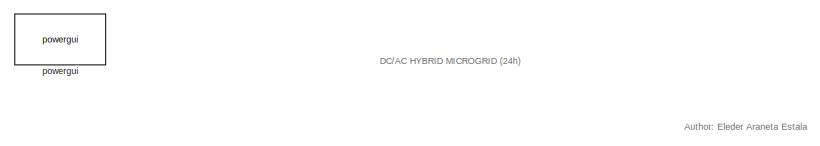
[diagram: root canvas - part 1/2, top left region]
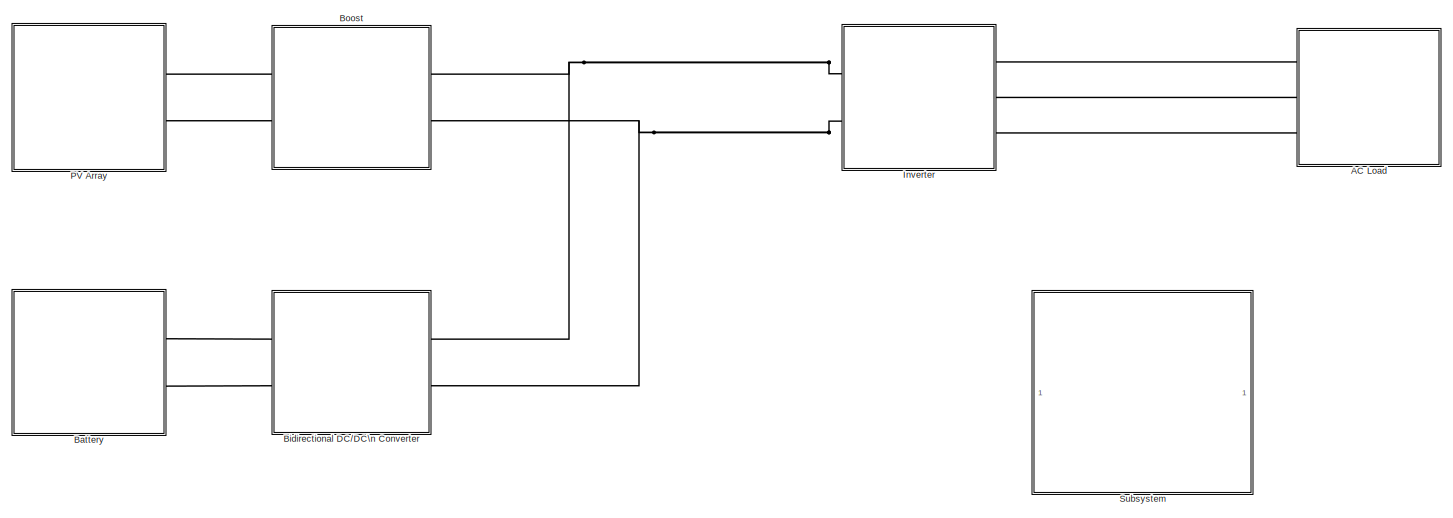
[diagram: root canvas - part 2/2, full width, bottom band]
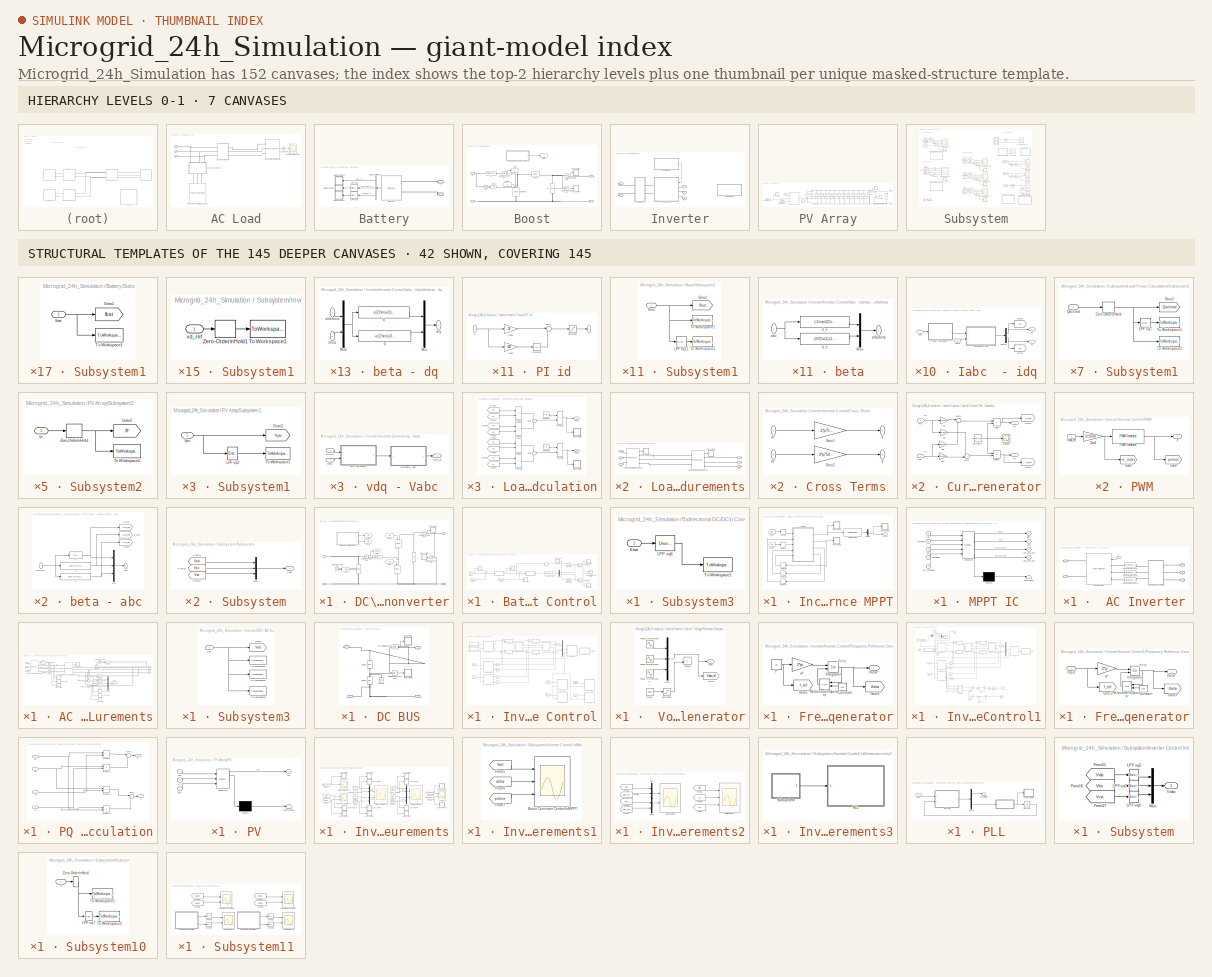
[diagram: thumbnail index - top-2 hierarchy levels (7 canvases) + 42 structural-template representatives of the remaining 145 canvases]
MODEL Microgrid_24h_Simulation
KIND model
BLOCK [SubSystem] AC Load
  Ports = [0, 0, 0, 0, 0, 3]
  RequestExecContextInheritance = off
  SID = 2165
BLOCK [Reference] AC Load/3-Phase\nDynamic Load  REF=powerlib/Elements/Three-Phase\nDynamic Load
  ActiveReactivePowers = [25000 -500]
  ExternalControl = off
  LoadFlowParameters = [4 50000000 0 0 25000000]
  MinimumVoltage = 0.7
  NominalVoltage = [ 400 50 ]
  NpNq = [1  1]
  Ports = [0, 1, 0, 0, 0, 3]
  PositiveSequence = [1 0]
  SID = 2166
  SourceBlock = powerlib/Elements/Three-Phase\nDynamic Load
  SourceProductBaseCode = PS
  SourceProductName = Simscape Electrical
  SourceType = Three-Phase Dynamic Load
  Tfilter = 1e-4
  TimeConstants = [0  0  0  0]
BLOCK [PMIOPort] AC Load/A
  SID = 2207
  Side = Left
BLOCK [PMIOPort] AC Load/B
  Port = 2
  SID = 2208
  Side = Left
BLOCK [BusSelector] AC Load/Bus\nSelector1
  OutputAsBus = on
  OutputSignals = Active power P (W),Reactive power Q (var)
  Ports = [1, 1]
  SID = 2167
BLOCK [PMIOPort] AC Load/C
  Port = 3
  SID = 2209
  Side = Left
BLOCK [SubSystem] AC Load/Load Measurements
  Ports = [0, 0, 0, 0, 0, 3, 3]
  RequestExecContextInheritance = off
  SID = 2168
BLOCK [PMIOPort] AC Load/Load Measurements/A
  SID = 2173
  Side = Left
BLOCK [PMIOPort] AC Load/Load Measurements/A 
  Port = 2
  SID = 2174
  Side = Right
BLOCK [PMIOPort] AC Load/Load Measurements/B
  Port = 3
  SID = 2175
  Side = Left
BLOCK [PMIOPort] AC Load/Load Measurements/B 
  Port = 4
  SID = 2176
  Side = Right
BLOCK [PMIOPort] AC Load/Load Measurements/C
  Port = 5
  SID = 2177
  Side = Left
BLOCK [PMIOPort] AC Load/Load Measurements/C 
  Port = 6
  SID = 2178
  Side = Right
BLOCK [SubSystem] AC Load/Load Measurements/Subsystem1
  Ports = [1]
  RequestExecContextInheritance = off
  SID = 2364
BLOCK [Goto] AC Load/Load Measurements/Subsystem1/Goto2
  GotoTag = Vabc2
  SID = 2366
  TagVisibility = global
BLOCK [ToWorkspace] AC Load/Load Measurements/Subsystem1/To Workspace1
  MaxDataPoints = inf
  Ports = [1]
  SID = 2367
  SampleTime = -1
  VariableName = Vabc2
BLOCK [Inport] AC Load/Load Measurements/Subsystem1/Vabc
  IconDisplay = Port number
  SID = 2365
BLOCK [SubSystem] AC Load/Load Measurements/Subsystem2
  Ports = [1]
  RequestExecContextInheritance = off
  SID = 2368
BLOCK [Goto] AC Load/Load Measurements/Subsystem2/Goto2
  GotoTag = Iabc2
  SID = 2370
  TagVisibility = global
BLOCK [Inport] AC Load/Load Measurements/Subsystem2/Iabc
  IconDisplay = Port number
  SID = 2369
BLOCK [ToWorkspace] AC Load/Load Measurements/Subsystem2/To Workspace1
  MaxDataPoints = inf
  Ports = [1]
  SID = 2371
  SampleTime = -1
  VariableName = Iabc2
BLOCK [Reference] AC Load/Load Measurements/Three-Phase \nI Measurement  REF=powerlib/Measurements/Three-Phase\nV-I Measurement
  CurrentMeasurement = yes
  Ipu = off
  LabelI = Iabc
  LabelV = Vabc
  OutputType = Complex
  PSBequivalent = 0
  Pbase = 100e6
  PhasorSimulation = off
  Ports = [0, 1, 0, 0, 0, 3, 3]
  SID = 2172
  SetLabelI = off
  SetLabelV = off
  SourceBlock = powerlib/Measurements/Three-Phase\nV-I Measurement
  SourceProductBaseCode = PS
  SourceProductName = Simscape Electrical
  SourceType = Three-Phase VI Measurement
  Vbase = 500e3
  VoltageMeasurement = no
  Vpu = off
  VpuLL = off
BLOCK [Reference] AC Load/Load Measurements/Three-Phase\nV Measurement  REF=powerlib/Measurements/Three-Phase\nV-I Measurement
  CurrentMeasurement = no
  Ipu = off
  LabelI = Iabc
  LabelV = Vabc
  OutputType = Complex
  PSBequivalent = 0
  Pbase = 100e6
  PhasorSimulation = off
  Ports = [0, 1, 0, 0, 0, 3, 3]
  SID = 2171
  SetLabelI = off
  SetLabelV = off
  SourceBlock = powerlib/Measurements/Three-Phase\nV-I Measurement
  SourceProductBaseCode = PS
  SourceProductName = Simscape Electrical
  SourceType = Three-Phase VI Measurement
  Vbase = 500e3
  VoltageMeasurement = phase-to-ground
  Vpu = off
  VpuLL = off
BLOCK [SubSystem] AC Load/Load Measurements1
  Ports = [0, 0, 0, 0, 0, 3, 3]
  RequestExecContextInheritance = off
  SID = 2179
BLOCK [PMIOPort] AC Load/Load Measurements1/A 
  Port = 2
  SID = 2185
  Side = Right
BLOCK [PMIOPort] AC Load/Load Measurements1/B
  Port = 3
  SID = 2186
  Side = Left
BLOCK [PMIOPort] AC Load/Load Measurements1/B 
  Port = 4
  SID = 2187
  Side = Right
BLOCK [PMIOPort] AC Load/Load Measurements1/C
  Port = 5
  SID = 2188
  Side = Left
BLOCK [PMIOPort] AC Load/Load Measurements1/C 
  Port = 6
  SID = 2189
  Side = Right
BLOCK [SubSystem] AC Load/Load Measurements1/Subsystem1
  Ports = [1]
  RequestExecContextInheritance = off
  SID = 2356
BLOCK [Goto] AC Load/Load Measurements1/Subsystem1/Goto2
  GotoTag = Vabc3
  SID = 2358
  TagVisibility = global
BLOCK [ToWorkspace] AC Load/Load Measurements1/Subsystem1/To Workspace1
  MaxDataPoints = inf
  Ports = [1]
  SID = 2359
  SampleTime = -1
  VariableName = Vabc3
BLOCK [Inport] AC Load/Load Measurements1/Subsystem1/Vabc
  IconDisplay = Port number
  SID = 2357
BLOCK [SubSystem] AC Load/Load Measurements1/Subsystem2
  Ports = [1]
  RequestExecContextInheritance = off
  SID = 2360
BLOCK [Goto] AC Load/Load Measurements1/Subsystem2/Goto2
  GotoTag = Iabc3
  SID = 2362
  TagVisibility = global
BLOCK [Inport] AC Load/Load Measurements1/Subsystem2/Iabc3
  IconDisplay = Port number
  SID = 2361
BLOCK [ToWorkspace] AC Load/Load Measurements1/Subsystem2/To Workspace1
  MaxDataPoints = inf
  Ports = [1]
  SID = 2363
  SampleTime = -1
  VariableName = Iabc3
BLOCK [Reference] AC Load/Load Measurements1/Three-Phase \nI Measurement  REF=powerlib/Measurements/Three-Phase\nV-I Measurement
  CurrentMeasurement = yes
  Ipu = off
  LabelI = Iabc
  LabelV = Vabc
  OutputType = Complex
  PSBequivalent = 0
  Pbase = 100e6
  PhasorSimulation = off
  Ports = [0, 1, 0, 0, 0, 3, 3]
  SID = 2183
  SetLabelI = off
  SetLabelV = off
  SourceBlock = powerlib/Measurements/Three-Phase\nV-I Measurement
  SourceProductBaseCode = PS
  SourceProductName = Simscape Electrical
  SourceType = Three-Phase VI Measurement
  Vbase = 500e3
  VoltageMeasurement = no
  Vpu = off
  VpuLL = off
BLOCK [Reference] AC Load/Load Measurements1/Three-Phase\nV Measurement  REF=powerlib/Measurements/Three-Phase\nV-I Measurement
  CurrentMeasurement = no
  Ipu = off
  LabelI = Iabc
  LabelV = Vabc
  OutputType = Complex
  PSBequivalent = 0
  Pbase = 100e6
  PhasorSimulation = off
  Ports = [0, 1, 0, 0, 0, 3, 3]
  SID = 2182
  SetLabelI = off
  SetLabelV = off
  SourceBlock = powerlib/Measurements/Three-Phase\nV-I Measurement
  SourceProductBaseCode = PS
  SourceProductName = Simscape Electrical
  SourceType = Three-Phase VI Measurement
  Vbase = 500e3
  VoltageMeasurement = phase-to-ground
  Vpu = off
  VpuLL = off
BLOCK [PMIOPort] AC Load/Load Measurements1/a
  SID = 2184
  Side = Left
BLOCK [Scope] AC Load/Load Measurements2
  Floating = off
  NumInputPorts = 1
  Ports = [1]
  SID = 2190
  ScopeSpecificationString = C++SS(StrPVP('Location','[534, 98, 1318, 894]'),StrPVP('Open','off'),StrPVP('ZoomMode','xonly'),MxPVP('AxesTitles',53,'struct(''axes1'',''Phase to Ground Load Voltages, Vabc (V)'')'),MxPVP('ScopeGraphics',56,'struct(''FigureColor'',''[0.5 0.5 0.5]'',''AxesColor'',''[0 0 0]'',''AxesTickColor'',''[1 1 1]'',''LineColors'',''[1 1 0;1 0 1;0 1 1;1 0 0;0 1 0;0 0 1]'',''LineStyles'',''-|-|-|-|-|-'',''Line...<+389ch>
BLOCK [Reference] AC Load/Three-Phase\nParallel RLC Load1  REF=powerlib/Elements/Three-Phase\nParallel RLC Load
  ActivePower = 700e3
  AttributesFormatString = \\n
  CapacitivePower = 0
  Configuration = Y (grounded)
  InductivePower = 0
  LConnTagsString = A|B|C
  LoadType = constant Z
  Measurements = Branch voltages and currents
  NominalFrequency = 50
  NominalVoltage = 400
  Pabc = [10e3 9e3 11e3]
  Pabcp = [10e3 9e3 11e3]
  Ports = [0, 0, 0, 0, 0, 3]
  QCabc = [100 90 110]
  QCabcp = [100 90 110]
  QLabc = [100 90 110]
  QLabcp = [100 90 110]
  SID = 2206
  SourceBlock = powerlib/Elements/Three-Phase\nParallel RLC Load
  SourceProductBaseCode = PS
  SourceProductName = Simscape Electrical
  SourceType = Three-Phase Parallel RLC Load
  UnbalancedPower = off
  Vabc = [1e3 1e3 1e3]
  Vabcp = [1e3 1e3 1e3]
BLOCK [SubSystem] Battery
  Ports = [0, 0, 0, 0, 0, 2]
  RequestExecContextInheritance = off
  SID = 421
BLOCK [PMIOPort] Battery/+
  SID = 427
  Side = Left
BLOCK [PMIOPort] Battery/-
  Port = 2
  SID = 428
  Side = Left
BLOCK [Reference] Battery/Battery  REF=electricdrivelib/Extra Sources/Battery
  BatType = Lead-Acid
  Batt_Tr = 1
  Char_age = [2.3478, 3]
  Dis_age = [2.3478, 10]
  Dis_rate = 100
  Dp = 0
  FullV = 272.2039
  FullV2 = 7.1
  MaxQ = 520.8333
  MaxQ2 = 4.8
  MinV = 187.5
  N1 = 1500
  N2 = 10500
  N3 = 1000
  N4 = 1400
  N5 = 950
  Neq0 = 0
  NomQ = 500
  NomT = 20
  NomV = 250
  Normal_OP = 155.1389
  Normal_OP2 = 5.655
  Ports = [0, 1, 0, 0, 0, 2]
  PresetModel = on
  Qeol = 5.4*0.9
  R = 0.005
  Rca = 0.6
  Reol = 0.013333*1.2
  SID = 422
  SOC = 30
  ShowAgeParam = off
  ShowTempParam = off
  SourceBlock = electricdrivelib/Extra Sources/Battery
  SourceProductBaseCode = PS
  SourceProductName = Simscape Electrical
  SourceType = Battery
  T2 = -30
  Ta1 = 25
  Ta2 = 45
  Tci = 20
  ThermalPreset = no
  Tsim = 1e6
  Units = Time
  current = [20 50 100]
  expZone = [254.523      1.666667]
  expZone2 = [6.58           1]
  ti = 2000
BLOCK [BusSelector] Battery/Bus\nSelector
  OutputAsBus = off
  OutputSignals = SOC (%),Current (A),Voltage (V)
  Ports = [1, 3]
  SID = 423
BLOCK [Reference] Battery/LPF vq1  REF=powerlib_extras/Discrete \nControl Blocks/Discrete\n1st-Order\nFilter
  FilterType = Lowpass
  Initialize = off
  PlotResponse = off
  Ports = [1, 1]
  SID = 832
  SourceBlock = powerlib_extras/Discrete \nControl Blocks/Discrete\n1st-Order\nFilter
  SourceProductBaseCode = PS
  SourceProductName = Simscape Electrical
  SourceType = Discrete 1st-Order Filter
  Tc = 10e-3
  Ts = 5e-6
  Vac_Init = [0.8 -25 60]
  Vdc_Init = 0
  param1 = [1 100 0.1]
BLOCK [Reference] Battery/LPF vq2  REF=powerlib_extras/Discrete \nControl Blocks/Discrete\n1st-Order\nFilter
  FilterType = Lowpass
  Initialize = off
  PlotResponse = off
  Ports = [1, 1]
  SID = 1541
  SourceBlock = powerlib_extras/Discrete \nControl Blocks/Discrete\n1st-Order\nFilter
  SourceProductBaseCode = PS
  SourceProductName = Simscape Electrical
  SourceType = Discrete 1st-Order Filter
  Tc = 10e-3
  Ts = 5e-6
  Vac_Init = [0.8 -25 60]
  Vdc_Init = 0
  param1 = [1 100 0.1]
BLOCK [SubSystem] Battery/Subsystem1
  Ports = [1]
  RequestExecContextInheritance = off
  SID = 714
BLOCK [Goto] Battery/Subsystem1/Goto1
  GotoTag = Ibat
  SID = 1151
  TagVisibility = global
BLOCK [Inport] Battery/Subsystem1/Ibat
  IconDisplay = Port number
  SID = 715
BLOCK [ToWorkspace] Battery/Subsystem1/To Workspace1
  MaxDataPoints = inf
  Ports = [1]
  SID = 717
  SampleTime = -1
  VariableName = Ibat
BLOCK [SubSystem] Battery/Subsystem2
  Ports = [1]
  RequestExecContextInheritance = off
  SID = 718
BLOCK [Goto] Battery/Subsystem2/Goto3
  GotoTag = Vbat
  SID = 1153
  TagVisibility = global
BLOCK [ToWorkspace] Battery/Subsystem2/To Workspace1
  MaxDataPoints = inf
  Ports = [1]
  SID = 721
  SampleTime = -1
  VariableName = Vbat
BLOCK [Inport] Battery/Subsystem2/Vbat
  IconDisplay = Port number
  SID = 719
BLOCK [SubSystem] Battery/Subsystem5
  Ports = [1]
  RequestExecContextInheritance = off
  SID = 710
BLOCK [Goto] Battery/Subsystem5/Goto2
  GotoTag = SOC
  SID = 1152
  TagVisibility = global
BLOCK [Inport] Battery/Subsystem5/SOC
  IconDisplay = Port number
  SID = 711
BLOCK [ToWorkspace] Battery/Subsystem5/To Workspace1
  MaxDataPoints = inf
  Ports = [1]
  SID = 713
  SampleTime = -1
  VariableName = SOC
BLOCK [SubSystem] Bidirectional DC//DC\n Converter
  Ports = [0, 0, 0, 0, 0, 2, 2]
  RequestExecContextInheritance = off
  SID = 429
BLOCK [PMIOPort] Bidirectional DC//DC\n Converter/+
  Port = 3
  SID = 451
  Side = Right
BLOCK [PMIOPort] Bidirectional DC//DC\n Converter/+ 
  SID = 449
  Side = Left
BLOCK [PMIOPort] Bidirectional DC//DC\n Converter/-
  Port = 4
  SID = 452
  Side = Right
BLOCK [PMIOPort] Bidirectional DC//DC\n Converter/-  
  Port = 2
  SID = 450
  Side = Left
BLOCK [SubSystem] Bidirectional DC//DC\n Converter/Battery Converter\n Control
  Ports = [0, 2]
  RequestExecContextInheritance = off
  SID = 629
BLOCK [Reference] Bidirectional DC//DC\n Converter/Battery Converter\n Control/Compare\nTo Constant  REF=simulink/Logic and Bit\nOperations/Compare\nTo Constant
  OutDataTypeStr = uint8
  Ports = [1, 1]
  SID = 630
  SourceBlock = simulink/Logic and Bit\nOperations/Compare\nTo Constant
  SourceProductBaseCode = SL
  SourceProductName = Simulink
  SourceType = Compare To Constant
  ZeroCross = on
  const = 1
  relop = ==
BLOCK [Reference] Bidirectional DC//DC\n Converter/Battery Converter\n Control/Compare\nTo Constant1  REF=simulink/Logic and Bit\nOperations/Compare\nTo Constant
  OutDataTypeStr = uint8
  Ports = [1, 1]
  SID = 631
  SourceBlock = simulink/Logic and Bit\nOperations/Compare\nTo Constant
  SourceProductBaseCode = SL
  SourceProductName = Simulink
  SourceType = Compare To Constant
  ZeroCross = on
  const = -1
  relop = ==
BLOCK [Scope] Bidirectional DC//DC\n Converter/Battery Converter\n Control/DC Bus Measurements4
  Floating = off
  NumInputPorts = 2
  Ports = [2]
  SID = 636
  ScopeSpecificationString = C++SS(StrPVP('Location','[6, 48, 1372, 727]'),StrPVP('Open','off'),StrPVP('ZoomMode','xonly'),MxPVP('AxesTitles',53,'struct(''axes1'',''Phase to Ground Load Voltages, Vabc (V)'',''axes2'',''Load Currents, Iabc (A)'')'),MxPVP('ScopeGraphics',56,'struct(''FigureColor'',''[0.5 0.5 0.5]'',''AxesColor'',''[0 0 0]'',''AxesTickColor'',''[1 1 1]'',''LineColors'',''[1 1 0;1 0 1;0 1 1;1 0 0;0 1 0;0 0 1]'','...<+436ch>
BLOCK [Demux] Bidirectional DC//DC\n Converter/Battery Converter\n Control/Demux
  DisplayOption = bar
  Outputs = 2
  Ports = [1, 2]
  SID = 639
BLOCK [From] Bidirectional DC//DC\n Converter/Battery Converter\n Control/From1
  GotoTag = Vdc
  SID = 640
  TagVisibility = global
BLOCK [From] Bidirectional DC//DC\n Converter/Battery Converter\n Control/From2
  GotoTag = ILbat
  SID = 641
  TagVisibility = global
BLOCK [SubSystem] Bidirectional DC//DC\n Converter/Battery Converter\n Control/PI 1
  Ports = [1, 1]
  RequestExecContextInheritance = off
  SID = 644
BLOCK [Outport] Bidirectional DC//DC\n Converter/Battery Converter\n Control/PI 1/ 
  IconDisplay = Port number
  SID = 652
BLOCK [Gain] Bidirectional DC//DC\n Converter/Battery Converter\n Control/PI 1/Gain1
  Gain = 0.65
  OutDataTypeStr = Inherit: Inherit via internal rule
  ParamDataTypeStr = Inherit: Inherit via internal rule
  SID = 646
  SaturateOnIntegerOverflow = off
BLOCK [Gain] Bidirectional DC//DC\n Converter/Battery Converter\n Control/PI 1/Gain2
  Gain = 150
  OutDataTypeStr = Inherit: Inherit via internal rule
  ParamDataTypeStr = Inherit: Inherit via internal rule
  SID = 647
  SaturateOnIntegerOverflow = off
BLOCK [Integrator] Bidirectional DC//DC\n Converter/Battery Converter\n Control/PI 1/Integrator
  Ports = [1, 1]
  SID = 649
BLOCK [Saturate] Bidirectional DC//DC\n Converter/Battery Converter\n Control/PI 1/Saturation
  InputPortMap = u0
  LowerLimit = -100
  Ports = [1, 1]
  SID = 650
  UpperLimit = 500
BLOCK [Sum] Bidirectional DC//DC\n Converter/Battery Converter\n Control/PI 1/Sum1
  IconShape = round
  InputSameDT = off
  Inputs = |++
  OutDataTypeStr = Inherit: Inherit via internal rule
  Ports = [2, 1]
  SID = 651
  SaturateOnIntegerOverflow = off
BLOCK [Inport] Bidirectional DC//DC\n Converter/Battery Converter\n Control/PI 1/e
  IconDisplay = Port number
  SID = 645
BLOCK [SubSystem] Bidirectional DC//DC\n Converter/Battery Converter\n Control/PI 2
  Ports = [1, 1]
  RequestExecContextInheritance = off
  SID = 653
BLOCK [Outport] Bidirectional DC//DC\n Converter/Battery Converter\n Control/PI 2/ 
  IconDisplay = Port number
  SID = 660
BLOCK [Gain] Bidirectional DC//DC\n Converter/Battery Converter\n Control/PI 2/Gain1
  OutDataTypeStr = Inherit: Inherit via internal rule
  ParamDataTypeStr = Inherit: Inherit via internal rule
  SID = 655
  SaturateOnIntegerOverflow = off
BLOCK [Gain] Bidirectional DC//DC\n Converter/Battery Converter\n Control/PI 2/Gain2
  OutDataTypeStr = Inherit: Inherit via internal rule
  ParamDataTypeStr = Inherit: Inherit via internal rule
  SID = 656
  SaturateOnIntegerOverflow = off
BLOCK [Integrator] Bidirectional DC//DC\n Converter/Battery Converter\n Control/PI 2/Integrator
  Ports = [1, 1]
  SID = 657
BLOCK [Saturate] Bidirectional DC//DC\n Converter/Battery Converter\n Control/PI 2/Saturation
  InputPortMap = u0
  LowerLimit = -1
  Ports = [1, 1]
  SID = 658
  UpperLimit = 1
BLOCK [Sum] Bidirectional DC//DC\n Converter/Battery Converter\n Control/PI 2/Sum1
  IconShape = round
  InputSameDT = off
  Inputs = |++
  OutDataTypeStr = Inherit: Inherit via internal rule
  Ports = [2, 1]
  SID = 659
  SaturateOnIntegerOverflow = off
BLOCK [Inport] Bidirectional DC//DC\n Converter/Battery Converter\n Control/PI 2/e
  IconDisplay = Port number
  SID = 654
BLOCK [Reference] Bidirectional DC//DC\n Converter/Battery Converter\n Control/PWM Generator2  REF=powerlib_extras/Control \nBlocks/PWM Generator
  Fc = 10000
  Freq = 0
  GeneratorMode = 1-arm  bridge (2 pulses)
  Internal = off
  Phase = 0
  Ports = [1, 1]
  SID = 661
  SourceBlock = powerlib_extras/Control \nBlocks/PWM Generator
  SourceProductBaseCode = PS
  SourceProductName = Simscape Electrical
  SourceType = PWM Generator
  mIndex = 0.2
BLOCK [Product] Bidirectional DC//DC\n Converter/Battery Converter\n Control/Product
  InputSameDT = off
  OutDataTypeStr = Inherit: Inherit via internal rule
  Ports = [2, 1]
  SID = 662
  SaturateOnIntegerOverflow = off
BLOCK [Product] Bidirectional DC//DC\n Converter/Battery Converter\n Control/Product1
  InputSameDT = off
  OutDataTypeStr = Inherit: Inherit via internal rule
  Ports = [2, 1]
  SID = 663
  SaturateOnIntegerOverflow = off
BLOCK [Outport] Bidirectional DC//DC\n Converter/Battery Converter\n Control/S1
  IconDisplay = Port number
  SID = 670
BLOCK [Outport] Bidirectional DC//DC\n Converter/Battery Converter\n Control/S2
  IconDisplay = Port number
  Port = 2
  SID = 671
BLOCK [Signum] Bidirectional DC//DC\n Converter/Battery Converter\n Control/Sign
  SID = 664
  SampleTime = 5e-6
BLOCK [Step] Bidirectional DC//DC\n Converter/Battery Converter\n Control/Step1
  After = 1000
  SID = 665
  SampleTime = 0
  Time = 0
BLOCK [SubSystem] Bidirectional DC//DC\n Converter/Battery Converter\n Control/Subsystem1
  Ports = [1]
  RequestExecContextInheritance = off
  SID = 784
BLOCK [Goto] Bidirectional DC//DC\n Converter/Battery Converter\n Control/Subsystem1/Goto2
  GotoTag = Vdc_ref
  SID = 786
  TagVisibility = global
BLOCK [Reference] Bidirectional DC//DC\n Converter/Battery Converter\n Control/Subsystem1/LPF vq6  REF=powerlib_extras/Discrete \nControl Blocks/Discrete\n1st-Order\nFilter
  FilterType = Lowpass
  Initialize = off
  PlotResponse = off
  Ports = [1, 1]
  SID = 787
  SourceBlock = powerlib_extras/Discrete \nControl Blocks/Discrete\n1st-Order\nFilter
  SourceProductBaseCode = PS
  SourceProductName = Simscape Electrical
  SourceType = Discrete 1st-Order Filter
  Tc = 10e-3
  Ts = 5e-6
  Vac_Init = [0.8 -25 60]
  Vdc_Init = 0
  param1 = [1 100 0.1]
BLOCK [ToWorkspace] Bidirectional DC//DC\n Converter/Battery Converter\n Control/Subsystem1/To Workspace1
  MaxDataPoints = inf
  Ports = [1]
  SID = 788
  SampleTime = -1
  VariableName = Vdc_ref
BLOCK [Inport] Bidirectional DC//DC\n Converter/Battery Converter\n Control/Subsystem1/Vdc_ref
  IconDisplay = Port number
  SID = 785
BLOCK [SubSystem] Bidirectional DC//DC\n Converter/Battery Converter\n Control/Subsystem2
  Ports = [1]
  RequestExecContextInheritance = off
  SID = 789
BLOCK [Goto] Bidirectional DC//DC\n Converter/Battery Converter\n Control/Subsystem2/Goto2
  GotoTag = Ibat_ref
  SID = 791
  TagVisibility = global
BLOCK [Inport] Bidirectional DC//DC\n Converter/Battery Converter\n Control/Subsystem2/Ibat_ref
  IconDisplay = Port number
  SID = 790
BLOCK [Reference] Bidirectional DC//DC\n Converter/Battery Converter\n Control/Subsystem2/LPF vq6  REF=powerlib_extras/Discrete \nControl Blocks/Discrete\n1st-Order\nFilter
  FilterType = Lowpass
  Initialize = off
  PlotResponse = off
  Ports = [1, 1]
  SID = 792
  SourceBlock = powerlib_extras/Discrete \nControl Blocks/Discrete\n1st-Order\nFilter
  SourceProductBaseCode = PS
  SourceProductName = Simscape Electrical
  SourceType = Discrete 1st-Order Filter
  Tc = 10e-3
  Ts = 5e-6
  Vac_Init = [0.8 -25 60]
  Vdc_Init = 0
  param1 = [1 100 0.1]
BLOCK [ToWorkspace] Bidirectional DC//DC\n Converter/Battery Converter\n Control/Subsystem2/To Workspace1
  MaxDataPoints = inf
  Ports = [1]
  SID = 793
  SampleTime = -1
  VariableName = Ibat_ref
BLOCK [SubSystem] Bidirectional DC//DC\n Converter/Battery Converter\n Control/Subsystem3
  Ports = [1]
  RequestExecContextInheritance = off
  SID = 794
BLOCK [Inport] Bidirectional DC//DC\n Converter/Battery Converter\n Control/Subsystem3/ILbat
  IconDisplay = Port number
  SID = 795
BLOCK [Reference] Bidirectional DC//DC\n Converter/Battery Converter\n Control/Subsystem3/LPF vq6  REF=powerlib_extras/Discrete \nControl Blocks/Discrete\n1st-Order\nFilter
  FilterType = Lowpass
  Initialize = off
  PlotResponse = off
  Ports = [1, 1]
  SID = 797
  SourceBlock = powerlib_extras/Discrete \nControl Blocks/Discrete\n1st-Order\nFilter
  SourceProductBaseCode = PS
  SourceProductName = Simscape Electrical
  SourceType = Discrete 1st-Order Filter
  Tc = 10e-3
  Ts = 5e-6
  Vac_Init = [0.8 -25 60]
  Vdc_Init = 0
  param1 = [1 100 0.1]
BLOCK [ToWorkspace] Bidirectional DC//DC\n Converter/Battery Converter\n Control/Subsystem3/To Workspace1
  MaxDataPoints = inf
  Ports = [1]
  SID = 798
  SampleTime = -1
  VariableName = ILbat
BLOCK [SubSystem] Bidirectional DC//DC\n Converter/Battery Converter\n Control/Subsystem4
  Ports = [1]
  RequestExecContextInheritance = off
  SID = 1736
BLOCK [Inport] Bidirectional DC//DC\n Converter/Battery Converter\n Control/Subsystem4/S1
  IconDisplay = Port number
  SID = 1737
BLOCK [ToWorkspace] Bidirectional DC//DC\n Converter/Battery Converter\n Control/Subsystem4/To Workspace1
  MaxDataPoints = inf
  Ports = [1]
  SID = 1740
  SampleTime = -1
  VariableName = S1
BLOCK [ZeroOrderHold] Bidirectional DC//DC\n Converter/Battery Converter\n Control/Subsystem4/Zero-Order\nHold
  SID = 1771
  SampleTime = 5e-6
BLOCK [SubSystem] Bidirectional DC//DC\n Converter/Battery Converter\n Control/Subsystem5
  Ports = [1]
  RequestExecContextInheritance = off
  SID = 1741
BLOCK [Inport] Bidirectional DC//DC\n Converter/Battery Converter\n Control/Subsystem5/S2
  IconDisplay = Port number
  SID = 1742
BLOCK [ToWorkspace] Bidirectional DC//DC\n Converter/Battery Converter\n Control/Subsystem5/To Workspace1
  MaxDataPoints = inf
  Ports = [1]
  SID = 1744
  SampleTime = -1
  VariableName = S2
BLOCK [ZeroOrderHold] Bidirectional DC//DC\n Converter/Battery Converter\n Control/Subsystem5/Zero-Order\nHold
  SID = 1770
  SampleTime = 5e-6
BLOCK [SubSystem] Bidirectional DC//DC\n Converter/Battery Converter\n Control/Subsystem6
  Ports = [1]
  RequestExecContextInheritance = off
  SID = 1745
BLOCK [Goto] Bidirectional DC//DC\n Converter/Battery Converter\n Control/Subsystem6/Goto2
  GotoTag = Sign
  SID = 1747
  TagVisibility = global
BLOCK [Inport] Bidirectional DC//DC\n Converter/Battery Converter\n Control/Subsystem6/Sign
  IconDisplay = Port number
  SID = 1746
BLOCK [ToWorkspace] Bidirectional DC//DC\n Converter/Battery Converter\n Control/Subsystem6/To Workspace1
  MaxDataPoints = inf
  Ports = [1]
  SID = 1748
  SampleTime = -1
  VariableName = Sign
BLOCK [ZeroOrderHold] Bidirectional DC//DC\n Converter/Battery Converter\n Control/Subsystem6/Zero-Order\nHold
  SID = 1772
  SampleTime = 5e-6
BLOCK [Sum] Bidirectional DC//DC\n Converter/Battery Converter\n Control/Sum1
  IconShape = round
  InputSameDT = off
  Inputs = |+-
  OutDataTypeStr = Inherit: Inherit via internal rule
  Ports = [2, 1]
  SID = 668
  SaturateOnIntegerOverflow = off
BLOCK [Sum] Bidirectional DC//DC\n Converter/Battery Converter\n Control/Sum3
  IconShape = round
  InputSameDT = off
  Inputs = |+-
  OutDataTypeStr = Inherit: Inherit via internal rule
  Ports = [2, 1]
  SID = 669
  SaturateOnIntegerOverflow = off
BLOCK [Reference] Bidirectional DC//DC\n Converter/C  REF=powerlib/Elements/Series RLC Branch
  BranchType = C
  Capacitance = 1200e-6
  Inductance = 1e-3
  InitialCurrent = 0
  InitialVoltage = 400
  LConnTagsString = __new0
  Measurements = None
  Ports = [0, 0, 0, 0, 0, 1, 1]
  RConnTagsString = __new0
  Resistance = 1
  SID = 432
  SetiL0 = off
  Setx0 = off
  SourceBlock = powerlib/Elements/Series RLC Branch
  SourceProductBaseCode = PS
  SourceProductName = Simscape Electrical
  SourceType = Series RLC Branch
BLOCK [Reference] Bidirectional DC//DC\n Converter/C   REF=powerlib/Elements/Series RLC Branch
  BranchType = C
  Capacitance = 1e-3
  Inductance = 1e-3
  InitialCurrent = 0
  InitialVoltage = 192
  LConnTagsString = __new0
  Measurements = None
  Ports = [0, 0, 0, 0, 0, 1, 1]
  RConnTagsString = __new0
  Resistance = 1
  SID = 433
  SetiL0 = off
  Setx0 = on
  SourceBlock = powerlib/Elements/Series RLC Branch
  SourceProductBaseCode = PS
  SourceProductName = Simscape Electrical
  SourceType = Series RLC Branch
BLOCK [Reference] Bidirectional DC//DC\n Converter/Current Measurement1  REF=powerlib/Measurements/Current Measurement
  OutputType = Complex
  PSBequivalent = 0
  PhasorSimulation = off
  Ports = [0, 1, 0, 0, 0, 1, 1]
  SID = 677
  SourceBlock = powerlib/Measurements/Current Measurement
  SourceProductBaseCode = PS
  SourceProductName = Simscape Electrical
  SourceType = Current Measurement
BLOCK [Reference] Bidirectional DC//DC\n Converter/Current Measurement2  REF=powerlib/Measurements/Current Measurement
  OutputType = Complex
  PSBequivalent = 0
  PhasorSimulation = off
  Ports = [0, 1, 0, 0, 0, 1, 1]
  SID = 435
  SourceBlock = powerlib/Measurements/Current Measurement
  SourceProductBaseCode = PS
  SourceProductName = Simscape Electrical
  SourceType = Current Measurement
BLOCK [From] Bidirectional DC//DC\n Converter/From1
  GotoTag = S2
  SID = 676
  TagVisibility = global
BLOCK [From] Bidirectional DC//DC\n Converter/From19
  GotoTag = S1
  SID = 675
  TagVisibility = global
BLOCK [Goto] Bidirectional DC//DC\n Converter/Goto
  GotoTag = V_bat
  SID = 436
  TagVisibility = global
BLOCK [Goto] Bidirectional DC//DC\n Converter/Goto1
  GotoTag = S1
  SID = 672
  TagVisibility = global
BLOCK [Goto] Bidirectional DC//DC\n Converter/Goto2
  GotoTag = S2
  SID = 673
  TagVisibility = global
BLOCK [Goto] Bidirectional DC//DC\n Converter/Goto3
  GotoTag = ILbat
  SID = 439
  TagVisibility = global
BLOCK [Reference] Bidirectional DC//DC\n Converter/L  REF=powerlib/Elements/Series RLC Branch
  BranchType = L
  Capacitance = 1e-6
  Inductance = 0.1e-3
  InitialCurrent = 0
  InitialVoltage = 0
  LConnTagsString = __new0
  Measurements = None
  Ports = [0, 0, 0, 0, 0, 1, 1]
  RConnTagsString = __new0
  Resistance = 1
  SID = 442
  SetiL0 = on
  Setx0 = off
  SourceBlock = powerlib/Elements/Series RLC Branch
  SourceProductBaseCode = PS
  SourceProductName = Simscape Electrical
  SourceType = Series RLC Branch
BLOCK [Reference] Bidirectional DC//DC\n Converter/S1   REF=powerlib/Power\nElectronics/IGBT//Diode
  Cs = inf
  Measurements = off
  Ports = [1, 0, 0, 0, 0, 1, 1]
  Ron = 1e-3
  Rs = 1e5
  SID = 443
  SourceBlock = powerlib/Power\nElectronics/IGBT//Diode
  SourceProductBaseCode = PS
  SourceProductName = Simscape Electrical
  SourceType = IGBT/Diode
BLOCK [Reference] Bidirectional DC//DC\n Converter/S2   REF=powerlib/Power\nElectronics/IGBT//Diode
  Cs = inf
  Measurements = off
  Ports = [1, 0, 0, 0, 0, 1, 1]
  Ron = 1e-3
  Rs = 1e5
  SID = 444
  SourceBlock = powerlib/Power\nElectronics/IGBT//Diode
  SourceProductBaseCode = PS
  SourceProductName = Simscape Electrical
  SourceType = IGBT/Diode
BLOCK [SubSystem] Bidirectional DC//DC\n Converter/Subsystem1
  Ports = [1]
  RequestExecContextInheritance = off
  SID = 726
BLOCK [Goto] Bidirectional DC//DC\n Converter/Subsystem1/Goto2
  GotoTag = Idc
  SID = 728
  TagVisibility = global
BLOCK [Inport] Bidirectional DC//DC\n Converter/Subsystem1/Idc
  IconDisplay = Port number
  SID = 727
BLOCK [Reference] Bidirectional DC//DC\n Converter/Subsystem1/LPF vq11  REF=powerlib_extras/Discrete \nControl Blocks/Discrete\n1st-Order\nFilter
  FilterType = Lowpass
  Initialize = off
  PlotResponse = off
  Ports = [1, 1]
  SID = 1819
  SourceBlock = powerlib_extras/Discrete \nControl Blocks/Discrete\n1st-Order\nFilter
  SourceProductBaseCode = PS
  SourceProductName = Simscape Electrical
  SourceType = Discrete 1st-Order Filter
  Tc = 10e-3
  Ts = 5e-6
  Vac_Init = [0.8 -25 60]
  Vdc_Init = 0
  param1 = [1 100 0.1]
BLOCK [ToWorkspace] Bidirectional DC//DC\n Converter/Subsystem1/To Workspace1
  MaxDataPoints = inf
  Ports = [1]
  SID = 729
  SampleTime = -1
  VariableName = Idc
BLOCK [ToWorkspace] Bidirectional DC//DC\n Converter/Subsystem1/To Workspace2
  MaxDataPoints = inf
  Ports = [1]
  SID = 1818
  SampleTime = -1
  VariableName = Idc1
BLOCK [SubSystem] Bidirectional DC//DC\n Converter/Subsystem2
  Ports = [1]
  RequestExecContextInheritance = off
  SID = 730
BLOCK [Goto] Bidirectional DC//DC\n Converter/Subsystem2/Goto2
  GotoTag = Vdc
  SID = 732
  TagVisibility = global
BLOCK [Reference] Bidirectional DC//DC\n Converter/Subsystem2/LPF vq11  REF=powerlib_extras/Discrete \nControl Blocks/Discrete\n1st-Order\nFilter
  FilterType = Lowpass
  Initialize = off
  PlotResponse = off
  Ports = [1, 1]
  SID = 1821
  SourceBlock = powerlib_extras/Discrete \nControl Blocks/Discrete\n1st-Order\nFilter
  SourceProductBaseCode = PS
  SourceProductName = Simscape Electrical
  SourceType = Discrete 1st-Order Filter
  Tc = 10e-3
  Ts = 5e-6
  Vac_Init = [0.8 -25 60]
  Vdc_Init = 0
  param1 = [1 100 0.1]
BLOCK [ToWorkspace] Bidirectional DC//DC\n Converter/Subsystem2/To Workspace1
  MaxDataPoints = inf
  Ports = [1]
  SID = 733
  SampleTime = -1
  VariableName = Vdc
BLOCK [ToWorkspace] Bidirectional DC//DC\n Converter/Subsystem2/To Workspace2
  MaxDataPoints = inf
  Ports = [1]
  SID = 1820
  SampleTime = -1
  VariableName = Vdc1
BLOCK [Inport] Bidirectional DC//DC\n Converter/Subsystem2/Vdc
  IconDisplay = Port number
  SID = 731
BLOCK [Reference] Bidirectional DC//DC\n Converter/Voltage Measurement1  REF=powerlib/Measurements/Voltage Measurement
  OutputType = Complex
  PSBequivalent = 0
  PhasorSimulation = off
  Ports = [0, 1, 0, 0, 0, 2]
  SID = 445
  SourceBlock = powerlib/Measurements/Voltage Measurement
  SourceProductBaseCode = PS
  SourceProductName = Simscape Electrical
  SourceType = Voltage Measurement
BLOCK [Reference] Bidirectional DC//DC\n Converter/Voltage Measurement2  REF=powerlib/Measurements/Voltage Measurement
  OutputType = Complex
  PSBequivalent = 0
  PhasorSimulation = off
  Ports = [0, 1, 0, 0, 0, 2]
  SID = 680
  SourceBlock = powerlib/Measurements/Voltage Measurement
  SourceProductBaseCode = PS
  SourceProductName = Simscape Electrical
  SourceType = Voltage Measurement
BLOCK [SubSystem] Boost
  Ports = [0, 0, 0, 0, 0, 2, 2]
  RequestExecContextInheritance = off
  SID = 519
BLOCK [PMIOPort] Boost/+
  SID = 533
  Side = Left
BLOCK [PMIOPort] Boost/+ 
  Port = 3
  SID = 535
  Side = Right
BLOCK [PMIOPort] Boost/-
  Port = 2
  SID = 534
  Side = Left
BLOCK [PMIOPort] Boost/- 
  Port = 4
  SID = 536
  Side = Right
BLOCK [Reference] Boost/Cdc  REF=powerlib/Elements/Series RLC Branch
  BranchType = C
  Capacitance = 1200e-6
  Inductance = 1e-3
  InitialCurrent = 0
  InitialVoltage = 400
  LConnTagsString = __new0
  Measurements = None
  Ports = [0, 0, 0, 0, 0, 1, 1]
  RConnTagsString = __new0
  Resistance = 1
  SID = 520
  SetiL0 = off
  Setx0 = off
  SourceBlock = powerlib/Elements/Series RLC Branch
  SourceProductBaseCode = PS
  SourceProductName = Simscape Electrical
  SourceType = Series RLC Branch
BLOCK [Reference] Boost/Current Measurement  REF=powerlib/Measurements/Current Measurement
  OutputType = Complex
  PSBequivalent = 0
  PhasorSimulation = off
  Ports = [0, 1, 0, 0, 0, 1, 1]
  SID = 521
  SourceBlock = powerlib/Measurements/Current Measurement
  SourceProductBaseCode = PS
  SourceProductName = Simscape Electrical
  SourceType = Current Measurement
BLOCK [Reference] Boost/Current Measurement1  REF=powerlib/Measurements/Current Measurement
  OutputType = Complex
  PSBequivalent = 0
  PhasorSimulation = off
  Ports = [0, 1, 0, 0, 0, 1, 1]
  SID = 522
  SourceBlock = powerlib/Measurements/Current Measurement
  SourceProductBaseCode = PS
  SourceProductName = Simscape Electrical
  SourceType = Current Measurement
BLOCK [Reference] Boost/Diode  REF=powerlib/Power\nElectronics/Diode
  Cs = 250e-9
  IC = 0
  Lon = 0
  Measurements = on
  Ports = [0, 1, 0, 0, 0, 1, 1]
  Ron = 0.001
  Rs = 500
  SID = 523
  SourceBlock = powerlib/Power\nElectronics/Diode
  SourceProductBaseCode = PS
  SourceProductName = Simscape Electrical
  SourceType = Diode
  UseSnubber = off
  Vf = 0.8
BLOCK [From] Boost/From17
  GotoTag = S
  SID = 524
  TagVisibility = global
BLOCK [Goto] Boost/Goto1
  GotoTag = IL
  SID = 525
  TagVisibility = global
BLOCK [Goto] Boost/Goto6
  GotoTag = Vin
  SID = 528
  TagVisibility = global
BLOCK [Goto] Boost/Goto7
  GotoTag = S
  SID = 608
  TagVisibility = global
BLOCK [Reference] Boost/IGBT//Diode  REF=powerlib/Power\nElectronics/IGBT//Diode
  Cs = inf
  Measurements = off
  Ports = [1, 0, 0, 0, 0, 1, 1]
  Ron = 1e-3
  Rs = 1e5
  SID = 529
  SourceBlock = powerlib/Power\nElectronics/IGBT//Diode
  SourceProductBaseCode = PS
  SourceProductName = Simscape Electrical
  SourceType = IGBT/Diode
BLOCK [SubSystem] Boost/Incremental Conductance MPPT
  Ports = [0, 1]
  RequestExecContextInheritance = off
  SID = 609
BLOCK [Demux] Boost/Incremental Conductance MPPT/Demux
  DisplayOption = bar
  Outputs = 2
  Ports = [1, 2]
  SID = 611
BLOCK [From] Boost/Incremental Conductance MPPT/From3
  GotoTag = Vpv
  SID = 612
  TagVisibility = global
BLOCK [From] Boost/Incremental Conductance MPPT/From4
  GotoTag = Ipv
  SID = 613
  TagVisibility = global
BLOCK [SubSystem] Boost/Incremental Conductance MPPT/MPPT IC
  ErrorFcn = Stateflow.Translate.translate
  PermitHierarchicalResolution = ExplicitOnly
  Ports = [5, 4]
  RequestExecContextInheritance = off
  SFBlockType = MATLAB Function
  SID = 618
  TreatAsAtomicUnit = on
BLOCK [Demux] Boost/Incremental Conductance MPPT/MPPT IC/ Demux 
  Outputs = 1
  Ports = [1, 1]
  SID = 618::38
BLOCK [S-Function] Boost/Incremental Conductance MPPT/MPPT IC/ SFunction 
  EnableBusSupport = off
  FunctionName = sf_sfun
  PortCounts = [5 5]
  Ports = [5, 5]
  SFcnIsStateOwnerBlock = off
  SFunctionDeploymentMode = off
  SID = 618::37
  Tag = Stateflow S-Function Microgrid_24h_Simulation 3
BLOCK [Terminator] Boost/Incremental Conductance MPPT/MPPT IC/ Terminator 
  SID = 618::39
BLOCK [Inport] Boost/Incremental Conductance MPPT/MPPT IC/Iprevious
  IconDisplay = Port number
  Port = 2
  SID = 618::24
BLOCK [Inport] Boost/Incremental Conductance MPPT/MPPT IC/Ipv
  IconDisplay = Port number
  SID = 618::1
BLOCK [Outport] Boost/Incremental Conductance MPPT/MPPT IC/Ipv_prev_out
  IconDisplay = Port number
  Port = 3
  SID = 618::27
BLOCK [Inport] Boost/Incremental Conductance MPPT/MPPT IC/Vprevious
  IconDisplay = Port number
  Port = 4
  SID = 618::25
BLOCK [Inport] Boost/Incremental Conductance MPPT/MPPT IC/Vpv
  IconDisplay = Port number
  Port = 3
  SID = 618::23
BLOCK [Outport] Boost/Incremental Conductance MPPT/MPPT IC/Vpv_prev_out
  IconDisplay = Port number
  Port = 4
  SID = 618::28
BLOCK [Outport] Boost/Incremental Conductance MPPT/MPPT IC/Vref
  IconDisplay = Port number
  Port = 2
  SID = 618::5
BLOCK [Inport] Boost/Incremental Conductance MPPT/MPPT IC/Vref_previous
  IconDisplay = Port number
  Port = 5
  SID = 618::26
BLOCK [Outport] Boost/Incremental Conductance MPPT/MPPT IC/delta
  IconDisplay = Port number
  SID = 618::29
BLOCK [Memory] Boost/Incremental Conductance MPPT/Memory
  SID = 619
BLOCK [Memory] Boost/Incremental Conductance MPPT/Memory1
  SID = 620
BLOCK [Memory] Boost/Incremental Conductance MPPT/Memory2
  SID = 621
BLOCK [Memory] Boost/Incremental Conductance MPPT/Memory4
  SID = 622
BLOCK [Memory] Boost/Incremental Conductance MPPT/Memory5
  SID = 623
BLOCK [Reference] Boost/Incremental Conductance MPPT/PWM Generator  REF=powerlib_extras/Control \nBlocks/PWM Generator
  Fc = 10e3
  Freq = 60
  GeneratorMode = 1-arm  bridge (2 pulses)
  Internal = off
  Phase = 0
  Ports = [1, 1]
  SID = 2110
  SourceBlock = powerlib_extras/Control \nBlocks/PWM Generator
  SourceProductBaseCode = PS
  SourceProductName = Simscape Electrical
  SourceType = PWM Generator
  mIndex = 0.4
BLOCK [Outport] Boost/Incremental Conductance MPPT/Pulsos
  IconDisplay = Port number
  SID = 628
BLOCK [SubSystem] Boost/Incremental Conductance MPPT/Subsystem1
  Ports = [1]
  RequestExecContextInheritance = off
  SID = 1753
BLOCK [Goto] Boost/Incremental Conductance MPPT/Subsystem1/Goto2
  GotoTag = Vref
  SID = 1755
  TagVisibility = global
BLOCK [ToWorkspace] Boost/Incremental Conductance MPPT/Subsystem1/To Workspace1
  MaxDataPoints = inf
  Ports = [1]
  SID = 1756
  SampleTime = -1
  VariableName = Vref
BLOCK [Inport] Boost/Incremental Conductance MPPT/Subsystem1/Vref
  IconDisplay = Port number
  SID = 1754
BLOCK [ZeroOrderHold] Boost/Incremental Conductance MPPT/Subsystem1/Zero-Order\nHold
  SID = 1773
  SampleTime = 5e-6
BLOCK [SubSystem] Boost/Incremental Conductance MPPT/Subsystem2
  Ports = [1]
  RequestExecContextInheritance = off
  SID = 1757
BLOCK [Goto] Boost/Incremental Conductance MPPT/Subsystem2/Goto2
  GotoTag = delta
  SID = 1759
  TagVisibility = global
BLOCK [ToWorkspace] Boost/Incremental Conductance MPPT/Subsystem2/To Workspace1
  MaxDataPoints = inf
  Ports = [1]
  SID = 1760
  SampleTime = -1
  VariableName = delta
BLOCK [ZeroOrderHold] Boost/Incremental Conductance MPPT/Subsystem2/Zero-Order\nHold
  SID = 1774
  SampleTime = 5e-6
BLOCK [Inport] Boost/Incremental Conductance MPPT/Subsystem2/delta
  IconDisplay = Port number
  SID = 1758
BLOCK [SubSystem] Boost/Incremental Conductance MPPT/Subsystem3
  Ports = [1]
  RequestExecContextInheritance = off
  SID = 1761
BLOCK [Goto] Boost/Incremental Conductance MPPT/Subsystem3/Goto2
  GotoTag = pulsos
  SID = 1763
  TagVisibility = global
BLOCK [ToWorkspace] Boost/Incremental Conductance MPPT/Subsystem3/To Workspace1
  MaxDataPoints = inf
  Ports = [1]
  SID = 1764
  SampleTime = -1
  VariableName = pulsos
BLOCK [ZeroOrderHold] Boost/Incremental Conductance MPPT/Subsystem3/Zero-Order\nHold
  SID = 1775
  SampleTime = 5e-6
BLOCK [Inport] Boost/Incremental Conductance MPPT/Subsystem3/pulsos
  IconDisplay = Port number
  SID = 1762
BLOCK [Reference] Boost/Lb  REF=powerlib/Elements/Series RLC Branch
  BranchType = L
  Capacitance = 1e-6
  Inductance = 880e-6
  InitialCurrent = 0
  InitialVoltage = 0
  LConnTagsString = __new0
  Measurements = None
  Ports = [0, 0, 0, 0, 0, 1, 1]
  RConnTagsString = __new0
  Resistance = 1
  SID = 530
  SetiL0 = off
  Setx0 = off
  SourceBlock = powerlib/Elements/Series RLC Branch
  SourceProductBaseCode = PS
  SourceProductName = Simscape Electrical
  SourceType = Series RLC Branch
BLOCK [SubSystem] Boost/Subsystem1
  Ports = [1]
  RequestExecContextInheritance = off
  SID = 738
BLOCK [Goto] Boost/Subsystem1/Goto2
  GotoTag = Ibus
  SID = 740
  TagVisibility = global
BLOCK [Inport] Boost/Subsystem1/Ibus
  IconDisplay = Port number
  SID = 739
BLOCK [Reference] Boost/Subsystem1/LPF vq11  REF=powerlib_extras/Discrete \nControl Blocks/Discrete\n1st-Order\nFilter
  FilterType = Lowpass
  Initialize = off
  PlotResponse = off
  Ports = [1, 1]
  SID = 1815
  SourceBlock = powerlib_extras/Discrete \nControl Blocks/Discrete\n1st-Order\nFilter
  SourceProductBaseCode = PS
  SourceProductName = Simscape Electrical
  SourceType = Discrete 1st-Order Filter
  Tc = 10e-3
  Ts = 5e-6
  Vac_Init = [0.8 -25 60]
  Vdc_Init = 0
  param1 = [1 100 0.1]
BLOCK [ToWorkspace] Boost/Subsystem1/To Workspace1
  MaxDataPoints = inf
  Ports = [1]
  SID = 741
  SampleTime = -1
  VariableName = Ibus
BLOCK [ToWorkspace] Boost/Subsystem1/To Workspace2
  MaxDataPoints = inf
  Ports = [1]
  SID = 1814
  SampleTime = -1
  VariableName = Ibus1
BLOCK [SubSystem] Boost/Subsystem2
  Ports = [1]
  RequestExecContextInheritance = off
  SID = 742
BLOCK [Goto] Boost/Subsystem2/Goto2
  GotoTag = Vbus
  SID = 744
  TagVisibility = global
BLOCK [Reference] Boost/Subsystem2/LPF vq11  REF=powerlib_extras/Discrete \nControl Blocks/Discrete\n1st-Order\nFilter
  FilterType = Lowpass
  Initialize = off
  PlotResponse = off
  Ports = [1, 1]
  SID = 1817
  SourceBlock = powerlib_extras/Discrete \nControl Blocks/Discrete\n1st-Order\nFilter
  SourceProductBaseCode = PS
  SourceProductName = Simscape Electrical
  SourceType = Discrete 1st-Order Filter
  Tc = 10e-3
  Ts = 5e-6
  Vac_Init = [0.8 -25 60]
  Vdc_Init = 0
  param1 = [1 100 0.1]
BLOCK [ToWorkspace] Boost/Subsystem2/To Workspace1
  MaxDataPoints = inf
  Ports = [1]
  SID = 745
  SampleTime = -1
  VariableName = Vbus
BLOCK [ToWorkspace] Boost/Subsystem2/To Workspace2
  MaxDataPoints = inf
  Ports = [1]
  SID = 1816
  SampleTime = -1
  VariableName = Vbus1
BLOCK [Inport] Boost/Subsystem2/Vbus
  IconDisplay = Port number
  SID = 743
BLOCK [Reference] Boost/Va  REF=powerlib/Measurements/Voltage Measurement
  OutputType = Complex
  PSBequivalent = 0
  PhasorSimulation = off
  Ports = [0, 1, 0, 0, 0, 2]
  SID = 531
  SourceBlock = powerlib/Measurements/Voltage Measurement
  SourceProductBaseCode = PS
  SourceProductName = Simscape Electrical
  SourceType = Voltage Measurement
BLOCK [Reference] Boost/Voltage Measurement  REF=powerlib/Measurements/Voltage Measurement
  OutputType = Complex
  PSBequivalent = 0
  PhasorSimulation = off
  Ports = [0, 1, 0, 0, 0, 2]
  SID = 532
  SourceBlock = powerlib/Measurements/Voltage Measurement
  SourceProductBaseCode = PS
  SourceProductName = Simscape Electrical
  SourceType = Voltage Measurement
BLOCK [SubSystem] Inverter
  Ports = [0, 0, 0, 0, 0, 3, 2]
  RequestExecContextInheritance = off
  SID = 854
BLOCK [PMIOPort] Inverter/+
  SID = 1073
  Side = Right
BLOCK [PMIOPort] Inverter/-
  Port = 4
  SID = 1076
  Side = Right
BLOCK [PMIOPort] Inverter/A
  Port = 2
  SID = 1074
  Side = Left
BLOCK [PMIOPort] Inverter/B
  Port = 3
  SID = 1075
  Side = Left
BLOCK [PMIOPort] Inverter/C
  Port = 5
  SID = 1077
  Side = Left
BLOCK [SubSystem] Inverter/DC // AC Inverter
  Ports = [1, 0, 0, 0, 0, 3, 2]
  RequestExecContextInheritance = off
  SID = 855
BLOCK [PMIOPort] Inverter/DC // AC Inverter/+
  SID = 883
  Side = Right
BLOCK [PMIOPort] Inverter/DC // AC Inverter/-
  Port = 4
  SID = 886
  Side = Right
BLOCK [Reference] Inverter/DC // AC Inverter/2 Level Inverter  REF=powerlib/Power\nElectronics/Universal Bridge
  Arms = 3
  Device = IGBT / Diodes
  ForwardVoltage = 0
  ForwardVoltages = [  0  0  ]
  GTOparameters = [ 10e-6 , 20e-6 ]
  IGBTparameters = [ 1e-6 , 2e-6 ]
  Lon = 0
  Measurements = UAB UBC UCA UDC voltages
  Measurements_2 = None
  Ports = [1, 0, 0, 0, 0, 3, 2]
  Ron = 1e-3
  SID = 857
  SnubberCapacitance = inf
  SnubberResistance = 1e5
  SourceBlock = powerlib/Power\nElectronics/Universal Bridge
  SourceProductBaseCode = PS
  SourceProductName = Simscape Electrical
  SourceType = Universal Bridge
  converterType = Rectifier
BLOCK [PMIOPort] Inverter/DC // AC Inverter/A
  Port = 2
  SID = 884
  Side = Left
BLOCK [SubSystem] Inverter/DC // AC Inverter/AC Load Measurements
  Ports = [0, 0, 0, 0, 0, 3, 3]
  RequestExecContextInheritance = off
  SID = 859
BLOCK [PMIOPort] Inverter/DC // AC Inverter/AC Load Measurements/A
  SID = 875
  Side = Left
BLOCK [PMIOPort] Inverter/DC // AC Inverter/AC Load Measurements/A 
  Port = 2
  SID = 876
  Side = Right
BLOCK [PMIOPort] Inverter/DC // AC Inverter/AC Load Measurements/B
  Port = 3
  SID = 877
  Side = Left
BLOCK [PMIOPort] Inverter/DC // AC Inverter/AC Load Measurements/B 
  Port = 4
  SID = 878
  Side = Right
BLOCK [PMIOPort] Inverter/DC // AC Inverter/AC Load Measurements/C
  Port = 5
  SID = 879
  Side = Left
BLOCK [PMIOPort] Inverter/DC // AC Inverter/AC Load Measurements/C 
  Port = 6
  SID = 880
  Side = Right
BLOCK [Reference] Inverter/DC // AC Inverter/AC Load Measurements/Current Measurement1  REF=powerlib/Measurements/Current Measurement
  OutputType = Complex
  PSBequivalent = 0
  PhasorSimulation = off
  Ports = [0, 1, 0, 0, 0, 1, 1]
  SID = 1701
  SourceBlock = powerlib/Measurements/Current Measurement
  SourceProductBaseCode = PS
  SourceProductName = Simscape Electrical
  SourceType = Current Measurement
BLOCK [Reference] Inverter/DC // AC Inverter/AC Load Measurements/Current Measurement2  REF=powerlib/Measurements/Current Measurement
  OutputType = Complex
  PSBequivalent = 0
  PhasorSimulation = off
  Ports = [0, 1, 0, 0, 0, 1, 1]
  SID = 1702
  SourceBlock = powerlib/Measurements/Current Measurement
  SourceProductBaseCode = PS
  SourceProductName = Simscape Electrical
  SourceType = Current Measurement
BLOCK [Reference] Inverter/DC // AC Inverter/AC Load Measurements/Current Measurement3  REF=powerlib/Measurements/Current Measurement
  OutputType = Complex
  PSBequivalent = 0
  PhasorSimulation = off
  Ports = [0, 1, 0, 0, 0, 1, 1]
  SID = 1703
  SourceBlock = powerlib/Measurements/Current Measurement
  SourceProductBaseCode = PS
  SourceProductName = Simscape Electrical
  SourceType = Current Measurement
BLOCK [Goto] Inverter/DC // AC Inverter/AC Load Measurements/Goto1
  GotoTag = Vload_a
  SID = 860
  TagVisibility = global
BLOCK [Goto] Inverter/DC // AC Inverter/AC Load Measurements/Goto5
  GotoTag = Vload_ab
  SID = 863
  TagVisibility = global
BLOCK [Goto] Inverter/DC // AC Inverter/AC Load Measurements/Goto7
  GotoTag = Vload_bc
  SID = 864
  TagVisibility = global
BLOCK [Goto] Inverter/DC // AC Inverter/AC Load Measurements/Goto8
  GotoTag = Vload_ca
  SID = 865
  TagVisibility = global
BLOCK [Goto] Inverter/DC // AC Inverter/AC Load Measurements/Goto9
  GotoTag = Vload_pp
  SID = 866
  TagVisibility = global
BLOCK [Reference] Inverter/DC // AC Inverter/AC Load Measurements/Ground  REF=powerlib/Elements/Ground
  LConnTagsString = a
  Ports = [0, 0, 0, 0, 0, 1]
  SID = 867
  SourceBlock = powerlib/Elements/Ground
  SourceProductBaseCode = PS
  SourceProductName = Simscape Electrical
  SourceType = Ground
BLOCK [Mux] Inverter/DC // AC Inverter/AC Load Measurements/Mux2
  DisplayOption = bar
  Inputs = 3
  Ports = [3, 1]
  SID = 868
BLOCK [SubSystem] Inverter/DC // AC Inverter/AC Load Measurements/Subsystem1
  Ports = [1]
  RequestExecContextInheritance = off
  SID = 1158
BLOCK [Goto] Inverter/DC // AC Inverter/AC Load Measurements/Subsystem1/Goto2
  GotoTag = Vabc
  SID = 1160
  TagVisibility = global
BLOCK [ToWorkspace] Inverter/DC // AC Inverter/AC Load Measurements/Subsystem1/To Workspace1
  MaxDataPoints = inf
  Ports = [1]
  SID = 1161
  SampleTime = -1
  VariableName = Vabc
BLOCK [Inport] Inverter/DC // AC Inverter/AC Load Measurements/Subsystem1/Vabc
  IconDisplay = Port number
  SID = 1159
BLOCK [SubSystem] Inverter/DC // AC Inverter/AC Load Measurements/Subsystem2
  Ports = [1]
  RequestExecContextInheritance = off
  SID = 1154
BLOCK [Goto] Inverter/DC // AC Inverter/AC Load Measurements/Subsystem2/Goto2
  GotoTag = Iabc
  SID = 1156
  TagVisibility = global
BLOCK [Inport] Inverter/DC // AC Inverter/AC Load Measurements/Subsystem2/Iabc
  IconDisplay = Port number
  SID = 1155
BLOCK [ToWorkspace] Inverter/DC // AC Inverter/AC Load Measurements/Subsystem2/To Workspace1
  MaxDataPoints = inf
  Ports = [1]
  SID = 1157
  SampleTime = -1
  VariableName = Iabc
BLOCK [SubSystem] Inverter/DC // AC Inverter/AC Load Measurements/Subsystem3
  Ports = [1]
  RequestExecContextInheritance = off
  SID = 1181
BLOCK [Goto] Inverter/DC // AC Inverter/AC Load Measurements/Subsystem3/Goto2
  GotoTag = Vab
  SID = 1183
  TagVisibility = global
BLOCK [ToWorkspace] Inverter/DC // AC Inverter/AC Load Measurements/Subsystem3/To Workspace1
  MaxDataPoints = inf
  Ports = [1]
  SID = 1184
  SampleTime = -1
  VariableName = Vab
BLOCK [ToWorkspace] Inverter/DC // AC Inverter/AC Load Measurements/Subsystem3/To Workspace2
  MaxDataPoints = inf
  Ports = [1]
  SID = 1830
  SampleTime = -1
  SaveFormat = Structure
  VariableName = Vab_s
BLOCK [ToWorkspace] Inverter/DC // AC Inverter/AC Load Measurements/Subsystem3/To Workspace3
  MaxDataPoints = inf
  Ports = [1]
  SID = 1831
  SampleTime = -1
  SaveFormat = Structure With Time
  VariableName = Vab_st
BLOCK [Inport] Inverter/DC // AC Inverter/AC Load Measurements/Subsystem3/Vab
  IconDisplay = Port number
  SID = 1182
BLOCK [SubSystem] Inverter/DC // AC Inverter/AC Load Measurements/Subsystem4
  Ports = [1]
  RequestExecContextInheritance = off
  SID = 1185
BLOCK [Goto] Inverter/DC // AC Inverter/AC Load Measurements/Subsystem4/Goto2
  GotoTag = Vbc
  SID = 1187
  TagVisibility = global
BLOCK [ToWorkspace] Inverter/DC // AC Inverter/AC Load Measurements/Subsystem4/To Workspace1
  MaxDataPoints = inf
  Ports = [1]
  SID = 1188
  SampleTime = -1
  VariableName = Vbc
BLOCK [Inport] Inverter/DC // AC Inverter/AC Load Measurements/Subsystem4/Vbc
  IconDisplay = Port number
  SID = 1186
BLOCK [SubSystem] Inverter/DC // AC Inverter/AC Load Measurements/Subsystem5
  Ports = [1]
  RequestExecContextInheritance = off
  SID = 1189
BLOCK [Goto] Inverter/DC // AC Inverter/AC Load Measurements/Subsystem5/Goto2
  GotoTag = Vca
  SID = 1191
  TagVisibility = global
BLOCK [ToWorkspace] Inverter/DC // AC Inverter/AC Load Measurements/Subsystem5/To Workspace1
  MaxDataPoints = inf
  Ports = [1]
  SID = 1192
  SampleTime = -1
  VariableName = Vca
BLOCK [Inport] Inverter/DC // AC Inverter/AC Load Measurements/Subsystem5/Vca
  IconDisplay = Port number
  SID = 1190
BLOCK [SubSystem] Inverter/DC // AC Inverter/AC Load Measurements/Subsystem6
  Ports = [1]
  RequestExecContextInheritance = off
  SID = 1704
BLOCK [Goto] Inverter/DC // AC Inverter/AC Load Measurements/Subsystem6/Goto2
  GotoTag = Ia
  SID = 1706
  TagVisibility = global
BLOCK [Inport] Inverter/DC // AC Inverter/AC Load Measurements/Subsystem6/Ia
  IconDisplay = Port number
  SID = 1705
BLOCK [ToWorkspace] Inverter/DC // AC Inverter/AC Load Measurements/Subsystem6/To Workspace1
  MaxDataPoints = inf
  Ports = [1]
  SID = 1707
  SampleTime = -1
  VariableName = Ia
BLOCK [SubSystem] Inverter/DC // AC Inverter/AC Load Measurements/Subsystem7
  Ports = [1]
  RequestExecContextInheritance = off
  SID = 1708
BLOCK [Goto] Inverter/DC // AC Inverter/AC Load Measurements/Subsystem7/Goto2
  GotoTag = Ib
  SID = 1710
  TagVisibility = global
BLOCK [Inport] Inverter/DC // AC Inverter/AC Load Measurements/Subsystem7/Ib
  IconDisplay = Port number
  SID = 1709
BLOCK [ToWorkspace] Inverter/DC // AC Inverter/AC Load Measurements/Subsystem7/To Workspace1
  MaxDataPoints = inf
  Ports = [1]
  SID = 1711
  SampleTime = -1
  VariableName = Ib
BLOCK [SubSystem] Inverter/DC // AC Inverter/AC Load Measurements/Subsystem8
  Ports = [1]
  RequestExecContextInheritance = off
  SID = 1712
BLOCK [Goto] Inverter/DC // AC Inverter/AC Load Measurements/Subsystem8/Goto2
  GotoTag = Ic
  SID = 1714
  TagVisibility = global
BLOCK [Inport] Inverter/DC // AC Inverter/AC Load Measurements/Subsystem8/Ic
  IconDisplay = Port number
  SID = 1713
BLOCK [ToWorkspace] Inverter/DC // AC Inverter/AC Load Measurements/Subsystem8/To Workspace1
  MaxDataPoints = inf
  Ports = [1]
  SID = 1715
  SampleTime = -1
  VariableName = Ic
BLOCK [Reference] Inverter/DC // AC Inverter/AC Load Measurements/Three-Phase \nI Measurement  REF=powerlib/Measurements/Three-Phase\nV-I Measurement
  CurrentMeasurement = yes
  Ipu = off
  LabelI = Iabc
  LabelV = Vabc
  OutputType = Complex
  PSBequivalent = 0
  Pbase = 100e6
  PhasorSimulation = off
  Ports = [0, 1, 0, 0, 0, 3, 3]
  SID = 870
  SetLabelI = off
  SetLabelV = off
  SourceBlock = powerlib/Measurements/Three-Phase\nV-I Measurement
  SourceProductBaseCode = PS
  SourceProductName = Simscape Electrical
  SourceType = Three-Phase VI Measurement
  Vbase = 500e3
  VoltageMeasurement = no
  Vpu = off
  VpuLL = off
BLOCK [Reference] Inverter/DC // AC Inverter/AC Load Measurements/Three-Phase\nV Measurement  REF=powerlib/Measurements/Three-Phase\nV-I Measurement
  CurrentMeasurement = no
  Ipu = off
  LabelI = Iabc
  LabelV = Vabc
  OutputType = Complex
  PSBequivalent = 0
  Pbase = 100e6
  PhasorSimulation = off
  Ports = [0, 1, 0, 0, 0, 3, 3]
  SID = 869
  SetLabelI = off
  SetLabelV = off
  SourceBlock = powerlib/Measurements/Three-Phase\nV-I Measurement
  SourceProductBaseCode = PS
  SourceProductName = Simscape Electrical
  SourceType = Three-Phase VI Measurement
  Vbase = 500e3
  VoltageMeasurement = phase-to-ground
  Vpu = off
  VpuLL = off
BLOCK [Reference] Inverter/DC // AC Inverter/AC Load Measurements/Voltage Measurement1  REF=powerlib/Measurements/Voltage Measurement
  OutputType = Complex
  PSBequivalent = 0
  PhasorSimulation = off
  Ports = [0, 1, 0, 0, 0, 2]
  SID = 871
  SourceBlock = powerlib/Measurements/Voltage Measurement
  SourceProductBaseCode = PS
  SourceProductName = Simscape Electrical
  SourceType = Voltage Measurement
BLOCK [Reference] Inverter/DC // AC Inverter/AC Load Measurements/Voltage Measurement2  REF=powerlib/Measurements/Voltage Measurement
  OutputType = Complex
  PSBequivalent = 0
  PhasorSimulation = off
  Ports = [0, 1, 0, 0, 0, 2]
  SID = 872
  SourceBlock = powerlib/Measurements/Voltage Measurement
  SourceProductBaseCode = PS
  SourceProductName = Simscape Electrical
  SourceType = Voltage Measurement
BLOCK [Reference] Inverter/DC // AC Inverter/AC Load Measurements/Voltage Measurement6  REF=powerlib/Measurements/Voltage Measurement
  OutputType = Complex
  PSBequivalent = 0
  PhasorSimulation = off
  Ports = [0, 1, 0, 0, 0, 2]
  SID = 873
  SourceBlock = powerlib/Measurements/Voltage Measurement
  SourceProductBaseCode = PS
  SourceProductName = Simscape Electrical
  SourceType = Voltage Measurement
BLOCK [Reference] Inverter/DC // AC Inverter/AC Load Measurements/Voltage Measurement7  REF=powerlib/Measurements/Voltage Measurement
  OutputType = Complex
  PSBequivalent = 0
  PhasorSimulation = off
  Ports = [0, 1, 0, 0, 0, 2]
  SID = 874
  SourceBlock = powerlib/Measurements/Voltage Measurement
  SourceProductBaseCode = PS
  SourceProductName = Simscape Electrical
  SourceType = Voltage Measurement
BLOCK [PMIOPort] Inverter/DC // AC Inverter/B
  Port = 3
  SID = 885
  Side = Left
BLOCK [PMIOPort] Inverter/DC // AC Inverter/C
  Port = 5
  SID = 887
  Side = Left
BLOCK [Inport] Inverter/DC // AC Inverter/S
  IconDisplay = Port number
  SID = 856
BLOCK [Reference] Inverter/DC // AC Inverter/Series RLC Branch1  REF=powerlib/Elements/Series RLC Branch
  BranchType = RL
  Capacitance = 1e-6
  Inductance = 30e-3
  InitialCurrent = 0
  InitialVoltage = 0
  LConnTagsString = __new0
  Measurements = Branch voltage
  Ports = [0, 0, 0, 0, 0, 1, 1]
  RConnTagsString = __new0
  Resistance = 0.1
  SID = 2463
  SetiL0 = off
  Setx0 = off
  SourceBlock = powerlib/Elements/Series RLC Branch
  SourceProductBaseCode = PS
  SourceProductName = Simscape Electrical
  SourceType = Series RLC Branch
BLOCK [Reference] Inverter/DC // AC Inverter/Series RLC Branch2  REF=powerlib/Elements/Series RLC Branch
  BranchType = RL
  Capacitance = 1e-6
  Inductance = 30e-3
  InitialCurrent = 0
  InitialVoltage = 0
  LConnTagsString = __new0
  Measurements = Branch voltage
  Ports = [0, 0, 0, 0, 0, 1, 1]
  RConnTagsString = __new0
  Resistance = 0.1
  SID = 881
  SetiL0 = off
  Setx0 = off
  SourceBlock = powerlib/Elements/Series RLC Branch
  SourceProductBaseCode = PS
  SourceProductName = Simscape Electrical
  SourceType = Series RLC Branch
BLOCK [Reference] Inverter/DC // AC Inverter/Series RLC Branch3  REF=powerlib/Elements/Series RLC Branch
  BranchType = RL
  Capacitance = 1e-6
  Inductance = 30e-3
  InitialCurrent = 0
  InitialVoltage = 0
  LConnTagsString = __new0
  Measurements = Branch voltage
  Ports = [0, 0, 0, 0, 0, 1, 1]
  RConnTagsString = __new0
  Resistance = 0.1
  SID = 2464
  SetiL0 = off
  Setx0 = off
  SourceBlock = powerlib/Elements/Series RLC Branch
  SourceProductBaseCode = PS
  SourceProductName = Simscape Electrical
  SourceType = Series RLC Branch
BLOCK [SubSystem] Inverter/DC BUS 
  Ports = [0, 0, 0, 0, 0, 2, 2]
  RequestExecContextInheritance = off
  SID = 1269
BLOCK [PMIOPort] Inverter/DC BUS /+ 
  SID = 1283
  Side = Left
BLOCK [PMIOPort] Inverter/DC BUS /+  
  Port = 3
  SID = 1285
  Side = Right
BLOCK [PMIOPort] Inverter/DC BUS /- 
  Port = 2
  SID = 1284
  Side = Left
BLOCK [PMIOPort] Inverter/DC BUS /-  
  Port = 4
  SID = 1286
  Side = Right
BLOCK [Reference] Inverter/DC BUS /Current Measurement1  REF=powerlib/Measurements/Current Measurement
  OutputType = Complex
  PSBequivalent = 0
  PhasorSimulation = off
  Ports = [0, 1, 0, 0, 0, 1, 1]
  SID = 1270
  SourceBlock = powerlib/Measurements/Current Measurement
  SourceProductBaseCode = PS
  SourceProductName = Simscape Electrical
  SourceType = Current Measurement
BLOCK [Reference] Inverter/DC BUS /DC Bus  REF=powerlib/Elements/Series RLC Branch
  AttributesFormatString = \\n
  BranchType = C
  Capacitance = 10e-3/2
  Inductance = 5e-03
  InitialCurrent = 0
  InitialVoltage = 1000/2
  LConnTagsString = __new0
  Measurements = None
  Ports = [0, 0, 0, 0, 0, 1, 1]
  RConnTagsString = __new0
  Resistance = 1
  SID = 1271
  SetiL0 = off
  Setx0 = off
  SourceBlock = powerlib/Elements/Series RLC Branch
  SourceProductBaseCode = PS
  SourceProductName = Simscape Electrical
  SourceType = Series RLC Branch
BLOCK [Reference] Inverter/DC BUS /DC Bus   REF=powerlib/Elements/Series RLC Branch
  AttributesFormatString = \\n
  BranchType = C
  Capacitance = 10e-3/2
  Inductance = 5e-03
  InitialCurrent = 0
  InitialVoltage = 1000/2
  LConnTagsString = __new0
  Measurements = None
  Ports = [0, 0, 0, 0, 0, 1, 1]
  RConnTagsString = __new0
  Resistance = 1
  SID = 1272
  SetiL0 = off
  Setx0 = off
  SourceBlock = powerlib/Elements/Series RLC Branch
  SourceProductBaseCode = PS
  SourceProductName = Simscape Electrical
  SourceType = Series RLC Branch
BLOCK [Reference] Inverter/DC BUS /Ground  REF=powerlib/Elements/Ground
  LConnTagsString = a
  Ports = [0, 0, 0, 0, 0, 1]
  SID = 1273
  SourceBlock = powerlib/Elements/Ground
  SourceProductBaseCode = PS
  SourceProductName = Simscape Electrical
  SourceType = Ground
BLOCK [SubSystem] Inverter/DC BUS /Subsystem1
  Ports = [1]
  RequestExecContextInheritance = off
  SID = 1274
BLOCK [Goto] Inverter/DC BUS /Subsystem1/Goto2
  GotoTag = Idcinv
  SID = 1276
  TagVisibility = global
BLOCK [Inport] Inverter/DC BUS /Subsystem1/Idcinv
  IconDisplay = Port number
  SID = 1275
BLOCK [Reference] Inverter/DC BUS /Subsystem1/LPF vq11  REF=powerlib_extras/Discrete \nControl Blocks/Discrete\n1st-Order\nFilter
  FilterType = Lowpass
  Initialize = off
  PlotResponse = off
  Ports = [1, 1]
  SID = 1823
  SourceBlock = powerlib_extras/Discrete \nControl Blocks/Discrete\n1st-Order\nFilter
  SourceProductBaseCode = PS
  SourceProductName = Simscape Electrical
  SourceType = Discrete 1st-Order Filter
  Tc = 10e-3
  Ts = 5e-6
  Vac_Init = [0.8 -25 60]
  Vdc_Init = 0
  param1 = [1 100 0.1]
BLOCK [ToWorkspace] Inverter/DC BUS /Subsystem1/To Workspace1
  MaxDataPoints = inf
  Ports = [1]
  SID = 1277
  SampleTime = -1
  VariableName = Idcinv
BLOCK [ToWorkspace] Inverter/DC BUS /Subsystem1/To Workspace2
  MaxDataPoints = inf
  Ports = [1]
  SID = 1822
  SampleTime = -1
  VariableName = Idcinv1
BLOCK [SubSystem] Inverter/DC BUS /Subsystem2
  Ports = [1]
  RequestExecContextInheritance = off
  SID = 1278
BLOCK [Goto] Inverter/DC BUS /Subsystem2/Goto2
  GotoTag = Vdcinv
  SID = 1280
  TagVisibility = global
BLOCK [Reference] Inverter/DC BUS /Subsystem2/LPF vq11  REF=powerlib_extras/Discrete \nControl Blocks/Discrete\n1st-Order\nFilter
  FilterType = Lowpass
  Initialize = off
  PlotResponse = off
  Ports = [1, 1]
  SID = 1825
  SourceBlock = powerlib_extras/Discrete \nControl Blocks/Discrete\n1st-Order\nFilter
  SourceProductBaseCode = PS
  SourceProductName = Simscape Electrical
  SourceType = Discrete 1st-Order Filter
  Tc = 10e-3
  Ts = 5e-6
  Vac_Init = [0.8 -25 60]
  Vdc_Init = 0
  param1 = [1 100 0.1]
BLOCK [ToWorkspace] Inverter/DC BUS /Subsystem2/To Workspace1
  MaxDataPoints = inf
  Ports = [1]
  SID = 1281
  SampleTime = -1
  VariableName = Vdcinv
BLOCK [ToWorkspace] Inverter/DC BUS /Subsystem2/To Workspace2
  MaxDataPoints = inf
  Ports = [1]
  SID = 1824
  SampleTime = -1
  VariableName = Vdcinv1
BLOCK [Inport] Inverter/DC BUS /Subsystem2/Vdcinv
  IconDisplay = Port number
  SID = 1279
BLOCK [Reference] Inverter/DC BUS /Voltage Measurement1  REF=powerlib/Measurements/Voltage Measurement
  OutputType = Complex
  PSBequivalent = 0
  PhasorSimulation = off
  Ports = [0, 1, 0, 0, 0, 2]
  SID = 1282
  SourceBlock = powerlib/Measurements/Voltage Measurement
  SourceProductBaseCode = PS
  SourceProductName = Simscape Electrical
  SourceType = Voltage Measurement
BLOCK [SubSystem] Inverter/Inverter Control
  Ports = [0, 1]
  RequestExecContextInheritance = off
  SID = 888
BLOCK [SubSystem] Inverter/Inverter Control/ Voltage Reference Generator
  Ports = [0, 1]
  RequestExecContextInheritance = off
  SID = 889
BLOCK [Goto] Inverter/Inverter Control/ Voltage Reference Generator/Goto1
  GotoTag = Vabc_ref
  SID = 890
  TagVisibility = global
BLOCK [Mux] Inverter/Inverter Control/ Voltage Reference Generator/Mux4
  DisplayOption = bar
  Inputs = 3
  Ports = [3, 1]
  SID = 891
BLOCK [Sin] Inverter/Inverter Control/ Voltage Reference Generator/Phase A\nreference
  Amplitude = 400*sqrt(2)/sqrt(3)
  Frequency = 2*pi*50
  Ports = [0, 1]
  SID = 892
  SampleTime = 0
BLOCK [Sin] Inverter/Inverter Control/ Voltage Reference Generator/Phase B\nreference
  Amplitude = 400*sqrt(2)/sqrt(3)
  Frequency = 2*pi*50
  Phase = -2*pi/3
  Ports = [0, 1]
  SID = 893
  SampleTime = 0
BLOCK [Sin] Inverter/Inverter Control/ Voltage Reference Generator/Phase C\nreference
  Amplitude = 400*sqrt(2)/sqrt(3)
  Frequency = 2*pi*50
  Phase = 2*pi/3
  Ports = [0, 1]
  SID = 894
  SampleTime = 0
BLOCK [Product] Inverter/Inverter Control/ Voltage Reference Generator/Product
  InputSameDT = off
  OutDataTypeStr = Inherit: Inherit via internal rule
  Ports = [2, 1]
  SID = 895
  SaturateOnIntegerOverflow = off
BLOCK [Reference] Inverter/Inverter Control/ Voltage Reference Generator/Ramp  REF=simulink/Sources/Ramp
  InitialOutput = 0
  Ports = [0, 1]
  SID = 896
  SourceBlock = simulink/Sources/Ramp
  SourceProductBaseCode = SL
  SourceProductName = Simulink
  SourceType = Ramp
  VectorParams1D = on
  slope = 1/0.3
  start = 0
BLOCK [Saturate] Inverter/Inverter Control/ Voltage Reference Generator/Saturation
  InputPortMap = u0
  LowerLimit = 0
  Ports = [1, 1]
  SID = 897
  UpperLimit = 1
BLOCK [Outport] Inverter/Inverter Control/ Voltage Reference Generator/Vabc*
  IconDisplay = Port number
  SID = 898
BLOCK [SubSystem] Inverter/Inverter Control/Cross Terms
  Ports = [2, 2]
  RequestExecContextInheritance = off
  SID = 899
BLOCK [Outport] Inverter/Inverter Control/Cross Terms/ d
  IconDisplay = Port number
  Port = 2
  SID = 905
BLOCK [Outport] Inverter/Inverter Control/Cross Terms/ q
  IconDisplay = Port number
  SID = 904
BLOCK [Gain] Inverter/Inverter Control/Cross Terms/Gain1
  Gain = -2*pi*50*3e-3
  OutDataTypeStr = Inherit: Inherit via internal rule
  ParamDataTypeStr = Inherit: Inherit via internal rule
  SID = 902
  SaturateOnIntegerOverflow = off
BLOCK [Gain] Inverter/Inverter Control/Cross Terms/Gain2
  Gain = 2*pi*50*3e-3
  OutDataTypeStr = Inherit: Inherit via internal rule
  ParamDataTypeStr = Inherit: Inherit via internal rule
  SID = 903
  SaturateOnIntegerOverflow = off
BLOCK [Inport] Inverter/Inverter Control/Cross Terms/id*
  IconDisplay = Port number
  SID = 900
BLOCK [Inport] Inverter/Inverter Control/Cross Terms/iq*
  IconDisplay = Port number
  Port = 2
  SID = 901
BLOCK [SubSystem] Inverter/Inverter Control/Current Ref. Generator
  Ports = [2, 2]
  RequestExecContextInheritance = off
  SID = 906
BLOCK [Product] Inverter/Inverter Control/Current Ref. Generator/Divide
  InputSameDT = off
  Inputs = */
  OutDataTypeStr = Inherit: Inherit via internal rule
  Ports = [2, 1]
  RndMeth = Floor
  SID = 909
  SaturateOnIntegerOverflow = off
BLOCK [Product] Inverter/Inverter Control/Current Ref. Generator/Divide1
  InputSameDT = off
  Inputs = /*
  OutDataTypeStr = Inherit: Inherit via internal rule
  Ports = [2, 1]
  RndMeth = Floor
  SID = 910
  SaturateOnIntegerOverflow = off
BLOCK [Goto] Inverter/Inverter Control/Current Ref. Generator/Goto1
  GotoTag = id_ref
  SID = 911
  TagVisibility = global
BLOCK [Goto] Inverter/Inverter Control/Current Ref. Generator/Goto4
  GotoTag = iq_ref
  SID = 912
  TagVisibility = global
BLOCK [Scope] Inverter/Inverter Control/Current Ref. Generator/Scope24
  Floating = off
  NumInputPorts = 1
  Ports = [1]
  SID = 913
  ScopeSpecificationString = C++SS(StrPVP('Location','[463, 149, 1247, 945]'),StrPVP('Open','off'),StrPVP('ZoomMode','yonly'),MxPVP('AxesTitles',53,'struct(''axes1'',''Icons / I   inversor'')'),StrPVP('ShowLegends','off'),StrPVP('TimeRange','0.09'),StrPVP('YMin','0.699626'),StrPVP('YMax','0.699626'),StrPVP('SaveName','ScopeData53'),StrPVP('DataFormat','StructureWithTime'),StrPVP('LimitDataPoints','off'),StrPVP('BlockParamSamp...<+76ch>
BLOCK [Sum] Inverter/Inverter Control/Current Ref. Generator/Sum1
  IconShape = round
  InputSameDT = off
  Inputs = -+|
  OutDataTypeStr = Inherit: Inherit via internal rule
  Ports = [2, 1]
  SID = 914
  SaturateOnIntegerOverflow = off
BLOCK [Sum] Inverter/Inverter Control/Current Ref. Generator/Sum3
  IconShape = round
  InputSameDT = off
  Inputs = |++
  OutDataTypeStr = Inherit: Inherit via internal rule
  Ports = [2, 1]
  SID = 915
  SaturateOnIntegerOverflow = off
BLOCK [Gain] Inverter/Inverter Control/Current Ref. Generator/Zd
  Gain = 0.4559
  OutDataTypeStr = Inherit: Inherit via internal rule
  ParamDataTypeStr = Inherit: Inherit via internal rule
  SID = 916
  SaturateOnIntegerOverflow = off
BLOCK [Gain] Inverter/Inverter Control/Current Ref. Generator/Zd1
  Gain = 0.4559
  OutDataTypeStr = Inherit: Inherit via internal rule
  ParamDataTypeStr = Inherit: Inherit via internal rule
  SID = 917
  SaturateOnIntegerOverflow = off
BLOCK [Constant] Inverter/Inverter Control/Current Ref. Generator/Zd^2+Zq^2
  SID = 918
  Value = 0.4559^2+0.1824^2
BLOCK [Gain] Inverter/Inverter Control/Current Ref. Generator/Zq
  Gain = 0.1824
  OutDataTypeStr = Inherit: Inherit via internal rule
  ParamDataTypeStr = Inherit: Inherit via internal rule
  SID = 919
  SaturateOnIntegerOverflow = off
BLOCK [Gain] Inverter/Inverter Control/Current Ref. Generator/Zq1
  Gain = 0.1824
  OutDataTypeStr = Inherit: Inherit via internal rule
  ParamDataTypeStr = Inherit: Inherit via internal rule
  SID = 920
  SaturateOnIntegerOverflow = off
BLOCK [Inport] Inverter/Inverter Control/Current Ref. Generator/evd
  IconDisplay = Port number
  SID = 907
BLOCK [Inport] Inverter/Inverter Control/Current Ref. Generator/evq
  IconDisplay = Port number
  Port = 2
  SID = 908
BLOCK [Outport] Inverter/Inverter Control/Current Ref. Generator/id*
  IconDisplay = Port number
  SID = 921
BLOCK [Outport] Inverter/Inverter Control/Current Ref. Generator/iq*
  IconDisplay = Port number
  Port = 2
  SID = 922
BLOCK [SubSystem] Inverter/Inverter Control/Frequency Reference Generator
  Ports = [0, 1]
  RequestExecContextInheritance = off
  SID = 923
BLOCK [Constant] Inverter/Inverter Control/Frequency Reference Generator/Constant
  SID = 924
  Value = 2*pi
BLOCK [Goto] Inverter/Inverter Control/Frequency Reference Generator/Goto1
  GotoTag = f_ref
  SID = 925
  TagVisibility = global
BLOCK [Goto] Inverter/Inverter Control/Frequency Reference Generator/Goto3
  GotoTag = theta
  SID = 926
  TagVisibility = global
BLOCK [Integrator] Inverter/Inverter Control/Frequency Reference Generator/Integrator
  ExternalReset = rising
  Ports = [2, 1]
  SID = 927
BLOCK [RelationalOperator] Inverter/Inverter Control/Frequency Reference Generator/Relational\nOperator
  InputSameDT = off
  OutDataTypeStr = boolean
  Ports = [2, 1]
  SID = 928
BLOCK [Constant] Inverter/Inverter Control/Frequency Reference Generator/f* 
  SID = 929
  Value = 50
BLOCK [Outport] Inverter/Inverter Control/Frequency Reference Generator/theta*
  IconDisplay = Port number
  SID = 931
BLOCK [Gain] Inverter/Inverter Control/Frequency Reference Generator/w*
  Gain = 2*pi
  OutDataTypeStr = Inherit: Inherit via internal rule
  ParamDataTypeStr = Inherit: Inherit via internal rule
  SID = 930
  SaturateOnIntegerOverflow = off
BLOCK [From] Inverter/Inverter Control/From
  GotoTag = Vabc
  SID = 932
  TagVisibility = global
BLOCK [From] Inverter/Inverter Control/From1
  GotoTag = Iabc
  SID = 933
  TagVisibility = global
BLOCK [From] Inverter/Inverter Control/From2
  GotoTag = Vabc2
  SID = 2264
  TagVisibility = global
BLOCK [From] Inverter/Inverter Control/From3
  GotoTag = Iabc2
  SID = 2265
  TagVisibility = global
BLOCK [From] Inverter/Inverter Control/From4
  GotoTag = Vabc3
  SID = 2266
  TagVisibility = global
BLOCK [From] Inverter/Inverter Control/From5
  GotoTag = Iabc3
  SID = 2267
  TagVisibility = global
BLOCK [SubSystem] Inverter/Inverter Control/Iabc  - idq
  Ports = [2, 2]
  RequestExecContextInheritance = off
  SID = 934
BLOCK [Demux] Inverter/Inverter Control/Iabc  - idq/Demux
  DisplayOption = bar
  Outputs = 2
  Ports = [1, 2]
  SID = 937
BLOCK [Goto] Inverter/Inverter Control/Iabc  - idq/Goto6
  GotoTag = id
  SID = 938
  TagVisibility = global
BLOCK [Goto] Inverter/Inverter Control/Iabc  - idq/Goto7
  GotoTag = iq
  SID = 939
  TagVisibility = global
BLOCK [Inport] Inverter/Inverter Control/Iabc  - idq/Iabc
  IconDisplay = Port number
  SID = 935
BLOCK [SubSystem] Inverter/Inverter Control/Iabc  - idq/abc  - alfa//beta
  Ports = [1, 1]
  RequestExecContextInheritance = off
  SID = 940
BLOCK [Mux] Inverter/Inverter Control/Iabc  - idq/abc  - alfa//beta/Mux
  DisplayOption = bar
  Inputs = 2
  Ports = [2, 1]
  SID = 942
BLOCK [Inport] Inverter/Inverter Control/Iabc  - idq/abc  - alfa//beta/abc
  IconDisplay = Port number
  SID = 941
BLOCK [Outport] Inverter/Inverter Control/Iabc  - idq/abc  - alfa//beta/alfa//beta
  IconDisplay = Port number
  SID = 945
BLOCK [Fcn] Inverter/Inverter Control/Iabc  - idq/abc  - alfa//beta/d_s
  Expr = (-1/sqrt(3)*u(2))+(1/sqrt(3)*u(3))
  SID = 943
BLOCK [Fcn] Inverter/Inverter Control/Iabc  - idq/abc  - alfa//beta/q_s
  Expr = (2/3)*u(1)-(1/3)*u(2)-(1/3)*u(3)
  SID = 944
BLOCK [SubSystem] Inverter/Inverter Control/Iabc  - idq/alfa//beta - dq
  Ports = [2, 1]
  RequestExecContextInheritance = off
  SID = 946
BLOCK [Mux] Inverter/Inverter Control/Iabc  - idq/alfa//beta - dq/Mux
  DisplayOption = bar
  Inputs = 2
  Ports = [2, 1]
  SID = 949
BLOCK [Mux] Inverter/Inverter Control/Iabc  - idq/alfa//beta - dq/Mux1
  DisplayOption = bar
  Inputs = 2
  Ports = [2, 1]
  SID = 950
BLOCK [Inport] Inverter/Inverter Control/Iabc  - idq/alfa//beta - dq/alfa//beta
  IconDisplay = Port number
  SID = 947
BLOCK [Fcn] Inverter/Inverter Control/Iabc  - idq/alfa//beta - dq/d
  Expr = u(2)*sin(u(3)) + u(1)*cos(u(3))
  SID = 951
BLOCK [Outport] Inverter/Inverter Control/Iabc  - idq/alfa//beta - dq/d//q
  IconDisplay = Port number
  SID = 953
BLOCK [Fcn] Inverter/Inverter Control/Iabc  - idq/alfa//beta - dq/q
  Expr = -u(1)*sin(u(3)) + u(2)*cos(u(3))
  SID = 952
BLOCK [Inport] Inverter/Inverter Control/Iabc  - idq/alfa//beta - dq/theta
  IconDisplay = Port number
  Port = 2
  SID = 948
BLOCK [Outport] Inverter/Inverter Control/Iabc  - idq/id
  IconDisplay = Port number
  Port = 2
  SID = 955
BLOCK [Outport] Inverter/Inverter Control/Iabc  - idq/iq
  IconDisplay = Port number
  SID = 954
BLOCK [Inport] Inverter/Inverter Control/Iabc  - idq/theta
  IconDisplay = Port number
  Port = 2
  SID = 936
BLOCK [SubSystem] Inverter/Inverter Control/Iabc  - idq1
  Ports = [2, 2]
  RequestExecContextInheritance = off
  SID = 2268
BLOCK [Demux] Inverter/Inverter Control/Iabc  - idq1/Demux
  DisplayOption = bar
  Outputs = 2
  Ports = [1, 2]
  SID = 2271
BLOCK [Goto] Inverter/Inverter Control/Iabc  - idq1/Goto6
  GotoTag = id2
  SID = 2272
  TagVisibility = global
BLOCK [Goto] Inverter/Inverter Control/Iabc  - idq1/Goto7
  GotoTag = iq2
  SID = 2273
  TagVisibility = global
BLOCK [Inport] Inverter/Inverter Control/Iabc  - idq1/Iabc
  IconDisplay = Port number
  SID = 2269
BLOCK [SubSystem] Inverter/Inverter Control/Iabc  - idq1/abc  - alfa//beta
  Ports = [1, 1]
  RequestExecContextInheritance = off
  SID = 2274
BLOCK [Mux] Inverter/Inverter Control/Iabc  - idq1/abc  - alfa//beta/Mux
  DisplayOption = bar
  Inputs = 2
  Ports = [2, 1]
  SID = 2276
BLOCK [Inport] Inverter/Inverter Control/Iabc  - idq1/abc  - alfa//beta/abc
  IconDisplay = Port number
  SID = 2275
BLOCK [Outport] Inverter/Inverter Control/Iabc  - idq1/abc  - alfa//beta/alfa//beta
  IconDisplay = Port number
  SID = 2279
BLOCK [Fcn] Inverter/Inverter Control/Iabc  - idq1/abc  - alfa//beta/d_s
  Expr = (-1/sqrt(3)*u(2))+(1/sqrt(3)*u(3))
  SID = 2277
BLOCK [Fcn] Inverter/Inverter Control/Iabc  - idq1/abc  - alfa//beta/q_s
  Expr = (2/3)*u(1)-(1/3)*u(2)-(1/3)*u(3)
  SID = 2278
BLOCK [SubSystem] Inverter/Inverter Control/Iabc  - idq1/alfa//beta - dq
  Ports = [2, 1]
  RequestExecContextInheritance = off
  SID = 2280
BLOCK [Mux] Inverter/Inverter Control/Iabc  - idq1/alfa//beta - dq/Mux
  DisplayOption = bar
  Inputs = 2
  Ports = [2, 1]
  SID = 2283
BLOCK [Mux] Inverter/Inverter Control/Iabc  - idq1/alfa//beta - dq/Mux1
  DisplayOption = bar
  Inputs = 2
  Ports = [2, 1]
  SID = 2284
BLOCK [Inport] Inverter/Inverter Control/Iabc  - idq1/alfa//beta - dq/alfa//beta
  IconDisplay = Port number
  SID = 2281
BLOCK [Fcn] Inverter/Inverter Control/Iabc  - idq1/alfa//beta - dq/d
  Expr = u(2)*sin(u(3)) + u(1)*cos(u(3))
  SID = 2285
BLOCK [Outport] Inverter/Inverter Control/Iabc  - idq1/alfa//beta - dq/d//q
  IconDisplay = Port number
  SID = 2287
BLOCK [Fcn] Inverter/Inverter Control/Iabc  - idq1/alfa//beta - dq/q
  Expr = -u(1)*sin(u(3)) + u(2)*cos(u(3))
  SID = 2286
BLOCK [Inport] Inverter/Inverter Control/Iabc  - idq1/alfa//beta - dq/theta
  IconDisplay = Port number
  Port = 2
  SID = 2282
BLOCK [Outport] Inverter/Inverter Control/Iabc  - idq1/id
  IconDisplay = Port number
  Port = 2
  SID = 2289
BLOCK [Outport] Inverter/Inverter Control/Iabc  - idq1/iq
  IconDisplay = Port number
  SID = 2288
BLOCK [Inport] Inverter/Inverter Control/Iabc  - idq1/theta
  IconDisplay = Port number
  Port = 2
  SID = 2270
BLOCK [SubSystem] Inverter/Inverter Control/Iabc  - idq2
  Ports = [2, 2]
  RequestExecContextInheritance = off
  SID = 2290
BLOCK [Demux] Inverter/Inverter Control/Iabc  - idq2/Demux
  DisplayOption = bar
  Outputs = 2
  Ports = [1, 2]
  SID = 2293
BLOCK [Goto] Inverter/Inverter Control/Iabc  - idq2/Goto6
  GotoTag = id3
  SID = 2294
  TagVisibility = global
BLOCK [Goto] Inverter/Inverter Control/Iabc  - idq2/Goto7
  GotoTag = iq3
  SID = 2295
  TagVisibility = global
BLOCK [Inport] Inverter/Inverter Control/Iabc  - idq2/Iabc
  IconDisplay = Port number
  SID = 2291
BLOCK [SubSystem] Inverter/Inverter Control/Iabc  - idq2/abc  - alfa//beta
  Ports = [1, 1]
  RequestExecContextInheritance = off
  SID = 2296
BLOCK [Mux] Inverter/Inverter Control/Iabc  - idq2/abc  - alfa//beta/Mux
  DisplayOption = bar
  Inputs = 2
  Ports = [2, 1]
  SID = 2298
BLOCK [Inport] Inverter/Inverter Control/Iabc  - idq2/abc  - alfa//beta/abc
  IconDisplay = Port number
  SID = 2297
BLOCK [Outport] Inverter/Inverter Control/Iabc  - idq2/abc  - alfa//beta/alfa//beta
  IconDisplay = Port number
  SID = 2301
BLOCK [Fcn] Inverter/Inverter Control/Iabc  - idq2/abc  - alfa//beta/d_s
  Expr = (-1/sqrt(3)*u(2))+(1/sqrt(3)*u(3))
  SID = 2299
BLOCK [Fcn] Inverter/Inverter Control/Iabc  - idq2/abc  - alfa//beta/q_s
  Expr = (2/3)*u(1)-(1/3)*u(2)-(1/3)*u(3)
  SID = 2300
BLOCK [SubSystem] Inverter/Inverter Control/Iabc  - idq2/alfa//beta - dq
  Ports = [2, 1]
  RequestExecContextInheritance = off
  SID = 2302
BLOCK [Mux] Inverter/Inverter Control/Iabc  - idq2/alfa//beta - dq/Mux
  DisplayOption = bar
  Inputs = 2
  Ports = [2, 1]
  SID = 2305
BLOCK [Mux] Inverter/Inverter Control/Iabc  - idq2/alfa//beta - dq/Mux1
  DisplayOption = bar
  Inputs = 2
  Ports = [2, 1]
  SID = 2306
BLOCK [Inport] Inverter/Inverter Control/Iabc  - idq2/alfa//beta - dq/alfa//beta
  IconDisplay = Port number
  SID = 2303
BLOCK [Fcn] Inverter/Inverter Control/Iabc  - idq2/alfa//beta - dq/d
  Expr = u(2)*sin(u(3)) + u(1)*cos(u(3))
  SID = 2307
BLOCK [Outport] Inverter/Inverter Control/Iabc  - idq2/alfa//beta - dq/d//q
  IconDisplay = Port number
  SID = 2309
BLOCK [Fcn] Inverter/Inverter Control/Iabc  - idq2/alfa//beta - dq/q
  Expr = -u(1)*sin(u(3)) + u(2)*cos(u(3))
  SID = 2308
BLOCK [Inport] Inverter/Inverter Control/Iabc  - idq2/alfa//beta - dq/theta
  IconDisplay = Port number
  Port = 2
  SID = 2304
BLOCK [Outport] Inverter/Inverter Control/Iabc  - idq2/id
  IconDisplay = Port number
  Port = 2
  SID = 2311
BLOCK [Outport] Inverter/Inverter Control/Iabc  - idq2/iq
  IconDisplay = Port number
  SID = 2310
BLOCK [Inport] Inverter/Inverter Control/Iabc  - idq2/theta
  IconDisplay = Port number
  Port = 2
  SID = 2292
BLOCK [Reference] Inverter/Inverter Control/LPF id  REF=powerlib_extras/Discrete \nControl Blocks/Discrete\n1st-Order\nFilter
  FilterType = Lowpass
  Initialize = off
  PlotResponse = off
  Ports = [1, 1]
  SID = 956
  SourceBlock = powerlib_extras/Discrete \nControl Blocks/Discrete\n1st-Order\nFilter
  SourceProductBaseCode = PS
  SourceProductName = Simscape Electrical
  SourceType = Discrete 1st-Order Filter
  Tc = 1e-3
  Ts = 5e-6
  Vac_Init = [0.8 -25 60]
  Vdc_Init = 0
  param1 = [1 100 0.1]
BLOCK [Reference] Inverter/Inverter Control/LPF iq  REF=powerlib_extras/Discrete \nControl Blocks/Discrete\n1st-Order\nFilter
  FilterType = Lowpass
  Initialize = off
  PlotResponse = off
  Ports = [1, 1]
  SID = 957
  SourceBlock = powerlib_extras/Discrete \nControl Blocks/Discrete\n1st-Order\nFilter
  SourceProductBaseCode = PS
  SourceProductName = Simscape Electrical
  SourceType = Discrete 1st-Order Filter
  Tc = 1e-3
  Ts = 5e-6
  Vac_Init = [0.8 -25 60]
  Vdc_Init = 0
  param1 = [1 100 0.1]
BLOCK [Reference] Inverter/Inverter Control/LPF vd  REF=powerlib_extras/Discrete \nControl Blocks/Discrete\n1st-Order\nFilter
  FilterType = Lowpass
  Initialize = off
  PlotResponse = off
  Ports = [1, 1]
  SID = 958
  SourceBlock = powerlib_extras/Discrete \nControl Blocks/Discrete\n1st-Order\nFilter
  SourceProductBaseCode = PS
  SourceProductName = Simscape Electrical
  SourceType = Discrete 1st-Order Filter
  Tc = 10e-3
  Ts = 5e-6
  Vac_Init = [0.8 -25 60]
  Vdc_Init = -0.4
  param1 = [1 100 0.1]
BLOCK [Reference] Inverter/Inverter Control/LPF vq  REF=powerlib_extras/Discrete \nControl Blocks/Discrete\n1st-Order\nFilter
  FilterType = Lowpass
  Initialize = off
  PlotResponse = off
  Ports = [1, 1]
  SID = 959
  SourceBlock = powerlib_extras/Discrete \nControl Blocks/Discrete\n1st-Order\nFilter
  SourceProductBaseCode = PS
  SourceProductName = Simscape Electrical
  SourceType = Discrete 1st-Order Filter
  Tc = 10e-3
  Ts = 5e-6
  Vac_Init = [0.8 -25 60]
  Vdc_Init = 0
  param1 = [1 100 0.1]
BLOCK [Mux] Inverter/Inverter Control/Mux1
  DisplayOption = bar
  Inputs = 2
  Ports = [2, 1]
  SID = 960
BLOCK [SubSystem] Inverter/Inverter Control/PI id
  Ports = [1, 1]
  RequestExecContextInheritance = off
  SID = 961
BLOCK [Outport] Inverter/Inverter Control/PI id/ 
  IconDisplay = Port number
  SID = 968
BLOCK [Gain] Inverter/Inverter Control/PI id/Gain1
  Gain = 50
  OutDataTypeStr = Inherit: Inherit via internal rule
  ParamDataTypeStr = Inherit: Inherit via internal rule
  SID = 963
  SaturateOnIntegerOverflow = off
BLOCK [Gain] Inverter/Inverter Control/PI id/Gain2
  Gain = 500
  OutDataTypeStr = Inherit: Inherit via internal rule
  ParamDataTypeStr = Inherit: Inherit via internal rule
  SID = 964
  SaturateOnIntegerOverflow = off
BLOCK [Integrator] Inverter/Inverter Control/PI id/Integrator
  Ports = [1, 1]
  SID = 965
BLOCK [Saturate] Inverter/Inverter Control/PI id/Saturation
  InputPortMap = u0
  LowerLimit = -inf
  Ports = [1, 1]
  SID = 966
  UpperLimit = inf
BLOCK [Sum] Inverter/Inverter Control/PI id/Sum1
  IconShape = round
  InputSameDT = off
  Inputs = |++
  OutDataTypeStr = Inherit: Inherit via internal rule
  Ports = [2, 1]
  SID = 967
  SaturateOnIntegerOverflow = off
BLOCK [Inport] Inverter/Inverter Control/PI id/e
  IconDisplay = Port number
  SID = 962
BLOCK [SubSystem] Inverter/Inverter Control/PI iq
  Ports = [1, 1]
  RequestExecContextInheritance = off
  SID = 969
BLOCK [Outport] Inverter/Inverter Control/PI iq/ 
  IconDisplay = Port number
  SID = 976
BLOCK [Gain] Inverter/Inverter Control/PI iq/Gain1
  Gain = 50
  OutDataTypeStr = Inherit: Inherit via internal rule
  ParamDataTypeStr = Inherit: Inherit via internal rule
  SID = 971
  SaturateOnIntegerOverflow = off
BLOCK [Gain] Inverter/Inverter Control/PI iq/Gain2
  Gain = 500
  OutDataTypeStr = Inherit: Inherit via internal rule
  ParamDataTypeStr = Inherit: Inherit via internal rule
  SID = 972
  SaturateOnIntegerOverflow = off
BLOCK [Integrator] Inverter/Inverter Control/PI iq/Integrator
  Ports = [1, 1]
  SID = 973
BLOCK [Saturate] Inverter/Inverter Control/PI iq/Saturation
  InputPortMap = u0
  LowerLimit = -inf
  Ports = [1, 1]
  SID = 974
  UpperLimit = inf
BLOCK [Sum] Inverter/Inverter Control/PI iq/Sum1
  IconShape = round
  InputSameDT = off
  Inputs = |++
  OutDataTypeStr = Inherit: Inherit via internal rule
  Ports = [2, 1]
  SID = 975
  SaturateOnIntegerOverflow = off
BLOCK [Inport] Inverter/Inverter Control/PI iq/e
  IconDisplay = Port number
  SID = 970
BLOCK [SubSystem] Inverter/Inverter Control/PI vd
  Ports = [1, 1]
  RequestExecContextInheritance = off
  SID = 977
BLOCK [Outport] Inverter/Inverter Control/PI vd/ 
  IconDisplay = Port number
  SID = 984
BLOCK [Gain] Inverter/Inverter Control/PI vd/Gain1
  Gain = 2
  OutDataTypeStr = Inherit: Inherit via internal rule
  ParamDataTypeStr = Inherit: Inherit via internal rule
  SID = 979
  SaturateOnIntegerOverflow = off
BLOCK [Gain] Inverter/Inverter Control/PI vd/Gain2
  Gain = 20
  OutDataTypeStr = Inherit: Inherit via internal rule
  ParamDataTypeStr = Inherit: Inherit via internal rule
  SID = 980
  SaturateOnIntegerOverflow = off
BLOCK [Integrator] Inverter/Inverter Control/PI vd/Integrator
  Ports = [1, 1]
  SID = 981
BLOCK [Saturate] Inverter/Inverter Control/PI vd/Saturation
  InputPortMap = u0
  LowerLimit = -inf
  Ports = [1, 1]
  SID = 982
  UpperLimit = inf
BLOCK [Sum] Inverter/Inverter Control/PI vd/Sum1
  IconShape = round
  InputSameDT = off
  Inputs = |++
  OutDataTypeStr = Inherit: Inherit via internal rule
  Ports = [2, 1]
  SID = 983
  SaturateOnIntegerOverflow = off
BLOCK [Inport] Inverter/Inverter Control/PI vd/e
  IconDisplay = Port number
  SID = 978
BLOCK [SubSystem] Inverter/Inverter Control/PI vq
  Ports = [1, 1]
  RequestExecContextInheritance = off
  SID = 985
BLOCK [Outport] Inverter/Inverter Control/PI vq/ 
  IconDisplay = Port number
  SID = 992
BLOCK [Gain] Inverter/Inverter Control/PI vq/Gain1
  Gain = 2
  OutDataTypeStr = Inherit: Inherit via internal rule
  ParamDataTypeStr = Inherit: Inherit via internal rule
  SID = 987
  SaturateOnIntegerOverflow = off
BLOCK [Gain] Inverter/Inverter Control/PI vq/Gain2
  Gain = 2
  OutDataTypeStr = Inherit: Inherit via internal rule
  ParamDataTypeStr = Inherit: Inherit via internal rule
  SID = 988
  SaturateOnIntegerOverflow = off
BLOCK [Integrator] Inverter/Inverter Control/PI vq/Integrator
  Ports = [1, 1]
  SID = 989
BLOCK [Saturate] Inverter/Inverter Control/PI vq/Saturation
  InputPortMap = u0
  LowerLimit = -inf
  Ports = [1, 1]
  SID = 990
  UpperLimit = inf
BLOCK [Sum] Inverter/Inverter Control/PI vq/Sum1
  IconShape = round
  InputSameDT = off
  Inputs = |++
  OutDataTypeStr = Inherit: Inherit via internal rule
  Ports = [2, 1]
  SID = 991
  SaturateOnIntegerOverflow = off
BLOCK [Inport] Inverter/Inverter Control/PI vq/e
  IconDisplay = Port number
  SID = 986
BLOCK [SubSystem] Inverter/Inverter Control/PWM
  Ports = [1, 1]
  RequestExecContextInheritance = off
  SID = 993
BLOCK [Gain] Inverter/Inverter Control/PWM/Gain2
  Gain = 2/1000
  OutDataTypeStr = Inherit: Inherit via internal rule
  ParamDataTypeStr = Inherit: Inherit via internal rule
  SID = 995
  SaturateOnIntegerOverflow = off
BLOCK [Goto] Inverter/Inverter Control/PWM/Goto1
  GotoTag = m_index
  SID = 996
  TagVisibility = global
BLOCK [Goto] Inverter/Inverter Control/PWM/Goto2
  GotoTag = pulses
  SID = 997
  TagVisibility = global
BLOCK [Reference] Inverter/Inverter Control/PWM/PWM Generator  REF=powerlib_extras/Control \nBlocks/PWM Generator
  Fc = 10000
  Freq = 60
  GeneratorMode = 3-arm  bridge (6 pulses)
  Internal = off
  Phase = 0
  Ports = [1, 1]
  SID = 998
  SourceBlock = powerlib_extras/Control \nBlocks/PWM Generator
  SourceProductBaseCode = PS
  SourceProductName = Simscape Electrical
  SourceType = PWM Generator
  mIndex = 0.4
BLOCK [Outport] Inverter/Inverter Control/PWM/S
  IconDisplay = Port number
  SID = 999
BLOCK [Inport] Inverter/Inverter Control/PWM/Uabc_ref
  IconDisplay = Port number
  SID = 994
BLOCK [Outport] Inverter/Inverter Control/S
  IconDisplay = Port number
  SID = 1072
BLOCK [Sum] Inverter/Inverter Control/Sum
  IconShape = round
  InputSameDT = off
  Inputs = |+-
  OutDataTypeStr = Inherit: Inherit via internal rule
  Ports = [2, 1]
  SID = 1000
  SaturateOnIntegerOverflow = off
BLOCK [Sum] Inverter/Inverter Control/Sum1
  IconShape = round
  InputSameDT = off
  Inputs = |+-
  OutDataTypeStr = Inherit: Inherit via internal rule
  Ports = [2, 1]
  SID = 1001
  SaturateOnIntegerOverflow = off
BLOCK [Sum] Inverter/Inverter Control/Sum2
  IconShape = round
  InputSameDT = off
  Inputs = |+-
  OutDataTypeStr = Inherit: Inherit via internal rule
  Ports = [2, 1]
  SID = 1002
  SaturateOnIntegerOverflow = off
BLOCK [Sum] Inverter/Inverter Control/Sum3
  IconShape = round
  InputSameDT = off
  Inputs = |+-
  OutDataTypeStr = Inherit: Inherit via internal rule
  Ports = [2, 1]
  SID = 1003
  SaturateOnIntegerOverflow = off
BLOCK [Sum] Inverter/Inverter Control/Sum4
  IconShape = round
  InputSameDT = off
  Inputs = +|+|+
  OutDataTypeStr = Inherit: Inherit via internal rule
  Ports = [3, 1]
  SID = 1004
  SaturateOnIntegerOverflow = off
BLOCK [Sum] Inverter/Inverter Control/Sum5
  IconShape = round
  InputSameDT = off
  Inputs = +|+|+
  OutDataTypeStr = Inherit: Inherit via internal rule
  Ports = [3, 1]
  SID = 1005
  SaturateOnIntegerOverflow = off
BLOCK [SubSystem] Inverter/Inverter Control/Vabc  - vdq
  Ports = [2, 2]
  RequestExecContextInheritance = off
  SID = 1006
BLOCK [Demux] Inverter/Inverter Control/Vabc  - vdq/Demux
  DisplayOption = bar
  Outputs = 2
  Ports = [1, 2]
  SID = 1009
BLOCK [Goto] Inverter/Inverter Control/Vabc  - vdq/Goto1
  GotoTag = vq
  SID = 1010
  TagVisibility = global
BLOCK [Goto] Inverter/Inverter Control/Vabc  - vdq/Goto3
  GotoTag = vd
  SID = 1011
  TagVisibility = global
BLOCK [Inport] Inverter/Inverter Control/Vabc  - vdq/Vabc
  IconDisplay = Port number
  SID = 1007
BLOCK [SubSystem] Inverter/Inverter Control/Vabc  - vdq/abc  - alfa//beta
  Ports = [1, 1]
  RequestExecContextInheritance = off
  SID = 1012
BLOCK [Mux] Inverter/Inverter Control/Vabc  - vdq/abc  - alfa//beta/Mux
  DisplayOption = bar
  Inputs = 2
  Ports = [2, 1]
  SID = 1014
BLOCK [Inport] Inverter/Inverter Control/Vabc  - vdq/abc  - alfa//beta/abc
  IconDisplay = Port number
  SID = 1013
BLOCK [Outport] Inverter/Inverter Control/Vabc  - vdq/abc  - alfa//beta/alfa//beta
  IconDisplay = Port number
  SID = 1017
BLOCK [Fcn] Inverter/Inverter Control/Vabc  - vdq/abc  - alfa//beta/d_s
  Expr = (-1/sqrt(3)*u(2))+(1/sqrt(3)*u(3))
  SID = 1015
BLOCK [Fcn] Inverter/Inverter Control/Vabc  - vdq/abc  - alfa//beta/q_s
  Expr = (2/3)*u(1)-(1/3)*u(2)-(1/3)*u(3)
  SID = 1016
BLOCK [SubSystem] Inverter/Inverter Control/Vabc  - vdq/alfa//beta - dq
  Ports = [2, 1]
  RequestExecContextInheritance = off
  SID = 1018
BLOCK [Mux] Inverter/Inverter Control/Vabc  - vdq/alfa//beta - dq/Mux
  DisplayOption = bar
  Inputs = 2
  Ports = [2, 1]
  SID = 1021
BLOCK [Mux] Inverter/Inverter Control/Vabc  - vdq/alfa//beta - dq/Mux1
  DisplayOption = bar
  Inputs = 2
  Ports = [2, 1]
  SID = 1022
BLOCK [Inport] Inverter/Inverter Control/Vabc  - vdq/alfa//beta - dq/alfa//beta
  IconDisplay = Port number
  SID = 1019
BLOCK [Fcn] Inverter/Inverter Control/Vabc  - vdq/alfa//beta - dq/d
  Expr = u(2)*sin(u(3)) + u(1)*cos(u(3))
  SID = 1023
BLOCK [Outport] Inverter/Inverter Control/Vabc  - vdq/alfa//beta - dq/d//q
  IconDisplay = Port number
  SID = 1025
BLOCK [Fcn] Inverter/Inverter Control/Vabc  - vdq/alfa//beta - dq/q
  Expr = -u(1)*sin(u(3)) + u(2)*cos(u(3))
  SID = 1024
BLOCK [Inport] Inverter/Inverter Control/Vabc  - vdq/alfa//beta - dq/theta
  IconDisplay = Port number
  Port = 2
  SID = 1020
BLOCK [Inport] Inverter/Inverter Control/Vabc  - vdq/theta
  IconDisplay = Port number
  Port = 2
  SID = 1008
BLOCK [Outport] Inverter/Inverter Control/Vabc  - vdq/vd
  IconDisplay = Port number
  Port = 2
  SID = 1027
BLOCK [Outport] Inverter/Inverter Control/Vabc  - vdq/vq
  IconDisplay = Port number
  SID = 1026
BLOCK [SubSystem] Inverter/Inverter Control/Vabc  - vdq1
  Ports = [2, 2]
  RequestExecContextInheritance = off
  SID = 2312
BLOCK [Demux] Inverter/Inverter Control/Vabc  - vdq1/Demux
  DisplayOption = bar
  Outputs = 2
  Ports = [1, 2]
  SID = 2315
BLOCK [Goto] Inverter/Inverter Control/Vabc  - vdq1/Goto1
  GotoTag = vq2
  SID = 2316
  TagVisibility = global
BLOCK [Goto] Inverter/Inverter Control/Vabc  - vdq1/Goto3
  GotoTag = vd2
  SID = 2317
  TagVisibility = global
BLOCK [Inport] Inverter/Inverter Control/Vabc  - vdq1/Vabc
  IconDisplay = Port number
  SID = 2313
BLOCK [SubSystem] Inverter/Inverter Control/Vabc  - vdq1/abc  - alfa//beta
  Ports = [1, 1]
  RequestExecContextInheritance = off
  SID = 2318
BLOCK [Mux] Inverter/Inverter Control/Vabc  - vdq1/abc  - alfa//beta/Mux
  DisplayOption = bar
  Inputs = 2
  Ports = [2, 1]
  SID = 2320
BLOCK [Inport] Inverter/Inverter Control/Vabc  - vdq1/abc  - alfa//beta/abc
  IconDisplay = Port number
  SID = 2319
BLOCK [Outport] Inverter/Inverter Control/Vabc  - vdq1/abc  - alfa//beta/alfa//beta
  IconDisplay = Port number
  SID = 2323
BLOCK [Fcn] Inverter/Inverter Control/Vabc  - vdq1/abc  - alfa//beta/d_s
  Expr = (-1/sqrt(3)*u(2))+(1/sqrt(3)*u(3))
  SID = 2321
BLOCK [Fcn] Inverter/Inverter Control/Vabc  - vdq1/abc  - alfa//beta/q_s
  Expr = (2/3)*u(1)-(1/3)*u(2)-(1/3)*u(3)
  SID = 2322
BLOCK [SubSystem] Inverter/Inverter Control/Vabc  - vdq1/alfa//beta - dq
  Ports = [2, 1]
  RequestExecContextInheritance = off
  SID = 2324
BLOCK [Mux] Inverter/Inverter Control/Vabc  - vdq1/alfa//beta - dq/Mux
  DisplayOption = bar
  Inputs = 2
  Ports = [2, 1]
  SID = 2327
BLOCK [Mux] Inverter/Inverter Control/Vabc  - vdq1/alfa//beta - dq/Mux1
  DisplayOption = bar
  Inputs = 2
  Ports = [2, 1]
  SID = 2328
BLOCK [Inport] Inverter/Inverter Control/Vabc  - vdq1/alfa//beta - dq/alfa//beta
  IconDisplay = Port number
  SID = 2325
BLOCK [Fcn] Inverter/Inverter Control/Vabc  - vdq1/alfa//beta - dq/d
  Expr = u(2)*sin(u(3)) + u(1)*cos(u(3))
  SID = 2329
BLOCK [Outport] Inverter/Inverter Control/Vabc  - vdq1/alfa//beta - dq/d//q
  IconDisplay = Port number
  SID = 2331
BLOCK [Fcn] Inverter/Inverter Control/Vabc  - vdq1/alfa//beta - dq/q
  Expr = -u(1)*sin(u(3)) + u(2)*cos(u(3))
  SID = 2330
BLOCK [Inport] Inverter/Inverter Control/Vabc  - vdq1/alfa//beta - dq/theta
  IconDisplay = Port number
  Port = 2
  SID = 2326
BLOCK [Inport] Inverter/Inverter Control/Vabc  - vdq1/theta
  IconDisplay = Port number
  Port = 2
  SID = 2314
BLOCK [Outport] Inverter/Inverter Control/Vabc  - vdq1/vd
  IconDisplay = Port number
  Port = 2
  SID = 2333
BLOCK [Outport] Inverter/Inverter Control/Vabc  - vdq1/vq
  IconDisplay = Port number
  SID = 2332
BLOCK [SubSystem] Inverter/Inverter Control/Vabc  - vdq2
  Ports = [2, 2]
  RequestExecContextInheritance = off
  SID = 2334
BLOCK [Demux] Inverter/Inverter Control/Vabc  - vdq2/Demux
  DisplayOption = bar
  Outputs = 2
  Ports = [1, 2]
  SID = 2337
BLOCK [Goto] Inverter/Inverter Control/Vabc  - vdq2/Goto1
  GotoTag = vq3
  SID = 2338
  TagVisibility = global
BLOCK [Goto] Inverter/Inverter Control/Vabc  - vdq2/Goto3
  GotoTag = vd3
  SID = 2339
  TagVisibility = global
BLOCK [Inport] Inverter/Inverter Control/Vabc  - vdq2/Vabc
  IconDisplay = Port number
  SID = 2335
BLOCK [SubSystem] Inverter/Inverter Control/Vabc  - vdq2/abc  - alfa//beta
  Ports = [1, 1]
  RequestExecContextInheritance = off
  SID = 2340
BLOCK [Mux] Inverter/Inverter Control/Vabc  - vdq2/abc  - alfa//beta/Mux
  DisplayOption = bar
  Inputs = 2
  Ports = [2, 1]
  SID = 2342
BLOCK [Inport] Inverter/Inverter Control/Vabc  - vdq2/abc  - alfa//beta/abc
  IconDisplay = Port number
  SID = 2341
BLOCK [Outport] Inverter/Inverter Control/Vabc  - vdq2/abc  - alfa//beta/alfa//beta
  IconDisplay = Port number
  SID = 2345
BLOCK [Fcn] Inverter/Inverter Control/Vabc  - vdq2/abc  - alfa//beta/d_s
  Expr = (-1/sqrt(3)*u(2))+(1/sqrt(3)*u(3))
  SID = 2343
BLOCK [Fcn] Inverter/Inverter Control/Vabc  - vdq2/abc  - alfa//beta/q_s
  Expr = (2/3)*u(1)-(1/3)*u(2)-(1/3)*u(3)
  SID = 2344
BLOCK [SubSystem] Inverter/Inverter Control/Vabc  - vdq2/alfa//beta - dq
  Ports = [2, 1]
  RequestExecContextInheritance = off
  SID = 2346
BLOCK [Mux] Inverter/Inverter Control/Vabc  - vdq2/alfa//beta - dq/Mux
  DisplayOption = bar
  Inputs = 2
  Ports = [2, 1]
  SID = 2349
BLOCK [Mux] Inverter/Inverter Control/Vabc  - vdq2/alfa//beta - dq/Mux1
  DisplayOption = bar
  Inputs = 2
  Ports = [2, 1]
  SID = 2350
BLOCK [Inport] Inverter/Inverter Control/Vabc  - vdq2/alfa//beta - dq/alfa//beta
  IconDisplay = Port number
  SID = 2347
BLOCK [Fcn] Inverter/Inverter Control/Vabc  - vdq2/alfa//beta - dq/d
  Expr = u(2)*sin(u(3)) + u(1)*cos(u(3))
  SID = 2351
BLOCK [Outport] Inverter/Inverter Control/Vabc  - vdq2/alfa//beta - dq/d//q
  IconDisplay = Port number
  SID = 2353
BLOCK [Fcn] Inverter/Inverter Control/Vabc  - vdq2/alfa//beta - dq/q
  Expr = -u(1)*sin(u(3)) + u(2)*cos(u(3))
  SID = 2352
BLOCK [Inport] Inverter/Inverter Control/Vabc  - vdq2/alfa//beta - dq/theta
  IconDisplay = Port number
  Port = 2
  SID = 2348
BLOCK [Inport] Inverter/Inverter Control/Vabc  - vdq2/theta
  IconDisplay = Port number
  Port = 2
  SID = 2336
BLOCK [Outport] Inverter/Inverter Control/Vabc  - vdq2/vd
  IconDisplay = Port number
  Port = 2
  SID = 2355
BLOCK [Outport] Inverter/Inverter Control/Vabc  - vdq2/vq
  IconDisplay = Port number
  SID = 2354
BLOCK [SubSystem] Inverter/Inverter Control/Vabc*  - vdq*
  Ports = [2, 2]
  RequestExecContextInheritance = off
  SID = 1028
BLOCK [Demux] Inverter/Inverter Control/Vabc*  - vdq*/Demux
  DisplayOption = bar
  Outputs = 2
  Ports = [1, 2]
  SID = 1031
BLOCK [Goto] Inverter/Inverter Control/Vabc*  - vdq*/Goto1
  GotoTag = vq_ref
  SID = 1032
  TagVisibility = global
BLOCK [Goto] Inverter/Inverter Control/Vabc*  - vdq*/Goto3
  GotoTag = vd_ref
  SID = 1033
  TagVisibility = global
BLOCK [Inport] Inverter/Inverter Control/Vabc*  - vdq*/Vabc*
  IconDisplay = Port number
  SID = 1029
BLOCK [SubSystem] Inverter/Inverter Control/Vabc*  - vdq*/abc  - alfa//beta
  Ports = [1, 1]
  RequestExecContextInheritance = off
  SID = 1034
BLOCK [Mux] Inverter/Inverter Control/Vabc*  - vdq*/abc  - alfa//beta/Mux
  DisplayOption = bar
  Inputs = 2
  Ports = [2, 1]
  SID = 1036
BLOCK [Inport] Inverter/Inverter Control/Vabc*  - vdq*/abc  - alfa//beta/abc
  IconDisplay = Port number
  SID = 1035
BLOCK [Outport] Inverter/Inverter Control/Vabc*  - vdq*/abc  - alfa//beta/alfa//beta
  IconDisplay = Port number
  SID = 1039
BLOCK [Fcn] Inverter/Inverter Control/Vabc*  - vdq*/abc  - alfa//beta/d_s
  Expr = (-1/sqrt(3)*u(2))+(1/sqrt(3)*u(3))
  SID = 1037
BLOCK [Fcn] Inverter/Inverter Control/Vabc*  - vdq*/abc  - alfa//beta/q_s
  Expr = (2/3)*u(1)-(1/3)*u(2)-(1/3)*u(3)
  SID = 1038
BLOCK [SubSystem] Inverter/Inverter Control/Vabc*  - vdq*/alfa//beta - dq
  Ports = [2, 1]
  RequestExecContextInheritance = off
  SID = 1040
BLOCK [Mux] Inverter/Inverter Control/Vabc*  - vdq*/alfa//beta - dq/Mux
  DisplayOption = bar
  Inputs = 2
  Ports = [2, 1]
  SID = 1043
BLOCK [Mux] Inverter/Inverter Control/Vabc*  - vdq*/alfa//beta - dq/Mux1
  DisplayOption = bar
  Inputs = 2
  Ports = [2, 1]
  SID = 1044
BLOCK [Inport] Inverter/Inverter Control/Vabc*  - vdq*/alfa//beta - dq/alfa//beta
  IconDisplay = Port number
  SID = 1041
BLOCK [Fcn] Inverter/Inverter Control/Vabc*  - vdq*/alfa//beta - dq/d
  Expr = u(2)*sin(u(3)) + u(1)*cos(u(3))
  SID = 1045
BLOCK [Outport] Inverter/Inverter Control/Vabc*  - vdq*/alfa//beta - dq/d//q
  IconDisplay = Port number
  SID = 1047
BLOCK [Fcn] Inverter/Inverter Control/Vabc*  - vdq*/alfa//beta - dq/q
  Expr = -u(1)*sin(u(3)) + u(2)*cos(u(3))
  SID = 1046
BLOCK [Inport] Inverter/Inverter Control/Vabc*  - vdq*/alfa//beta - dq/theta
  IconDisplay = Port number
  Port = 2
  SID = 1042
BLOCK [Inport] Inverter/Inverter Control/Vabc*  - vdq*/theta
  IconDisplay = Port number
  Port = 2
  SID = 1030
BLOCK [Outport] Inverter/Inverter Control/Vabc*  - vdq*/vd*
  IconDisplay = Port number
  SID = 1048
BLOCK [Outport] Inverter/Inverter Control/Vabc*  - vdq*/vq*
  IconDisplay = Port number
  Port = 2
  SID = 1049
BLOCK [SubSystem] Inverter/Inverter Control/vdq - Vabc
  Ports = [2, 1]
  RequestExecContextInheritance = off
  SID = 1050
BLOCK [Outport] Inverter/Inverter Control/vdq - Vabc/Uabc_ref
  IconDisplay = Port number
  SID = 1071
BLOCK [Inport] Inverter/Inverter Control/vdq - Vabc/Ud//Uq
  IconDisplay = Port number
  SID = 1051
BLOCK [SubSystem] Inverter/Inverter Control/vdq - Vabc/alfa//beta - abc
  Ports = [1, 1]
  RequestExecContextInheritance = off
  SID = 1053
BLOCK [Goto] Inverter/Inverter Control/vdq - Vabc/alfa//beta - abc/Goto1
  GotoTag = Vcc_ref
  SID = 1055
  TagVisibility = global
BLOCK [Goto] Inverter/Inverter Control/vdq - Vabc/alfa//beta - abc/Goto2
  GotoTag = Vcb_ref
  SID = 1056
  TagVisibility = global
BLOCK [Goto] Inverter/Inverter Control/vdq - Vabc/alfa//beta - abc/Goto3
  GotoTag = Vca_ref
  SID = 1057
  TagVisibility = global
BLOCK [Mux] Inverter/Inverter Control/vdq - Vabc/alfa//beta - abc/Mux
  DisplayOption = bar
  Inputs = 3
  Ports = [3, 1]
  SID = 1058
BLOCK [Fcn] Inverter/Inverter Control/vdq - Vabc/alfa//beta - abc/a
  Expr = u[2]
  SID = 1059
BLOCK [Outport] Inverter/Inverter Control/vdq - Vabc/alfa//beta - abc/abc
  IconDisplay = Port number
  SID = 1062
BLOCK [Inport] Inverter/Inverter Control/vdq - Vabc/alfa//beta - abc/alfa//beta
  IconDisplay = Port number
  SID = 1054
BLOCK [Fcn] Inverter/Inverter Control/vdq - Vabc/alfa//beta - abc/b
  Expr = -sqrt(3)/2*u[1]-0.5*u[2]
  SID = 1060
BLOCK [Fcn] Inverter/Inverter Control/vdq - Vabc/alfa//beta - abc/c
  Expr = sqrt(3)/2*u[1]-0.5*u[2]
  SID = 1061
BLOCK [SubSystem] Inverter/Inverter Control/vdq - Vabc/d//q - alfa//beta
  Ports = [2, 1]
  RequestExecContextInheritance = off
  SID = 1063
BLOCK [Mux] Inverter/Inverter Control/vdq - Vabc/d//q - alfa//beta/Mux
  DisplayOption = bar
  Inputs = 2
  Ports = [2, 1]
  SID = 1066
BLOCK [Mux] Inverter/Inverter Control/vdq - Vabc/d//q - alfa//beta/Mux1
  DisplayOption = bar
  Inputs = 2
  Ports = [2, 1]
  SID = 1067
BLOCK [Fcn] Inverter/Inverter Control/vdq - Vabc/d//q - alfa//beta/a
  Expr = -u[2]*sin(u[3]) + u[1]*cos(u[3])
  SID = 1068
BLOCK [Outport] Inverter/Inverter Control/vdq - Vabc/d//q - alfa//beta/alfa//beta
  IconDisplay = Port number
  SID = 1070
BLOCK [Fcn] Inverter/Inverter Control/vdq - Vabc/d//q - alfa//beta/b
  Expr = u[1]*sin(u[3]) + u[2]*cos(u[3])
  SID = 1069
BLOCK [Inport] Inverter/Inverter Control/vdq - Vabc/d//q - alfa//beta/d//q
  IconDisplay = Port number
  SID = 1064
BLOCK [Inport] Inverter/Inverter Control/vdq - Vabc/d//q - alfa//beta/tita
  IconDisplay = Port number
  Port = 2
  SID = 1065
BLOCK [Inport] Inverter/Inverter Control/vdq - Vabc/theta
  IconDisplay = Port number
  Port = 2
  SID = 1052
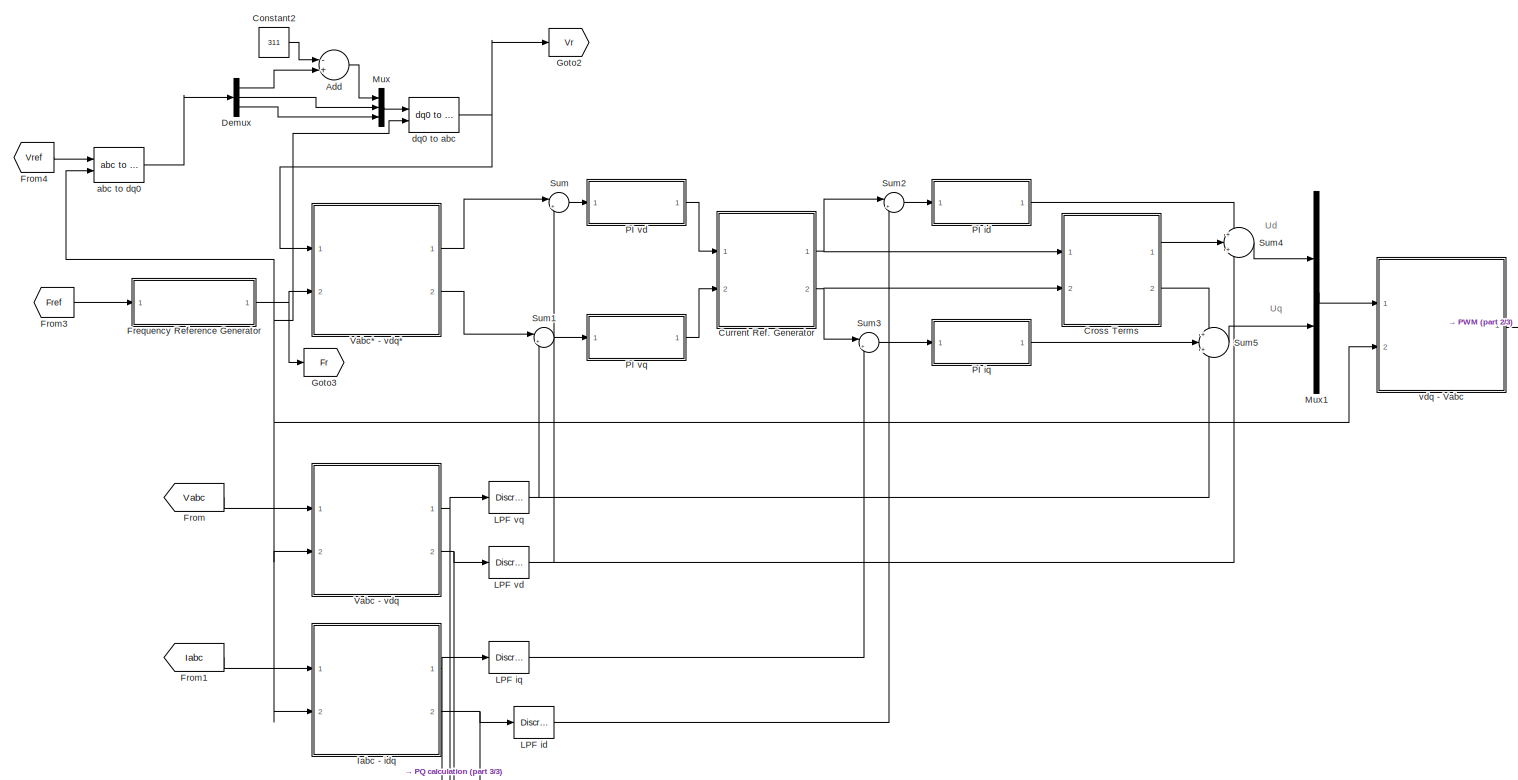
[diagram: Inverter/Inverter Control1 - part 1/3, full width, middle band]
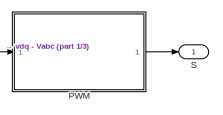
[diagram: Inverter/Inverter Control1 - part 2/3, top right region]
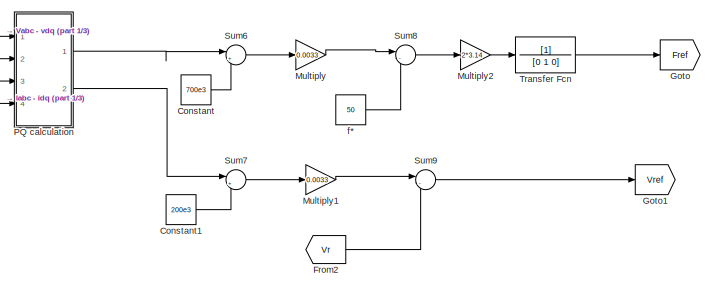
[diagram: Inverter/Inverter Control1 - part 3/3, bottom center region]
BLOCK [SubSystem] Inverter/Inverter Control1
  Ports = [0, 1]
  RequestExecContextInheritance = off
  SID = 2625
BLOCK [Sum] Inverter/Inverter Control1/Add
  InputSameDT = off
  Inputs = -+
  OutDataTypeStr = Inherit: Inherit via internal rule
  Ports = [2, 1]
  SID = 2626
  SaturateOnIntegerOverflow = off
BLOCK [Constant] Inverter/Inverter Control1/Constant
  SID = 2627
  Value = 700e3
BLOCK [Constant] Inverter/Inverter Control1/Constant1
  SID = 2628
  Value = 200e3
BLOCK [Constant] Inverter/Inverter Control1/Constant2
  SID = 2629
  Value = 311
BLOCK [SubSystem] Inverter/Inverter Control1/Cross Terms
  Ports = [2, 2]
  RequestExecContextInheritance = off
  SID = 2630
BLOCK [Outport] Inverter/Inverter Control1/Cross Terms/ d
  IconDisplay = Port number
  Port = 2
  SID = 2636
BLOCK [Outport] Inverter/Inverter Control1/Cross Terms/ q
  IconDisplay = Port number
  SID = 2635
BLOCK [Gain] Inverter/Inverter Control1/Cross Terms/Gain1
  Gain = -2*pi*50*3e-3
  OutDataTypeStr = Inherit: Inherit via internal rule
  ParamDataTypeStr = Inherit: Inherit via internal rule
  SID = 2633
  SaturateOnIntegerOverflow = off
BLOCK [Gain] Inverter/Inverter Control1/Cross Terms/Gain2
  Gain = 2*pi*50*3e-3
  OutDataTypeStr = Inherit: Inherit via internal rule
  ParamDataTypeStr = Inherit: Inherit via internal rule
  SID = 2634
  SaturateOnIntegerOverflow = off
BLOCK [Inport] Inverter/Inverter Control1/Cross Terms/id*
  IconDisplay = Port number
  SID = 2631
BLOCK [Inport] Inverter/Inverter Control1/Cross Terms/iq*
  IconDisplay = Port number
  Port = 2
  SID = 2632
BLOCK [SubSystem] Inverter/Inverter Control1/Current Ref. Generator
  Ports = [2, 2]
  RequestExecContextInheritance = off
  SID = 2637
BLOCK [Product] Inverter/Inverter Control1/Current Ref. Generator/Divide
  InputSameDT = off
  Inputs = */
  OutDataTypeStr = Inherit: Inherit via internal rule
  Ports = [2, 1]
  RndMeth = Floor
  SID = 2640
  SaturateOnIntegerOverflow = off
BLOCK [Product] Inverter/Inverter Control1/Current Ref. Generator/Divide1
  InputSameDT = off
  Inputs = /*
  OutDataTypeStr = Inherit: Inherit via internal rule
  Ports = [2, 1]
  RndMeth = Floor
  SID = 2641
  SaturateOnIntegerOverflow = off
BLOCK [Goto] Inverter/Inverter Control1/Current Ref. Generator/Goto1
  GotoTag = id_ref
  SID = 2642
  TagVisibility = global
BLOCK [Goto] Inverter/Inverter Control1/Current Ref. Generator/Goto4
  GotoTag = iq_ref
  SID = 2643
  TagVisibility = global
BLOCK [Scope] Inverter/Inverter Control1/Current Ref. Generator/Scope24
  Floating = off
  NumInputPorts = 1
  Ports = [1]
  SID = 2644
  ScopeSpecificationString = C++SS(StrPVP('Location','[463, 149, 1247, 945]'),StrPVP('Open','off'),StrPVP('ZoomMode','yonly'),MxPVP('AxesTitles',53,'struct(''axes1'',''Icons / I   inversor'')'),StrPVP('ShowLegends','off'),StrPVP('TimeRange','0.09'),StrPVP('YMin','0.699626'),StrPVP('YMax','0.699626'),StrPVP('SaveName','ScopeData53'),StrPVP('DataFormat','StructureWithTime'),StrPVP('LimitDataPoints','off'),StrPVP('BlockParamSamp...<+76ch>
BLOCK [Sum] Inverter/Inverter Control1/Current Ref. Generator/Sum1
  IconShape = round
  InputSameDT = off
  Inputs = -+|
  OutDataTypeStr = Inherit: Inherit via internal rule
  Ports = [2, 1]
  SID = 2645
  SaturateOnIntegerOverflow = off
BLOCK [Sum] Inverter/Inverter Control1/Current Ref. Generator/Sum3
  IconShape = round
  InputSameDT = off
  Inputs = |++
  OutDataTypeStr = Inherit: Inherit via internal rule
  Ports = [2, 1]
  SID = 2646
  SaturateOnIntegerOverflow = off
BLOCK [Gain] Inverter/Inverter Control1/Current Ref. Generator/Zd
  Gain = 0.4559
  OutDataTypeStr = Inherit: Inherit via internal rule
  ParamDataTypeStr = Inherit: Inherit via internal rule
  SID = 2647
  SaturateOnIntegerOverflow = off
BLOCK [Gain] Inverter/Inverter Control1/Current Ref. Generator/Zd1
  Gain = 0.4559
  OutDataTypeStr = Inherit: Inherit via internal rule
  ParamDataTypeStr = Inherit: Inherit via internal rule
  SID = 2648
  SaturateOnIntegerOverflow = off
BLOCK [Constant] Inverter/Inverter Control1/Current Ref. Generator/Zd^2+Zq^2
  SID = 2649
  Value = 0.4559^2+0.1824^2
BLOCK [Gain] Inverter/Inverter Control1/Current Ref. Generator/Zq
  Gain = 0.1824
  OutDataTypeStr = Inherit: Inherit via internal rule
  ParamDataTypeStr = Inherit: Inherit via internal rule
  SID = 2650
  SaturateOnIntegerOverflow = off
BLOCK [Gain] Inverter/Inverter Control1/Current Ref. Generator/Zq1
  Gain = 0.1824
  OutDataTypeStr = Inherit: Inherit via internal rule
  ParamDataTypeStr = Inherit: Inherit via internal rule
  SID = 2651
  SaturateOnIntegerOverflow = off
BLOCK [Inport] Inverter/Inverter Control1/Current Ref. Generator/evd
  IconDisplay = Port number
  SID = 2638
BLOCK [Inport] Inverter/Inverter Control1/Current Ref. Generator/evq
  IconDisplay = Port number
  Port = 2
  SID = 2639
BLOCK [Outport] Inverter/Inverter Control1/Current Ref. Generator/id*
  IconDisplay = Port number
  SID = 2652
BLOCK [Outport] Inverter/Inverter Control1/Current Ref. Generator/iq*
  IconDisplay = Port number
  Port = 2
  SID = 2653
BLOCK [Demux] Inverter/Inverter Control1/Demux
  DisplayOption = bar
  Outputs = 3
  Ports = [1, 3]
  SID = 2656
BLOCK [SubSystem] Inverter/Inverter Control1/Frequency Reference Generator
  Ports = [1, 1]
  RequestExecContextInheritance = off
  SID = 2657
BLOCK [Constant] Inverter/Inverter Control1/Frequency Reference Generator/Constant
  SID = 2659
  Value = 2*pi
BLOCK [Goto] Inverter/Inverter Control1/Frequency Reference Generator/Goto1
  GotoTag = f_ref
  SID = 2660
  TagVisibility = global
BLOCK [Goto] Inverter/Inverter Control1/Frequency Reference Generator/Goto3
  GotoTag = theta
  SID = 2661
  TagVisibility = global
BLOCK [Inport] Inverter/Inverter Control1/Frequency Reference Generator/Input
  IconDisplay = Port number
  SID = 2658
BLOCK [Integrator] Inverter/Inverter Control1/Frequency Reference Generator/Integrator
  ExternalReset = rising
  Ports = [2, 1]
  SID = 2662
BLOCK [RelationalOperator] Inverter/Inverter Control1/Frequency Reference Generator/Relational\nOperator
  InputSameDT = off
  OutDataTypeStr = boolean
  Ports = [2, 1]
  SID = 2663
BLOCK [Outport] Inverter/Inverter Control1/Frequency Reference Generator/theta*
  IconDisplay = Port number
  SID = 2665
BLOCK [Gain] Inverter/Inverter Control1/Frequency Reference Generator/w*
  Gain = 2*pi
  OutDataTypeStr = Inherit: Inherit via internal rule
  ParamDataTypeStr = Inherit: Inherit via internal rule
  SID = 2664
  SaturateOnIntegerOverflow = off
BLOCK [From] Inverter/Inverter Control1/From
  GotoTag = Vabc
  SID = 2667
  TagVisibility = global
BLOCK [From] Inverter/Inverter Control1/From1
  GotoTag = Iabc
  SID = 2668
  TagVisibility = global
BLOCK [From] Inverter/Inverter Control1/From2
  GotoTag = Vr
  SID = 2669
BLOCK [From] Inverter/Inverter Control1/From3
  GotoTag = Fref
  SID = 2670
BLOCK [From] Inverter/Inverter Control1/From4
  GotoTag = Vref
  SID = 2671
BLOCK [Goto] Inverter/Inverter Control1/Goto
  GotoTag = Fref
  SID = 2672
BLOCK [Goto] Inverter/Inverter Control1/Goto1
  GotoTag = Vref
  SID = 2673
BLOCK [Goto] Inverter/Inverter Control1/Goto2
  GotoTag = Vr
  SID = 2674
BLOCK [Goto] Inverter/Inverter Control1/Goto3
  GotoTag = Fr
  SID = 2675
BLOCK [SubSystem] Inverter/Inverter Control1/Iabc  - idq
  Ports = [2, 2]
  RequestExecContextInheritance = off
  SID = 2676
BLOCK [Demux] Inverter/Inverter Control1/Iabc  - idq/Demux
  DisplayOption = bar
  Outputs = 2
  Ports = [1, 2]
  SID = 2679
BLOCK [Goto] Inverter/Inverter Control1/Iabc  - idq/Goto6
  GotoTag = id
  SID = 2680
  TagVisibility = global
BLOCK [Goto] Inverter/Inverter Control1/Iabc  - idq/Goto7
  GotoTag = iq
  SID = 2681
  TagVisibility = global
BLOCK [Inport] Inverter/Inverter Control1/Iabc  - idq/Iabc
  IconDisplay = Port number
  SID = 2677
BLOCK [SubSystem] Inverter/Inverter Control1/Iabc  - idq/abc  - alfa//beta
  Ports = [1, 1]
  RequestExecContextInheritance = off
  SID = 2682
BLOCK [Mux] Inverter/Inverter Control1/Iabc  - idq/abc  - alfa//beta/Mux
  DisplayOption = bar
  Inputs = 2
  Ports = [2, 1]
  SID = 2684
BLOCK [Inport] Inverter/Inverter Control1/Iabc  - idq/abc  - alfa//beta/abc
  IconDisplay = Port number
  SID = 2683
BLOCK [Outport] Inverter/Inverter Control1/Iabc  - idq/abc  - alfa//beta/alfa//beta
  IconDisplay = Port number
  SID = 2687
BLOCK [Fcn] Inverter/Inverter Control1/Iabc  - idq/abc  - alfa//beta/d_s
  Expr = (-1/sqrt(3)*u(2))+(1/sqrt(3)*u(3))
  SID = 2685
BLOCK [Fcn] Inverter/Inverter Control1/Iabc  - idq/abc  - alfa//beta/q_s
  Expr = (2/3)*u(1)-(1/3)*u(2)-(1/3)*u(3)
  SID = 2686
BLOCK [SubSystem] Inverter/Inverter Control1/Iabc  - idq/alfa//beta - dq
  Ports = [2, 1]
  RequestExecContextInheritance = off
  SID = 2688
BLOCK [Mux] Inverter/Inverter Control1/Iabc  - idq/alfa//beta - dq/Mux
  DisplayOption = bar
  Inputs = 2
  Ports = [2, 1]
  SID = 2691
BLOCK [Mux] Inverter/Inverter Control1/Iabc  - idq/alfa//beta - dq/Mux1
  DisplayOption = bar
  Inputs = 2
  Ports = [2, 1]
  SID = 2692
BLOCK [Inport] Inverter/Inverter Control1/Iabc  - idq/alfa//beta - dq/alfa//beta
  IconDisplay = Port number
  SID = 2689
BLOCK [Fcn] Inverter/Inverter Control1/Iabc  - idq/alfa//beta - dq/d
  Expr = u(2)*sin(u(3)) + u(1)*cos(u(3))
  SID = 2693
BLOCK [Outport] Inverter/Inverter Control1/Iabc  - idq/alfa//beta - dq/d//q
  IconDisplay = Port number
  SID = 2695
BLOCK [Fcn] Inverter/Inverter Control1/Iabc  - idq/alfa//beta - dq/q
  Expr = -u(1)*sin(u(3)) + u(2)*cos(u(3))
  SID = 2694
BLOCK [Inport] Inverter/Inverter Control1/Iabc  - idq/alfa//beta - dq/theta
  IconDisplay = Port number
  Port = 2
  SID = 2690
BLOCK [Outport] Inverter/Inverter Control1/Iabc  - idq/id
  IconDisplay = Port number
  Port = 2
  SID = 2697
BLOCK [Outport] Inverter/Inverter Control1/Iabc  - idq/iq
  IconDisplay = Port number
  SID = 2696
BLOCK [Inport] Inverter/Inverter Control1/Iabc  - idq/theta
  IconDisplay = Port number
  Port = 2
  SID = 2678
BLOCK [Reference] Inverter/Inverter Control1/LPF id  REF=powerlib_extras/Discrete \nControl Blocks/Discrete\n1st-Order\nFilter
  FilterType = Lowpass
  Initialize = off
  PlotResponse = off
  Ports = [1, 1]
  SID = 2698
  SourceBlock = powerlib_extras/Discrete \nControl Blocks/Discrete\n1st-Order\nFilter
  SourceProductBaseCode = PS
  SourceProductName = Simscape Electrical
  SourceType = Discrete 1st-Order Filter
  Tc = 1e-3
  Ts = 5e-6
  Vac_Init = [0.8 -25 60]
  Vdc_Init = 0
  param1 = [1 100 0.1]
BLOCK [Reference] Inverter/Inverter Control1/LPF iq  REF=powerlib_extras/Discrete \nControl Blocks/Discrete\n1st-Order\nFilter
  FilterType = Lowpass
  Initialize = off
  PlotResponse = off
  Ports = [1, 1]
  SID = 2699
  SourceBlock = powerlib_extras/Discrete \nControl Blocks/Discrete\n1st-Order\nFilter
  SourceProductBaseCode = PS
  SourceProductName = Simscape Electrical
  SourceType = Discrete 1st-Order Filter
  Tc = 1e-3
  Ts = 5e-6
  Vac_Init = [0.8 -25 60]
  Vdc_Init = 0
  param1 = [1 100 0.1]
BLOCK [Reference] Inverter/Inverter Control1/LPF vd  REF=powerlib_extras/Discrete \nControl Blocks/Discrete\n1st-Order\nFilter
  FilterType = Lowpass
  Initialize = off
  PlotResponse = off
  Ports = [1, 1]
  SID = 2700
  SourceBlock = powerlib_extras/Discrete \nControl Blocks/Discrete\n1st-Order\nFilter
  SourceProductBaseCode = PS
  SourceProductName = Simscape Electrical
  SourceType = Discrete 1st-Order Filter
  Tc = 10e-3
  Ts = 5e-6
  Vac_Init = [0.8 -25 60]
  Vdc_Init = -0.4
  param1 = [1 100 0.1]
BLOCK [Reference] Inverter/Inverter Control1/LPF vq  REF=powerlib_extras/Discrete \nControl Blocks/Discrete\n1st-Order\nFilter
  FilterType = Lowpass
  Initialize = off
  PlotResponse = off
  Ports = [1, 1]
  SID = 2701
  SourceBlock = powerlib_extras/Discrete \nControl Blocks/Discrete\n1st-Order\nFilter
  SourceProductBaseCode = PS
  SourceProductName = Simscape Electrical
  SourceType = Discrete 1st-Order Filter
  Tc = 10e-3
  Ts = 5e-6
  Vac_Init = [0.8 -25 60]
  Vdc_Init = 0
  param1 = [1 100 0.1]
BLOCK [Gain] Inverter/Inverter Control1/Multiply
  Gain = 0.0033
  OutDataTypeStr = Inherit: Inherit via internal rule
  ParamDataTypeStr = Inherit: Inherit via internal rule
  SID = 2702
  SaturateOnIntegerOverflow = off
BLOCK [Gain] Inverter/Inverter Control1/Multiply1
  Gain = 0.0033
  OutDataTypeStr = Inherit: Inherit via internal rule
  ParamDataTypeStr = Inherit: Inherit via internal rule
  SID = 2703
  SaturateOnIntegerOverflow = off
BLOCK [Gain] Inverter/Inverter Control1/Multiply2
  Gain = 2*3.14
  OutDataTypeStr = Inherit: Inherit via internal rule
  ParamDataTypeStr = Inherit: Inherit via internal rule
  SID = 2704
  SaturateOnIntegerOverflow = off
BLOCK [Mux] Inverter/Inverter Control1/Mux
  DisplayOption = bar
  Inputs = 3
  Ports = [3, 1]
  SID = 2705
BLOCK [Mux] Inverter/Inverter Control1/Mux1
  DisplayOption = bar
  Inputs = 2
  Ports = [2, 1]
  SID = 2706
BLOCK [SubSystem] Inverter/Inverter Control1/PI id
  Ports = [1, 1]
  RequestExecContextInheritance = off
  SID = 2707
BLOCK [Outport] Inverter/Inverter Control1/PI id/ 
  IconDisplay = Port number
  SID = 2714
BLOCK [Gain] Inverter/Inverter Control1/PI id/Gain1
  Gain = 50
  OutDataTypeStr = Inherit: Inherit via internal rule
  ParamDataTypeStr = Inherit: Inherit via internal rule
  SID = 2709
  SaturateOnIntegerOverflow = off
BLOCK [Gain] Inverter/Inverter Control1/PI id/Gain2
  Gain = 500
  OutDataTypeStr = Inherit: Inherit via internal rule
  ParamDataTypeStr = Inherit: Inherit via internal rule
  SID = 2710
  SaturateOnIntegerOverflow = off
BLOCK [Integrator] Inverter/Inverter Control1/PI id/Integrator
  Ports = [1, 1]
  SID = 2711
BLOCK [Saturate] Inverter/Inverter Control1/PI id/Saturation
  InputPortMap = u0
  LowerLimit = -inf
  Ports = [1, 1]
  SID = 2712
  UpperLimit = inf
BLOCK [Sum] Inverter/Inverter Control1/PI id/Sum1
  IconShape = round
  InputSameDT = off
  Inputs = |++
  OutDataTypeStr = Inherit: Inherit via internal rule
  Ports = [2, 1]
  SID = 2713
  SaturateOnIntegerOverflow = off
BLOCK [Inport] Inverter/Inverter Control1/PI id/e
  IconDisplay = Port number
  SID = 2708
BLOCK [SubSystem] Inverter/Inverter Control1/PI iq
  Ports = [1, 1]
  RequestExecContextInheritance = off
  SID = 2715
BLOCK [Outport] Inverter/Inverter Control1/PI iq/ 
  IconDisplay = Port number
  SID = 2722
BLOCK [Gain] Inverter/Inverter Control1/PI iq/Gain1
  Gain = 50
  OutDataTypeStr = Inherit: Inherit via internal rule
  ParamDataTypeStr = Inherit: Inherit via internal rule
  SID = 2717
  SaturateOnIntegerOverflow = off
BLOCK [Gain] Inverter/Inverter Control1/PI iq/Gain2
  Gain = 500
  OutDataTypeStr = Inherit: Inherit via internal rule
  ParamDataTypeStr = Inherit: Inherit via internal rule
  SID = 2718
  SaturateOnIntegerOverflow = off
BLOCK [Integrator] Inverter/Inverter Control1/PI iq/Integrator
  Ports = [1, 1]
  SID = 2719
BLOCK [Saturate] Inverter/Inverter Control1/PI iq/Saturation
  InputPortMap = u0
  LowerLimit = -inf
  Ports = [1, 1]
  SID = 2720
  UpperLimit = inf
BLOCK [Sum] Inverter/Inverter Control1/PI iq/Sum1
  IconShape = round
  InputSameDT = off
  Inputs = |++
  OutDataTypeStr = Inherit: Inherit via internal rule
  Ports = [2, 1]
  SID = 2721
  SaturateOnIntegerOverflow = off
BLOCK [Inport] Inverter/Inverter Control1/PI iq/e
  IconDisplay = Port number
  SID = 2716
BLOCK [SubSystem] Inverter/Inverter Control1/PI vd
  Ports = [1, 1]
  RequestExecContextInheritance = off
  SID = 2723
BLOCK [Outport] Inverter/Inverter Control1/PI vd/ 
  IconDisplay = Port number
  SID = 2730
BLOCK [Gain] Inverter/Inverter Control1/PI vd/Gain1
  Gain = 2
  OutDataTypeStr = Inherit: Inherit via internal rule
  ParamDataTypeStr = Inherit: Inherit via internal rule
  SID = 2725
  SaturateOnIntegerOverflow = off
BLOCK [Gain] Inverter/Inverter Control1/PI vd/Gain2
  Gain = 20
  OutDataTypeStr = Inherit: Inherit via internal rule
  ParamDataTypeStr = Inherit: Inherit via internal rule
  SID = 2726
  SaturateOnIntegerOverflow = off
BLOCK [Integrator] Inverter/Inverter Control1/PI vd/Integrator
  Ports = [1, 1]
  SID = 2727
BLOCK [Saturate] Inverter/Inverter Control1/PI vd/Saturation
  InputPortMap = u0
  LowerLimit = -inf
  Ports = [1, 1]
  SID = 2728
  UpperLimit = inf
BLOCK [Sum] Inverter/Inverter Control1/PI vd/Sum1
  IconShape = round
  InputSameDT = off
  Inputs = |++
  OutDataTypeStr = Inherit: Inherit via internal rule
  Ports = [2, 1]
  SID = 2729
  SaturateOnIntegerOverflow = off
BLOCK [Inport] Inverter/Inverter Control1/PI vd/e
  IconDisplay = Port number
  SID = 2724
BLOCK [SubSystem] Inverter/Inverter Control1/PI vq
  Ports = [1, 1]
  RequestExecContextInheritance = off
  SID = 2731
BLOCK [Outport] Inverter/Inverter Control1/PI vq/ 
  IconDisplay = Port number
  SID = 2738
BLOCK [Gain] Inverter/Inverter Control1/PI vq/Gain1
  Gain = 2
  OutDataTypeStr = Inherit: Inherit via internal rule
  ParamDataTypeStr = Inherit: Inherit via internal rule
  SID = 2733
  SaturateOnIntegerOverflow = off
BLOCK [Gain] Inverter/Inverter Control1/PI vq/Gain2
  Gain = 2
  OutDataTypeStr = Inherit: Inherit via internal rule
  ParamDataTypeStr = Inherit: Inherit via internal rule
  SID = 2734
  SaturateOnIntegerOverflow = off
BLOCK [Integrator] Inverter/Inverter Control1/PI vq/Integrator
  Ports = [1, 1]
  SID = 2735
BLOCK [Saturate] Inverter/Inverter Control1/PI vq/Saturation
  InputPortMap = u0
  LowerLimit = -inf
  Ports = [1, 1]
  SID = 2736
  UpperLimit = inf
BLOCK [Sum] Inverter/Inverter Control1/PI vq/Sum1
  IconShape = round
  InputSameDT = off
  Inputs = |++
  OutDataTypeStr = Inherit: Inherit via internal rule
  Ports = [2, 1]
  SID = 2737
  SaturateOnIntegerOverflow = off
BLOCK [Inport] Inverter/Inverter Control1/PI vq/e
  IconDisplay = Port number
  SID = 2732
BLOCK [SubSystem] Inverter/Inverter Control1/PQ calculation
  Ports = [4, 2]
  RequestExecContextInheritance = off
  SID = 2739
BLOCK [Inport] Inverter/Inverter Control1/PQ calculation/Id
  IconDisplay = Port number
  Port = 3
  SID = 2742
BLOCK [Inport] Inverter/Inverter Control1/PQ calculation/Iq
  IconDisplay = Port number
  Port = 4
  SID = 2743
BLOCK [Outport] Inverter/Inverter Control1/PQ calculation/P
  IconDisplay = Port number
  SID = 2750
BLOCK [Product] Inverter/Inverter Control1/PQ calculation/Product
  InputSameDT = off
  OutDataTypeStr = Inherit: Inherit via internal rule
  Ports = [2, 1]
  RndMeth = Floor
  SID = 2744
  SaturateOnIntegerOverflow = off
BLOCK [Product] Inverter/Inverter Control1/PQ calculation/Product1
  InputSameDT = off
  OutDataTypeStr = Inherit: Inherit via internal rule
  Ports = [2, 1]
  RndMeth = Floor
  SID = 2745
  SaturateOnIntegerOverflow = off
BLOCK [Product] Inverter/Inverter Control1/PQ calculation/Product2
  InputSameDT = off
  OutDataTypeStr = Inherit: Inherit via internal rule
  Ports = [2, 1]
  RndMeth = Floor
  SID = 2746
  SaturateOnIntegerOverflow = off
BLOCK [Product] Inverter/Inverter Control1/PQ calculation/Product3
  InputSameDT = off
  OutDataTypeStr = Inherit: Inherit via internal rule
  Ports = [2, 1]
  RndMeth = Floor
  SID = 2747
  SaturateOnIntegerOverflow = off
BLOCK [Outport] Inverter/Inverter Control1/PQ calculation/Q
  IconDisplay = Port number
  Port = 2
  SID = 2751
BLOCK [Sum] Inverter/Inverter Control1/PQ calculation/Sum6
  IconShape = round
  InputSameDT = off
  Inputs = |++
  OutDataTypeStr = Inherit: Inherit via internal rule
  Ports = [2, 1]
  SID = 2748
  SaturateOnIntegerOverflow = off
BLOCK [Sum] Inverter/Inverter Control1/PQ calculation/Sum7
  IconShape = round
  InputSameDT = off
  Inputs = |+-
  OutDataTypeStr = Inherit: Inherit via internal rule
  Ports = [2, 1]
  SID = 2749
  SaturateOnIntegerOverflow = off
BLOCK [Inport] Inverter/Inverter Control1/PQ calculation/Vd
  IconDisplay = Port number
  SID = 2740
BLOCK [Inport] Inverter/Inverter Control1/PQ calculation/Vq
  IconDisplay = Port number
  Port = 2
  SID = 2741
BLOCK [SubSystem] Inverter/Inverter Control1/PWM
  Ports = [1, 1]
  RequestExecContextInheritance = off
  SID = 2752
BLOCK [Gain] Inverter/Inverter Control1/PWM/Gain2
  Gain = 2/1000
  OutDataTypeStr = Inherit: Inherit via internal rule
  ParamDataTypeStr = Inherit: Inherit via internal rule
  SID = 2754
  SaturateOnIntegerOverflow = off
BLOCK [Goto] Inverter/Inverter Control1/PWM/Goto1
  GotoTag = m_index
  SID = 2755
  TagVisibility = global
BLOCK [Goto] Inverter/Inverter Control1/PWM/Goto2
  GotoTag = pulses
  SID = 2756
  TagVisibility = global
BLOCK [Reference] Inverter/Inverter Control1/PWM/PWM Generator  REF=powerlib_extras/Control \nBlocks/PWM Generator
  Fc = 10000
  Freq = 60
  GeneratorMode = 3-arm  bridge (6 pulses)
  Internal = off
  Phase = 0
  Ports = [1, 1]
  SID = 2757
  SourceBlock = powerlib_extras/Control \nBlocks/PWM Generator
  SourceProductBaseCode = PS
  SourceProductName = Simscape Electrical
  SourceType = PWM Generator
  mIndex = 0.4
BLOCK [Outport] Inverter/Inverter Control1/PWM/S
  IconDisplay = Port number
  SID = 2758
BLOCK [Inport] Inverter/Inverter Control1/PWM/Uabc_ref
  IconDisplay = Port number
  SID = 2753
BLOCK [Outport] Inverter/Inverter Control1/S
  IconDisplay = Port number
  SID = 2839
BLOCK [Sum] Inverter/Inverter Control1/Sum
  IconShape = round
  InputSameDT = off
  Inputs = |+-
  OutDataTypeStr = Inherit: Inherit via internal rule
  Ports = [2, 1]
  SID = 2759
  SaturateOnIntegerOverflow = off
BLOCK [Sum] Inverter/Inverter Control1/Sum1
  IconShape = round
  InputSameDT = off
  Inputs = |+-
  OutDataTypeStr = Inherit: Inherit via internal rule
  Ports = [2, 1]
  SID = 2760
  SaturateOnIntegerOverflow = off
BLOCK [Sum] Inverter/Inverter Control1/Sum2
  IconShape = round
  InputSameDT = off
  Inputs = |+-
  OutDataTypeStr = Inherit: Inherit via internal rule
  Ports = [2, 1]
  SID = 2761
  SaturateOnIntegerOverflow = off
BLOCK [Sum] Inverter/Inverter Control1/Sum3
  IconShape = round
  InputSameDT = off
  Inputs = |+-
  OutDataTypeStr = Inherit: Inherit via internal rule
  Ports = [2, 1]
  SID = 2762
  SaturateOnIntegerOverflow = off
BLOCK [Sum] Inverter/Inverter Control1/Sum4
  IconShape = round
  InputSameDT = off
  Inputs = +|+|+
  OutDataTypeStr = Inherit: Inherit via internal rule
  Ports = [3, 1]
  SID = 2763
  SaturateOnIntegerOverflow = off
BLOCK [Sum] Inverter/Inverter Control1/Sum5
  IconShape = round
  InputSameDT = off
  Inputs = +|+|+
  OutDataTypeStr = Inherit: Inherit via internal rule
  Ports = [3, 1]
  SID = 2764
  SaturateOnIntegerOverflow = off
BLOCK [Sum] Inverter/Inverter Control1/Sum6
  IconShape = round
  InputSameDT = off
  Inputs = |+-
  OutDataTypeStr = Inherit: Inherit via internal rule
  Ports = [2, 1]
  SID = 2765
  SaturateOnIntegerOverflow = off
BLOCK [Sum] Inverter/Inverter Control1/Sum7
  IconShape = round
  InputSameDT = off
  Inputs = |+-
  OutDataTypeStr = Inherit: Inherit via internal rule
  Ports = [2, 1]
  SID = 2766
  SaturateOnIntegerOverflow = off
BLOCK [Sum] Inverter/Inverter Control1/Sum8
  IconShape = round
  InputSameDT = off
  Inputs = |-+
  OutDataTypeStr = Inherit: Inherit via internal rule
  Ports = [2, 1]
  SID = 2767
  SaturateOnIntegerOverflow = off
BLOCK [Sum] Inverter/Inverter Control1/Sum9
  IconShape = round
  InputSameDT = off
  Inputs = |-+
  OutDataTypeStr = Inherit: Inherit via internal rule
  Ports = [2, 1]
  SID = 2768
  SaturateOnIntegerOverflow = off
BLOCK [TransferFcn] Inverter/Inverter Control1/Transfer Fcn
  Denominator = [0 1 0]
  SID = 2769
BLOCK [SubSystem] Inverter/Inverter Control1/Vabc  - vdq
  Ports = [2, 2]
  RequestExecContextInheritance = off
  SID = 2770
BLOCK [Demux] Inverter/Inverter Control1/Vabc  - vdq/Demux
  DisplayOption = bar
  Outputs = 2
  Ports = [1, 2]
  SID = 2773
BLOCK [Goto] Inverter/Inverter Control1/Vabc  - vdq/Goto1
  GotoTag = vq
  SID = 2774
  TagVisibility = global
BLOCK [Goto] Inverter/Inverter Control1/Vabc  - vdq/Goto3
  GotoTag = vd
  SID = 2775
  TagVisibility = global
BLOCK [Inport] Inverter/Inverter Control1/Vabc  - vdq/Vabc
  IconDisplay = Port number
  SID = 2771
BLOCK [SubSystem] Inverter/Inverter Control1/Vabc  - vdq/abc  - alfa//beta
  Ports = [1, 1]
  RequestExecContextInheritance = off
  SID = 2776
BLOCK [Mux] Inverter/Inverter Control1/Vabc  - vdq/abc  - alfa//beta/Mux
  DisplayOption = bar
  Inputs = 2
  Ports = [2, 1]
  SID = 2778
BLOCK [Inport] Inverter/Inverter Control1/Vabc  - vdq/abc  - alfa//beta/abc
  IconDisplay = Port number
  SID = 2777
BLOCK [Outport] Inverter/Inverter Control1/Vabc  - vdq/abc  - alfa//beta/alfa//beta
  IconDisplay = Port number
  SID = 2781
BLOCK [Fcn] Inverter/Inverter Control1/Vabc  - vdq/abc  - alfa//beta/d_s
  Expr = (-1/sqrt(3)*u(2))+(1/sqrt(3)*u(3))
  SID = 2779
BLOCK [Fcn] Inverter/Inverter Control1/Vabc  - vdq/abc  - alfa//beta/q_s
  Expr = (2/3)*u(1)-(1/3)*u(2)-(1/3)*u(3)
  SID = 2780
BLOCK [SubSystem] Inverter/Inverter Control1/Vabc  - vdq/alfa//beta - dq
  Ports = [2, 1]
  RequestExecContextInheritance = off
  SID = 2782
BLOCK [Mux] Inverter/Inverter Control1/Vabc  - vdq/alfa//beta - dq/Mux
  DisplayOption = bar
  Inputs = 2
  Ports = [2, 1]
  SID = 2785
BLOCK [Mux] Inverter/Inverter Control1/Vabc  - vdq/alfa//beta - dq/Mux1
  DisplayOption = bar
  Inputs = 2
  Ports = [2, 1]
  SID = 2786
BLOCK [Inport] Inverter/Inverter Control1/Vabc  - vdq/alfa//beta - dq/alfa//beta
  IconDisplay = Port number
  SID = 2783
BLOCK [Fcn] Inverter/Inverter Control1/Vabc  - vdq/alfa//beta - dq/d
  Expr = u(2)*sin(u(3)) + u(1)*cos(u(3))
  SID = 2787
BLOCK [Outport] Inverter/Inverter Control1/Vabc  - vdq/alfa//beta - dq/d//q
  IconDisplay = Port number
  SID = 2789
BLOCK [Fcn] Inverter/Inverter Control1/Vabc  - vdq/alfa//beta - dq/q
  Expr = -u(1)*sin(u(3)) + u(2)*cos(u(3))
  SID = 2788
BLOCK [Inport] Inverter/Inverter Control1/Vabc  - vdq/alfa//beta - dq/theta
  IconDisplay = Port number
  Port = 2
  SID = 2784
BLOCK [Inport] Inverter/Inverter Control1/Vabc  - vdq/theta
  IconDisplay = Port number
  Port = 2
  SID = 2772
BLOCK [Outport] Inverter/Inverter Control1/Vabc  - vdq/vd
  IconDisplay = Port number
  Port = 2
  SID = 2791
BLOCK [Outport] Inverter/Inverter Control1/Vabc  - vdq/vq
  IconDisplay = Port number
  SID = 2790
BLOCK [SubSystem] Inverter/Inverter Control1/Vabc*  - vdq*
  Ports = [2, 2]
  RequestExecContextInheritance = off
  SID = 2792
BLOCK [Demux] Inverter/Inverter Control1/Vabc*  - vdq*/Demux
  DisplayOption = bar
  Outputs = 2
  Ports = [1, 2]
  SID = 2795
BLOCK [Goto] Inverter/Inverter Control1/Vabc*  - vdq*/Goto1
  GotoTag = vq_ref
  SID = 2796
  TagVisibility = global
BLOCK [Goto] Inverter/Inverter Control1/Vabc*  - vdq*/Goto3
  GotoTag = vd_ref
  SID = 2797
  TagVisibility = global
BLOCK [Inport] Inverter/Inverter Control1/Vabc*  - vdq*/Vabc*
  IconDisplay = Port number
  SID = 2793
BLOCK [SubSystem] Inverter/Inverter Control1/Vabc*  - vdq*/abc  - alfa//beta
  Ports = [1, 1]
  RequestExecContextInheritance = off
  SID = 2798
BLOCK [Mux] Inverter/Inverter Control1/Vabc*  - vdq*/abc  - alfa//beta/Mux
  DisplayOption = bar
  Inputs = 2
  Ports = [2, 1]
  SID = 2800
BLOCK [Inport] Inverter/Inverter Control1/Vabc*  - vdq*/abc  - alfa//beta/abc
  IconDisplay = Port number
  SID = 2799
BLOCK [Outport] Inverter/Inverter Control1/Vabc*  - vdq*/abc  - alfa//beta/alfa//beta
  IconDisplay = Port number
  SID = 2803
BLOCK [Fcn] Inverter/Inverter Control1/Vabc*  - vdq*/abc  - alfa//beta/d_s
  Expr = (-1/sqrt(3)*u(2))+(1/sqrt(3)*u(3))
  SID = 2801
BLOCK [Fcn] Inverter/Inverter Control1/Vabc*  - vdq*/abc  - alfa//beta/q_s
  Expr = (2/3)*u(1)-(1/3)*u(2)-(1/3)*u(3)
  SID = 2802
BLOCK [SubSystem] Inverter/Inverter Control1/Vabc*  - vdq*/alfa//beta - dq
  Ports = [2, 1]
  RequestExecContextInheritance = off
  SID = 2804
BLOCK [Mux] Inverter/Inverter Control1/Vabc*  - vdq*/alfa//beta - dq/Mux
  DisplayOption = bar
  Inputs = 2
  Ports = [2, 1]
  SID = 2807
BLOCK [Mux] Inverter/Inverter Control1/Vabc*  - vdq*/alfa//beta - dq/Mux1
  DisplayOption = bar
  Inputs = 2
  Ports = [2, 1]
  SID = 2808
BLOCK [Inport] Inverter/Inverter Control1/Vabc*  - vdq*/alfa//beta - dq/alfa//beta
  IconDisplay = Port number
  SID = 2805
BLOCK [Fcn] Inverter/Inverter Control1/Vabc*  - vdq*/alfa//beta - dq/d
  Expr = u(2)*sin(u(3)) + u(1)*cos(u(3))
  SID = 2809
BLOCK [Outport] Inverter/Inverter Control1/Vabc*  - vdq*/alfa//beta - dq/d//q
  IconDisplay = Port number
  SID = 2811
BLOCK [Fcn] Inverter/Inverter Control1/Vabc*  - vdq*/alfa//beta - dq/q
  Expr = -u(1)*sin(u(3)) + u(2)*cos(u(3))
  SID = 2810
BLOCK [Inport] Inverter/Inverter Control1/Vabc*  - vdq*/alfa//beta - dq/theta
  IconDisplay = Port number
  Port = 2
  SID = 2806
BLOCK [Inport] Inverter/Inverter Control1/Vabc*  - vdq*/theta
  IconDisplay = Port number
  Port = 2
  SID = 2794
BLOCK [Outport] Inverter/Inverter Control1/Vabc*  - vdq*/vd*
  IconDisplay = Port number
  SID = 2812
BLOCK [Outport] Inverter/Inverter Control1/Vabc*  - vdq*/vq*
  IconDisplay = Port number
  Port = 2
  SID = 2813
BLOCK [Reference] Inverter/Inverter Control1/abc to dq0  REF=powerlib_meascontrol/Transformations/abc to dq0
  Alignment = 90 degrees behind phase A axis
  Ports = [2, 1]
  SID = 2814
  SourceBlock = powerlib_meascontrol/Transformations/abc to dq0
  SourceProductBaseCode = PS
  SourceProductName = Simscape Electrical
  SourceType = abc to dq0 Transformation
BLOCK [Reference] Inverter/Inverter Control1/dq0 to abc  REF=powerlib_meascontrol/Transformations/dq0 to abc
  Alignment = 90 degrees behind phase A axis
  Ports = [2, 1]
  SID = 2815
  SourceBlock = powerlib_meascontrol/Transformations/dq0 to abc
  SourceProductBaseCode = PS
  SourceProductName = Simscape Electrical
  SourceType = dq0 to abc Transformation
BLOCK [Constant] Inverter/Inverter Control1/f* 
  SID = 2816
  Value = 50
BLOCK [SubSystem] Inverter/Inverter Control1/vdq - Vabc
  Ports = [2, 1]
  RequestExecContextInheritance = off
  SID = 2817
BLOCK [Outport] Inverter/Inverter Control1/vdq - Vabc/Uabc_ref
  IconDisplay = Port number
  SID = 2838
BLOCK [Inport] Inverter/Inverter Control1/vdq - Vabc/Ud//Uq
  IconDisplay = Port number
  SID = 2818
BLOCK [SubSystem] Inverter/Inverter Control1/vdq - Vabc/alfa//beta - abc
  Ports = [1, 1]
  RequestExecContextInheritance = off
  SID = 2820
BLOCK [Goto] Inverter/Inverter Control1/vdq - Vabc/alfa//beta - abc/Goto1
  GotoTag = Vcc_ref
  SID = 2822
  TagVisibility = global
BLOCK [Goto] Inverter/Inverter Control1/vdq - Vabc/alfa//beta - abc/Goto2
  GotoTag = Vcb_ref
  SID = 2823
  TagVisibility = global
BLOCK [Goto] Inverter/Inverter Control1/vdq - Vabc/alfa//beta - abc/Goto3
  GotoTag = Vca_ref
  SID = 2824
  TagVisibility = global
BLOCK [Mux] Inverter/Inverter Control1/vdq - Vabc/alfa//beta - abc/Mux
  DisplayOption = bar
  Inputs = 3
  Ports = [3, 1]
  SID = 2825
BLOCK [Fcn] Inverter/Inverter Control1/vdq - Vabc/alfa//beta - abc/a
  Expr = u[2]
  SID = 2826
BLOCK [Outport] Inverter/Inverter Control1/vdq - Vabc/alfa//beta - abc/abc
  IconDisplay = Port number
  SID = 2829
BLOCK [Inport] Inverter/Inverter Control1/vdq - Vabc/alfa//beta - abc/alfa//beta
  IconDisplay = Port number
  SID = 2821
BLOCK [Fcn] Inverter/Inverter Control1/vdq - Vabc/alfa//beta - abc/b
  Expr = -sqrt(3)/2*u[1]-0.5*u[2]
  SID = 2827
BLOCK [Fcn] Inverter/Inverter Control1/vdq - Vabc/alfa//beta - abc/c
  Expr = sqrt(3)/2*u[1]-0.5*u[2]
  SID = 2828
BLOCK [SubSystem] Inverter/Inverter Control1/vdq - Vabc/d//q - alfa//beta
  Ports = [2, 1]
  RequestExecContextInheritance = off
  SID = 2830
BLOCK [Mux] Inverter/Inverter Control1/vdq - Vabc/d//q - alfa//beta/Mux
  DisplayOption = bar
  Inputs = 2
  Ports = [2, 1]
  SID = 2833
BLOCK [Mux] Inverter/Inverter Control1/vdq - Vabc/d//q - alfa//beta/Mux1
  DisplayOption = bar
  Inputs = 2
  Ports = [2, 1]
  SID = 2834
BLOCK [Fcn] Inverter/Inverter Control1/vdq - Vabc/d//q - alfa//beta/a
  Expr = -u[2]*sin(u[3]) + u[1]*cos(u[3])
  SID = 2835
BLOCK [Outport] Inverter/Inverter Control1/vdq - Vabc/d//q - alfa//beta/alfa//beta
  IconDisplay = Port number
  SID = 2837
BLOCK [Fcn] Inverter/Inverter Control1/vdq - Vabc/d//q - alfa//beta/b
  Expr = u[1]*sin(u[3]) + u[2]*cos(u[3])
  SID = 2836
BLOCK [Inport] Inverter/Inverter Control1/vdq - Vabc/d//q - alfa//beta/d//q
  IconDisplay = Port number
  SID = 2831
BLOCK [Inport] Inverter/Inverter Control1/vdq - Vabc/d//q - alfa//beta/tita
  IconDisplay = Port number
  Port = 2
  SID = 2832
BLOCK [Inport] Inverter/Inverter Control1/vdq - Vabc/theta
  IconDisplay = Port number
  Port = 2
  SID = 2819
BLOCK [SubSystem] PV Array
  Ports = [0, 0, 0, 0, 0, 0, 2]
  RequestExecContextInheritance = off
  SID = 802
BLOCK [PMIOPort] PV Array/+
  SID = 819
  Side = Right
BLOCK [PMIOPort] PV Array/-
  Port = 2
  SID = 820
  Side = Right
BLOCK [Reference] PV Array/Cdc1  REF=powerlib/Elements/Series RLC Branch
  BranchType = C
  Capacitance = 5e-3
  Inductance = 1e-3
  InitialCurrent = 0
  InitialVoltage = 192
  LConnTagsString = __new0
  Measurements = None
  Ports = [0, 0, 0, 0, 0, 1, 1]
  RConnTagsString = __new0
  Resistance = 1
  SID = 803
  SetiL0 = off
  Setx0 = off
  SourceBlock = powerlib/Elements/Series RLC Branch
  SourceProductBaseCode = PS
  SourceProductName = Simscape Electrical
  SourceType = Series RLC Branch
BLOCK [Reference] PV Array/Current Measurement2  REF=powerlib/Measurements/Current Measurement
  OutputType = Complex
  PSBequivalent = 0
  PhasorSimulation = off
  Ports = [0, 1, 0, 0, 0, 1, 1]
  SID = 804
  SourceBlock = powerlib/Measurements/Current Measurement
  SourceProductBaseCode = PS
  SourceProductName = Simscape Electrical
  SourceType = Current Measurement
BLOCK [From] PV Array/From2
  GotoTag = Vpv
  SID = 805
  TagVisibility = global
BLOCK [FromWorkspace] PV Array/From\nWorkspace1
  SID = 2592
  SampleTime = 0
  VariableName = VARins'
  ZeroCross = on
BLOCK [FromWorkspace] PV Array/From\nWorkspace3
  SID = 2600
  SampleTime = 0
  VariableName = VARTemp'
  ZeroCross = on
BLOCK [Goto] PV Array/Goto5
  GotoTag = Ipv
  SID = 808
  TagVisibility = global
BLOCK [Reference] PV Array/Ia  REF=powerlib/Electrical\nSources/Controlled Current Source
  Amplitude = 0
  Frequency = 0
  Initialize = on
  Measurements = None
  Phase = 0
  Ports = [1, 0, 0, 0, 0, 1, 1]
  SID = 810
  SourceBlock = powerlib/Electrical\nSources/Controlled Current Source
  SourceProductBaseCode = PS
  SourceProductName = Simscape Electrical
  SourceType = Controlled Current Source
  Source_Type = DC
BLOCK [Reference] PV Array/Ia1  REF=powerlib/Electrical\nSources/Controlled Current Source
  Amplitude = 0
  Frequency = 0
  Initialize = on
  Measurements = None
  Phase = 0
  Ports = [1, 0, 0, 0, 0, 1, 1]
  SID = 811
  SourceBlock = powerlib/Electrical\nSources/Controlled Current Source
  SourceProductBaseCode = PS
  SourceProductName = Simscape Electrical
  SourceType = Controlled Current Source
  Source_Type = DC
BLOCK [Reference] PV Array/Ia10  REF=powerlib/Electrical\nSources/Controlled Current Source
  Amplitude = 0
  Frequency = 0
  Initialize = on
  Measurements = None
  Phase = 0
  Ports = [1, 0, 0, 0, 0, 1, 1]
  SID = 2410
  SourceBlock = powerlib/Electrical\nSources/Controlled Current Source
  SourceProductBaseCode = PS
  SourceProductName = Simscape Electrical
  SourceType = Controlled Current Source
  Source_Type = DC
BLOCK [Reference] PV Array/Ia11  REF=powerlib/Electrical\nSources/Controlled Current Source
  Amplitude = 0
  Frequency = 0
  Initialize = on
  Measurements = None
  Phase = 0
  Ports = [1, 0, 0, 0, 0, 1, 1]
  SID = 2465
  SourceBlock = powerlib/Electrical\nSources/Controlled Current Source
  SourceProductBaseCode = PS
  SourceProductName = Simscape Electrical
  SourceType = Controlled Current Source
  Source_Type = DC
BLOCK [Reference] PV Array/Ia12  REF=powerlib/Electrical\nSources/Controlled Current Source
  Amplitude = 0
  Frequency = 0
  Initialize = on
  Measurements = None
  Phase = 0
  Ports = [1, 0, 0, 0, 0, 1, 1]
  SID = 2466
  SourceBlock = powerlib/Electrical\nSources/Controlled Current Source
  SourceProductBaseCode = PS
  SourceProductName = Simscape Electrical
  SourceType = Controlled Current Source
  Source_Type = DC
BLOCK [Reference] PV Array/Ia13  REF=powerlib/Electrical\nSources/Controlled Current Source
  Amplitude = 0
  Frequency = 0
  Initialize = on
  Measurements = None
  Phase = 0
  Ports = [1, 0, 0, 0, 0, 1, 1]
  SID = 2467
  SourceBlock = powerlib/Electrical\nSources/Controlled Current Source
  SourceProductBaseCode = PS
  SourceProductName = Simscape Electrical
  SourceType = Controlled Current Source
  Source_Type = DC
BLOCK [Reference] PV Array/Ia2  REF=powerlib/Electrical\nSources/Controlled Current Source
  Amplitude = 0
  Frequency = 0
  Initialize = on
  Measurements = None
  Phase = 0
  Ports = [1, 0, 0, 0, 0, 1, 1]
  SID = 2402
  SourceBlock = powerlib/Electrical\nSources/Controlled Current Source
  SourceProductBaseCode = PS
  SourceProductName = Simscape Electrical
  SourceType = Controlled Current Source
  Source_Type = DC
BLOCK [Reference] PV Array/Ia3  REF=powerlib/Electrical\nSources/Controlled Current Source
  Amplitude = 0
  Frequency = 0
  Initialize = on
  Measurements = None
  Phase = 0
  Ports = [1, 0, 0, 0, 0, 1, 1]
  SID = 2403
  SourceBlock = powerlib/Electrical\nSources/Controlled Current Source
  SourceProductBaseCode = PS
  SourceProductName = Simscape Electrical
  SourceType = Controlled Current Source
  Source_Type = DC
BLOCK [Reference] PV Array/Ia4  REF=powerlib/Electrical\nSources/Controlled Current Source
  Amplitude = 0
  Frequency = 0
  Initialize = on
  Measurements = None
  Phase = 0
  Ports = [1, 0, 0, 0, 0, 1, 1]
  SID = 2404
  SourceBlock = powerlib/Electrical\nSources/Controlled Current Source
  SourceProductBaseCode = PS
  SourceProductName = Simscape Electrical
  SourceType = Controlled Current Source
  Source_Type = DC
BLOCK [Reference] PV Array/Ia5  REF=powerlib/Electrical\nSources/Controlled Current Source
  Amplitude = 0
  Frequency = 0
  Initialize = on
  Measurements = None
  Phase = 0
  Ports = [1, 0, 0, 0, 0, 1, 1]
  SID = 2405
  SourceBlock = powerlib/Electrical\nSources/Controlled Current Source
  SourceProductBaseCode = PS
  SourceProductName = Simscape Electrical
  SourceType = Controlled Current Source
  Source_Type = DC
BLOCK [Reference] PV Array/Ia6  REF=powerlib/Electrical\nSources/Controlled Current Source
  Amplitude = 0
  Frequency = 0
  Initialize = on
  Measurements = None
  Phase = 0
  Ports = [1, 0, 0, 0, 0, 1, 1]
  SID = 2406
  SourceBlock = powerlib/Electrical\nSources/Controlled Current Source
  SourceProductBaseCode = PS
  SourceProductName = Simscape Electrical
  SourceType = Controlled Current Source
  Source_Type = DC
BLOCK [Reference] PV Array/Ia7  REF=powerlib/Electrical\nSources/Controlled Current Source
  Amplitude = 0
  Frequency = 0
  Initialize = on
  Measurements = None
  Phase = 0
  Ports = [1, 0, 0, 0, 0, 1, 1]
  SID = 2407
  SourceBlock = powerlib/Electrical\nSources/Controlled Current Source
  SourceProductBaseCode = PS
  SourceProductName = Simscape Electrical
  SourceType = Controlled Current Source
  Source_Type = DC
BLOCK [Reference] PV Array/Ia8  REF=powerlib/Electrical\nSources/Controlled Current Source
  Amplitude = 0
  Frequency = 0
  Initialize = on
  Measurements = None
  Phase = 0
  Ports = [1, 0, 0, 0, 0, 1, 1]
  SID = 2408
  SourceBlock = powerlib/Electrical\nSources/Controlled Current Source
  SourceProductBaseCode = PS
  SourceProductName = Simscape Electrical
  SourceType = Controlled Current Source
  Source_Type = DC
BLOCK [Reference] PV Array/Ia9  REF=powerlib/Electrical\nSources/Controlled Current Source
  Amplitude = 0
  Frequency = 0
  Initialize = on
  Measurements = None
  Phase = 0
  Ports = [1, 0, 0, 0, 0, 1, 1]
  SID = 2409
  SourceBlock = powerlib/Electrical\nSources/Controlled Current Source
  SourceProductBaseCode = PS
  SourceProductName = Simscape Electrical
  SourceType = Controlled Current Source
  Source_Type = DC
BLOCK [SubSystem] PV Array/PV
  ErrorFcn = Stateflow.Translate.translate
  PermitHierarchicalResolution = ExplicitOnly
  Ports = [3, 1]
  RequestExecContextInheritance = off
  SFBlockType = MATLAB Function
  SID = 2112
  TreatAsAtomicUnit = on
BLOCK [Demux] PV Array/PV/ Demux 
  Outputs = 1
  Ports = [1, 1]
  SID = 2112::24
BLOCK [S-Function] PV Array/PV/ SFunction 
  EnableBusSupport = off
  FunctionName = sf_sfun
  PortCounts = [3 2]
  Ports = [3, 2]
  SFcnIsStateOwnerBlock = off
  SFunctionDeploymentMode = off
  SID = 2112::23
  Tag = Stateflow S-Function Microgrid_24h_Simulation 1
BLOCK [Terminator] PV Array/PV/ Terminator 
  SID = 2112::25
BLOCK [Outport] PV Array/PV/Ipv
  IconDisplay = Port number
  SID = 2112::5
BLOCK [Inport] PV Array/PV/Irr
  IconDisplay = Port number
  Port = 2
  SID = 2112::18
BLOCK [Inport] PV Array/PV/TaC
  IconDisplay = Port number
  Port = 3
  SID = 2112::19
BLOCK [Inport] PV Array/PV/Vpv
  IconDisplay = Port number
  SID = 2112::1
BLOCK [RateLimiter] PV Array/Rate Limiter
  FallingSlewLimit = -5
  RisingSlewLimit = 5
  SID = 816
BLOCK [SubSystem] PV Array/Subsystem1
  Ports = [1]
  RequestExecContextInheritance = off
  SID = 1143
BLOCK [Goto] PV Array/Subsystem1/Goto2
  GotoTag = Vpv
  SID = 1145
  TagVisibility = global
BLOCK [Reference] PV Array/Subsystem1/LPF vq2  REF=powerlib_extras/Discrete \nControl Blocks/Discrete\n1st-Order\nFilter
  FilterType = Lowpass
  Initialize = off
  PlotResponse = off
  Ports = [1, 1]
  SID = 1779
  SourceBlock = powerlib_extras/Discrete \nControl Blocks/Discrete\n1st-Order\nFilter
  SourceProductBaseCode = PS
  SourceProductName = Simscape Electrical
  SourceType = Discrete 1st-Order Filter
  Tc = 10e-3
  Ts = 5e-6
  Vac_Init = [0.8 -25 60]
  Vdc_Init = 0
  param1 = [1 100 0.1]
BLOCK [ToWorkspace] PV Array/Subsystem1/To Workspace1
  MaxDataPoints = inf
  Ports = [1]
  SID = 1146
  SampleTime = -1
  VariableName = Vpv
BLOCK [Inport] PV Array/Subsystem1/Vpv
  IconDisplay = Port number
  SID = 1144
BLOCK [SubSystem] PV Array/Subsystem2
  Ports = [1]
  RequestExecContextInheritance = off
  SID = 1147
BLOCK [Goto] PV Array/Subsystem2/Goto2
  GotoTag = Irr
  SID = 1149
  TagVisibility = global
BLOCK [Inport] PV Array/Subsystem2/Irr
  IconDisplay = Port number
  SID = 1148
BLOCK [ToWorkspace] PV Array/Subsystem2/To Workspace1
  MaxDataPoints = inf
  Ports = [1]
  SID = 1150
  SampleTime = -1
  VariableName = Irr
BLOCK [ZeroOrderHold] PV Array/Subsystem2/Zero-Order\nHold
  SID = 1170
  SampleTime = 5e-6
BLOCK [SubSystem] PV Array/Subsystem4
  Ports = [1]
  RequestExecContextInheritance = off
  SID = 1139
BLOCK [Goto] PV Array/Subsystem4/Goto2
  GotoTag = Ipv_array
  SID = 1141
  TagVisibility = global
BLOCK [Inport] PV Array/Subsystem4/Ipv
  IconDisplay = Port number
  SID = 1140
BLOCK [ToWorkspace] PV Array/Subsystem4/To Workspace1
  MaxDataPoints = inf
  Ports = [1]
  SID = 1142
  SampleTime = -1
  VariableName = Ipv_array
BLOCK [Reference] PV Array/Va  REF=powerlib/Measurements/Voltage Measurement
  OutputType = Complex
  PSBequivalent = 0
  PhasorSimulation = off
  Ports = [0, 1, 0, 0, 0, 2]
  SID = 818
  SourceBlock = powerlib/Measurements/Voltage Measurement
  SourceProductBaseCode = PS
  SourceProductName = Simscape Electrical
  SourceType = Voltage Measurement
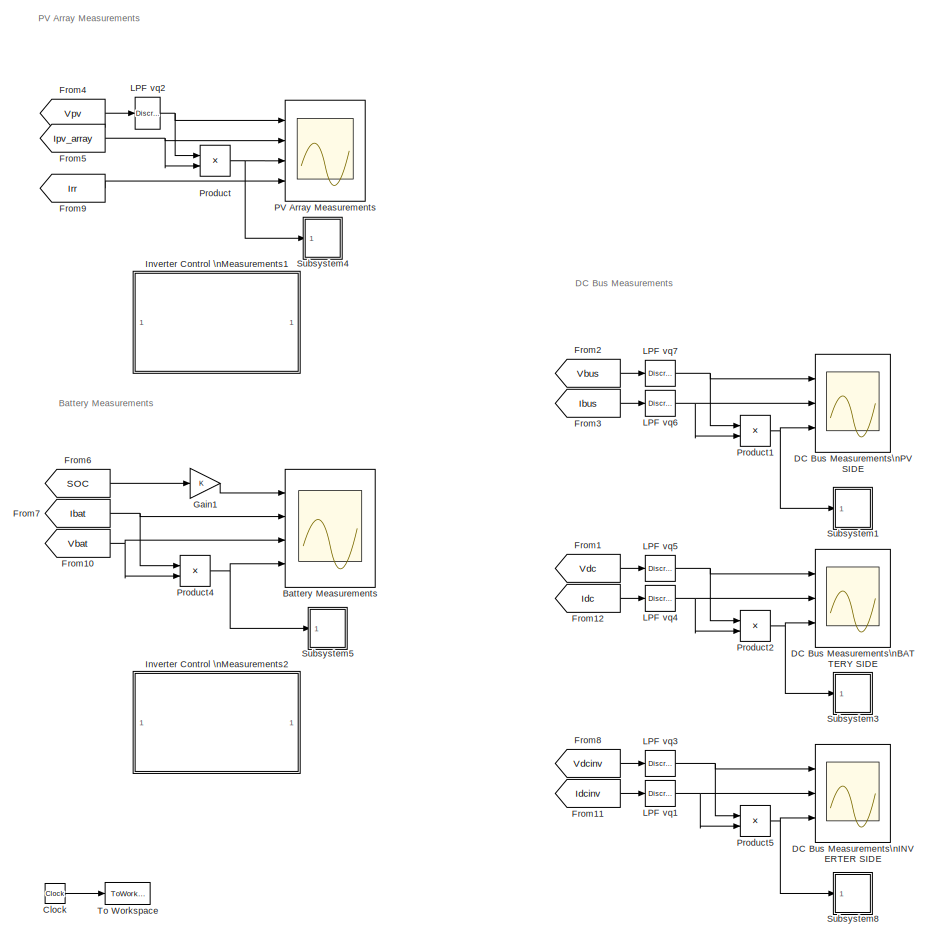
[diagram: Subsystem - part 1/2, left side, full height]
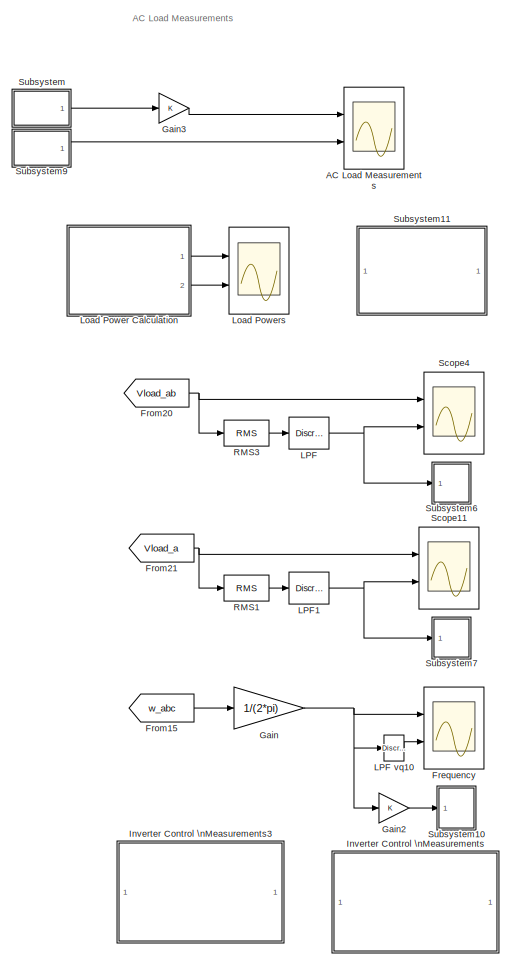
[diagram: Subsystem - part 2/2, right side, full height]
BLOCK [SubSystem] Subsystem
  Ports = []
  RequestExecContextInheritance = off
  SID = 1362
BLOCK [Scope] Subsystem/AC Load Measurements
  Floating = off
  NumInputPorts = 2
  Ports = [2]
  SID = 1494
  ScopeSpecificationString = C++SS(StrPVP('Location','[5, 47, 1601, 894]'),StrPVP('Open','off'),StrPVP('ZoomMode','xonly'),MxPVP('AxesTitles',53,'struct(''axes1'',''AC Load Voltages Phase to Ground, Vabc (V)'',''axes2'',''AC Load Currents, Iabc (A)'')'),MxPVP('ScopeGraphics',56,'struct(''FigureColor'',''[0.5 0.5 0.5]'',''AxesColor'',''[0 0 0]'',''AxesTickColor'',''[1 1 1]'',''LineColors'',''[1 1 0;1 0 1;0 1 1;1 0 0;0 1 0;0 0 ...<+431ch>
BLOCK [Scope] Subsystem/Battery Measurements
  Floating = off
  NumInputPorts = 4
  Ports = [4]
  SID = 1363
  ScopeSpecificationString = C++SS(StrPVP('Location','[5, 48, 1605, 859]'),StrPVP('Open','off'),StrPVP('ZoomMode','yonly'),MxPVP('AxesTitles',53,'struct(''axes1'',''Battery State Of Charge, SOC (%)'',''axes2'',''Battery Current, Ibat (A)'',''axes3'',''Battery Voltage, Vbat (V)'',''axes4'',''Battery Power, (W)'')'),MxPVP('ScopeGraphics',56,'struct(''FigureColor'',''[0.5 0.5 0.5]'',''AxesColor'',''[0 0 0]'',''AxesTickColor'',''...<+522ch>
BLOCK [Clock] Subsystem/Clock
  SID = 1539
BLOCK [Scope] Subsystem/DC Bus Measurements\nBATTERY SIDE
  Floating = off
  NumInputPorts = 3
  Ports = [3]
  SID = 1382
  ScopeSpecificationString = C++SS(StrPVP('Location','[1, 485, 905, 899]'),StrPVP('Open','off'),StrPVP('ZoomMode','yonly'),MxPVP('AxesTitles',53,'struct(''axes1'',''DC Bus Voltage Battery Side, Vdc (V)'',''axes2'',''DC Bus Current Battery Side, Idc (A)'',''axes3'',''DC Bus Power Battery Side, Pdc (W)'')'),MxPVP('ScopeGraphics',56,'struct(''FigureColor'',''[0.5 0.5 0.5]'',''AxesColor'',''[0 0 0]'',''AxesTickColor'',''[1 1 1]''...<+537ch>
BLOCK [Scope] Subsystem/DC Bus Measurements\nINVERTER SIDE
  Floating = off
  NumInputPorts = 3
  Ports = [3]
  SID = 1542
  ScopeSpecificationString = C++SS(StrPVP('Location','[5, 150, 1609, 1005]'),StrPVP('Open','off'),StrPVP('ZoomMode','yonly'),MxPVP('AxesTitles',53,'struct(''axes1'',''DC Bus Voltage Inverter Side, Vdcinv (V)'',''axes2'',''DC Bus Current Inverter Side, Idcinv (A)'',''axes3'',''DC Bus Power Inverter Side, Pdcinv (W)'')'),MxPVP('ScopeGraphics',56,'struct(''FigureColor'',''[0.5 0.5 0.5]'',''AxesColor'',''[0 0 0]'',''AxesTickColor...<+575ch>
BLOCK [Scope] Subsystem/DC Bus Measurements\nPV SIDE
  Floating = off
  NumInputPorts = 3
  Ports = [3]
  SID = 1395
  ScopeSpecificationString = C++SS(StrPVP('Location','[-70, 81, 1534, 936]'),StrPVP('Open','off'),StrPVP('ZoomMode','yonly'),MxPVP('AxesTitles',53,'struct(''axes1'',''DC Bus Voltage PV Side, Vbus (V)'',''axes2'',''DC Bus Current PV Side, Ibus (A)'',''axes3'',''DC Bus Power PV Side, Pbus (W)'')'),MxPVP('ScopeGraphics',56,'struct(''FigureColor'',''[0.5 0.5 0.5]'',''AxesColor'',''[0 0 0]'',''AxesTickColor'',''[1 1 1]'',''LineCol...<+497ch>
BLOCK [Scope] Subsystem/Frequency
  Floating = off
  NumInputPorts = 2
  Ports = [2]
  SID = 2109
  ScopeSpecificationString = C++SS(StrPVP('Location','[266, 98, 1050, 894]'),StrPVP('Open','off'),StrPVP('ZoomMode','yonly'),MxPVP('AxesTitles',53,'struct(''axes1'',''Frequency (Hz)'',''axes2'',''Frequency Filtered (Hz)'')'),MxPVP('ScopeGraphics',56,'struct(''FigureColor'',''[0.5 0.5 0.5]'',''AxesColor'',''[0 0 0]'',''AxesTickColor'',''[1 1 1]'',''LineColors'',''[1 1 0;1 0 1;0 1 1;1 0 0;0 1 0;0 0 1]'',''LineStyles'',''-|-|-|-...<+422ch>
BLOCK [From] Subsystem/From1
  GotoTag = Vdc
  SID = 1383
  TagVisibility = global
BLOCK [From] Subsystem/From10
  GotoTag = Vbat
  SID = 1367
  TagVisibility = global
BLOCK [From] Subsystem/From11
  GotoTag = Idcinv
  SID = 1544
  TagVisibility = global
BLOCK [From] Subsystem/From12
  GotoTag = Idc
  SID = 1385
  TagVisibility = global
BLOCK [From] Subsystem/From15
  GotoTag = w_abc
  SID = 2100
  TagVisibility = global
BLOCK [From] Subsystem/From2
  GotoTag = Vbus
  SID = 1396
  TagVisibility = global
BLOCK [From] Subsystem/From20
  GotoTag = Vload_ab
  SID = 1414
  TagVisibility = global
BLOCK [From] Subsystem/From21
  GotoTag = Vload_a
  SID = 1415
  TagVisibility = global
BLOCK [From] Subsystem/From3
  GotoTag = Ibus
  SID = 1397
  TagVisibility = global
BLOCK [From] Subsystem/From4
  GotoTag = Vpv
  SID = 241
  TagVisibility = global
BLOCK [From] Subsystem/From5
  GotoTag = Ipv_array
  SID = 242
  TagVisibility = global
BLOCK [From] Subsystem/From6
  GotoTag = SOC
  SID = 1372
  TagVisibility = global
BLOCK [From] Subsystem/From7
  GotoTag = Ibat
  SID = 1373
  TagVisibility = global
BLOCK [From] Subsystem/From8
  GotoTag = Vdcinv
  SID = 1543
  TagVisibility = global
BLOCK [From] Subsystem/From9
  GotoTag = Irr
  SID = 243
  TagVisibility = global
BLOCK [Gain] Subsystem/Gain
  Gain = 1/(2*pi)
  OutDataTypeStr = Inherit: Inherit via internal rule
  ParamDataTypeStr = Inherit: Inherit via internal rule
  SID = 2101
  SaturateOnIntegerOverflow = off
BLOCK [Gain] Subsystem/Gain1
  OutDataTypeStr = Inherit: Inherit via internal rule
  ParamDataTypeStr = Inherit: Inherit via internal rule
  SID = 2620
  SaturateOnIntegerOverflow = off
BLOCK [Gain] Subsystem/Gain2
  OutDataTypeStr = Inherit: Inherit via internal rule
  ParamDataTypeStr = Inherit: Inherit via internal rule
  SID = 2621
  SaturateOnIntegerOverflow = off
BLOCK [Gain] Subsystem/Gain3
  OutDataTypeStr = Inherit: Inherit via internal rule
  ParamDataTypeStr = Inherit: Inherit via internal rule
  SID = 2622
  SaturateOnIntegerOverflow = off
BLOCK [SubSystem] Subsystem/Inverter Control \nMeasurements
  Ports = []
  RequestExecContextInheritance = off
  SID = 1417
BLOCK [Scope] Subsystem/Inverter Control \nMeasurements/Current Control Loop
  Floating = off
  NumInputPorts = 2
  Ports = [2]
  SID = 1418
  ScopeSpecificationString = C++SS(StrPVP('Location','[729, 165, 1513, 961]'),StrPVP('Open','off'),StrPVP('ZoomMode','yonly'),MxPVP('AxesTitles',53,'struct(''axes1'',''d Reference Frame Current Controller, id / id* (A)'',''axes2'',''q Reference Frame Current Controller, iq / iq* (A)'')'),StrPVP('ShowLegends','off'),StrPVP('TimeRange','1               '),StrPVP('YMin','167.5~-97.5'),StrPVP('YMax','195~-40'),StrPVP('DataFormat'...<+152ch>
BLOCK [Scope] Subsystem/Inverter Control \nMeasurements/Frequency Reference
  Floating = off
  NumInputPorts = 2
  Ports = [2]
  SID = 1419
  ScopeSpecificationString = C++SS(StrPVP('Location','[5, 48, 1921, 1169]'),StrPVP('Open','off'),StrPVP('ZoomMode','xonly'),MxPVP('AxesTitles',53,'struct(''axes1'',''Frequency Reference, f* (Hz)'',''axes2'',''Angle Reference, theta (rad)'')'),StrPVP('ShowLegends','off'),StrPVP('TimeRange','4'),StrPVP('YMin','-100~-5'),StrPVP('YMax','80~5'),StrPVP('SaveName','ScopeData1'),StrPVP('DataFormat','StructureWithTime'),StrPVP('LimitD...<+116ch>
BLOCK [From] Subsystem/Inverter Control \nMeasurements/From11
  GotoTag = f_ref
  SID = 1420
  TagVisibility = global
BLOCK [From] Subsystem/Inverter Control \nMeasurements/From12
  GotoTag = iq_ref
  SID = 1421
  TagVisibility = global
BLOCK [From] Subsystem/Inverter Control \nMeasurements/From13
  GotoTag = theta
  SID = 1422
  TagVisibility = global
BLOCK [From] Subsystem/Inverter Control \nMeasurements/From15
  GotoTag = m_index
  SID = 1423
  TagVisibility = global
BLOCK [From] Subsystem/Inverter Control \nMeasurements/From16
  GotoTag = pulses
  SID = 1424
  TagVisibility = global
BLOCK [From] Subsystem/Inverter Control \nMeasurements/From2
  GotoTag = vd
  SID = 1425
  TagVisibility = global
BLOCK [From] Subsystem/Inverter Control \nMeasurements/From20
  GotoTag = Vabc_ref
  SID = 1426
  TagVisibility = global
BLOCK [From] Subsystem/Inverter Control \nMeasurements/From3
  GotoTag = vd_ref
  SID = 1427
  TagVisibility = global
BLOCK [From] Subsystem/Inverter Control \nMeasurements/From4
  GotoTag = vq
  SID = 1428
  TagVisibility = global
BLOCK [From] Subsystem/Inverter Control \nMeasurements/From5
  GotoTag = vq_ref
  SID = 1429
  TagVisibility = global
BLOCK [From] Subsystem/Inverter Control \nMeasurements/From6
  GotoTag = id
  SID = 1430
  TagVisibility = global
BLOCK [From] Subsystem/Inverter Control \nMeasurements/From8
  GotoTag = id_ref
  SID = 1431
  TagVisibility = global
BLOCK [From] Subsystem/Inverter Control \nMeasurements/From9
  GotoTag = iq
  SID = 1432
  TagVisibility = global
BLOCK [Mux] Subsystem/Inverter Control \nMeasurements/Mux
  DisplayOption = bar
  Inputs = 2
  Ports = [2, 1]
  SID = 1433
BLOCK [Mux] Subsystem/Inverter Control \nMeasurements/Mux2
  DisplayOption = bar
  Inputs = 2
  Ports = [2, 1]
  SID = 1434
BLOCK [Mux] Subsystem/Inverter Control \nMeasurements/Mux3
  DisplayOption = bar
  Inputs = 2
  Ports = [2, 1]
  SID = 1435
BLOCK [Mux] Subsystem/Inverter Control \nMeasurements/Mux4
  DisplayOption = bar
  Inputs = 2
  Ports = [2, 1]
  SID = 1436
BLOCK [Scope] Subsystem/Inverter Control \nMeasurements/PWM
  Floating = off
  NumInputPorts = 2
  Ports = [2]
  SID = 1437
  ScopeSpecificationString = C++SS(StrPVP('Location','[495, 254, 1279, 1050]'),StrPVP('Open','off'),StrPVP('ZoomMode','xonly'),MxPVP('AxesTitles',53,'struct(''axes1'',''Modulation Index'',''axes2'',''Pulses'')'),StrPVP('ShowLegends','off'),StrPVP('TimeRange','4'),StrPVP('YMin','-100~-5'),StrPVP('YMax','80~5'),StrPVP('SaveName','ScopeData2'),StrPVP('DataFormat','StructureWithTime'),StrPVP('LimitDataPoints','off'),StrPVP('Block...<+85ch>
BLOCK [SubSystem] Subsystem/Inverter Control \nMeasurements/Subsystem1
  Ports = [1]
  RequestExecContextInheritance = off
  SID = 1438
BLOCK [ToWorkspace] Subsystem/Inverter Control \nMeasurements/Subsystem1/To Workspace1
  MaxDataPoints = inf
  Ports = [1]
  SID = 1440
  SampleTime = -1
  VariableName = vd_ref
BLOCK [ZeroOrderHold] Subsystem/Inverter Control \nMeasurements/Subsystem1/Zero-Order\nHold1
  SID = 1441
  SampleTime = 5e-6
BLOCK [Inport] Subsystem/Inverter Control \nMeasurements/Subsystem1/vd_ref
  IconDisplay = Port number
  SID = 1439
BLOCK [SubSystem] Subsystem/Inverter Control \nMeasurements/Subsystem10
  Ports = [1]
  RequestExecContextInheritance = off
  SID = 1442
BLOCK [ToWorkspace] Subsystem/Inverter Control \nMeasurements/Subsystem10/To Workspace1
  MaxDataPoints = inf
  Ports = [1]
  SID = 1444
  SampleTime = -1
  VariableName = f_ref
BLOCK [ZeroOrderHold] Subsystem/Inverter Control \nMeasurements/Subsystem10/Zero-Order\nHold1
  SID = 1445
  SampleTime = 5e-6
BLOCK [Inport] Subsystem/Inverter Control \nMeasurements/Subsystem10/f_ref
  IconDisplay = Port number
  SID = 1443
BLOCK [SubSystem] Subsystem/Inverter Control \nMeasurements/Subsystem11
  Ports = [1]
  RequestExecContextInheritance = off
  SID = 1446
BLOCK [ToWorkspace] Subsystem/Inverter Control \nMeasurements/Subsystem11/To Workspace1
  MaxDataPoints = inf
  Ports = [1]
  SID = 1448
  SampleTime = -1
  VariableName = theta
BLOCK [ZeroOrderHold] Subsystem/Inverter Control \nMeasurements/Subsystem11/Zero-Order\nHold1
  SID = 1449
  SampleTime = 5e-6
BLOCK [Inport] Subsystem/Inverter Control \nMeasurements/Subsystem11/theta
  IconDisplay = Port number
  SID = 1447
BLOCK [SubSystem] Subsystem/Inverter Control \nMeasurements/Subsystem12
  Ports = [1]
  RequestExecContextInheritance = off
  SID = 1450
BLOCK [ToWorkspace] Subsystem/Inverter Control \nMeasurements/Subsystem12/To Workspace1
  MaxDataPoints = inf
  Ports = [1]
  SID = 1452
  SampleTime = -1
  VariableName = m_index
BLOCK [ZeroOrderHold] Subsystem/Inverter Control \nMeasurements/Subsystem12/Zero-Order\nHold1
  SID = 1453
  SampleTime = 5e-6
BLOCK [Inport] Subsystem/Inverter Control \nMeasurements/Subsystem12/m_index
  IconDisplay = Port number
  SID = 1451
BLOCK [SubSystem] Subsystem/Inverter Control \nMeasurements/Subsystem13
  Ports = [1]
  RequestExecContextInheritance = off
  SID = 1454
BLOCK [ToWorkspace] Subsystem/Inverter Control \nMeasurements/Subsystem13/To Workspace1
  MaxDataPoints = inf
  Ports = [1]
  SID = 1456
  SampleTime = -1
  VariableName = pulses
BLOCK [ZeroOrderHold] Subsystem/Inverter Control \nMeasurements/Subsystem13/Zero-Order\nHold1
  SID = 1457
  SampleTime = 5e-6
BLOCK [Inport] Subsystem/Inverter Control \nMeasurements/Subsystem13/pulses
  IconDisplay = Port number
  SID = 1455
BLOCK [SubSystem] Subsystem/Inverter Control \nMeasurements/Subsystem2
  Ports = [1]
  RequestExecContextInheritance = off
  SID = 1458
BLOCK [ToWorkspace] Subsystem/Inverter Control \nMeasurements/Subsystem2/To Workspace1
  MaxDataPoints = inf
  Ports = [1]
  SID = 1460
  SampleTime = -1
  VariableName = vq_ref
BLOCK [ZeroOrderHold] Subsystem/Inverter Control \nMeasurements/Subsystem2/Zero-Order\nHold1
  SID = 1461
  SampleTime = 5e-6
BLOCK [Inport] Subsystem/Inverter Control \nMeasurements/Subsystem2/vq_ref
  IconDisplay = Port number
  SID = 1459
BLOCK [SubSystem] Subsystem/Inverter Control \nMeasurements/Subsystem3
  Ports = [1]
  RequestExecContextInheritance = off
  SID = 1462
BLOCK [ToWorkspace] Subsystem/Inverter Control \nMeasurements/Subsystem3/To Workspace1
  MaxDataPoints = inf
  Ports = [1]
  SID = 1464
  SampleTime = -1
  VariableName = vd
BLOCK [ZeroOrderHold] Subsystem/Inverter Control \nMeasurements/Subsystem3/Zero-Order\nHold1
  SID = 1465
  SampleTime = 5e-6
BLOCK [Inport] Subsystem/Inverter Control \nMeasurements/Subsystem3/vd
  IconDisplay = Port number
  SID = 1463
BLOCK [SubSystem] Subsystem/Inverter Control \nMeasurements/Subsystem4
  Ports = [1]
  RequestExecContextInheritance = off
  SID = 1466
BLOCK [ToWorkspace] Subsystem/Inverter Control \nMeasurements/Subsystem4/To Workspace1
  MaxDataPoints = inf
  Ports = [1]
  SID = 1468
  SampleTime = -1
  VariableName = vq
BLOCK [ZeroOrderHold] Subsystem/Inverter Control \nMeasurements/Subsystem4/Zero-Order\nHold1
  SID = 1469
  SampleTime = 5e-6
BLOCK [Inport] Subsystem/Inverter Control \nMeasurements/Subsystem4/vq
  IconDisplay = Port number
  SID = 1467
BLOCK [SubSystem] Subsystem/Inverter Control \nMeasurements/Subsystem5
  Ports = [1]
  RequestExecContextInheritance = off
  SID = 1470
BLOCK [ToWorkspace] Subsystem/Inverter Control \nMeasurements/Subsystem5/To Workspace1
  MaxDataPoints = inf
  Ports = [1]
  SID = 1472
  SampleTime = -1
  VariableName = id_ref
BLOCK [ZeroOrderHold] Subsystem/Inverter Control \nMeasurements/Subsystem5/Zero-Order\nHold1
  SID = 1473
  SampleTime = 5e-6
BLOCK [Inport] Subsystem/Inverter Control \nMeasurements/Subsystem5/id_ref
  IconDisplay = Port number
  SID = 1471
BLOCK [SubSystem] Subsystem/Inverter Control \nMeasurements/Subsystem6
  Ports = [1]
  RequestExecContextInheritance = off
  SID = 1474
BLOCK [ToWorkspace] Subsystem/Inverter Control \nMeasurements/Subsystem6/To Workspace1
  MaxDataPoints = inf
  Ports = [1]
  SID = 1476
  SampleTime = -1
  VariableName = id
BLOCK [ZeroOrderHold] Subsystem/Inverter Control \nMeasurements/Subsystem6/Zero-Order\nHold1
  SID = 1477
  SampleTime = 5e-6
BLOCK [Inport] Subsystem/Inverter Control \nMeasurements/Subsystem6/id
  IconDisplay = Port number
  SID = 1475
BLOCK [SubSystem] Subsystem/Inverter Control \nMeasurements/Subsystem7
  Ports = [1]
  RequestExecContextInheritance = off
  SID = 1478
BLOCK [ToWorkspace] Subsystem/Inverter Control \nMeasurements/Subsystem7/To Workspace1
  MaxDataPoints = inf
  Ports = [1]
  SID = 1480
  SampleTime = -1
  VariableName = iq_ref
BLOCK [ZeroOrderHold] Subsystem/Inverter Control \nMeasurements/Subsystem7/Zero-Order\nHold1
  SID = 1481
  SampleTime = 5e-6
BLOCK [Inport] Subsystem/Inverter Control \nMeasurements/Subsystem7/iq_ref
  IconDisplay = Port number
  SID = 1479
BLOCK [SubSystem] Subsystem/Inverter Control \nMeasurements/Subsystem8
  Ports = [1]
  RequestExecContextInheritance = off
  SID = 1482
BLOCK [ToWorkspace] Subsystem/Inverter Control \nMeasurements/Subsystem8/To Workspace1
  MaxDataPoints = inf
  Ports = [1]
  SID = 1484
  SampleTime = -1
  VariableName = iq
BLOCK [ZeroOrderHold] Subsystem/Inverter Control \nMeasurements/Subsystem8/Zero-Order\nHold1
  SID = 1485
  SampleTime = 5e-6
BLOCK [Inport] Subsystem/Inverter Control \nMeasurements/Subsystem8/iq
  IconDisplay = Port number
  SID = 1483
BLOCK [SubSystem] Subsystem/Inverter Control \nMeasurements/Subsystem9
  Ports = [1]
  RequestExecContextInheritance = off
  SID = 1486
BLOCK [ToWorkspace] Subsystem/Inverter Control \nMeasurements/Subsystem9/To Workspace1
  MaxDataPoints = inf
  Ports = [1]
  SID = 1488
  SampleTime = -1
  VariableName = Vabc_ref
BLOCK [Inport] Subsystem/Inverter Control \nMeasurements/Subsystem9/Vabc_ref
  IconDisplay = Port number
  SID = 1487
BLOCK [ZeroOrderHold] Subsystem/Inverter Control \nMeasurements/Subsystem9/Zero-Order\nHold1
  SID = 1489
  SampleTime = 5e-6
BLOCK [Scope] Subsystem/Inverter Control \nMeasurements/Voltage Control Loop
  Floating = off
  NumInputPorts = 2
  Ports = [2]
  SID = 1490
  ScopeSpecificationString = C++SS(StrPVP('Location','[729, 166, 1513, 962]'),StrPVP('Open','off'),StrPVP('ZoomMode','yonly'),MxPVP('AxesTitles',53,'struct(''axes1'',''d Reference Frame Voltage Controller, vd / vd* (V)'',''axes2'',''q Reference Frame Voltage Controller, vq / vq* (V)'')'),StrPVP('ShowLegends','off'),StrPVP('TimeRange','1'),StrPVP('YMin','162.5~-100'),StrPVP('YMax','207.5~100'),StrPVP('SaveName','ScopeData3'),S...<+170ch>
BLOCK [Scope] Subsystem/Inverter Control \nMeasurements/Voltage References
  Floating = off
  NumInputPorts = 1
  Ports = [1]
  SID = 1491
  ScopeSpecificationString = C++SS(StrPVP('Location','[712, 253, 1496, 1049]'),StrPVP('Open','off'),StrPVP('ZoomMode','xonly'),MxPVP('AxesTitles',53,'struct(''axes1'',''Voltage References, Vabc* (V)'')'),StrPVP('ShowLegends','off'),StrPVP('TimeRange','4'),StrPVP('YMin','-100'),StrPVP('YMax','80'),StrPVP('SaveName','ScopeData4'),StrPVP('DataFormat','StructureWithTime'),StrPVP('LimitDataPoints','off'),StrPVP('BlockParamSampleTi...<+72ch>
BLOCK [SubSystem] Subsystem/Inverter Control \nMeasurements1
  Ports = []
  RequestExecContextInheritance = off
  SID = 1551
BLOCK [Scope] Subsystem/Inverter Control \nMeasurements1/Boost Converter Control\nMPPT
  Floating = off
  NumInputPorts = 3
  Ports = [3]
  SID = 1769
  ScopeSpecificationString = C++SS(StrPVP('Location','[729, 166, 1513, 962]'),StrPVP('Open','off'),StrPVP('ZoomMode','yonly'),MxPVP('AxesTitles',53,'struct(''axes1'',''Reference Voltage of the PV Array, Vref (V)'',''axes2'',''Modulation Index'',''axes3'',''Switch pulses'')'),StrPVP('ShowLegends','off'),StrPVP('TimeRange','1'),StrPVP('YMin','162.5~-100~-5'),StrPVP('YMax','207.5~100~5'),StrPVP('SaveName','ScopeData16'),StrPVP('...<+163ch>
BLOCK [From] Subsystem/Inverter Control \nMeasurements1/From5
  GotoTag = Vref
  SID = 1766
  TagVisibility = global
BLOCK [From] Subsystem/Inverter Control \nMeasurements1/From6
  GotoTag = delta
  SID = 1767
  TagVisibility = global
BLOCK [From] Subsystem/Inverter Control \nMeasurements1/From7
  GotoTag = pulsos
  SID = 1768
  TagVisibility = global
BLOCK [SubSystem] Subsystem/Inverter Control \nMeasurements2
  Ports = []
  RequestExecContextInheritance = off
  SID = 1626
BLOCK [Scope] Subsystem/Inverter Control \nMeasurements2/Control Loops
  Floating = off
  NumInputPorts = 2
  Ports = [2]
  SID = 1699
  ScopeSpecificationString = C++SS(StrPVP('Location','[729, 166, 1513, 962]'),StrPVP('Open','off'),StrPVP('ZoomMode','yonly'),MxPVP('AxesTitles',53,'struct(''axes1'',''DC Bus Voltage Controller, Vdc / Vdc* (V)'',''axes2'',''Battery Current Controller, Ibat / Ibat* (A)'')'),StrPVP('ShowLegends','off'),StrPVP('TimeRange','1'),StrPVP('YMin','162.5~-100'),StrPVP('YMax','207.5~100'),StrPVP('SaveName','ScopeData3'),StrPVP('DataForm...<+155ch>
BLOCK [From] Subsystem/Inverter Control \nMeasurements2/From1
  GotoTag = Vdc
  SID = 1728
  TagVisibility = global
BLOCK [From] Subsystem/Inverter Control \nMeasurements2/From2
  GotoTag = Vdc_ref
  SID = 1729
  TagVisibility = global
BLOCK [From] Subsystem/Inverter Control \nMeasurements2/From3
  GotoTag = Ibat
  SID = 1730
  TagVisibility = global
BLOCK [From] Subsystem/Inverter Control \nMeasurements2/From4
  GotoTag = Ibat_ref
  SID = 1731
  TagVisibility = global
BLOCK [From] Subsystem/Inverter Control \nMeasurements2/From5
  GotoTag = Sign
  SID = 1750
  TagVisibility = global
BLOCK [From] Subsystem/Inverter Control \nMeasurements2/From6
  GotoTag = S1
  SID = 1751
  TagVisibility = global
BLOCK [From] Subsystem/Inverter Control \nMeasurements2/From7
  GotoTag = S2
  SID = 1752
  TagVisibility = global
BLOCK [Mux] Subsystem/Inverter Control \nMeasurements2/Mux
  DisplayOption = bar
  Inputs = 2
  Ports = [2, 1]
  SID = 1642
BLOCK [Mux] Subsystem/Inverter Control \nMeasurements2/Mux2
  DisplayOption = bar
  Inputs = 2
  Ports = [2, 1]
  SID = 1643
BLOCK [Scope] Subsystem/Inverter Control \nMeasurements2/Switch Control
  Floating = off
  NumInputPorts = 3
  Ports = [3]
  SID = 1749
  ScopeSpecificationString = C++SS(StrPVP('Location','[729, 166, 1513, 962]'),StrPVP('Open','off'),StrPVP('ZoomMode','yonly'),MxPVP('AxesTitles',53,'struct(''axes1'',''Current Direction, Sign'',''axes2'',''Switch S1 pulses, Buck Mode Charging'',''axes3'',''Switch S2 pulses, Boost Mode Charging'')'),StrPVP('ShowLegends','off'),StrPVP('TimeRange','1'),StrPVP('YMin','162.5~-100~-5'),StrPVP('YMax','207.5~100~5'),StrPVP('SaveName'...<+187ch>
BLOCK [SubSystem] Subsystem/Inverter Control \nMeasurements3
  Ports = []
  RequestExecContextInheritance = off
  SID = 1974
BLOCK [SubSystem] Subsystem/Inverter Control \nMeasurements3/PLL
  Ports = [1]
  RequestExecContextInheritance = off
  SID = 2056
BLOCK [Demux] Subsystem/Inverter Control \nMeasurements3/PLL/Demux
  DisplayOption = bar
  Outputs = 2
  Ports = [1, 2]
  SID = 2058
BLOCK [Integrator] Subsystem/Inverter Control \nMeasurements3/PLL/Integrator
  Ports = [1, 1]
  SID = 2062
BLOCK [SubSystem] Subsystem/Inverter Control \nMeasurements3/PLL/PI
  Ports = [1, 1]
  RequestExecContextInheritance = off
  SID = 2063
BLOCK [Gain] Subsystem/Inverter Control \nMeasurements3/PLL/PI/Gain1
  Gain = 10
  OutDataTypeStr = Inherit: Inherit via internal rule
  ParamDataTypeStr = Inherit: Inherit via internal rule
  SID = 2065
  SaturateOnIntegerOverflow = off
BLOCK [Gain] Subsystem/Inverter Control \nMeasurements3/PLL/PI/Gain2
  Gain = 100
  OutDataTypeStr = Inherit: Inherit via internal rule
  ParamDataTypeStr = Inherit: Inherit via internal rule
  SID = 2066
  SaturateOnIntegerOverflow = off
BLOCK [Integrator] Subsystem/Inverter Control \nMeasurements3/PLL/PI/Integrator
  Ports = [1, 1]
  SID = 2067
BLOCK [Saturate] Subsystem/Inverter Control \nMeasurements3/PLL/PI/Saturation
  InputPortMap = u0
  LowerLimit = -inf
  Ports = [1, 1]
  SID = 2068
  UpperLimit = inf
BLOCK [Sum] Subsystem/Inverter Control \nMeasurements3/PLL/PI/Sum1
  IconShape = round
  InputSameDT = off
  Inputs = |++
  OutDataTypeStr = Inherit: Inherit via internal rule
  Ports = [2, 1]
  SID = 2069
  SaturateOnIntegerOverflow = off
BLOCK [Inport] Subsystem/Inverter Control \nMeasurements3/PLL/PI/e
  IconDisplay = Port number
  SID = 2064
BLOCK [Outport] Subsystem/Inverter Control \nMeasurements3/PLL/PI/w
  IconDisplay = Port number
  SID = 2070
BLOCK [SubSystem] Subsystem/Inverter Control \nMeasurements3/PLL/Subsystem3
  Ports = [1]
  RequestExecContextInheritance = off
  SID = 2092
BLOCK [Goto] Subsystem/Inverter Control \nMeasurements3/PLL/Subsystem3/Goto2
  GotoTag = w_abc
  SID = 2098
  TagVisibility = global
BLOCK [Reference] Subsystem/Inverter Control \nMeasurements3/PLL/Subsystem3/LPF vq7  REF=powerlib_extras/Discrete \nControl Blocks/Discrete\n1st-Order\nFilter
  FilterType = Lowpass
  Initialize = off
  PlotResponse = off
  Ports = [1, 1]
  SID = 2094
  SourceBlock = powerlib_extras/Discrete \nControl Blocks/Discrete\n1st-Order\nFilter
  SourceProductBaseCode = PS
  SourceProductName = Simscape Electrical
  SourceType = Discrete 1st-Order Filter
  Tc = 10e-3
  Ts = 5e-6
  Vac_Init = [0.8 -25 60]
  Vdc_Init = 0
  param1 = [1 100 0.1]
BLOCK [ToWorkspace] Subsystem/Inverter Control \nMeasurements3/PLL/Subsystem3/To Workspace1
  MaxDataPoints = inf
  Ports = [1]
  SID = 2095
  SampleTime = -1
  VariableName = wabc_real
BLOCK [ToWorkspace] Subsystem/Inverter Control \nMeasurements3/PLL/Subsystem3/To Workspace2
  MaxDataPoints = inf
  Ports = [1]
  SID = 2096
  SampleTime = -1
  VariableName = wabc_real_fil
BLOCK [ZeroOrderHold] Subsystem/Inverter Control \nMeasurements3/PLL/Subsystem3/Zero-Order\nHold
  SID = 2097
  SampleTime = 5e-6
BLOCK [Inport] Subsystem/Inverter Control \nMeasurements3/PLL/Subsystem3/wabc
  IconDisplay = Port number
  SID = 2093
BLOCK [Terminator] Subsystem/Inverter Control \nMeasurements3/PLL/Terminator
  SID = 2091
BLOCK [Inport] Subsystem/Inverter Control \nMeasurements3/PLL/Vabc
  IconDisplay = Port number
  SID = 2057
BLOCK [SubSystem] Subsystem/Inverter Control \nMeasurements3/PLL/abc  - d//q
  Ports = [2, 1]
  RequestExecContextInheritance = off
  SID = 2071
BLOCK [Inport] Subsystem/Inverter Control \nMeasurements3/PLL/abc  - d//q/abc
  IconDisplay = Port number
  SID = 2072
BLOCK [SubSystem] Subsystem/Inverter Control \nMeasurements3/PLL/abc  - d//q/abc  - alfa//beta
  Ports = [1, 1]
  RequestExecContextInheritance = off
  SID = 2074
BLOCK [Mux] Subsystem/Inverter Control \nMeasurements3/PLL/abc  - d//q/abc  - alfa//beta/Mux
  DisplayOption = bar
  Inputs = 2
  Ports = [2, 1]
  SID = 2076
BLOCK [Inport] Subsystem/Inverter Control \nMeasurements3/PLL/abc  - d//q/abc  - alfa//beta/abc
  IconDisplay = Port number
  SID = 2075
BLOCK [Outport] Subsystem/Inverter Control \nMeasurements3/PLL/abc  - d//q/abc  - alfa//beta/alfa//beta
  IconDisplay = Port number
  SID = 2079
BLOCK [Fcn] Subsystem/Inverter Control \nMeasurements3/PLL/abc  - d//q/abc  - alfa//beta/d_s
  Expr = (-1/sqrt(3)*u[2])+(1/sqrt(3)*u[3])
  SID = 2077
BLOCK [Fcn] Subsystem/Inverter Control \nMeasurements3/PLL/abc  - d//q/abc  - alfa//beta/q_s
  Expr = (2/3)*u[1]-(1/3)*u[2]-(1/3)*u[3]
  SID = 2078
BLOCK [SubSystem] Subsystem/Inverter Control \nMeasurements3/PLL/abc  - d//q/alfa//beta - dq
  Ports = [2, 1]
  RequestExecContextInheritance = off
  SID = 2080
BLOCK [Mux] Subsystem/Inverter Control \nMeasurements3/PLL/abc  - d//q/alfa//beta - dq/Mux
  DisplayOption = bar
  Inputs = 2
  Ports = [2, 1]
  SID = 2083
BLOCK [Mux] Subsystem/Inverter Control \nMeasurements3/PLL/abc  - d//q/alfa//beta - dq/Mux1
  DisplayOption = bar
  Inputs = 2
  Ports = [2, 1]
  SID = 2084
BLOCK [Inport] Subsystem/Inverter Control \nMeasurements3/PLL/abc  - d//q/alfa//beta - dq/alfa//beta
  IconDisplay = Port number
  SID = 2081
BLOCK [Fcn] Subsystem/Inverter Control \nMeasurements3/PLL/abc  - d//q/alfa//beta - dq/d
  Expr = u[2]*sin(u[3]) + u[1]*cos(u[3])
  SID = 2085
BLOCK [Outport] Subsystem/Inverter Control \nMeasurements3/PLL/abc  - d//q/alfa//beta - dq/d//q
  IconDisplay = Port number
  SID = 2087
BLOCK [Fcn] Subsystem/Inverter Control \nMeasurements3/PLL/abc  - d//q/alfa//beta - dq/q
  Expr = -u[1]*sin(u[3]) + u[2]*cos(u[3])
  SID = 2086
BLOCK [Inport] Subsystem/Inverter Control \nMeasurements3/PLL/abc  - d//q/alfa//beta - dq/tita
  IconDisplay = Port number
  Port = 2
  SID = 2082
BLOCK [Outport] Subsystem/Inverter Control \nMeasurements3/PLL/abc  - d//q/d//q
  IconDisplay = Port number
  SID = 2088
BLOCK [Inport] Subsystem/Inverter Control \nMeasurements3/PLL/abc  - d//q/tita
  IconDisplay = Port number
  Port = 2
  SID = 2073
BLOCK [SubSystem] Subsystem/Inverter Control \nMeasurements3/Subsystem
  Ports = [0, 1]
  RequestExecContextInheritance = off
  SID = 2089
BLOCK [From] Subsystem/Inverter Control \nMeasurements3/Subsystem/From15
  GotoTag = Vab
  SID = 2049
  TagVisibility = global
BLOCK [From] Subsystem/Inverter Control \nMeasurements3/Subsystem/From16
  GotoTag = Vbc
  SID = 2050
  TagVisibility = global
BLOCK [From] Subsystem/Inverter Control \nMeasurements3/Subsystem/From17
  GotoTag = Vca
  SID = 2051
  TagVisibility = global
BLOCK [Reference] Subsystem/Inverter Control \nMeasurements3/Subsystem/LPF vq2  REF=powerlib_extras/Discrete \nControl Blocks/Discrete\n1st-Order\nFilter
  FilterType = Lowpass
  Initialize = off
  PlotResponse = off
  Ports = [1, 1]
  SID = 2052
  SourceBlock = powerlib_extras/Discrete \nControl Blocks/Discrete\n1st-Order\nFilter
  SourceProductBaseCode = PS
  SourceProductName = Simscape Electrical
  SourceType = Discrete 1st-Order Filter
  Tc = 10e-3
  Ts = 5e-6
  Vac_Init = [0.8 -25 60]
  Vdc_Init = 0
  param1 = [1 100 0.1]
BLOCK [Reference] Subsystem/Inverter Control \nMeasurements3/Subsystem/LPF vq3  REF=powerlib_extras/Discrete \nControl Blocks/Discrete\n1st-Order\nFilter
  FilterType = Lowpass
  Initialize = off
  PlotResponse = off
  Ports = [1, 1]
  SID = 2053
  SourceBlock = powerlib_extras/Discrete \nControl Blocks/Discrete\n1st-Order\nFilter
  SourceProductBaseCode = PS
  SourceProductName = Simscape Electrical
  SourceType = Discrete 1st-Order Filter
  Tc = 10e-3
  Ts = 5e-6
  Vac_Init = [0.8 -25 60]
  Vdc_Init = 0
  param1 = [1 100 0.1]
BLOCK [Reference] Subsystem/Inverter Control \nMeasurements3/Subsystem/LPF vq4  REF=powerlib_extras/Discrete \nControl Blocks/Discrete\n1st-Order\nFilter
  FilterType = Lowpass
  Initialize = off
  PlotResponse = off
  Ports = [1, 1]
  SID = 2054
  SourceBlock = powerlib_extras/Discrete \nControl Blocks/Discrete\n1st-Order\nFilter
  SourceProductBaseCode = PS
  SourceProductName = Simscape Electrical
  SourceType = Discrete 1st-Order Filter
  Tc = 10e-3
  Ts = 5e-6
  Vac_Init = [0.8 -25 60]
  Vdc_Init = 0
  param1 = [1 100 0.1]
BLOCK [Mux] Subsystem/Inverter Control \nMeasurements3/Subsystem/Mux
  DisplayOption = bar
  Inputs = 3
  Ports = [3, 1]
  SID = 2055
BLOCK [Outport] Subsystem/Inverter Control \nMeasurements3/Subsystem/Vabc
  IconDisplay = Port number
  SID = 2090
BLOCK [Reference] Subsystem/LPF  REF=powerlib_extras/Discrete \nControl Blocks/Discrete\n1st-Order\nFilter
  FilterType = Lowpass
  Initialize = off
  PlotResponse = off
  Ports = [1, 1]
  SID = 1492
  SourceBlock = powerlib_extras/Discrete \nControl Blocks/Discrete\n1st-Order\nFilter
  SourceProductBaseCode = PS
  SourceProductName = Simscape Electrical
  SourceType = Discrete 1st-Order Filter
  Tc = 10e-3
  Ts = 5e-6
  Vac_Init = [0.8 -25 60]
  Vdc_Init = 0
  param1 = [1 100 0.1]
BLOCK [Reference] Subsystem/LPF vq1  REF=powerlib_extras/Discrete \nControl Blocks/Discrete\n1st-Order\nFilter
  FilterType = Lowpass
  Initialize = off
  PlotResponse = off
  Ports = [1, 1]
  SID = 1790
  SourceBlock = powerlib_extras/Discrete \nControl Blocks/Discrete\n1st-Order\nFilter
  SourceProductBaseCode = PS
  SourceProductName = Simscape Electrical
  SourceType = Discrete 1st-Order Filter
  Tc = 10e-3
  Ts = 5e-6
  Vac_Init = [0.8 -25 60]
  Vdc_Init = 0
  param1 = [1 100 0.1]
BLOCK [Reference] Subsystem/LPF vq10  REF=powerlib_extras/Discrete \nControl Blocks/Discrete\n1st-Order\nFilter
  FilterType = Lowpass
  Initialize = off
  PlotResponse = off
  Ports = [1, 1]
  SID = 2102
  SourceBlock = powerlib_extras/Discrete \nControl Blocks/Discrete\n1st-Order\nFilter
  SourceProductBaseCode = PS
  SourceProductName = Simscape Electrical
  SourceType = Discrete 1st-Order Filter
  Tc = 10e-3
  Ts = 5e-6
  Vac_Init = [0.8 -25 60]
  Vdc_Init = 0
  param1 = [1 100 0.1]
BLOCK [Reference] Subsystem/LPF vq2  REF=powerlib_extras/Discrete \nControl Blocks/Discrete\n1st-Order\nFilter
  FilterType = Lowpass
  Initialize = off
  PlotResponse = off
  Ports = [1, 1]
  SID = 1778
  SourceBlock = powerlib_extras/Discrete \nControl Blocks/Discrete\n1st-Order\nFilter
  SourceProductBaseCode = PS
  SourceProductName = Simscape Electrical
  SourceType = Discrete 1st-Order Filter
  Tc = 10e-3
  Ts = 5e-6
  Vac_Init = [0.8 -25 60]
  Vdc_Init = 0
  param1 = [1 100 0.1]
BLOCK [Reference] Subsystem/LPF vq3  REF=powerlib_extras/Discrete \nControl Blocks/Discrete\n1st-Order\nFilter
  FilterType = Lowpass
  Initialize = off
  PlotResponse = off
  Ports = [1, 1]
  SID = 1791
  SourceBlock = powerlib_extras/Discrete \nControl Blocks/Discrete\n1st-Order\nFilter
  SourceProductBaseCode = PS
  SourceProductName = Simscape Electrical
  SourceType = Discrete 1st-Order Filter
  Tc = 10e-3
  Ts = 5e-6
  Vac_Init = [0.8 -25 60]
  Vdc_Init = 0
  param1 = [1 100 0.1]
BLOCK [Reference] Subsystem/LPF vq4  REF=powerlib_extras/Discrete \nControl Blocks/Discrete\n1st-Order\nFilter
  FilterType = Lowpass
  Initialize = off
  PlotResponse = off
  Ports = [1, 1]
  SID = 1792
  SourceBlock = powerlib_extras/Discrete \nControl Blocks/Discrete\n1st-Order\nFilter
  SourceProductBaseCode = PS
  SourceProductName = Simscape Electrical
  SourceType = Discrete 1st-Order Filter
  Tc = 10e-3
  Ts = 5e-6
  Vac_Init = [0.8 -25 60]
  Vdc_Init = 0
  param1 = [1 100 0.1]
BLOCK [Reference] Subsystem/LPF vq5  REF=powerlib_extras/Discrete \nControl Blocks/Discrete\n1st-Order\nFilter
  FilterType = Lowpass
  Initialize = off
  PlotResponse = off
  Ports = [1, 1]
  SID = 1793
  SourceBlock = powerlib_extras/Discrete \nControl Blocks/Discrete\n1st-Order\nFilter
  SourceProductBaseCode = PS
  SourceProductName = Simscape Electrical
  SourceType = Discrete 1st-Order Filter
  Tc = 10e-3
  Ts = 5e-6
  Vac_Init = [0.8 -25 60]
  Vdc_Init = 0
  param1 = [1 100 0.1]
BLOCK [Reference] Subsystem/LPF vq6  REF=powerlib_extras/Discrete \nControl Blocks/Discrete\n1st-Order\nFilter
  FilterType = Lowpass
  Initialize = off
  PlotResponse = off
  Ports = [1, 1]
  SID = 1794
  SourceBlock = powerlib_extras/Discrete \nControl Blocks/Discrete\n1st-Order\nFilter
  SourceProductBaseCode = PS
  SourceProductName = Simscape Electrical
  SourceType = Discrete 1st-Order Filter
  Tc = 10e-3
  Ts = 5e-6
  Vac_Init = [0.8 -25 60]
  Vdc_Init = 0
  param1 = [1 100 0.1]
BLOCK [Reference] Subsystem/LPF vq7  REF=powerlib_extras/Discrete \nControl Blocks/Discrete\n1st-Order\nFilter
  FilterType = Lowpass
  Initialize = off
  PlotResponse = off
  Ports = [1, 1]
  SID = 1795
  SourceBlock = powerlib_extras/Discrete \nControl Blocks/Discrete\n1st-Order\nFilter
  SourceProductBaseCode = PS
  SourceProductName = Simscape Electrical
  SourceType = Discrete 1st-Order Filter
  Tc = 10e-3
  Ts = 5e-6
  Vac_Init = [0.8 -25 60]
  Vdc_Init = 0
  param1 = [1 100 0.1]
BLOCK [Reference] Subsystem/LPF1  REF=powerlib_extras/Discrete \nControl Blocks/Discrete\n1st-Order\nFilter
  FilterType = Lowpass
  Initialize = off
  PlotResponse = off
  Ports = [1, 1]
  SID = 1493
  SourceBlock = powerlib_extras/Discrete \nControl Blocks/Discrete\n1st-Order\nFilter
  SourceProductBaseCode = PS
  SourceProductName = Simscape Electrical
  SourceType = Discrete 1st-Order Filter
  Tc = 10e-3
  Ts = 5e-6
  Vac_Init = [0.8 -25 60]
  Vdc_Init = 0
  param1 = [1 100 0.1]
BLOCK [SubSystem] Subsystem/Load Power Calculation
  Ports = [0, 2]
  RequestExecContextInheritance = off
  SID = 1495
BLOCK [Constant] Subsystem/Load Power Calculation/Constant
  SID = 1496
  Value = 3/2
BLOCK [Constant] Subsystem/Load Power Calculation/Constant1
  SID = 1497
  Value = 3/2
BLOCK [From] Subsystem/Load Power Calculation/From1
  GotoTag = id
  SID = 1498
  TagVisibility = global
BLOCK [From] Subsystem/Load Power Calculation/From11
  GotoTag = vd
  SID = 1499
  TagVisibility = global
BLOCK [From] Subsystem/Load Power Calculation/From2
  GotoTag = vq
  SID = 1500
  TagVisibility = global
BLOCK [From] Subsystem/Load Power Calculation/From3
  GotoTag = iq
  SID = 1501
  TagVisibility = global
BLOCK [From] Subsystem/Load Power Calculation/From4
  GotoTag = id
  SID = 1502
  TagVisibility = global
BLOCK [From] Subsystem/Load Power Calculation/From5
  GotoTag = vq
  SID = 1503
  TagVisibility = global
BLOCK [From] Subsystem/Load Power Calculation/From6
  GotoTag = vd
  SID = 1504
  TagVisibility = global
BLOCK [From] Subsystem/Load Power Calculation/From7
  GotoTag = iq
  SID = 1505
  TagVisibility = global
BLOCK [Outport] Subsystem/Load Power Calculation/Pload
  IconDisplay = Port number
  SID = 1524
BLOCK [Product] Subsystem/Load Power Calculation/Product1
  InputSameDT = off
  OutDataTypeStr = Inherit: Inherit via internal rule
  Ports = [2, 1]
  SID = 1506
  SaturateOnIntegerOverflow = off
BLOCK [Product] Subsystem/Load Power Calculation/Product2
  InputSameDT = off
  OutDataTypeStr = Inherit: Inherit via internal rule
  Ports = [2, 1]
  SID = 1507
  SaturateOnIntegerOverflow = off
BLOCK [Product] Subsystem/Load Power Calculation/Product3
  InputSameDT = off
  OutDataTypeStr = Inherit: Inherit via internal rule
  Ports = [2, 1]
  SID = 1508
  SaturateOnIntegerOverflow = off
BLOCK [Product] Subsystem/Load Power Calculation/Product4
  InputSameDT = off
  OutDataTypeStr = Inherit: Inherit via internal rule
  Ports = [2, 1]
  SID = 1509
  SaturateOnIntegerOverflow = off
BLOCK [Product] Subsystem/Load Power Calculation/Product5
  InputSameDT = off
  OutDataTypeStr = Inherit: Inherit via internal rule
  Ports = [2, 1]
  SID = 1510
  SaturateOnIntegerOverflow = off
BLOCK [Product] Subsystem/Load Power Calculation/Product6
  InputSameDT = off
  OutDataTypeStr = Inherit: Inherit via internal rule
  Ports = [2, 1]
  SID = 1511
  SaturateOnIntegerOverflow = off
BLOCK [Outport] Subsystem/Load Power Calculation/Qload
  IconDisplay = Port number
  Port = 2
  SID = 1525
BLOCK [SubSystem] Subsystem/Load Power Calculation/Subsystem1
  Ports = [1]
  RequestExecContextInheritance = off
  SID = 1512
BLOCK [Goto] Subsystem/Load Power Calculation/Subsystem1/Goto2
  GotoTag = Qacload
  SID = 1514
  TagVisibility = global
BLOCK [Reference] Subsystem/Load Power Calculation/Subsystem1/LPF vq7  REF=powerlib_extras/Discrete \nControl Blocks/Discrete\n1st-Order\nFilter
  FilterType = Lowpass
  Initialize = off
  PlotResponse = off
  Ports = [1, 1]
  SID = 1813
  SourceBlock = powerlib_extras/Discrete \nControl Blocks/Discrete\n1st-Order\nFilter
  SourceProductBaseCode = PS
  SourceProductName = Simscape Electrical
  SourceType = Discrete 1st-Order Filter
  Tc = 10e-3
  Ts = 5e-6
  Vac_Init = [0.8 -25 60]
  Vdc_Init = 0
  param1 = [1 100 0.1]
BLOCK [Inport] Subsystem/Load Power Calculation/Subsystem1/Qacload
  IconDisplay = Port number
  SID = 1513
BLOCK [ToWorkspace] Subsystem/Load Power Calculation/Subsystem1/To Workspace1
  MaxDataPoints = inf
  Ports = [1]
  SID = 1515
  SampleTime = -1
  VariableName = Qacload
BLOCK [ToWorkspace] Subsystem/Load Power Calculation/Subsystem1/To Workspace2
  MaxDataPoints = inf
  Ports = [1]
  SID = 1812
  SampleTime = -1
  VariableName = Qacload1
BLOCK [ZeroOrderHold] Subsystem/Load Power Calculation/Subsystem1/Zero-Order\nHold
  SID = 1516
  SampleTime = 5e-6
BLOCK [SubSystem] Subsystem/Load Power Calculation/Subsystem2
  Ports = [1]
  RequestExecContextInheritance = off
  SID = 1517
BLOCK [Goto] Subsystem/Load Power Calculation/Subsystem2/Goto2
  GotoTag = Pacload
  SID = 1519
  TagVisibility = global
BLOCK [Reference] Subsystem/Load Power Calculation/Subsystem2/LPF vq7  REF=powerlib_extras/Discrete \nControl Blocks/Discrete\n1st-Order\nFilter
  FilterType = Lowpass
  Initialize = off
  PlotResponse = off
  Ports = [1, 1]
  SID = 1811
  SourceBlock = powerlib_extras/Discrete \nControl Blocks/Discrete\n1st-Order\nFilter
  SourceProductBaseCode = PS
  SourceProductName = Simscape Electrical
  SourceType = Discrete 1st-Order Filter
  Tc = 10e-3
  Ts = 5e-6
  Vac_Init = [0.8 -25 60]
  Vdc_Init = 0
  param1 = [1 100 0.1]
BLOCK [Inport] Subsystem/Load Power Calculation/Subsystem2/Pload
  IconDisplay = Port number
  SID = 1518
BLOCK [ToWorkspace] Subsystem/Load Power Calculation/Subsystem2/To Workspace1
  MaxDataPoints = inf
  Ports = [1]
  SID = 1520
  SampleTime = -1
  VariableName = Pacload
BLOCK [ToWorkspace] Subsystem/Load Power Calculation/Subsystem2/To Workspace2
  MaxDataPoints = inf
  Ports = [1]
  SID = 1810
  SampleTime = -1
  VariableName = Pacload1
BLOCK [ZeroOrderHold] Subsystem/Load Power Calculation/Subsystem2/Zero-Order\nHold
  SID = 1521
  SampleTime = 5e-6
BLOCK [Sum] Subsystem/Load Power Calculation/Sum
  IconShape = round
  InputSameDT = off
  Inputs = +|+
  OutDataTypeStr = Inherit: Inherit via internal rule
  Ports = [2, 1]
  SID = 1522
  SaturateOnIntegerOverflow = off
BLOCK [Sum] Subsystem/Load Power Calculation/Sum1
  IconShape = round
  InputSameDT = off
  Inputs = +|-
  OutDataTypeStr = Inherit: Inherit via internal rule
  Ports = [2, 1]
  SID = 1523
  SaturateOnIntegerOverflow = off
BLOCK [Scope] Subsystem/Load Powers
  Floating = off
  NumInputPorts = 2
  Ports = [2]
  SID = 1526
  ScopeSpecificationString = C++SS(StrPVP('Location','[-21, 92, 1583, 947]'),StrPVP('Open','off'),StrPVP('ZoomMode','yonly'),MxPVP('AxesTitles',53,'struct(''axes1'',''AC Load Active Power, Pacload (W)'',''axes2'',''AC Load Reactive power, Qacload (VAr)'')'),MxPVP('ScopeGraphics',56,'struct(''FigureColor'',''[0.5 0.5 0.5]'',''AxesColor'',''[0 0 0]'',''AxesTickColor'',''[1 1 1]'',''LineColors'',''[1 1 0;1 0 1;0 1 1;1 0 0;0 1 0;...<+466ch>
BLOCK [Scope] Subsystem/PV Array Measurements
  Floating = off
  NumInputPorts = 4
  Ports = [4]
  SID = 1361
  ScopeSpecificationString = C++SS(StrPVP('Location','[5, 48, 1605, 859]'),StrPVP('Open','off'),StrPVP('ZoomMode','xonly'),MxPVP('AxesTitles',53,'struct(''axes1'',''PV Voltage, Vpv (V)'',''axes2'',''PV Current, Ipv (A)'',''axes3'',''PV Power, Ppv (W)'',''axes4'',''Irradiance, Irr (KW/m^2)'')'),MxPVP('ScopeGraphics',56,'struct(''FigureColor'',''[0.5 0.5 0.5]'',''AxesColor'',''[0 0 0]'',''AxesTickColor'',''[1 1 1]'',''LineColor...<+486ch>
BLOCK [Product] Subsystem/Product
  InputSameDT = off
  OutDataTypeStr = Inherit: Inherit via internal rule
  Ports = [2, 1]
  SID = 245
  SaturateOnIntegerOverflow = off
BLOCK [Product] Subsystem/Product1
  InputSameDT = off
  OutDataTypeStr = Inherit: Inherit via internal rule
  Ports = [2, 1]
  SID = 1399
  SaturateOnIntegerOverflow = off
BLOCK [Product] Subsystem/Product2
  InputSameDT = off
  OutDataTypeStr = Inherit: Inherit via internal rule
  Ports = [2, 1]
  SID = 1390
  SaturateOnIntegerOverflow = off
BLOCK [Product] Subsystem/Product4
  InputSameDT = off
  OutDataTypeStr = Inherit: Inherit via internal rule
  Ports = [2, 1]
  SID = 1376
  SaturateOnIntegerOverflow = off
BLOCK [Product] Subsystem/Product5
  InputSameDT = off
  OutDataTypeStr = Inherit: Inherit via internal rule
  Ports = [2, 1]
  SID = 1546
  SaturateOnIntegerOverflow = off
BLOCK [Reference] Subsystem/RMS1  REF=powerlib_extras/Measurements/RMS
  Ports = [1, 1]
  SID = 1527
  SourceBlock = powerlib_extras/Measurements/RMS
  SourceProductBaseCode = PS
  SourceProductName = Simscape Electrical
  SourceType = RMS
  f1 = 60
BLOCK [Reference] Subsystem/RMS3  REF=powerlib_extras/Measurements/RMS
  Ports = [1, 1]
  SID = 1528
  SourceBlock = powerlib_extras/Measurements/RMS
  SourceProductBaseCode = PS
  SourceProductName = Simscape Electrical
  SourceType = RMS
  f1 = 60
BLOCK [Scope] Subsystem/Scope11
  Floating = off
  NumInputPorts = 2
  Ports = [2]
  SID = 1529
  ScopeSpecificationString = C++SS(StrPVP('Location','[266, 98, 1050, 894]'),StrPVP('Open','off'),StrPVP('ZoomMode','yonly'),MxPVP('AxesTitles',53,'struct(''axes1'',''AC Load Voltage Phase A, Vload_a (V)'',''axes2'',''RMS'')'),MxPVP('ScopeGraphics',56,'struct(''FigureColor'',''[0.5 0.5 0.5]'',''AxesColor'',''[0 0 0]'',''AxesTickColor'',''[1 1 1]'',''LineColors'',''[1 1 0;1 0 1;0 1 1;1 0 0;0 1 0;0 0 1]'',''LineStyles'',''-|-|-...<+412ch>
BLOCK [Scope] Subsystem/Scope4
  Floating = off
  NumInputPorts = 2
  Ports = [2]
  SID = 1530
  ScopeSpecificationString = C++SS(StrPVP('Location','[478, 98, 1262, 894]'),StrPVP('Open','off'),StrPVP('ZoomMode','yonly'),MxPVP('AxesTitles',53,'struct(''axes1'',''AC Load Voltage Phase to Phase,  Vab (V)'',''axes2'',''RMS'')'),MxPVP('ScopeGraphics',56,'struct(''FigureColor'',''[0.5 0.5 0.5]'',''AxesColor'',''[0 0 0]'',''AxesTickColor'',''[1 1 1]'',''LineColors'',''[1 1 0;1 0 1;0 1 1;1 0 0;0 1 0;0 0 1]'',''LineStyles'',''-...<+415ch>
BLOCK [SubSystem] Subsystem/Subsystem
  Ports = [0, 1]
  RequestExecContextInheritance = off
  SID = 1724
BLOCK [From] Subsystem/Subsystem/From15
  GotoTag = Vab
  SID = 1717
  TagVisibility = global
BLOCK [From] Subsystem/Subsystem/From16
  GotoTag = Vbc
  SID = 1718
  TagVisibility = global
BLOCK [From] Subsystem/Subsystem/From17
  GotoTag = Vca
  SID = 1719
  TagVisibility = global
BLOCK [Mux] Subsystem/Subsystem/Mux
  DisplayOption = bar
  Inputs = 3
  Ports = [3, 1]
  SID = 1716
BLOCK [Outport] Subsystem/Subsystem/Vabc
  IconDisplay = Port number
  SID = 1725
BLOCK [SubSystem] Subsystem/Subsystem1
  Ports = [1]
  RequestExecContextInheritance = off
  SID = 1400
BLOCK [Goto] Subsystem/Subsystem1/Goto2
  GotoTag = Pbus
  SID = 1402
  TagVisibility = global
BLOCK [Reference] Subsystem/Subsystem1/LPF vq11  REF=powerlib_extras/Discrete \nControl Blocks/Discrete\n1st-Order\nFilter
  FilterType = Lowpass
  Initialize = off
  PlotResponse = off
  Ports = [1, 1]
  SID = 1787
  SourceBlock = powerlib_extras/Discrete \nControl Blocks/Discrete\n1st-Order\nFilter
  SourceProductBaseCode = PS
  SourceProductName = Simscape Electrical
  SourceType = Discrete 1st-Order Filter
  Tc = 10e-3
  Ts = 5e-6
  Vac_Init = [0.8 -25 60]
  Vdc_Init = 0
  param1 = [1 100 0.1]
BLOCK [Inport] Subsystem/Subsystem1/Pbus
  IconDisplay = Port number
  SID = 1401
BLOCK [ToWorkspace] Subsystem/Subsystem1/To Workspace1
  MaxDataPoints = inf
  Ports = [1]
  SID = 1403
  SampleTime = -1
  VariableName = Pbus
BLOCK [ToWorkspace] Subsystem/Subsystem1/To Workspace2
  MaxDataPoints = inf
  Ports = [1]
  SID = 1786
  SampleTime = -1
  VariableName = Pbus1
BLOCK [SubSystem] Subsystem/Subsystem10
  Ports = [1]
  RequestExecContextInheritance = off
  SID = 2103
BLOCK [Reference] Subsystem/Subsystem10/LPF vq7  REF=powerlib_extras/Discrete \nControl Blocks/Discrete\n1st-Order\nFilter
  FilterType = Lowpass
  Initialize = off
  PlotResponse = off
  Ports = [1, 1]
  SID = 2105
  SourceBlock = powerlib_extras/Discrete \nControl Blocks/Discrete\n1st-Order\nFilter
  SourceProductBaseCode = PS
  SourceProductName = Simscape Electrical
  SourceType = Discrete 1st-Order Filter
  Tc = 10e-3
  Ts = 5e-6
  Vac_Init = [0.8 -25 60]
  Vdc_Init = 0
  param1 = [1 100 0.1]
BLOCK [ToWorkspace] Subsystem/Subsystem10/To Workspace1
  MaxDataPoints = inf
  Ports = [1]
  SID = 2106
  SampleTime = -1
  VariableName = fabc_real
BLOCK [ToWorkspace] Subsystem/Subsystem10/To Workspace2
  MaxDataPoints = inf
  Ports = [1]
  SID = 2107
  SampleTime = -1
  VariableName = fabc_real_fil
BLOCK [ZeroOrderHold] Subsystem/Subsystem10/Zero-Order\nHold
  SID = 2108
  SampleTime = 5e-6
BLOCK [Inport] Subsystem/Subsystem10/f
  IconDisplay = Port number
  SID = 2104
BLOCK [SubSystem] Subsystem/Subsystem11
  Ports = []
  RequestExecContextInheritance = off
  SID = 2469
BLOCK [From] Subsystem/Subsystem11/From14
  GotoTag = Vabc3
  SID = 2470
  TagVisibility = global
BLOCK [From] Subsystem/Subsystem11/From17
  GotoTag = Vabc2
  SID = 2471
  TagVisibility = global
BLOCK [From] Subsystem/Subsystem11/From18
  GotoTag = Iabc3
  SID = 2472
  TagVisibility = global
BLOCK [From] Subsystem/Subsystem11/From19
  GotoTag = Iabc2
  SID = 2473
  TagVisibility = global
BLOCK [Reference] Subsystem/Subsystem11/LPF vq2  REF=powerlib_extras/Discrete \nControl Blocks/Discrete\n1st-Order\nFilter
  FilterType = Lowpass
  Initialize = off
  PlotResponse = off
  Ports = [1, 1]
  SID = 2474
  SourceBlock = powerlib_extras/Discrete \nControl Blocks/Discrete\n1st-Order\nFilter
  SourceProductBaseCode = PS
  SourceProductName = Simscape Electrical
  SourceType = Discrete 1st-Order Filter
  Tc = 10e-3
  Ts = 5e-6
  Vac_Init = [0.8 -25 60]
  Vdc_Init = 0
  param1 = [1 100 0.1]
BLOCK [Reference] Subsystem/Subsystem11/LPF vq3  REF=powerlib_extras/Discrete \nControl Blocks/Discrete\n1st-Order\nFilter
  FilterType = Lowpass
  Initialize = off
  PlotResponse = off
  Ports = [1, 1]
  SID = 2475
  SourceBlock = powerlib_extras/Discrete \nControl Blocks/Discrete\n1st-Order\nFilter
  SourceProductBaseCode = PS
  SourceProductName = Simscape Electrical
  SourceType = Discrete 1st-Order Filter
  Tc = 10e-3
  Ts = 5e-6
  Vac_Init = [0.8 -25 60]
  Vdc_Init = 0
  param1 = [1 100 0.1]
BLOCK [Reference] Subsystem/Subsystem11/LPF vq8  REF=powerlib_extras/Discrete \nControl Blocks/Discrete\n1st-Order\nFilter
  FilterType = Lowpass
  Initialize = off
  PlotResponse = off
  Ports = [1, 1]
  SID = 2476
  SourceBlock = powerlib_extras/Discrete \nControl Blocks/Discrete\n1st-Order\nFilter
  SourceProductBaseCode = PS
  SourceProductName = Simscape Electrical
  SourceType = Discrete 1st-Order Filter
  Tc = 10e-3
  Ts = 5e-6
  Vac_Init = [0.8 -25 60]
  Vdc_Init = 0
  param1 = [1 100 0.1]
BLOCK [Reference] Subsystem/Subsystem11/LPF vq9  REF=powerlib_extras/Discrete \nControl Blocks/Discrete\n1st-Order\nFilter
  FilterType = Lowpass
  Initialize = off
  PlotResponse = off
  Ports = [1, 1]
  SID = 2477
  SourceBlock = powerlib_extras/Discrete \nControl Blocks/Discrete\n1st-Order\nFilter
  SourceProductBaseCode = PS
  SourceProductName = Simscape Electrical
  SourceType = Discrete 1st-Order Filter
  Tc = 10e-3
  Ts = 5e-6
  Vac_Init = [0.8 -25 60]
  Vdc_Init = 0
  param1 = [1 100 0.1]
BLOCK [Scope] Subsystem/Subsystem11/Load Measurements1
  Floating = off
  NumInputPorts = 2
  Ports = [2]
  SID = 2478
  ScopeSpecificationString = C++SS(StrPVP('Location','[534, 255, 1318, 1051]'),StrPVP('Open','off'),StrPVP('ZoomMode','yonly'),MxPVP('AxesTitles',53,'struct(''axes1'',''Phase to Ground Load Voltages, Vabc (V)'',''axes2'',''Load Currents, Iabc (A)'')'),StrPVP('ShowLegends','off'),StrPVP('TimeRange','1'),StrPVP('YMin','-450~-25'),StrPVP('YMax','450~25'),StrPVP('SaveName','ScopeData18'),StrPVP('DataFormat','StructureWithTime'),S...<+129ch>
BLOCK [Scope] Subsystem/Subsystem11/Load Measurements3
  Floating = off
  NumInputPorts = 2
  Ports = [2]
  SID = 2479
  ScopeSpecificationString = C++SS(StrPVP('Location','[534, 255, 1318, 1051]'),StrPVP('Open','off'),StrPVP('ZoomMode','yonly'),MxPVP('AxesTitles',53,'struct(''axes1'',''Phase to Ground Load Voltages, Vabc (V)'',''axes2'',''Load Currents, Iabc (A)'')'),StrPVP('ShowLegends','off'),StrPVP('TimeRange','1'),StrPVP('YMin','-200~-12.5'),StrPVP('YMax','200~15'),StrPVP('SaveName','ScopeData19'),StrPVP('DataFormat','StructureWithTime')...<+131ch>
BLOCK [SubSystem] Subsystem/Subsystem11/Load Power Calculation1
  Ports = [0, 2]
  RequestExecContextInheritance = off
  SID = 2480
BLOCK [Constant] Subsystem/Subsystem11/Load Power Calculation1/Constant
  SID = 2481
  Value = 3/2
BLOCK [Constant] Subsystem/Subsystem11/Load Power Calculation1/Constant1
  SID = 2482
  Value = 3/2
BLOCK [From] Subsystem/Subsystem11/Load Power Calculation1/From1
  GotoTag = id2
  SID = 2483
  TagVisibility = global
BLOCK [From] Subsystem/Subsystem11/Load Power Calculation1/From11
  GotoTag = vd2
  SID = 2484
  TagVisibility = global
BLOCK [From] Subsystem/Subsystem11/Load Power Calculation1/From2
  GotoTag = vq2
  SID = 2485
  TagVisibility = global
BLOCK [From] Subsystem/Subsystem11/Load Power Calculation1/From3
  GotoTag = iq2
  SID = 2486
  TagVisibility = global
BLOCK [From] Subsystem/Subsystem11/Load Power Calculation1/From4
  GotoTag = id2
  SID = 2487
  TagVisibility = global
BLOCK [From] Subsystem/Subsystem11/Load Power Calculation1/From5
  GotoTag = vq2
  SID = 2488
  TagVisibility = global
BLOCK [From] Subsystem/Subsystem11/Load Power Calculation1/From6
  GotoTag = vd2
  SID = 2489
  TagVisibility = global
BLOCK [From] Subsystem/Subsystem11/Load Power Calculation1/From7
  GotoTag = iq2
  SID = 2490
  TagVisibility = global
BLOCK [Outport] Subsystem/Subsystem11/Load Power Calculation1/Pload
  IconDisplay = Port number
  SID = 2513
BLOCK [Product] Subsystem/Subsystem11/Load Power Calculation1/Product1
  InputSameDT = off
  OutDataTypeStr = Inherit: Inherit via internal rule
  Ports = [2, 1]
  SID = 2491
  SaturateOnIntegerOverflow = off
BLOCK [Product] Subsystem/Subsystem11/Load Power Calculation1/Product2
  InputSameDT = off
  OutDataTypeStr = Inherit: Inherit via internal rule
  Ports = [2, 1]
  SID = 2492
  SaturateOnIntegerOverflow = off
BLOCK [Product] Subsystem/Subsystem11/Load Power Calculation1/Product3
  InputSameDT = off
  OutDataTypeStr = Inherit: Inherit via internal rule
  Ports = [2, 1]
  SID = 2493
  SaturateOnIntegerOverflow = off
BLOCK [Product] Subsystem/Subsystem11/Load Power Calculation1/Product4
  InputSameDT = off
  OutDataTypeStr = Inherit: Inherit via internal rule
  Ports = [2, 1]
  SID = 2494
  SaturateOnIntegerOverflow = off
BLOCK [Product] Subsystem/Subsystem11/Load Power Calculation1/Product5
  InputSameDT = off
  OutDataTypeStr = Inherit: Inherit via internal rule
  Ports = [2, 1]
  SID = 2495
  SaturateOnIntegerOverflow = off
BLOCK [Product] Subsystem/Subsystem11/Load Power Calculation1/Product6
  InputSameDT = off
  OutDataTypeStr = Inherit: Inherit via internal rule
  Ports = [2, 1]
  SID = 2496
  SaturateOnIntegerOverflow = off
BLOCK [Outport] Subsystem/Subsystem11/Load Power Calculation1/Qload
  IconDisplay = Port number
  Port = 2
  SID = 2514
BLOCK [SubSystem] Subsystem/Subsystem11/Load Power Calculation1/Subsystem1
  Ports = [1]
  RequestExecContextInheritance = off
  SID = 2497
BLOCK [Goto] Subsystem/Subsystem11/Load Power Calculation1/Subsystem1/Goto2
  GotoTag = Qacload3
  SID = 2499
  TagVisibility = global
BLOCK [Reference] Subsystem/Subsystem11/Load Power Calculation1/Subsystem1/LPF vq7  REF=powerlib_extras/Discrete \nControl Blocks/Discrete\n1st-Order\nFilter
  FilterType = Lowpass
  Initialize = off
  PlotResponse = off
  Ports = [1, 1]
  SID = 2500
  SourceBlock = powerlib_extras/Discrete \nControl Blocks/Discrete\n1st-Order\nFilter
  SourceProductBaseCode = PS
  SourceProductName = Simscape Electrical
  SourceType = Discrete 1st-Order Filter
  Tc = 10e-3
  Ts = 5e-6
  Vac_Init = [0.8 -25 60]
  Vdc_Init = 0
  param1 = [1 100 0.1]
BLOCK [Inport] Subsystem/Subsystem11/Load Power Calculation1/Subsystem1/Qacload
  IconDisplay = Port number
  SID = 2498
BLOCK [ToWorkspace] Subsystem/Subsystem11/Load Power Calculation1/Subsystem1/To Workspace1
  MaxDataPoints = inf
  Ports = [1]
  SID = 2501
  SampleTime = -1
  VariableName = Qacload3
BLOCK [ToWorkspace] Subsystem/Subsystem11/Load Power Calculation1/Subsystem1/To Workspace2
  MaxDataPoints = inf
  Ports = [1]
  SID = 2502
  SampleTime = -1
  VariableName = Qacload_3
BLOCK [ZeroOrderHold] Subsystem/Subsystem11/Load Power Calculation1/Subsystem1/Zero-Order\nHold
  SID = 2503
  SampleTime = 5e-6
BLOCK [SubSystem] Subsystem/Subsystem11/Load Power Calculation1/Subsystem2
  Ports = [1]
  RequestExecContextInheritance = off
  SID = 2504
BLOCK [Goto] Subsystem/Subsystem11/Load Power Calculation1/Subsystem2/Goto2
  GotoTag = Pacload3
  SID = 2506
  TagVisibility = global
BLOCK [Reference] Subsystem/Subsystem11/Load Power Calculation1/Subsystem2/LPF vq7  REF=powerlib_extras/Discrete \nControl Blocks/Discrete\n1st-Order\nFilter
  FilterType = Lowpass
  Initialize = off
  PlotResponse = off
  Ports = [1, 1]
  SID = 2507
  SourceBlock = powerlib_extras/Discrete \nControl Blocks/Discrete\n1st-Order\nFilter
  SourceProductBaseCode = PS
  SourceProductName = Simscape Electrical
  SourceType = Discrete 1st-Order Filter
  Tc = 10e-3
  Ts = 5e-6
  Vac_Init = [0.8 -25 60]
  Vdc_Init = 0
  param1 = [1 100 0.1]
BLOCK [Inport] Subsystem/Subsystem11/Load Power Calculation1/Subsystem2/Pload
  IconDisplay = Port number
  SID = 2505
BLOCK [ToWorkspace] Subsystem/Subsystem11/Load Power Calculation1/Subsystem2/To Workspace1
  MaxDataPoints = inf
  Ports = [1]
  SID = 2508
  SampleTime = -1
  VariableName = Pacload3
BLOCK [ToWorkspace] Subsystem/Subsystem11/Load Power Calculation1/Subsystem2/To Workspace2
  MaxDataPoints = inf
  Ports = [1]
  SID = 2509
  SampleTime = -1
  VariableName = Pacload_3
BLOCK [ZeroOrderHold] Subsystem/Subsystem11/Load Power Calculation1/Subsystem2/Zero-Order\nHold
  SID = 2510
  SampleTime = 5e-6
BLOCK [Sum] Subsystem/Subsystem11/Load Power Calculation1/Sum
  IconShape = round
  InputSameDT = off
  Inputs = +|+
  OutDataTypeStr = Inherit: Inherit via internal rule
  Ports = [2, 1]
  SID = 2511
  SaturateOnIntegerOverflow = off
BLOCK [Sum] Subsystem/Subsystem11/Load Power Calculation1/Sum1
  IconShape = round
  InputSameDT = off
  Inputs = +|-
  OutDataTypeStr = Inherit: Inherit via internal rule
  Ports = [2, 1]
  SID = 2512
  SaturateOnIntegerOverflow = off
BLOCK [SubSystem] Subsystem/Subsystem11/Load Power Calculation2
  Ports = [0, 2]
  RequestExecContextInheritance = off
  SID = 2515
BLOCK [Constant] Subsystem/Subsystem11/Load Power Calculation2/Constant
  SID = 2516
  Value = 3/2
BLOCK [Constant] Subsystem/Subsystem11/Load Power Calculation2/Constant1
  SID = 2517
  Value = 3/2
BLOCK [From] Subsystem/Subsystem11/Load Power Calculation2/From1
  GotoTag = id3
  SID = 2518
  TagVisibility = global
BLOCK [From] Subsystem/Subsystem11/Load Power Calculation2/From11
  GotoTag = vd3
  SID = 2519
  TagVisibility = global
BLOCK [From] Subsystem/Subsystem11/Load Power Calculation2/From2
  GotoTag = vq3
  SID = 2520
  TagVisibility = global
BLOCK [From] Subsystem/Subsystem11/Load Power Calculation2/From3
  GotoTag = iq3
  SID = 2521
  TagVisibility = global
BLOCK [From] Subsystem/Subsystem11/Load Power Calculation2/From4
  GotoTag = id3
  SID = 2522
  TagVisibility = global
BLOCK [From] Subsystem/Subsystem11/Load Power Calculation2/From5
  GotoTag = vq3
  SID = 2523
  TagVisibility = global
BLOCK [From] Subsystem/Subsystem11/Load Power Calculation2/From6
  GotoTag = vd3
  SID = 2524
  TagVisibility = global
BLOCK [From] Subsystem/Subsystem11/Load Power Calculation2/From7
  GotoTag = iq3
  SID = 2525
  TagVisibility = global
BLOCK [Outport] Subsystem/Subsystem11/Load Power Calculation2/Pload
  IconDisplay = Port number
  SID = 2548
BLOCK [Product] Subsystem/Subsystem11/Load Power Calculation2/Product1
  InputSameDT = off
  OutDataTypeStr = Inherit: Inherit via internal rule
  Ports = [2, 1]
  SID = 2526
  SaturateOnIntegerOverflow = off
BLOCK [Product] Subsystem/Subsystem11/Load Power Calculation2/Product2
  InputSameDT = off
  OutDataTypeStr = Inherit: Inherit via internal rule
  Ports = [2, 1]
  SID = 2527
  SaturateOnIntegerOverflow = off
BLOCK [Product] Subsystem/Subsystem11/Load Power Calculation2/Product3
  InputSameDT = off
  OutDataTypeStr = Inherit: Inherit via internal rule
  Ports = [2, 1]
  SID = 2528
  SaturateOnIntegerOverflow = off
BLOCK [Product] Subsystem/Subsystem11/Load Power Calculation2/Product4
  InputSameDT = off
  OutDataTypeStr = Inherit: Inherit via internal rule
  Ports = [2, 1]
  SID = 2529
  SaturateOnIntegerOverflow = off
BLOCK [Product] Subsystem/Subsystem11/Load Power Calculation2/Product5
  InputSameDT = off
  OutDataTypeStr = Inherit: Inherit via internal rule
  Ports = [2, 1]
  SID = 2530
  SaturateOnIntegerOverflow = off
BLOCK [Product] Subsystem/Subsystem11/Load Power Calculation2/Product6
  InputSameDT = off
  OutDataTypeStr = Inherit: Inherit via internal rule
  Ports = [2, 1]
  SID = 2531
  SaturateOnIntegerOverflow = off
BLOCK [Outport] Subsystem/Subsystem11/Load Power Calculation2/Qload
  IconDisplay = Port number
  Port = 2
  SID = 2549
BLOCK [SubSystem] Subsystem/Subsystem11/Load Power Calculation2/Subsystem1
  Ports = [1]
  RequestExecContextInheritance = off
  SID = 2532
BLOCK [Goto] Subsystem/Subsystem11/Load Power Calculation2/Subsystem1/Goto2
  GotoTag = Qacload2
  SID = 2534
  TagVisibility = global
BLOCK [Reference] Subsystem/Subsystem11/Load Power Calculation2/Subsystem1/LPF vq7  REF=powerlib_extras/Discrete \nControl Blocks/Discrete\n1st-Order\nFilter
  FilterType = Lowpass
  Initialize = off
  PlotResponse = off
  Ports = [1, 1]
  SID = 2535
  SourceBlock = powerlib_extras/Discrete \nControl Blocks/Discrete\n1st-Order\nFilter
  SourceProductBaseCode = PS
  SourceProductName = Simscape Electrical
  SourceType = Discrete 1st-Order Filter
  Tc = 10e-3
  Ts = 5e-6
  Vac_Init = [0.8 -25 60]
  Vdc_Init = 0
  param1 = [1 100 0.1]
BLOCK [Inport] Subsystem/Subsystem11/Load Power Calculation2/Subsystem1/Qacload
  IconDisplay = Port number
  SID = 2533
BLOCK [ToWorkspace] Subsystem/Subsystem11/Load Power Calculation2/Subsystem1/To Workspace1
  MaxDataPoints = inf
  Ports = [1]
  SID = 2536
  SampleTime = -1
  VariableName = Qacload2
BLOCK [ToWorkspace] Subsystem/Subsystem11/Load Power Calculation2/Subsystem1/To Workspace2
  MaxDataPoints = inf
  Ports = [1]
  SID = 2537
  SampleTime = -1
  VariableName = Qacload_2
BLOCK [ZeroOrderHold] Subsystem/Subsystem11/Load Power Calculation2/Subsystem1/Zero-Order\nHold
  SID = 2538
  SampleTime = 5e-6
BLOCK [SubSystem] Subsystem/Subsystem11/Load Power Calculation2/Subsystem2
  Ports = [1]
  RequestExecContextInheritance = off
  SID = 2539
BLOCK [Goto] Subsystem/Subsystem11/Load Power Calculation2/Subsystem2/Goto2
  GotoTag = Pacload2
  SID = 2541
  TagVisibility = global
BLOCK [Reference] Subsystem/Subsystem11/Load Power Calculation2/Subsystem2/LPF vq7  REF=powerlib_extras/Discrete \nControl Blocks/Discrete\n1st-Order\nFilter
  FilterType = Lowpass
  Initialize = off
  PlotResponse = off
  Ports = [1, 1]
  SID = 2542
  SourceBlock = powerlib_extras/Discrete \nControl Blocks/Discrete\n1st-Order\nFilter
  SourceProductBaseCode = PS
  SourceProductName = Simscape Electrical
  SourceType = Discrete 1st-Order Filter
  Tc = 10e-3
  Ts = 5e-6
  Vac_Init = [0.8 -25 60]
  Vdc_Init = 0
  param1 = [1 100 0.1]
BLOCK [Inport] Subsystem/Subsystem11/Load Power Calculation2/Subsystem2/Pload
  IconDisplay = Port number
  SID = 2540
BLOCK [ToWorkspace] Subsystem/Subsystem11/Load Power Calculation2/Subsystem2/To Workspace1
  MaxDataPoints = inf
  Ports = [1]
  SID = 2543
  SampleTime = -1
  VariableName = Pacload2
BLOCK [ToWorkspace] Subsystem/Subsystem11/Load Power Calculation2/Subsystem2/To Workspace2
  MaxDataPoints = inf
  Ports = [1]
  SID = 2544
  SampleTime = -1
  VariableName = Pacload_2
BLOCK [ZeroOrderHold] Subsystem/Subsystem11/Load Power Calculation2/Subsystem2/Zero-Order\nHold
  SID = 2545
  SampleTime = 5e-6
BLOCK [Sum] Subsystem/Subsystem11/Load Power Calculation2/Sum
  IconShape = round
  InputSameDT = off
  Inputs = +|+
  OutDataTypeStr = Inherit: Inherit via internal rule
  Ports = [2, 1]
  SID = 2546
  SaturateOnIntegerOverflow = off
BLOCK [Sum] Subsystem/Subsystem11/Load Power Calculation2/Sum1
  IconShape = round
  InputSameDT = off
  Inputs = +|-
  OutDataTypeStr = Inherit: Inherit via internal rule
  Ports = [2, 1]
  SID = 2547
  SaturateOnIntegerOverflow = off
BLOCK [Scope] Subsystem/Subsystem11/Load Powers1
  Floating = off
  NumInputPorts = 2
  Ports = [2]
  SID = 2550
  ScopeSpecificationString = C++SS(StrPVP('Location','[958, 288, 1742, 1084]'),StrPVP('Open','off'),StrPVP('ZoomMode','yonly'),MxPVP('AxesTitles',53,'struct(''axes1'',''Load Active Power, Pload (W)'',''axes2'',''Load Reactive power, Qload (VAr)'')'),StrPVP('ShowLegends','off'),StrPVP('TimeRange','1'),StrPVP('YMin','9320~3722.5'),StrPVP('YMax','9362.5~3750'),StrPVP('SaveName','ScopeData20'),StrPVP('DataFormat','StructureWithTi...<+135ch>
BLOCK [Scope] Subsystem/Subsystem11/Load Powers2
  Floating = off
  NumInputPorts = 2
  Ports = [2]
  SID = 2551
  ScopeSpecificationString = C++SS(StrPVP('Location','[469, 210, 1253, 1006]'),StrPVP('Open','off'),StrPVP('ZoomMode','yonly'),MxPVP('AxesTitles',53,'struct(''axes1'',''Load Active Power, Pload (W)'',''axes2'',''Load Reactive power, Qload (VAr)'')'),StrPVP('ShowLegends','off'),StrPVP('TimeRange','1               '),StrPVP('YMin','3330~9.6e-007'),StrPVP('YMax','3339.5~1.06e-006'),StrPVP('SaveName','ScopeData21'),StrPVP('DataFo...<+157ch>
BLOCK [SubSystem] Subsystem/Subsystem3
  Ports = [1]
  RequestExecContextInheritance = off
  SID = 1391
BLOCK [Goto] Subsystem/Subsystem3/Goto2
  GotoTag = Pdc
  SID = 1393
  TagVisibility = global
BLOCK [Reference] Subsystem/Subsystem3/LPF vq7  REF=powerlib_extras/Discrete \nControl Blocks/Discrete\n1st-Order\nFilter
  FilterType = Lowpass
  Initialize = off
  PlotResponse = off
  Ports = [1, 1]
  SID = 1803
  SourceBlock = powerlib_extras/Discrete \nControl Blocks/Discrete\n1st-Order\nFilter
  SourceProductBaseCode = PS
  SourceProductName = Simscape Electrical
  SourceType = Discrete 1st-Order Filter
  Tc = 10e-3
  Ts = 5e-6
  Vac_Init = [0.8 -25 60]
  Vdc_Init = 0
  param1 = [1 100 0.1]
BLOCK [Inport] Subsystem/Subsystem3/Pdc
  IconDisplay = Port number
  SID = 1392
BLOCK [ToWorkspace] Subsystem/Subsystem3/To Workspace1
  MaxDataPoints = inf
  Ports = [1]
  SID = 1394
  SampleTime = -1
  VariableName = Pdc
BLOCK [ToWorkspace] Subsystem/Subsystem3/To Workspace2
  MaxDataPoints = inf
  Ports = [1]
  SID = 1802
  SampleTime = -1
  VariableName = Pdc1
BLOCK [SubSystem] Subsystem/Subsystem4
  Ports = [1]
  RequestExecContextInheritance = off
  SID = 700
BLOCK [Goto] Subsystem/Subsystem4/Goto2
  GotoTag = Ppv
  SID = 702
  TagVisibility = global
BLOCK [Reference] Subsystem/Subsystem4/LPF vq7  REF=powerlib_extras/Discrete \nControl Blocks/Discrete\n1st-Order\nFilter
  FilterType = Lowpass
  Initialize = off
  PlotResponse = off
  Ports = [1, 1]
  SID = 1807
  SourceBlock = powerlib_extras/Discrete \nControl Blocks/Discrete\n1st-Order\nFilter
  SourceProductBaseCode = PS
  SourceProductName = Simscape Electrical
  SourceType = Discrete 1st-Order Filter
  Tc = 10e-3
  Ts = 5e-6
  Vac_Init = [0.8 -25 60]
  Vdc_Init = 0
  param1 = [1 100 0.1]
BLOCK [Inport] Subsystem/Subsystem4/Ppv
  IconDisplay = Port number
  SID = 701
BLOCK [ToWorkspace] Subsystem/Subsystem4/To Workspace1
  MaxDataPoints = inf
  Ports = [1]
  SID = 703
  SampleTime = -1
  VariableName = Ppv
BLOCK [ToWorkspace] Subsystem/Subsystem4/To Workspace2
  MaxDataPoints = inf
  Ports = [1]
  SID = 1806
  SampleTime = -1
  VariableName = Ppv1
BLOCK [SubSystem] Subsystem/Subsystem5
  Ports = [1]
  RequestExecContextInheritance = off
  SID = 1377
BLOCK [Goto] Subsystem/Subsystem5/Goto2
  GotoTag = Pbat
  SID = 1379
  TagVisibility = global
BLOCK [Reference] Subsystem/Subsystem5/LPF vq7  REF=powerlib_extras/Discrete \nControl Blocks/Discrete\n1st-Order\nFilter
  FilterType = Lowpass
  Initialize = off
  PlotResponse = off
  Ports = [1, 1]
  SID = 1809
  SourceBlock = powerlib_extras/Discrete \nControl Blocks/Discrete\n1st-Order\nFilter
  SourceProductBaseCode = PS
  SourceProductName = Simscape Electrical
  SourceType = Discrete 1st-Order Filter
  Tc = 10e-3
  Ts = 5e-6
  Vac_Init = [0.8 -25 60]
  Vdc_Init = 0
  param1 = [1 100 0.1]
BLOCK [Inport] Subsystem/Subsystem5/Pbat
  IconDisplay = Port number
  SID = 1378
BLOCK [ToWorkspace] Subsystem/Subsystem5/To Workspace1
  MaxDataPoints = inf
  Ports = [1]
  SID = 1380
  SampleTime = -1
  VariableName = Pbat
BLOCK [ToWorkspace] Subsystem/Subsystem5/To Workspace2
  MaxDataPoints = inf
  Ports = [1]
  SID = 1808
  SampleTime = -1
  VariableName = Pbat1
BLOCK [SubSystem] Subsystem/Subsystem6
  Ports = [1]
  RequestExecContextInheritance = off
  SID = 1531
BLOCK [Goto] Subsystem/Subsystem6/Goto2
  GotoTag = Vab_rms
  SID = 1533
  TagVisibility = global
BLOCK [ToWorkspace] Subsystem/Subsystem6/To Workspace1
  MaxDataPoints = inf
  Ports = [1]
  SID = 1534
  SampleTime = -1
  VariableName = Vab_rms
BLOCK [Inport] Subsystem/Subsystem6/Vab_rms
  IconDisplay = Port number
  SID = 1532
BLOCK [SubSystem] Subsystem/Subsystem7
  Ports = [1]
  RequestExecContextInheritance = off
  SID = 1535
BLOCK [Goto] Subsystem/Subsystem7/Goto2
  GotoTag = Va_rms
  SID = 1537
  TagVisibility = global
BLOCK [ToWorkspace] Subsystem/Subsystem7/To Workspace1
  MaxDataPoints = inf
  Ports = [1]
  SID = 1538
  SampleTime = -1
  VariableName = Va_rms
BLOCK [Inport] Subsystem/Subsystem7/Va_rms
  IconDisplay = Port number
  SID = 1536
BLOCK [SubSystem] Subsystem/Subsystem8
  Ports = [1]
  RequestExecContextInheritance = off
  SID = 1547
BLOCK [Goto] Subsystem/Subsystem8/Goto2
  GotoTag = Pdcinv
  SID = 1549
  TagVisibility = global
BLOCK [Reference] Subsystem/Subsystem8/LPF vq7  REF=powerlib_extras/Discrete \nControl Blocks/Discrete\n1st-Order\nFilter
  FilterType = Lowpass
  Initialize = off
  PlotResponse = off
  Ports = [1, 1]
  SID = 1805
  SourceBlock = powerlib_extras/Discrete \nControl Blocks/Discrete\n1st-Order\nFilter
  SourceProductBaseCode = PS
  SourceProductName = Simscape Electrical
  SourceType = Discrete 1st-Order Filter
  Tc = 10e-3
  Ts = 5e-6
  Vac_Init = [0.8 -25 60]
  Vdc_Init = 0
  param1 = [1 100 0.1]
BLOCK [Inport] Subsystem/Subsystem8/Pdcinv
  IconDisplay = Port number
  SID = 1548
BLOCK [ToWorkspace] Subsystem/Subsystem8/To Workspace1
  MaxDataPoints = inf
  Ports = [1]
  SID = 1550
  SampleTime = -1
  VariableName = Pdcinv
BLOCK [ToWorkspace] Subsystem/Subsystem8/To Workspace2
  MaxDataPoints = inf
  Ports = [1]
  SID = 1804
  SampleTime = -1
  VariableName = Pdcinv1
BLOCK [SubSystem] Subsystem/Subsystem9
  Ports = [0, 1]
  RequestExecContextInheritance = off
  SID = 1726
BLOCK [From] Subsystem/Subsystem9/From18
  GotoTag = Ia
  SID = 1720
  TagVisibility = global
BLOCK [From] Subsystem/Subsystem9/From23
  GotoTag = Ib
  SID = 1721
  TagVisibility = global
BLOCK [From] Subsystem/Subsystem9/From24
  GotoTag = Ic
  SID = 1722
  TagVisibility = global
BLOCK [Outport] Subsystem/Subsystem9/Iabc
  IconDisplay = Port number
  SID = 1727
BLOCK [Mux] Subsystem/Subsystem9/Mux1
  DisplayOption = bar
  Inputs = 3
  Ports = [3, 1]
  SID = 1723
BLOCK [ToWorkspace] Subsystem/To Workspace
  MaxDataPoints = inf
  Ports = [1]
  SID = 1540
  SampleTime = 5e-6
  VariableName = t
BLOCK [Reference] powergui  REF=powerlib/powergui
  AutomaticDiscreteSolvers = off
  ContinueOnMaxIteration = off
  CurrentSourceSwitches = off
  DisableRonSwitches = off
  DisableSnubberDevices = off
  DisableVfSwitches = off
  DisplayEquations = off
  DisplayStyle = 1
  EnableUseOfTLC = off
  ErrMax = 1e-4
  ExternalGateDelay = off
  Frange = [0:2:500]
  FreqAxis = off
  FunctionMessages = off
  HookPort = off
  Interpol = off
  Iterations = 50
  MaxFrequency = 50000
  NonlinearTolerance = 0
  Pbase = 100e6
  Ports = []
  Priority = 1
  ResistiveCurrentMeasurement = off
  RestoreLinks = warning
  RmsSteady = 1
  SID = 13
  SPID = off
  SampleTime = 5e-6
  ShowGrid = off
  SolverType = Tustin
  SourceBlock = powerlib/powergui
  SourceProductBaseCode = PS
  SourceProductName = Simscape Electrical
  SourceType = PSB option menu block
  StartTime = 7.5
  SwTol = 0
  Ts = 0
  UnitsV = kV
  UnitsW = MW
  Xlog = on
  Ylog = off
  ZoomFFT = off
  buscounter = 0
  cycles = 4
  display = off
  echomessages = off
  frequency = 60
  frequencyindice = 0
  frequencyindicesteady = 1
  fundamental = 50
  methode = off
  nMaxIteration = 15
  save = off
  structure = Vab_st
  variable = ZData
  x0status = blocks
ANNOTATION (root): Author: Eleder Araneta Estala
ANNOTATION (root): DC/AC HYBRID MICROGRID (24h)
ANNOTATION Inverter/Inverter Control: Ud
ANNOTATION Inverter/Inverter Control: Uq
ANNOTATION Inverter/Inverter Control/Current Ref. Generator: evd
ANNOTATION Inverter/Inverter Control/Current Ref. Generator: evq
ANNOTATION Inverter/Inverter Control/Frequency Reference Generator: theta
ANNOTATION Inverter/Inverter Control1: Ud
ANNOTATION Inverter/Inverter Control1: Uq
ANNOTATION Inverter/Inverter Control1/Current Ref. Generator: evd
ANNOTATION Inverter/Inverter Control1/Current Ref. Generator: evq
ANNOTATION Inverter/Inverter Control1/Frequency Reference Generator: theta
ANNOTATION Subsystem: AC Load Measurements
ANNOTATION Subsystem: Battery Measurements
ANNOTATION Subsystem: DC Bus Measurements
ANNOTATION Subsystem: PV Array Measurements
LINE AC Load/3-Phase\nDynamic Load:1 -> AC Load/Bus\nSelector1:1
LINE AC Load/Bus\nSelector1:1 -> AC Load/Load Measurements2:1
NET AC Load/Load Measurements/Subsystem1/Vabc:1 -> AC Load/Load Measurements/Subsystem1/Goto2:1, AC Load/Load Measurements/Subsystem1/To Workspace1:1
NET AC Load/Load Measurements/Subsystem2/Iabc:1 -> AC Load/Load Measurements/Subsystem2/Goto2:1, AC Load/Load Measurements/Subsystem2/To Workspace1:1
LINE AC Load/Load Measurements/Three-Phase \nI Measurement:1 -> AC Load/Load Measurements/Subsystem2:1
LINE AC Load/Load Measurements/Three-Phase\nV Measurement:1 -> AC Load/Load Measurements/Subsystem1:1
NET AC Load/Load Measurements1/Subsystem1/Vabc:1 -> AC Load/Load Measurements1/Subsystem1/Goto2:1, AC Load/Load Measurements1/Subsystem1/To Workspace1:1
NET AC Load/Load Measurements1/Subsystem2/Iabc3:1 -> AC Load/Load Measurements1/Subsystem2/Goto2:1, AC Load/Load Measurements1/Subsystem2/To Workspace1:1
LINE AC Load/Load Measurements1/Three-Phase \nI Measurement:1 -> AC Load/Load Measurements1/Subsystem2:1
LINE AC Load/Load Measurements1/Three-Phase\nV Measurement:1 -> AC Load/Load Measurements1/Subsystem1:1
LINE Battery/Battery:1 -> Battery/Bus\nSelector:1
LINE Battery/Bus\nSelector:1 -> Battery/Subsystem5:1
LINE Battery/Bus\nSelector:2 -> Battery/LPF vq1:1
LINE Battery/Bus\nSelector:3 -> Battery/LPF vq2:1
LINE Battery/LPF vq1:1 -> Battery/Subsystem1:1
LINE Battery/LPF vq2:1 -> Battery/Subsystem2:1
NET Battery/Subsystem1/Ibat:1 -> Battery/Subsystem1/Goto1:1, Battery/Subsystem1/To Workspace1:1
NET Battery/Subsystem2/Vbat:1 -> Battery/Subsystem2/Goto3:1, Battery/Subsystem2/To Workspace1:1
NET Battery/Subsystem5/SOC:1 -> Battery/Subsystem5/Goto2:1, Battery/Subsystem5/To Workspace1:1
LINE Bidirectional DC//DC\n Converter/Battery Converter\n Control/Compare\nTo Constant1:1 -> Bidirectional DC//DC\n Converter/Battery Converter\n Control/Product1:1
LINE Bidirectional DC//DC\n Converter/Battery Converter\n Control/Compare\nTo Constant:1 -> Bidirectional DC//DC\n Converter/Battery Converter\n Control/Product:1
LINE Bidirectional DC//DC\n Converter/Battery Converter\n Control/Demux:1 -> Bidirectional DC//DC\n Converter/Battery Converter\n Control/Product:2
LINE Bidirectional DC//DC\n Converter/Battery Converter\n Control/Demux:2 -> Bidirectional DC//DC\n Converter/Battery Converter\n Control/Product1:2
LINE Bidirectional DC//DC\n Converter/Battery Converter\n Control/From1:1 -> Bidirectional DC//DC\n Converter/Battery Converter\n Control/Sum3:2
NET Bidirectional DC//DC\n Converter/Battery Converter\n Control/From2:1 -> Bidirectional DC//DC\n Converter/Battery Converter\n Control/Subsystem3:1, Bidirectional DC//DC\n Converter/Battery Converter\n Control/Sum1:2
LINE Bidirectional DC//DC\n Converter/Battery Converter\n Control/PI 1/Gain1:1 -> Bidirectional DC//DC\n Converter/Battery Converter\n Control/PI 1/Sum1:1
LINE Bidirectional DC//DC\n Converter/Battery Converter\n Control/PI 1/Gain2:1 -> Bidirectional DC//DC\n Converter/Battery Converter\n Control/PI 1/Integrator:1
LINE Bidirectional DC//DC\n Converter/Battery Converter\n Control/PI 1/Integrator:1 -> Bidirectional DC//DC\n Converter/Battery Converter\n Control/PI 1/Sum1:2
LINE Bidirectional DC//DC\n Converter/Battery Converter\n Control/PI 1/Saturation:1 -> Bidirectional DC//DC\n Converter/Battery Converter\n Control/PI 1/ :1
LINE Bidirectional DC//DC\n Converter/Battery Converter\n Control/PI 1/Sum1:1 -> Bidirectional DC//DC\n Converter/Battery Converter\n Control/PI 1/Saturation:1
NET Bidirectional DC//DC\n Converter/Battery Converter\n Control/PI 1/e:1 -> Bidirectional DC//DC\n Converter/Battery Converter\n Control/PI 1/Gain1:1, Bidirectional DC//DC\n Converter/Battery Converter\n Control/PI 1/Gain2:1
NET Bidirectional DC//DC\n Converter/Battery Converter\n Control/PI 1:1 -> Bidirectional DC//DC\n Converter/Battery Converter\n Control/Sign:1, Bidirectional DC//DC\n Converter/Battery Converter\n Control/Subsystem2:1, Bidirectional DC//DC\n Converter/Battery Converter\n Control/Sum1:1
LINE Bidirectional DC//DC\n Converter/Battery Converter\n Control/PI 2/Gain1:1 -> Bidirectional DC//DC\n Converter/Battery Converter\n Control/PI 2/Sum1:1
LINE Bidirectional DC//DC\n Converter/Battery Converter\n Control/PI 2/Gain2:1 -> Bidirectional DC//DC\n Converter/Battery Converter\n Control/PI 2/Integrator:1
LINE Bidirectional DC//DC\n Converter/Battery Converter\n Control/PI 2/Integrator:1 -> Bidirectional DC//DC\n Converter/Battery Converter\n Control/PI 2/Sum1:2
LINE Bidirectional DC//DC\n Converter/Battery Converter\n Control/PI 2/Saturation:1 -> Bidirectional DC//DC\n Converter/Battery Converter\n Control/PI 2/ :1
LINE Bidirectional DC//DC\n Converter/Battery Converter\n Control/PI 2/Sum1:1 -> Bidirectional DC//DC\n Converter/Battery Converter\n Control/PI 2/Saturation:1
NET Bidirectional DC//DC\n Converter/Battery Converter\n Control/PI 2/e:1 -> Bidirectional DC//DC\n Converter/Battery Converter\n Control/PI 2/Gain1:1, Bidirectional DC//DC\n Converter/Battery Converter\n Control/PI 2/Gain2:1
LINE Bidirectional DC//DC\n Converter/Battery Converter\n Control/PI 2:1 -> Bidirectional DC//DC\n Converter/Battery Converter\n Control/PWM Generator2:1
LINE Bidirectional DC//DC\n Converter/Battery Converter\n Control/PWM Generator2:1 -> Bidirectional DC//DC\n Converter/Battery Converter\n Control/Demux:1
NET Bidirectional DC//DC\n Converter/Battery Converter\n Control/Product1:1 -> Bidirectional DC//DC\n Converter/Battery Converter\n Control/DC Bus Measurements4:2, Bidirectional DC//DC\n Converter/Battery Converter\n Control/S1:1, Bidirectional DC//DC\n Converter/Battery Converter\n Control/Subsystem4:1
NET Bidirectional DC//DC\n Converter/Battery Converter\n Control/Product:1 -> Bidirectional DC//DC\n Converter/Battery Converter\n Control/DC Bus Measurements4:1, Bidirectional DC//DC\n Converter/Battery Converter\n Control/S2:1, Bidirectional DC//DC\n Converter/Battery Converter\n Control/Subsystem5:1
NET Bidirectional DC//DC\n Converter/Battery Converter\n Control/Sign:1 -> Bidirectional DC//DC\n Converter/Battery Converter\n Control/Compare\nTo Constant1:1, Bidirectional DC//DC\n Converter/Battery Converter\n Control/Compare\nTo Constant:1, Bidirectional DC//DC\n Converter/Battery Converter\n Control/Subsystem6:1
NET Bidirectional DC//DC\n Converter/Battery Converter\n Control/Step1:1 -> Bidirectional DC//DC\n Converter/Battery Converter\n Control/Subsystem1:1, Bidirectional DC//DC\n Converter/Battery Converter\n Control/Sum3:1
NET Bidirectional DC//DC\n Converter/Battery Converter\n Control/Subsystem1/LPF vq6:1 -> Bidirectional DC//DC\n Converter/Battery Converter\n Control/Subsystem1/Goto2:1, Bidirectional DC//DC\n Converter/Battery Converter\n Control/Subsystem1/To Workspace1:1
LINE Bidirectional DC//DC\n Converter/Battery Converter\n Control/Subsystem1/Vdc_ref:1 -> Bidirectional DC//DC\n Converter/Battery Converter\n Control/Subsystem1/LPF vq6:1
LINE Bidirectional DC//DC\n Converter/Battery Converter\n Control/Subsystem2/Ibat_ref:1 -> Bidirectional DC//DC\n Converter/Battery Converter\n Control/Subsystem2/LPF vq6:1
NET Bidirectional DC//DC\n Converter/Battery Converter\n Control/Subsystem2/LPF vq6:1 -> Bidirectional DC//DC\n Converter/Battery Converter\n Control/Subsystem2/Goto2:1, Bidirectional DC//DC\n Converter/Battery Converter\n Control/Subsystem2/To Workspace1:1
LINE Bidirectional DC//DC\n Converter/Battery Converter\n Control/Subsystem3/ILbat:1 -> Bidirectional DC//DC\n Converter/Battery Converter\n Control/Subsystem3/LPF vq6:1
LINE Bidirectional DC//DC\n Converter/Battery Converter\n Control/Subsystem3/LPF vq6:1 -> Bidirectional DC//DC\n Converter/Battery Converter\n Control/Subsystem3/To Workspace1:1
LINE Bidirectional DC//DC\n Converter/Battery Converter\n Control/Subsystem4/S1:1 -> Bidirectional DC//DC\n Converter/Battery Converter\n Control/Subsystem4/Zero-Order\nHold:1
LINE Bidirectional DC//DC\n Converter/Battery Converter\n Control/Subsystem4/Zero-Order\nHold:1 -> Bidirectional DC//DC\n Converter/Battery Converter\n Control/Subsystem4/To Workspace1:1
LINE Bidirectional DC//DC\n Converter/Battery Converter\n Control/Subsystem5/S2:1 -> Bidirectional DC//DC\n Converter/Battery Converter\n Control/Subsystem5/Zero-Order\nHold:1
LINE Bidirectional DC//DC\n Converter/Battery Converter\n Control/Subsystem5/Zero-Order\nHold:1 -> Bidirectional DC//DC\n Converter/Battery Converter\n Control/Subsystem5/To Workspace1:1
LINE Bidirectional DC//DC\n Converter/Battery Converter\n Control/Subsystem6/Sign:1 -> Bidirectional DC//DC\n Converter/Battery Converter\n Control/Subsystem6/Zero-Order\nHold:1
NET Bidirectional DC//DC\n Converter/Battery Converter\n Control/Subsystem6/Zero-Order\nHold:1 -> Bidirectional DC//DC\n Converter/Battery Converter\n Control/Subsystem6/Goto2:1, Bidirectional DC//DC\n Converter/Battery Converter\n Control/Subsystem6/To Workspace1:1
LINE Bidirectional DC//DC\n Converter/Battery Converter\n Control/Sum1:1 -> Bidirectional DC//DC\n Converter/Battery Converter\n Control/PI 2:1
LINE Bidirectional DC//DC\n Converter/Battery Converter\n Control/Sum3:1 -> Bidirectional DC//DC\n Converter/Battery Converter\n Control/PI 1:1
LINE Bidirectional DC//DC\n Converter/Battery Converter\n Control:1 -> Bidirectional DC//DC\n Converter/Goto1:1
LINE Bidirectional DC//DC\n Converter/Battery Converter\n Control:2 -> Bidirectional DC//DC\n Converter/Goto2:1
LINE Bidirectional DC//DC\n Converter/Current Measurement1:1 -> Bidirectional DC//DC\n Converter/Subsystem1:1
LINE Bidirectional DC//DC\n Converter/Current Measurement2:1 -> Bidirectional DC//DC\n Converter/Goto3:1
LINE Bidirectional DC//DC\n Converter/From19:1 -> Bidirectional DC//DC\n Converter/S1 :1
LINE Bidirectional DC//DC\n Converter/From1:1 -> Bidirectional DC//DC\n Converter/S2 :1
NET Bidirectional DC//DC\n Converter/Subsystem1/Idc:1 -> Bidirectional DC//DC\n Converter/Subsystem1/Goto2:1, Bidirectional DC//DC\n Converter/Subsystem1/LPF vq11:1, Bidirectional DC//DC\n Converter/Subsystem1/To Workspace1:1
LINE Bidirectional DC//DC\n Converter/Subsystem1/LPF vq11:1 -> Bidirectional DC//DC\n Converter/Subsystem1/To Workspace2:1
LINE Bidirectional DC//DC\n Converter/Subsystem2/LPF vq11:1 -> Bidirectional DC//DC\n Converter/Subsystem2/To Workspace2:1
NET Bidirectional DC//DC\n Converter/Subsystem2/Vdc:1 -> Bidirectional DC//DC\n Converter/Subsystem2/Goto2:1, Bidirectional DC//DC\n Converter/Subsystem2/LPF vq11:1, Bidirectional DC//DC\n Converter/Subsystem2/To Workspace1:1
LINE Bidirectional DC//DC\n Converter/Voltage Measurement1:1 -> Bidirectional DC//DC\n Converter/Goto:1
LINE Bidirectional DC//DC\n Converter/Voltage Measurement2:1 -> Bidirectional DC//DC\n Converter/Subsystem2:1
LINE Boost/Current Measurement1:1 -> Boost/Subsystem1:1
LINE Boost/Current Measurement:1 -> Boost/Goto1:1
LINE Boost/From17:1 -> Boost/IGBT//Diode:1
NET Boost/Incremental Conductance MPPT/Demux:2 -> Boost/Incremental Conductance MPPT/Pulsos:1, Boost/Incremental Conductance MPPT/Subsystem3:1
LINE Boost/Incremental Conductance MPPT/From3:1 -> Boost/Incremental Conductance MPPT/Memory1:1
LINE Boost/Incremental Conductance MPPT/From4:1 -> Boost/Incremental Conductance MPPT/Memory:1
LINE Boost/Incremental Conductance MPPT/MPPT IC/ Demux :1 -> Boost/Incremental Conductance MPPT/MPPT IC/ Terminator :1
LINE Boost/Incremental Conductance MPPT/MPPT IC/ SFunction :1 -> Boost/Incremental Conductance MPPT/MPPT IC/ Demux :1
LINE Boost/Incremental Conductance MPPT/MPPT IC/ SFunction :2 -> Boost/Incremental Conductance MPPT/MPPT IC/delta:1
LINE Boost/Incremental Conductance MPPT/MPPT IC/ SFunction :3 -> Boost/Incremental Conductance MPPT/MPPT IC/Vref:1
LINE Boost/Incremental Conductance MPPT/MPPT IC/ SFunction :4 -> Boost/Incremental Conductance MPPT/MPPT IC/Ipv_prev_out:1
LINE Boost/Incremental Conductance MPPT/MPPT IC/ SFunction :5 -> Boost/Incremental Conductance MPPT/MPPT IC/Vpv_prev_out:1
LINE Boost/Incremental Conductance MPPT/MPPT IC/Iprevious:1 -> Boost/Incremental Conductance MPPT/MPPT IC/ SFunction :2
LINE Boost/Incremental Conductance MPPT/MPPT IC/Ipv:1 -> Boost/Incremental Conductance MPPT/MPPT IC/ SFunction :1
LINE Boost/Incremental Conductance MPPT/MPPT IC/Vprevious:1 -> Boost/Incremental Conductance MPPT/MPPT IC/ SFunction :4
LINE Boost/Incremental Conductance MPPT/MPPT IC/Vpv:1 -> Boost/Incremental Conductance MPPT/MPPT IC/ SFunction :3
LINE Boost/Incremental Conductance MPPT/MPPT IC/Vref_previous:1 -> Boost/Incremental Conductance MPPT/MPPT IC/ SFunction :5
NET Boost/Incremental Conductance MPPT/MPPT IC:1 -> Boost/Incremental Conductance MPPT/PWM Generator:1, Boost/Incremental Conductance MPPT/Subsystem2:1
NET Boost/Incremental Conductance MPPT/MPPT IC:2 -> Boost/Incremental Conductance MPPT/Memory5:1, Boost/Incremental Conductance MPPT/Subsystem1:1
LINE Boost/Incremental Conductance MPPT/MPPT IC:3 -> Boost/Incremental Conductance MPPT/Memory4:1
LINE Boost/Incremental Conductance MPPT/MPPT IC:4 -> Boost/Incremental Conductance MPPT/Memory2:1
LINE Boost/Incremental Conductance MPPT/Memory1:1 -> Boost/Incremental Conductance MPPT/MPPT IC:3
LINE Boost/Incremental Conductance MPPT/Memory2:1 -> Boost/Incremental Conductance MPPT/MPPT IC:4
LINE Boost/Incremental Conductance MPPT/Memory4:1 -> Boost/Incremental Conductance MPPT/MPPT IC:2
LINE Boost/Incremental Conductance MPPT/Memory5:1 -> Boost/Incremental Conductance MPPT/MPPT IC:5
LINE Boost/Incremental Conductance MPPT/Memory:1 -> Boost/Incremental Conductance MPPT/MPPT IC:1
LINE Boost/Incremental Conductance MPPT/PWM Generator:1 -> Boost/Incremental Conductance MPPT/Demux:1
LINE Boost/Incremental Conductance MPPT/Subsystem1/Vref:1 -> Boost/Incremental Conductance MPPT/Subsystem1/Zero-Order\nHold:1
NET Boost/Incremental Conductance MPPT/Subsystem1/Zero-Order\nHold:1 -> Boost/Incremental Conductance MPPT/Subsystem1/Goto2:1, Boost/Incremental Conductance MPPT/Subsystem1/To Workspace1:1
NET Boost/Incremental Conductance MPPT/Subsystem2/Zero-Order\nHold:1 -> Boost/Incremental Conductance MPPT/Subsystem2/Goto2:1, Boost/Incremental Conductance MPPT/Subsystem2/To Workspace1:1
LINE Boost/Incremental Conductance MPPT/Subsystem2/delta:1 -> Boost/Incremental Conductance MPPT/Subsystem2/Zero-Order\nHold:1
NET Boost/Incremental Conductance MPPT/Subsystem3/Zero-Order\nHold:1 -> Boost/Incremental Conductance MPPT/Subsystem3/Goto2:1, Boost/Incremental Conductance MPPT/Subsystem3/To Workspace1:1
LINE Boost/Incremental Conductance MPPT/Subsystem3/pulsos:1 -> Boost/Incremental Conductance MPPT/Subsystem3/Zero-Order\nHold:1
LINE Boost/Incremental Conductance MPPT:1 -> Boost/Goto7:1
NET Boost/Subsystem1/Ibus:1 -> Boost/Subsystem1/Goto2:1, Boost/Subsystem1/LPF vq11:1, Boost/Subsystem1/To Workspace1:1
LINE Boost/Subsystem1/LPF vq11:1 -> Boost/Subsystem1/To Workspace2:1
LINE Boost/Subsystem2/LPF vq11:1 -> Boost/Subsystem2/To Workspace2:1
NET Boost/Subsystem2/Vbus:1 -> Boost/Subsystem2/Goto2:1, Boost/Subsystem2/LPF vq11:1, Boost/Subsystem2/To Workspace1:1
LINE Boost/Va:1 -> Boost/Goto6:1
LINE Boost/Voltage Measurement:1 -> Boost/Subsystem2:1
LINE Inverter/DC // AC Inverter/AC Load Measurements/Current Measurement1:1 -> Inverter/DC // AC Inverter/AC Load Measurements/Subsystem6:1
LINE Inverter/DC // AC Inverter/AC Load Measurements/Current Measurement2:1 -> Inverter/DC // AC Inverter/AC Load Measurements/Subsystem7:1
LINE Inverter/DC // AC Inverter/AC Load Measurements/Current Measurement3:1 -> Inverter/DC // AC Inverter/AC Load Measurements/Subsystem8:1
LINE Inverter/DC // AC Inverter/AC Load Measurements/Mux2:1 -> Inverter/DC // AC Inverter/AC Load Measurements/Goto9:1
NET Inverter/DC // AC Inverter/AC Load Measurements/Subsystem1/Vabc:1 -> Inverter/DC // AC Inverter/AC Load Measurements/Subsystem1/Goto2:1, Inverter/DC // AC Inverter/AC Load Measurements/Subsystem1/To Workspace1:1
NET Inverter/DC // AC Inverter/AC Load Measurements/Subsystem2/Iabc:1 -> Inverter/DC // AC Inverter/AC Load Measurements/Subsystem2/Goto2:1, Inverter/DC // AC Inverter/AC Load Measurements/Subsystem2/To Workspace1:1
NET Inverter/DC // AC Inverter/AC Load Measurements/Subsystem3/Vab:1 -> Inverter/DC // AC Inverter/AC Load Measurements/Subsystem3/Goto2:1, Inverter/DC // AC Inverter/AC Load Measurements/Subsystem3/To Workspace1:1, Inverter/DC // AC Inverter/AC Load Measurements/Subsystem3/To Workspace2:1, Inverter/DC // AC Inverter/AC Load Measurements/Subsystem3/To Workspace3:1
NET Inverter/DC // AC Inverter/AC Load Measurements/Subsystem4/Vbc:1 -> Inverter/DC // AC Inverter/AC Load Measurements/Subsystem4/Goto2:1, Inverter/DC // AC Inverter/AC Load Measurements/Subsystem4/To Workspace1:1
NET Inverter/DC // AC Inverter/AC Load Measurements/Subsystem5/Vca:1 -> Inverter/DC // AC Inverter/AC Load Measurements/Subsystem5/Goto2:1, Inverter/DC // AC Inverter/AC Load Measurements/Subsystem5/To Workspace1:1
NET Inverter/DC // AC Inverter/AC Load Measurements/Subsystem6/Ia:1 -> Inverter/DC // AC Inverter/AC Load Measurements/Subsystem6/Goto2:1, Inverter/DC // AC Inverter/AC Load Measurements/Subsystem6/To Workspace1:1
NET Inverter/DC // AC Inverter/AC Load Measurements/Subsystem7/Ib:1 -> Inverter/DC // AC Inverter/AC Load Measurements/Subsystem7/Goto2:1, Inverter/DC // AC Inverter/AC Load Measurements/Subsystem7/To Workspace1:1
NET Inverter/DC // AC Inverter/AC Load Measurements/Subsystem8/Ic:1 -> Inverter/DC // AC Inverter/AC Load Measurements/Subsystem8/Goto2:1, Inverter/DC // AC Inverter/AC Load Measurements/Subsystem8/To Workspace1:1
LINE Inverter/DC // AC Inverter/AC Load Measurements/Three-Phase \nI Measurement:1 -> Inverter/DC // AC Inverter/AC Load Measurements/Subsystem2:1
LINE Inverter/DC // AC Inverter/AC Load Measurements/Three-Phase\nV Measurement:1 -> Inverter/DC // AC Inverter/AC Load Measurements/Subsystem1:1
NET Inverter/DC // AC Inverter/AC Load Measurements/Voltage Measurement1:1 -> Inverter/DC // AC Inverter/AC Load Measurements/Goto5:1, Inverter/DC // AC Inverter/AC Load Measurements/Mux2:1, Inverter/DC // AC Inverter/AC Load Measurements/Subsystem3:1
LINE Inverter/DC // AC Inverter/AC Load Measurements/Voltage Measurement2:1 -> Inverter/DC // AC Inverter/AC Load Measurements/Goto1:1
NET Inverter/DC // AC Inverter/AC Load Measurements/Voltage Measurement6:1 -> Inverter/DC // AC Inverter/AC Load Measurements/Goto7:1, Inverter/DC // AC Inverter/AC Load Measurements/Mux2:2, Inverter/DC // AC Inverter/AC Load Measurements/Subsystem4:1
NET Inverter/DC // AC Inverter/AC Load Measurements/Voltage Measurement7:1 -> Inverter/DC // AC Inverter/AC Load Measurements/Goto8:1, Inverter/DC // AC Inverter/AC Load Measurements/Mux2:3, Inverter/DC // AC Inverter/AC Load Measurements/Subsystem5:1
LINE Inverter/DC // AC Inverter/S:1 -> Inverter/DC // AC Inverter/2 Level Inverter:1
LINE Inverter/DC BUS /Current Measurement1:1 -> Inverter/DC BUS /Subsystem1:1
NET Inverter/DC BUS /Subsystem1/Idcinv:1 -> Inverter/DC BUS /Subsystem1/Goto2:1, Inverter/DC BUS /Subsystem1/LPF vq11:1, Inverter/DC BUS /Subsystem1/To Workspace1:1
LINE Inverter/DC BUS /Subsystem1/LPF vq11:1 -> Inverter/DC BUS /Subsystem1/To Workspace2:1
LINE Inverter/DC BUS /Subsystem2/LPF vq11:1 -> Inverter/DC BUS /Subsystem2/To Workspace2:1
NET Inverter/DC BUS /Subsystem2/Vdcinv:1 -> Inverter/DC BUS /Subsystem2/Goto2:1, Inverter/DC BUS /Subsystem2/LPF vq11:1, Inverter/DC BUS /Subsystem2/To Workspace1:1
LINE Inverter/DC BUS /Voltage Measurement1:1 -> Inverter/DC BUS /Subsystem2:1
NET Inverter/Inverter Control/ Voltage Reference Generator/Mux4:1 -> Inverter/Inverter Control/ Voltage Reference Generator/Goto1:1, Inverter/Inverter Control/ Voltage Reference Generator/Vabc*:1
LINE Inverter/Inverter Control/ Voltage Reference Generator/Phase A\nreference:1 -> Inverter/Inverter Control/ Voltage Reference Generator/Mux4:1
LINE Inverter/Inverter Control/ Voltage Reference Generator/Phase B\nreference:1 -> Inverter/Inverter Control/ Voltage Reference Generator/Mux4:2
LINE Inverter/Inverter Control/ Voltage Reference Generator/Phase C\nreference:1 -> Inverter/Inverter Control/ Voltage Reference Generator/Mux4:3
LINE Inverter/Inverter Control/ Voltage Reference Generator/Ramp:1 -> Inverter/Inverter Control/ Voltage Reference Generator/Saturation:1
LINE Inverter/Inverter Control/ Voltage Reference Generator/Saturation:1 -> Inverter/Inverter Control/ Voltage Reference Generator/Product:2
LINE Inverter/Inverter Control/ Voltage Reference Generator:1 -> Inverter/Inverter Control/Vabc*  - vdq*:1
LINE Inverter/Inverter Control/Cross Terms/Gain1:1 -> Inverter/Inverter Control/Cross Terms/ d:1
LINE Inverter/Inverter Control/Cross Terms/Gain2:1 -> Inverter/Inverter Control/Cross Terms/ q:1
LINE Inverter/Inverter Control/Cross Terms/id*:1 -> Inverter/Inverter Control/Cross Terms/Gain1:1
LINE Inverter/Inverter Control/Cross Terms/iq*:1 -> Inverter/Inverter Control/Cross Terms/Gain2:1
LINE Inverter/Inverter Control/Cross Terms:1 -> Inverter/Inverter Control/Sum4:2
LINE Inverter/Inverter Control/Cross Terms:2 -> Inverter/Inverter Control/Sum5:1
NET Inverter/Inverter Control/Current Ref. Generator/Divide1:1 -> Inverter/Inverter Control/Current Ref. Generator/Goto4:1, Inverter/Inverter Control/Current Ref. Generator/iq*:1
NET Inverter/Inverter Control/Current Ref. Generator/Divide:1 -> Inverter/Inverter Control/Current Ref. Generator/Goto1:1, Inverter/Inverter Control/Current Ref. Generator/id*:1
LINE Inverter/Inverter Control/Current Ref. Generator/Sum1:1 -> Inverter/Inverter Control/Current Ref. Generator/Divide1:2
LINE Inverter/Inverter Control/Current Ref. Generator/Sum3:1 -> Inverter/Inverter Control/Current Ref. Generator/Divide:1
LINE Inverter/Inverter Control/Current Ref. Generator/Zd1:1 -> Inverter/Inverter Control/Current Ref. Generator/Sum1:2
LINE Inverter/Inverter Control/Current Ref. Generator/Zd:1 -> Inverter/Inverter Control/Current Ref. Generator/Sum3:1
NET Inverter/Inverter Control/Current Ref. Generator/Zd^2+Zq^2:1 -> Inverter/Inverter Control/Current Ref. Generator/Divide1:1, Inverter/Inverter Control/Current Ref. Generator/Divide:2, Inverter/Inverter Control/Current Ref. Generator/Scope24:1
LINE Inverter/Inverter Control/Current Ref. Generator/Zq1:1 -> Inverter/Inverter Control/Current Ref. Generator/Sum3:2
LINE Inverter/Inverter Control/Current Ref. Generator/Zq:1 -> Inverter/Inverter Control/Current Ref. Generator/Sum1:1
NET Inverter/Inverter Control/Current Ref. Generator/evd:1 -> Inverter/Inverter Control/Current Ref. Generator/Zd:1, Inverter/Inverter Control/Current Ref. Generator/Zq:1
NET Inverter/Inverter Control/Current Ref. Generator/evq:1 -> Inverter/Inverter Control/Current Ref. Generator/Zd1:1, Inverter/Inverter Control/Current Ref. Generator/Zq1:1
NET Inverter/Inverter Control/Current Ref. Generator:1 -> Inverter/Inverter Control/Cross Terms:1, Inverter/Inverter Control/Sum2:1
NET Inverter/Inverter Control/Current Ref. Generator:2 -> Inverter/Inverter Control/Cross Terms:2, Inverter/Inverter Control/Sum3:1
LINE Inverter/Inverter Control/Frequency Reference Generator/Constant:1 -> Inverter/Inverter Control/Frequency Reference Generator/Relational\nOperator:2
NET Inverter/Inverter Control/Frequency Reference Generator/Integrator:1 -> Inverter/Inverter Control/Frequency Reference Generator/Goto3:1, Inverter/Inverter Control/Frequency Reference Generator/Relational\nOperator:1, Inverter/Inverter Control/Frequency Reference Generator/theta*:1
LINE Inverter/Inverter Control/Frequency Reference Generator/Relational\nOperator:1 -> Inverter/Inverter Control/Frequency Reference Generator/Integrator:2
NET Inverter/Inverter Control/Frequency Reference Generator/f* :1 -> Inverter/Inverter Control/Frequency Reference Generator/Goto1:1, Inverter/Inverter Control/Frequency Reference Generator/w*:1
LINE Inverter/Inverter Control/Frequency Reference Generator/w*:1 -> Inverter/Inverter Control/Frequency Reference Generator/Integrator:1
NET Inverter/Inverter Control/Frequency Reference Generator:1 -> Inverter/Inverter Control/Iabc  - idq1:2, Inverter/Inverter Control/Iabc  - idq2:2, Inverter/Inverter Control/Iabc  - idq:2, Inverter/Inverter Control/Vabc  - vdq1:2, Inverter/Inverter Control/Vabc  - vdq2:2, Inverter/Inverter Control/Vabc  - vdq:2, Inverter/Inverter Control/Vabc*  - vdq*:2, Inverter/Inverter Control/vdq - Vabc:2
LINE Inverter/Inverter Control/From1:1 -> Inverter/Inverter Control/Iabc  - idq:1
LINE Inverter/Inverter Control/From2:1 -> Inverter/Inverter Control/Vabc  - vdq1:1
LINE Inverter/Inverter Control/From3:1 -> Inverter/Inverter Control/Iabc  - idq1:1
LINE Inverter/Inverter Control/From4:1 -> Inverter/Inverter Control/Vabc  - vdq2:1
LINE Inverter/Inverter Control/From5:1 -> Inverter/Inverter Control/Iabc  - idq2:1
LINE Inverter/Inverter Control/From:1 -> Inverter/Inverter Control/Vabc  - vdq:1
NET Inverter/Inverter Control/Iabc  - idq/Demux:1 -> Inverter/Inverter Control/Iabc  - idq/Goto6:1, Inverter/Inverter Control/Iabc  - idq/id:1
NET Inverter/Inverter Control/Iabc  - idq/Demux:2 -> Inverter/Inverter Control/Iabc  - idq/Goto7:1, Inverter/Inverter Control/Iabc  - idq/iq:1
LINE Inverter/Inverter Control/Iabc  - idq/Iabc:1 -> Inverter/Inverter Control/Iabc  - idq/abc  - alfa//beta:1
LINE Inverter/Inverter Control/Iabc  - idq/abc  - alfa//beta/Mux:1 -> Inverter/Inverter Control/Iabc  - idq/abc  - alfa//beta/alfa//beta:1
NET Inverter/Inverter Control/Iabc  - idq/abc  - alfa//beta/abc:1 -> Inverter/Inverter Control/Iabc  - idq/abc  - alfa//beta/d_s:1, Inverter/Inverter Control/Iabc  - idq/abc  - alfa//beta/q_s:1
LINE Inverter/Inverter Control/Iabc  - idq/abc  - alfa//beta/d_s:1 -> Inverter/Inverter Control/Iabc  - idq/abc  - alfa//beta/Mux:1
LINE Inverter/Inverter Control/Iabc  - idq/abc  - alfa//beta/q_s:1 -> Inverter/Inverter Control/Iabc  - idq/abc  - alfa//beta/Mux:2
LINE Inverter/Inverter Control/Iabc  - idq/abc  - alfa//beta:1 -> Inverter/Inverter Control/Iabc  - idq/alfa//beta - dq:1
NET Inverter/Inverter Control/Iabc  - idq/alfa//beta - dq/Mux1:1 -> Inverter/Inverter Control/Iabc  - idq/alfa//beta - dq/d:1, Inverter/Inverter Control/Iabc  - idq/alfa//beta - dq/q:1
LINE Inverter/Inverter Control/Iabc  - idq/alfa//beta - dq/Mux:1 -> Inverter/Inverter Control/Iabc  - idq/alfa//beta - dq/d//q:1
LINE Inverter/Inverter Control/Iabc  - idq/alfa//beta - dq/alfa//beta:1 -> Inverter/Inverter Control/Iabc  - idq/alfa//beta - dq/Mux1:1
LINE Inverter/Inverter Control/Iabc  - idq/alfa//beta - dq/d:1 -> Inverter/Inverter Control/Iabc  - idq/alfa//beta - dq/Mux:1
LINE Inverter/Inverter Control/Iabc  - idq/alfa//beta - dq/q:1 -> Inverter/Inverter Control/Iabc  - idq/alfa//beta - dq/Mux:2
LINE Inverter/Inverter Control/Iabc  - idq/alfa//beta - dq/theta:1 -> Inverter/Inverter Control/Iabc  - idq/alfa//beta - dq/Mux1:2
LINE Inverter/Inverter Control/Iabc  - idq/alfa//beta - dq:1 -> Inverter/Inverter Control/Iabc  - idq/Demux:1
LINE Inverter/Inverter Control/Iabc  - idq/theta:1 -> Inverter/Inverter Control/Iabc  - idq/alfa//beta - dq:2
NET Inverter/Inverter Control/Iabc  - idq1/Demux:1 -> Inverter/Inverter Control/Iabc  - idq1/Goto6:1, Inverter/Inverter Control/Iabc  - idq1/id:1
NET Inverter/Inverter Control/Iabc  - idq1/Demux:2 -> Inverter/Inverter Control/Iabc  - idq1/Goto7:1, Inverter/Inverter Control/Iabc  - idq1/iq:1
LINE Inverter/Inverter Control/Iabc  - idq1/Iabc:1 -> Inverter/Inverter Control/Iabc  - idq1/abc  - alfa//beta:1
LINE Inverter/Inverter Control/Iabc  - idq1/abc  - alfa//beta/Mux:1 -> Inverter/Inverter Control/Iabc  - idq1/abc  - alfa//beta/alfa//beta:1
NET Inverter/Inverter Control/Iabc  - idq1/abc  - alfa//beta/abc:1 -> Inverter/Inverter Control/Iabc  - idq1/abc  - alfa//beta/d_s:1, Inverter/Inverter Control/Iabc  - idq1/abc  - alfa//beta/q_s:1
LINE Inverter/Inverter Control/Iabc  - idq1/abc  - alfa//beta/d_s:1 -> Inverter/Inverter Control/Iabc  - idq1/abc  - alfa//beta/Mux:1
LINE Inverter/Inverter Control/Iabc  - idq1/abc  - alfa//beta/q_s:1 -> Inverter/Inverter Control/Iabc  - idq1/abc  - alfa//beta/Mux:2
LINE Inverter/Inverter Control/Iabc  - idq1/abc  - alfa//beta:1 -> Inverter/Inverter Control/Iabc  - idq1/alfa//beta - dq:1
NET Inverter/Inverter Control/Iabc  - idq1/alfa//beta - dq/Mux1:1 -> Inverter/Inverter Control/Iabc  - idq1/alfa//beta - dq/d:1, Inverter/Inverter Control/Iabc  - idq1/alfa//beta - dq/q:1
LINE Inverter/Inverter Control/Iabc  - idq1/alfa//beta - dq/Mux:1 -> Inverter/Inverter Control/Iabc  - idq1/alfa//beta - dq/d//q:1
LINE Inverter/Inverter Control/Iabc  - idq1/alfa//beta - dq/alfa//beta:1 -> Inverter/Inverter Control/Iabc  - idq1/alfa//beta - dq/Mux1:1
LINE Inverter/Inverter Control/Iabc  - idq1/alfa//beta - dq/d:1 -> Inverter/Inverter Control/Iabc  - idq1/alfa//beta - dq/Mux:1
LINE Inverter/Inverter Control/Iabc  - idq1/alfa//beta - dq/q:1 -> Inverter/Inverter Control/Iabc  - idq1/alfa//beta - dq/Mux:2
LINE Inverter/Inverter Control/Iabc  - idq1/alfa//beta - dq/theta:1 -> Inverter/Inverter Control/Iabc  - idq1/alfa//beta - dq/Mux1:2
LINE Inverter/Inverter Control/Iabc  - idq1/alfa//beta - dq:1 -> Inverter/Inverter Control/Iabc  - idq1/Demux:1
LINE Inverter/Inverter Control/Iabc  - idq1/theta:1 -> Inverter/Inverter Control/Iabc  - idq1/alfa//beta - dq:2
NET Inverter/Inverter Control/Iabc  - idq2/Demux:1 -> Inverter/Inverter Control/Iabc  - idq2/Goto6:1, Inverter/Inverter Control/Iabc  - idq2/id:1
NET Inverter/Inverter Control/Iabc  - idq2/Demux:2 -> Inverter/Inverter Control/Iabc  - idq2/Goto7:1, Inverter/Inverter Control/Iabc  - idq2/iq:1
LINE Inverter/Inverter Control/Iabc  - idq2/Iabc:1 -> Inverter/Inverter Control/Iabc  - idq2/abc  - alfa//beta:1
LINE Inverter/Inverter Control/Iabc  - idq2/abc  - alfa//beta/Mux:1 -> Inverter/Inverter Control/Iabc  - idq2/abc  - alfa//beta/alfa//beta:1
NET Inverter/Inverter Control/Iabc  - idq2/abc  - alfa//beta/abc:1 -> Inverter/Inverter Control/Iabc  - idq2/abc  - alfa//beta/d_s:1, Inverter/Inverter Control/Iabc  - idq2/abc  - alfa//beta/q_s:1
LINE Inverter/Inverter Control/Iabc  - idq2/abc  - alfa//beta/d_s:1 -> Inverter/Inverter Control/Iabc  - idq2/abc  - alfa//beta/Mux:1
LINE Inverter/Inverter Control/Iabc  - idq2/abc  - alfa//beta/q_s:1 -> Inverter/Inverter Control/Iabc  - idq2/abc  - alfa//beta/Mux:2
LINE Inverter/Inverter Control/Iabc  - idq2/abc  - alfa//beta:1 -> Inverter/Inverter Control/Iabc  - idq2/alfa//beta - dq:1
NET Inverter/Inverter Control/Iabc  - idq2/alfa//beta - dq/Mux1:1 -> Inverter/Inverter Control/Iabc  - idq2/alfa//beta - dq/d:1, Inverter/Inverter Control/Iabc  - idq2/alfa//beta - dq/q:1
LINE Inverter/Inverter Control/Iabc  - idq2/alfa//beta - dq/Mux:1 -> Inverter/Inverter Control/Iabc  - idq2/alfa//beta - dq/d//q:1
LINE Inverter/Inverter Control/Iabc  - idq2/alfa//beta - dq/alfa//beta:1 -> Inverter/Inverter Control/Iabc  - idq2/alfa//beta - dq/Mux1:1
LINE Inverter/Inverter Control/Iabc  - idq2/alfa//beta - dq/d:1 -> Inverter/Inverter Control/Iabc  - idq2/alfa//beta - dq/Mux:1
LINE Inverter/Inverter Control/Iabc  - idq2/alfa//beta - dq/q:1 -> Inverter/Inverter Control/Iabc  - idq2/alfa//beta - dq/Mux:2
LINE Inverter/Inverter Control/Iabc  - idq2/alfa//beta - dq/theta:1 -> Inverter/Inverter Control/Iabc  - idq2/alfa//beta - dq/Mux1:2
LINE Inverter/Inverter Control/Iabc  - idq2/alfa//beta - dq:1 -> Inverter/Inverter Control/Iabc  - idq2/Demux:1
LINE Inverter/Inverter Control/Iabc  - idq2/theta:1 -> Inverter/Inverter Control/Iabc  - idq2/alfa//beta - dq:2
LINE Inverter/Inverter Control/Iabc  - idq:1 -> Inverter/Inverter Control/LPF iq:1
LINE Inverter/Inverter Control/Iabc  - idq:2 -> Inverter/Inverter Control/LPF id:1
LINE Inverter/Inverter Control/LPF id:1 -> Inverter/Inverter Control/Sum2:2
LINE Inverter/Inverter Control/LPF iq:1 -> Inverter/Inverter Control/Sum3:2
NET Inverter/Inverter Control/LPF vd:1 -> Inverter/Inverter Control/Sum4:3, Inverter/Inverter Control/Sum:2
NET Inverter/Inverter Control/LPF vq:1 -> Inverter/Inverter Control/Sum1:2, Inverter/Inverter Control/Sum5:3
LINE Inverter/Inverter Control/Mux1:1 -> Inverter/Inverter Control/vdq - Vabc:1
LINE Inverter/Inverter Control/PI id/Gain1:1 -> Inverter/Inverter Control/PI id/Sum1:1
LINE Inverter/Inverter Control/PI id/Gain2:1 -> Inverter/Inverter Control/PI id/Integrator:1
LINE Inverter/Inverter Control/PI id/Integrator:1 -> Inverter/Inverter Control/PI id/Sum1:2
LINE Inverter/Inverter Control/PI id/Saturation:1 -> Inverter/Inverter Control/PI id/ :1
LINE Inverter/Inverter Control/PI id/Sum1:1 -> Inverter/Inverter Control/PI id/Saturation:1
NET Inverter/Inverter Control/PI id/e:1 -> Inverter/Inverter Control/PI id/Gain1:1, Inverter/Inverter Control/PI id/Gain2:1
LINE Inverter/Inverter Control/PI id:1 -> Inverter/Inverter Control/Sum4:1
LINE Inverter/Inverter Control/PI iq/Gain1:1 -> Inverter/Inverter Control/PI iq/Sum1:1
LINE Inverter/Inverter Control/PI iq/Gain2:1 -> Inverter/Inverter Control/PI iq/Integrator:1
LINE Inverter/Inverter Control/PI iq/Integrator:1 -> Inverter/Inverter Control/PI iq/Sum1:2
LINE Inverter/Inverter Control/PI iq/Saturation:1 -> Inverter/Inverter Control/PI iq/ :1
LINE Inverter/Inverter Control/PI iq/Sum1:1 -> Inverter/Inverter Control/PI iq/Saturation:1
NET Inverter/Inverter Control/PI iq/e:1 -> Inverter/Inverter Control/PI iq/Gain1:1, Inverter/Inverter Control/PI iq/Gain2:1
LINE Inverter/Inverter Control/PI iq:1 -> Inverter/Inverter Control/Sum5:2
LINE Inverter/Inverter Control/PI vd/Gain1:1 -> Inverter/Inverter Control/PI vd/Sum1:1
LINE Inverter/Inverter Control/PI vd/Gain2:1 -> Inverter/Inverter Control/PI vd/Integrator:1
LINE Inverter/Inverter Control/PI vd/Integrator:1 -> Inverter/Inverter Control/PI vd/Sum1:2
LINE Inverter/Inverter Control/PI vd/Saturation:1 -> Inverter/Inverter Control/PI vd/ :1
LINE Inverter/Inverter Control/PI vd/Sum1:1 -> Inverter/Inverter Control/PI vd/Saturation:1
NET Inverter/Inverter Control/PI vd/e:1 -> Inverter/Inverter Control/PI vd/Gain1:1, Inverter/Inverter Control/PI vd/Gain2:1
LINE Inverter/Inverter Control/PI vd:1 -> Inverter/Inverter Control/Current Ref. Generator:1
LINE Inverter/Inverter Control/PI vq/Gain1:1 -> Inverter/Inverter Control/PI vq/Sum1:1
LINE Inverter/Inverter Control/PI vq/Gain2:1 -> Inverter/Inverter Control/PI vq/Integrator:1
LINE Inverter/Inverter Control/PI vq/Integrator:1 -> Inverter/Inverter Control/PI vq/Sum1:2
LINE Inverter/Inverter Control/PI vq/Saturation:1 -> Inverter/Inverter Control/PI vq/ :1
LINE Inverter/Inverter Control/PI vq/Sum1:1 -> Inverter/Inverter Control/PI vq/Saturation:1
NET Inverter/Inverter Control/PI vq/e:1 -> Inverter/Inverter Control/PI vq/Gain1:1, Inverter/Inverter Control/PI vq/Gain2:1
LINE Inverter/Inverter Control/PI vq:1 -> Inverter/Inverter Control/Current Ref. Generator:2
NET Inverter/Inverter Control/PWM/Gain2:1 -> Inverter/Inverter Control/PWM/Goto1:1, Inverter/Inverter Control/PWM/PWM Generator:1
NET Inverter/Inverter Control/PWM/PWM Generator:1 -> Inverter/Inverter Control/PWM/Goto2:1, Inverter/Inverter Control/PWM/S:1
LINE Inverter/Inverter Control/PWM/Uabc_ref:1 -> Inverter/Inverter Control/PWM/Gain2:1
LINE Inverter/Inverter Control/PWM:1 -> Inverter/Inverter Control/S:1
LINE Inverter/Inverter Control/Sum1:1 -> Inverter/Inverter Control/PI vq:1
LINE Inverter/Inverter Control/Sum2:1 -> Inverter/Inverter Control/PI id:1
LINE Inverter/Inverter Control/Sum3:1 -> Inverter/Inverter Control/PI iq:1
LINE Inverter/Inverter Control/Sum4:1 -> Inverter/Inverter Control/Mux1:1
LINE Inverter/Inverter Control/Sum5:1 -> Inverter/Inverter Control/Mux1:2
LINE Inverter/Inverter Control/Sum:1 -> Inverter/Inverter Control/PI vd:1
NET Inverter/Inverter Control/Vabc  - vdq/Demux:1 -> Inverter/Inverter Control/Vabc  - vdq/Goto3:1, Inverter/Inverter Control/Vabc  - vdq/vd:1
NET Inverter/Inverter Control/Vabc  - vdq/Demux:2 -> Inverter/Inverter Control/Vabc  - vdq/Goto1:1, Inverter/Inverter Control/Vabc  - vdq/vq:1
LINE Inverter/Inverter Control/Vabc  - vdq/Vabc:1 -> Inverter/Inverter Control/Vabc  - vdq/abc  - alfa//beta:1
LINE Inverter/Inverter Control/Vabc  - vdq/abc  - alfa//beta/Mux:1 -> Inverter/Inverter Control/Vabc  - vdq/abc  - alfa//beta/alfa//beta:1
NET Inverter/Inverter Control/Vabc  - vdq/abc  - alfa//beta/abc:1 -> Inverter/Inverter Control/Vabc  - vdq/abc  - alfa//beta/d_s:1, Inverter/Inverter Control/Vabc  - vdq/abc  - alfa//beta/q_s:1
LINE Inverter/Inverter Control/Vabc  - vdq/abc  - alfa//beta/d_s:1 -> Inverter/Inverter Control/Vabc  - vdq/abc  - alfa//beta/Mux:1
LINE Inverter/Inverter Control/Vabc  - vdq/abc  - alfa//beta/q_s:1 -> Inverter/Inverter Control/Vabc  - vdq/abc  - alfa//beta/Mux:2
LINE Inverter/Inverter Control/Vabc  - vdq/abc  - alfa//beta:1 -> Inverter/Inverter Control/Vabc  - vdq/alfa//beta - dq:1
NET Inverter/Inverter Control/Vabc  - vdq/alfa//beta - dq/Mux1:1 -> Inverter/Inverter Control/Vabc  - vdq/alfa//beta - dq/d:1, Inverter/Inverter Control/Vabc  - vdq/alfa//beta - dq/q:1
LINE Inverter/Inverter Control/Vabc  - vdq/alfa//beta - dq/Mux:1 -> Inverter/Inverter Control/Vabc  - vdq/alfa//beta - dq/d//q:1
LINE Inverter/Inverter Control/Vabc  - vdq/alfa//beta - dq/alfa//beta:1 -> Inverter/Inverter Control/Vabc  - vdq/alfa//beta - dq/Mux1:1
LINE Inverter/Inverter Control/Vabc  - vdq/alfa//beta - dq/d:1 -> Inverter/Inverter Control/Vabc  - vdq/alfa//beta - dq/Mux:1
LINE Inverter/Inverter Control/Vabc  - vdq/alfa//beta - dq/q:1 -> Inverter/Inverter Control/Vabc  - vdq/alfa//beta - dq/Mux:2
LINE Inverter/Inverter Control/Vabc  - vdq/alfa//beta - dq/theta:1 -> Inverter/Inverter Control/Vabc  - vdq/alfa//beta - dq/Mux1:2
LINE Inverter/Inverter Control/Vabc  - vdq/alfa//beta - dq:1 -> Inverter/Inverter Control/Vabc  - vdq/Demux:1
LINE Inverter/Inverter Control/Vabc  - vdq/theta:1 -> Inverter/Inverter Control/Vabc  - vdq/alfa//beta - dq:2
NET Inverter/Inverter Control/Vabc  - vdq1/Demux:1 -> Inverter/Inverter Control/Vabc  - vdq1/Goto3:1, Inverter/Inverter Control/Vabc  - vdq1/vd:1
NET Inverter/Inverter Control/Vabc  - vdq1/Demux:2 -> Inverter/Inverter Control/Vabc  - vdq1/Goto1:1, Inverter/Inverter Control/Vabc  - vdq1/vq:1
LINE Inverter/Inverter Control/Vabc  - vdq1/Vabc:1 -> Inverter/Inverter Control/Vabc  - vdq1/abc  - alfa//beta:1
LINE Inverter/Inverter Control/Vabc  - vdq1/abc  - alfa//beta/Mux:1 -> Inverter/Inverter Control/Vabc  - vdq1/abc  - alfa//beta/alfa//beta:1
NET Inverter/Inverter Control/Vabc  - vdq1/abc  - alfa//beta/abc:1 -> Inverter/Inverter Control/Vabc  - vdq1/abc  - alfa//beta/d_s:1, Inverter/Inverter Control/Vabc  - vdq1/abc  - alfa//beta/q_s:1
LINE Inverter/Inverter Control/Vabc  - vdq1/abc  - alfa//beta/d_s:1 -> Inverter/Inverter Control/Vabc  - vdq1/abc  - alfa//beta/Mux:1
LINE Inverter/Inverter Control/Vabc  - vdq1/abc  - alfa//beta/q_s:1 -> Inverter/Inverter Control/Vabc  - vdq1/abc  - alfa//beta/Mux:2
LINE Inverter/Inverter Control/Vabc  - vdq1/abc  - alfa//beta:1 -> Inverter/Inverter Control/Vabc  - vdq1/alfa//beta - dq:1
NET Inverter/Inverter Control/Vabc  - vdq1/alfa//beta - dq/Mux1:1 -> Inverter/Inverter Control/Vabc  - vdq1/alfa//beta - dq/d:1, Inverter/Inverter Control/Vabc  - vdq1/alfa//beta - dq/q:1
LINE Inverter/Inverter Control/Vabc  - vdq1/alfa//beta - dq/Mux:1 -> Inverter/Inverter Control/Vabc  - vdq1/alfa//beta - dq/d//q:1
LINE Inverter/Inverter Control/Vabc  - vdq1/alfa//beta - dq/alfa//beta:1 -> Inverter/Inverter Control/Vabc  - vdq1/alfa//beta - dq/Mux1:1
LINE Inverter/Inverter Control/Vabc  - vdq1/alfa//beta - dq/d:1 -> Inverter/Inverter Control/Vabc  - vdq1/alfa//beta - dq/Mux:1
LINE Inverter/Inverter Control/Vabc  - vdq1/alfa//beta - dq/q:1 -> Inverter/Inverter Control/Vabc  - vdq1/alfa//beta - dq/Mux:2
LINE Inverter/Inverter Control/Vabc  - vdq1/alfa//beta - dq/theta:1 -> Inverter/Inverter Control/Vabc  - vdq1/alfa//beta - dq/Mux1:2
LINE Inverter/Inverter Control/Vabc  - vdq1/alfa//beta - dq:1 -> Inverter/Inverter Control/Vabc  - vdq1/Demux:1
LINE Inverter/Inverter Control/Vabc  - vdq1/theta:1 -> Inverter/Inverter Control/Vabc  - vdq1/alfa//beta - dq:2
NET Inverter/Inverter Control/Vabc  - vdq2/Demux:1 -> Inverter/Inverter Control/Vabc  - vdq2/Goto3:1, Inverter/Inverter Control/Vabc  - vdq2/vd:1
NET Inverter/Inverter Control/Vabc  - vdq2/Demux:2 -> Inverter/Inverter Control/Vabc  - vdq2/Goto1:1, Inverter/Inverter Control/Vabc  - vdq2/vq:1
LINE Inverter/Inverter Control/Vabc  - vdq2/Vabc:1 -> Inverter/Inverter Control/Vabc  - vdq2/abc  - alfa//beta:1
LINE Inverter/Inverter Control/Vabc  - vdq2/abc  - alfa//beta/Mux:1 -> Inverter/Inverter Control/Vabc  - vdq2/abc  - alfa//beta/alfa//beta:1
NET Inverter/Inverter Control/Vabc  - vdq2/abc  - alfa//beta/abc:1 -> Inverter/Inverter Control/Vabc  - vdq2/abc  - alfa//beta/d_s:1, Inverter/Inverter Control/Vabc  - vdq2/abc  - alfa//beta/q_s:1
LINE Inverter/Inverter Control/Vabc  - vdq2/abc  - alfa//beta/d_s:1 -> Inverter/Inverter Control/Vabc  - vdq2/abc  - alfa//beta/Mux:1
LINE Inverter/Inverter Control/Vabc  - vdq2/abc  - alfa//beta/q_s:1 -> Inverter/Inverter Control/Vabc  - vdq2/abc  - alfa//beta/Mux:2
LINE Inverter/Inverter Control/Vabc  - vdq2/abc  - alfa//beta:1 -> Inverter/Inverter Control/Vabc  - vdq2/alfa//beta - dq:1
NET Inverter/Inverter Control/Vabc  - vdq2/alfa//beta - dq/Mux1:1 -> Inverter/Inverter Control/Vabc  - vdq2/alfa//beta - dq/d:1, Inverter/Inverter Control/Vabc  - vdq2/alfa//beta - dq/q:1
LINE Inverter/Inverter Control/Vabc  - vdq2/alfa//beta - dq/Mux:1 -> Inverter/Inverter Control/Vabc  - vdq2/alfa//beta - dq/d//q:1
LINE Inverter/Inverter Control/Vabc  - vdq2/alfa//beta - dq/alfa//beta:1 -> Inverter/Inverter Control/Vabc  - vdq2/alfa//beta - dq/Mux1:1
LINE Inverter/Inverter Control/Vabc  - vdq2/alfa//beta - dq/d:1 -> Inverter/Inverter Control/Vabc  - vdq2/alfa//beta - dq/Mux:1
LINE Inverter/Inverter Control/Vabc  - vdq2/alfa//beta - dq/q:1 -> Inverter/Inverter Control/Vabc  - vdq2/alfa//beta - dq/Mux:2
LINE Inverter/Inverter Control/Vabc  - vdq2/alfa//beta - dq/theta:1 -> Inverter/Inverter Control/Vabc  - vdq2/alfa//beta - dq/Mux1:2
LINE Inverter/Inverter Control/Vabc  - vdq2/alfa//beta - dq:1 -> Inverter/Inverter Control/Vabc  - vdq2/Demux:1
LINE Inverter/Inverter Control/Vabc  - vdq2/theta:1 -> Inverter/Inverter Control/Vabc  - vdq2/alfa//beta - dq:2
LINE Inverter/Inverter Control/Vabc  - vdq:1 -> Inverter/Inverter Control/LPF vq:1
LINE Inverter/Inverter Control/Vabc  - vdq:2 -> Inverter/Inverter Control/LPF vd:1
NET Inverter/Inverter Control/Vabc*  - vdq*/Demux:1 -> Inverter/Inverter Control/Vabc*  - vdq*/Goto3:1, Inverter/Inverter Control/Vabc*  - vdq*/vd*:1
NET Inverter/Inverter Control/Vabc*  - vdq*/Demux:2 -> Inverter/Inverter Control/Vabc*  - vdq*/Goto1:1, Inverter/Inverter Control/Vabc*  - vdq*/vq*:1
LINE Inverter/Inverter Control/Vabc*  - vdq*/Vabc*:1 -> Inverter/Inverter Control/Vabc*  - vdq*/abc  - alfa//beta:1
LINE Inverter/Inverter Control/Vabc*  - vdq*/abc  - alfa//beta/Mux:1 -> Inverter/Inverter Control/Vabc*  - vdq*/abc  - alfa//beta/alfa//beta:1
NET Inverter/Inverter Control/Vabc*  - vdq*/abc  - alfa//beta/abc:1 -> Inverter/Inverter Control/Vabc*  - vdq*/abc  - alfa//beta/d_s:1, Inverter/Inverter Control/Vabc*  - vdq*/abc  - alfa//beta/q_s:1
LINE Inverter/Inverter Control/Vabc*  - vdq*/abc  - alfa//beta/d_s:1 -> Inverter/Inverter Control/Vabc*  - vdq*/abc  - alfa//beta/Mux:1
LINE Inverter/Inverter Control/Vabc*  - vdq*/abc  - alfa//beta/q_s:1 -> Inverter/Inverter Control/Vabc*  - vdq*/abc  - alfa//beta/Mux:2
LINE Inverter/Inverter Control/Vabc*  - vdq*/abc  - alfa//beta:1 -> Inverter/Inverter Control/Vabc*  - vdq*/alfa//beta - dq:1
NET Inverter/Inverter Control/Vabc*  - vdq*/alfa//beta - dq/Mux1:1 -> Inverter/Inverter Control/Vabc*  - vdq*/alfa//beta - dq/d:1, Inverter/Inverter Control/Vabc*  - vdq*/alfa//beta - dq/q:1
LINE Inverter/Inverter Control/Vabc*  - vdq*/alfa//beta - dq/Mux:1 -> Inverter/Inverter Control/Vabc*  - vdq*/alfa//beta - dq/d//q:1
LINE Inverter/Inverter Control/Vabc*  - vdq*/alfa//beta - dq/alfa//beta:1 -> Inverter/Inverter Control/Vabc*  - vdq*/alfa//beta - dq/Mux1:1
LINE Inverter/Inverter Control/Vabc*  - vdq*/alfa//beta - dq/d:1 -> Inverter/Inverter Control/Vabc*  - vdq*/alfa//beta - dq/Mux:1
LINE Inverter/Inverter Control/Vabc*  - vdq*/alfa//beta - dq/q:1 -> Inverter/Inverter Control/Vabc*  - vdq*/alfa//beta - dq/Mux:2
LINE Inverter/Inverter Control/Vabc*  - vdq*/alfa//beta - dq/theta:1 -> Inverter/Inverter Control/Vabc*  - vdq*/alfa//beta - dq/Mux1:2
LINE Inverter/Inverter Control/Vabc*  - vdq*/alfa//beta - dq:1 -> Inverter/Inverter Control/Vabc*  - vdq*/Demux:1
LINE Inverter/Inverter Control/Vabc*  - vdq*/theta:1 -> Inverter/Inverter Control/Vabc*  - vdq*/alfa//beta - dq:2
LINE Inverter/Inverter Control/Vabc*  - vdq*:1 -> Inverter/Inverter Control/Sum:1
LINE Inverter/Inverter Control/Vabc*  - vdq*:2 -> Inverter/Inverter Control/Sum1:1
LINE Inverter/Inverter Control/vdq - Vabc/Ud//Uq:1 -> Inverter/Inverter Control/vdq - Vabc/d//q - alfa//beta:1
LINE Inverter/Inverter Control/vdq - Vabc/alfa//beta - abc/Mux:1 -> Inverter/Inverter Control/vdq - Vabc/alfa//beta - abc/abc:1
NET Inverter/Inverter Control/vdq - Vabc/alfa//beta - abc/a:1 -> Inverter/Inverter Control/vdq - Vabc/alfa//beta - abc/Goto3:1, Inverter/Inverter Control/vdq - Vabc/alfa//beta - abc/Mux:1
NET Inverter/Inverter Control/vdq - Vabc/alfa//beta - abc/alfa//beta:1 -> Inverter/Inverter Control/vdq - Vabc/alfa//beta - abc/a:1, Inverter/Inverter Control/vdq - Vabc/alfa//beta - abc/b:1, Inverter/Inverter Control/vdq - Vabc/alfa//beta - abc/c:1
NET Inverter/Inverter Control/vdq - Vabc/alfa//beta - abc/b:1 -> Inverter/Inverter Control/vdq - Vabc/alfa//beta - abc/Goto2:1, Inverter/Inverter Control/vdq - Vabc/alfa//beta - abc/Mux:2
NET Inverter/Inverter Control/vdq - Vabc/alfa//beta - abc/c:1 -> Inverter/Inverter Control/vdq - Vabc/alfa//beta - abc/Goto1:1, Inverter/Inverter Control/vdq - Vabc/alfa//beta - abc/Mux:3
LINE Inverter/Inverter Control/vdq - Vabc/alfa//beta - abc:1 -> Inverter/Inverter Control/vdq - Vabc/Uabc_ref:1
NET Inverter/Inverter Control/vdq - Vabc/d//q - alfa//beta/Mux1:1 -> Inverter/Inverter Control/vdq - Vabc/d//q - alfa//beta/a:1, Inverter/Inverter Control/vdq - Vabc/d//q - alfa//beta/b:1
LINE Inverter/Inverter Control/vdq - Vabc/d//q - alfa//beta/Mux:1 -> Inverter/Inverter Control/vdq - Vabc/d//q - alfa//beta/alfa//beta:1
LINE Inverter/Inverter Control/vdq - Vabc/d//q - alfa//beta/a:1 -> Inverter/Inverter Control/vdq - Vabc/d//q - alfa//beta/Mux:1
LINE Inverter/Inverter Control/vdq - Vabc/d//q - alfa//beta/b:1 -> Inverter/Inverter Control/vdq - Vabc/d//q - alfa//beta/Mux:2
LINE Inverter/Inverter Control/vdq - Vabc/d//q - alfa//beta/d//q:1 -> Inverter/Inverter Control/vdq - Vabc/d//q - alfa//beta/Mux1:1
LINE Inverter/Inverter Control/vdq - Vabc/d//q - alfa//beta/tita:1 -> Inverter/Inverter Control/vdq - Vabc/d//q - alfa//beta/Mux1:2
LINE Inverter/Inverter Control/vdq - Vabc/d//q - alfa//beta:1 -> Inverter/Inverter Control/vdq - Vabc/alfa//beta - abc:1
LINE Inverter/Inverter Control/vdq - Vabc/theta:1 -> Inverter/Inverter Control/vdq - Vabc/d//q - alfa//beta:2
LINE Inverter/Inverter Control/vdq - Vabc:1 -> Inverter/Inverter Control/PWM:1
LINE Inverter/Inverter Control1/Add:1 -> Inverter/Inverter Control1/Mux:1
LINE Inverter/Inverter Control1/Constant1:1 -> Inverter/Inverter Control1/Sum7:2
LINE Inverter/Inverter Control1/Constant2:1 -> Inverter/Inverter Control1/Add:1
LINE Inverter/Inverter Control1/Constant:1 -> Inverter/Inverter Control1/Sum6:2
LINE Inverter/Inverter Control1/Cross Terms/Gain1:1 -> Inverter/Inverter Control1/Cross Terms/ d:1
LINE Inverter/Inverter Control1/Cross Terms/Gain2:1 -> Inverter/Inverter Control1/Cross Terms/ q:1
LINE Inverter/Inverter Control1/Cross Terms/id*:1 -> Inverter/Inverter Control1/Cross Terms/Gain1:1
LINE Inverter/Inverter Control1/Cross Terms/iq*:1 -> Inverter/Inverter Control1/Cross Terms/Gain2:1
LINE Inverter/Inverter Control1/Cross Terms:1 -> Inverter/Inverter Control1/Sum4:2
LINE Inverter/Inverter Control1/Cross Terms:2 -> Inverter/Inverter Control1/Sum5:1
NET Inverter/Inverter Control1/Current Ref. Generator/Divide1:1 -> Inverter/Inverter Control1/Current Ref. Generator/Goto4:1, Inverter/Inverter Control1/Current Ref. Generator/iq*:1
NET Inverter/Inverter Control1/Current Ref. Generator/Divide:1 -> Inverter/Inverter Control1/Current Ref. Generator/Goto1:1, Inverter/Inverter Control1/Current Ref. Generator/id*:1
LINE Inverter/Inverter Control1/Current Ref. Generator/Sum1:1 -> Inverter/Inverter Control1/Current Ref. Generator/Divide1:2
LINE Inverter/Inverter Control1/Current Ref. Generator/Sum3:1 -> Inverter/Inverter Control1/Current Ref. Generator/Divide:1
LINE Inverter/Inverter Control1/Current Ref. Generator/Zd1:1 -> Inverter/Inverter Control1/Current Ref. Generator/Sum1:2
LINE Inverter/Inverter Control1/Current Ref. Generator/Zd:1 -> Inverter/Inverter Control1/Current Ref. Generator/Sum3:1
NET Inverter/Inverter Control1/Current Ref. Generator/Zd^2+Zq^2:1 -> Inverter/Inverter Control1/Current Ref. Generator/Divide1:1, Inverter/Inverter Control1/Current Ref. Generator/Divide:2, Inverter/Inverter Control1/Current Ref. Generator/Scope24:1
LINE Inverter/Inverter Control1/Current Ref. Generator/Zq1:1 -> Inverter/Inverter Control1/Current Ref. Generator/Sum3:2
LINE Inverter/Inverter Control1/Current Ref. Generator/Zq:1 -> Inverter/Inverter Control1/Current Ref. Generator/Sum1:1
NET Inverter/Inverter Control1/Current Ref. Generator/evd:1 -> Inverter/Inverter Control1/Current Ref. Generator/Zd:1, Inverter/Inverter Control1/Current Ref. Generator/Zq:1
NET Inverter/Inverter Control1/Current Ref. Generator/evq:1 -> Inverter/Inverter Control1/Current Ref. Generator/Zd1:1, Inverter/Inverter Control1/Current Ref. Generator/Zq1:1
NET Inverter/Inverter Control1/Current Ref. Generator:1 -> Inverter/Inverter Control1/Cross Terms:1, Inverter/Inverter Control1/Sum2:1
NET Inverter/Inverter Control1/Current Ref. Generator:2 -> Inverter/Inverter Control1/Cross Terms:2, Inverter/Inverter Control1/Sum3:1
LINE Inverter/Inverter Control1/Demux:1 -> Inverter/Inverter Control1/Add:2
LINE Inverter/Inverter Control1/Demux:2 -> Inverter/Inverter Control1/Mux:2
LINE Inverter/Inverter Control1/Demux:3 -> Inverter/Inverter Control1/Mux:3
LINE Inverter/Inverter Control1/Frequency Reference Generator/Constant:1 -> Inverter/Inverter Control1/Frequency Reference Generator/Relational\nOperator:2
NET Inverter/Inverter Control1/Frequency Reference Generator/Input:1 -> Inverter/Inverter Control1/Frequency Reference Generator/Goto1:1, Inverter/Inverter Control1/Frequency Reference Generator/w*:1
NET Inverter/Inverter Control1/Frequency Reference Generator/Integrator:1 -> Inverter/Inverter Control1/Frequency Reference Generator/Goto3:1, Inverter/Inverter Control1/Frequency Reference Generator/Relational\nOperator:1, Inverter/Inverter Control1/Frequency Reference Generator/theta*:1
LINE Inverter/Inverter Control1/Frequency Reference Generator/Relational\nOperator:1 -> Inverter/Inverter Control1/Frequency Reference Generator/Integrator:2
LINE Inverter/Inverter Control1/Frequency Reference Generator/w*:1 -> Inverter/Inverter Control1/Frequency Reference Generator/Integrator:1
NET Inverter/Inverter Control1/Frequency Reference Generator:1 -> Inverter/Inverter Control1/Goto3:1, Inverter/Inverter Control1/Iabc  - idq:2, Inverter/Inverter Control1/Vabc  - vdq:2, Inverter/Inverter Control1/Vabc*  - vdq*:2, Inverter/Inverter Control1/abc to dq0:2, Inverter/Inverter Control1/dq0 to abc:2, Inverter/Inverter Control1/vdq - Vabc:2
LINE Inverter/Inverter Control1/From1:1 -> Inverter/Inverter Control1/Iabc  - idq:1
LINE Inverter/Inverter Control1/From2:1 -> Inverter/Inverter Control1/Sum9:2
LINE Inverter/Inverter Control1/From3:1 -> Inverter/Inverter Control1/Frequency Reference Generator:1
LINE Inverter/Inverter Control1/From4:1 -> Inverter/Inverter Control1/abc to dq0:1
LINE Inverter/Inverter Control1/From:1 -> Inverter/Inverter Control1/Vabc  - vdq:1
NET Inverter/Inverter Control1/Iabc  - idq/Demux:1 -> Inverter/Inverter Control1/Iabc  - idq/Goto6:1, Inverter/Inverter Control1/Iabc  - idq/id:1
NET Inverter/Inverter Control1/Iabc  - idq/Demux:2 -> Inverter/Inverter Control1/Iabc  - idq/Goto7:1, Inverter/Inverter Control1/Iabc  - idq/iq:1
LINE Inverter/Inverter Control1/Iabc  - idq/Iabc:1 -> Inverter/Inverter Control1/Iabc  - idq/abc  - alfa//beta:1
LINE Inverter/Inverter Control1/Iabc  - idq/abc  - alfa//beta/Mux:1 -> Inverter/Inverter Control1/Iabc  - idq/abc  - alfa//beta/alfa//beta:1
NET Inverter/Inverter Control1/Iabc  - idq/abc  - alfa//beta/abc:1 -> Inverter/Inverter Control1/Iabc  - idq/abc  - alfa//beta/d_s:1, Inverter/Inverter Control1/Iabc  - idq/abc  - alfa//beta/q_s:1
LINE Inverter/Inverter Control1/Iabc  - idq/abc  - alfa//beta/d_s:1 -> Inverter/Inverter Control1/Iabc  - idq/abc  - alfa//beta/Mux:1
LINE Inverter/Inverter Control1/Iabc  - idq/abc  - alfa//beta/q_s:1 -> Inverter/Inverter Control1/Iabc  - idq/abc  - alfa//beta/Mux:2
LINE Inverter/Inverter Control1/Iabc  - idq/abc  - alfa//beta:1 -> Inverter/Inverter Control1/Iabc  - idq/alfa//beta - dq:1
NET Inverter/Inverter Control1/Iabc  - idq/alfa//beta - dq/Mux1:1 -> Inverter/Inverter Control1/Iabc  - idq/alfa//beta - dq/d:1, Inverter/Inverter Control1/Iabc  - idq/alfa//beta - dq/q:1
LINE Inverter/Inverter Control1/Iabc  - idq/alfa//beta - dq/Mux:1 -> Inverter/Inverter Control1/Iabc  - idq/alfa//beta - dq/d//q:1
LINE Inverter/Inverter Control1/Iabc  - idq/alfa//beta - dq/alfa//beta:1 -> Inverter/Inverter Control1/Iabc  - idq/alfa//beta - dq/Mux1:1
LINE Inverter/Inverter Control1/Iabc  - idq/alfa//beta - dq/d:1 -> Inverter/Inverter Control1/Iabc  - idq/alfa//beta - dq/Mux:1
LINE Inverter/Inverter Control1/Iabc  - idq/alfa//beta - dq/q:1 -> Inverter/Inverter Control1/Iabc  - idq/alfa//beta - dq/Mux:2
LINE Inverter/Inverter Control1/Iabc  - idq/alfa//beta - dq/theta:1 -> Inverter/Inverter Control1/Iabc  - idq/alfa//beta - dq/Mux1:2
LINE Inverter/Inverter Control1/Iabc  - idq/alfa//beta - dq:1 -> Inverter/Inverter Control1/Iabc  - idq/Demux:1
LINE Inverter/Inverter Control1/Iabc  - idq/theta:1 -> Inverter/Inverter Control1/Iabc  - idq/alfa//beta - dq:2
NET Inverter/Inverter Control1/Iabc  - idq:1 -> Inverter/Inverter Control1/LPF iq:1, Inverter/Inverter Control1/PQ calculation:4
NET Inverter/Inverter Control1/Iabc  - idq:2 -> Inverter/Inverter Control1/LPF id:1, Inverter/Inverter Control1/PQ calculation:3
LINE Inverter/Inverter Control1/LPF id:1 -> Inverter/Inverter Control1/Sum2:2
LINE Inverter/Inverter Control1/LPF iq:1 -> Inverter/Inverter Control1/Sum3:2
NET Inverter/Inverter Control1/LPF vd:1 -> Inverter/Inverter Control1/Sum4:3, Inverter/Inverter Control1/Sum:2
NET Inverter/Inverter Control1/LPF vq:1 -> Inverter/Inverter Control1/Sum1:2, Inverter/Inverter Control1/Sum5:3
LINE Inverter/Inverter Control1/Multiply1:1 -> Inverter/Inverter Control1/Sum9:1
LINE Inverter/Inverter Control1/Multiply2:1 -> Inverter/Inverter Control1/Transfer Fcn:1
LINE Inverter/Inverter Control1/Multiply:1 -> Inverter/Inverter Control1/Sum8:1
LINE Inverter/Inverter Control1/Mux1:1 -> Inverter/Inverter Control1/vdq - Vabc:1
LINE Inverter/Inverter Control1/Mux:1 -> Inverter/Inverter Control1/dq0 to abc:1
LINE Inverter/Inverter Control1/PI id/Gain1:1 -> Inverter/Inverter Control1/PI id/Sum1:1
LINE Inverter/Inverter Control1/PI id/Gain2:1 -> Inverter/Inverter Control1/PI id/Integrator:1
LINE Inverter/Inverter Control1/PI id/Integrator:1 -> Inverter/Inverter Control1/PI id/Sum1:2
LINE Inverter/Inverter Control1/PI id/Saturation:1 -> Inverter/Inverter Control1/PI id/ :1
LINE Inverter/Inverter Control1/PI id/Sum1:1 -> Inverter/Inverter Control1/PI id/Saturation:1
NET Inverter/Inverter Control1/PI id/e:1 -> Inverter/Inverter Control1/PI id/Gain1:1, Inverter/Inverter Control1/PI id/Gain2:1
LINE Inverter/Inverter Control1/PI id:1 -> Inverter/Inverter Control1/Sum4:1
LINE Inverter/Inverter Control1/PI iq/Gain1:1 -> Inverter/Inverter Control1/PI iq/Sum1:1
LINE Inverter/Inverter Control1/PI iq/Gain2:1 -> Inverter/Inverter Control1/PI iq/Integrator:1
LINE Inverter/Inverter Control1/PI iq/Integrator:1 -> Inverter/Inverter Control1/PI iq/Sum1:2
LINE Inverter/Inverter Control1/PI iq/Saturation:1 -> Inverter/Inverter Control1/PI iq/ :1
LINE Inverter/Inverter Control1/PI iq/Sum1:1 -> Inverter/Inverter Control1/PI iq/Saturation:1
NET Inverter/Inverter Control1/PI iq/e:1 -> Inverter/Inverter Control1/PI iq/Gain1:1, Inverter/Inverter Control1/PI iq/Gain2:1
LINE Inverter/Inverter Control1/PI iq:1 -> Inverter/Inverter Control1/Sum5:2
LINE Inverter/Inverter Control1/PI vd/Gain1:1 -> Inverter/Inverter Control1/PI vd/Sum1:1
LINE Inverter/Inverter Control1/PI vd/Gain2:1 -> Inverter/Inverter Control1/PI vd/Integrator:1
LINE Inverter/Inverter Control1/PI vd/Integrator:1 -> Inverter/Inverter Control1/PI vd/Sum1:2
LINE Inverter/Inverter Control1/PI vd/Saturation:1 -> Inverter/Inverter Control1/PI vd/ :1
LINE Inverter/Inverter Control1/PI vd/Sum1:1 -> Inverter/Inverter Control1/PI vd/Saturation:1
NET Inverter/Inverter Control1/PI vd/e:1 -> Inverter/Inverter Control1/PI vd/Gain1:1, Inverter/Inverter Control1/PI vd/Gain2:1
LINE Inverter/Inverter Control1/PI vd:1 -> Inverter/Inverter Control1/Current Ref. Generator:1
LINE Inverter/Inverter Control1/PI vq/Gain1:1 -> Inverter/Inverter Control1/PI vq/Sum1:1
LINE Inverter/Inverter Control1/PI vq/Gain2:1 -> Inverter/Inverter Control1/PI vq/Integrator:1
LINE Inverter/Inverter Control1/PI vq/Integrator:1 -> Inverter/Inverter Control1/PI vq/Sum1:2
LINE Inverter/Inverter Control1/PI vq/Saturation:1 -> Inverter/Inverter Control1/PI vq/ :1
LINE Inverter/Inverter Control1/PI vq/Sum1:1 -> Inverter/Inverter Control1/PI vq/Saturation:1
NET Inverter/Inverter Control1/PI vq/e:1 -> Inverter/Inverter Control1/PI vq/Gain1:1, Inverter/Inverter Control1/PI vq/Gain2:1
LINE Inverter/Inverter Control1/PI vq:1 -> Inverter/Inverter Control1/Current Ref. Generator:2
NET Inverter/Inverter Control1/PQ calculation/Id:1 -> Inverter/Inverter Control1/PQ calculation/Product3:2, Inverter/Inverter Control1/PQ calculation/Product:2
NET Inverter/Inverter Control1/PQ calculation/Iq:1 -> Inverter/Inverter Control1/PQ calculation/Product1:2, Inverter/Inverter Control1/PQ calculation/Product2:2
LINE Inverter/Inverter Control1/PQ calculation/Product1:1 -> Inverter/Inverter Control1/PQ calculation/Sum6:2
LINE Inverter/Inverter Control1/PQ calculation/Product2:1 -> Inverter/Inverter Control1/PQ calculation/Sum7:2
LINE Inverter/Inverter Control1/PQ calculation/Product3:1 -> Inverter/Inverter Control1/PQ calculation/Sum7:1
LINE Inverter/Inverter Control1/PQ calculation/Product:1 -> Inverter/Inverter Control1/PQ calculation/Sum6:1
LINE Inverter/Inverter Control1/PQ calculation/Sum6:1 -> Inverter/Inverter Control1/PQ calculation/P:1
LINE Inverter/Inverter Control1/PQ calculation/Sum7:1 -> Inverter/Inverter Control1/PQ calculation/Q:1
NET Inverter/Inverter Control1/PQ calculation/Vd:1 -> Inverter/Inverter Control1/PQ calculation/Product2:1, Inverter/Inverter Control1/PQ calculation/Product:1
NET Inverter/Inverter Control1/PQ calculation/Vq:1 -> Inverter/Inverter Control1/PQ calculation/Product1:1, Inverter/Inverter Control1/PQ calculation/Product3:1
LINE Inverter/Inverter Control1/PQ calculation:1 -> Inverter/Inverter Control1/Sum6:1
LINE Inverter/Inverter Control1/PQ calculation:2 -> Inverter/Inverter Control1/Sum7:1
NET Inverter/Inverter Control1/PWM/Gain2:1 -> Inverter/Inverter Control1/PWM/Goto1:1, Inverter/Inverter Control1/PWM/PWM Generator:1
NET Inverter/Inverter Control1/PWM/PWM Generator:1 -> Inverter/Inverter Control1/PWM/Goto2:1, Inverter/Inverter Control1/PWM/S:1
LINE Inverter/Inverter Control1/PWM/Uabc_ref:1 -> Inverter/Inverter Control1/PWM/Gain2:1
LINE Inverter/Inverter Control1/PWM:1 -> Inverter/Inverter Control1/S:1
LINE Inverter/Inverter Control1/Sum1:1 -> Inverter/Inverter Control1/PI vq:1
LINE Inverter/Inverter Control1/Sum2:1 -> Inverter/Inverter Control1/PI id:1
LINE Inverter/Inverter Control1/Sum3:1 -> Inverter/Inverter Control1/PI iq:1
LINE Inverter/Inverter Control1/Sum4:1 -> Inverter/Inverter Control1/Mux1:1
LINE Inverter/Inverter Control1/Sum5:1 -> Inverter/Inverter Control1/Mux1:2
LINE Inverter/Inverter Control1/Sum6:1 -> Inverter/Inverter Control1/Multiply:1
LINE Inverter/Inverter Control1/Sum7:1 -> Inverter/Inverter Control1/Multiply1:1
LINE Inverter/Inverter Control1/Sum8:1 -> Inverter/Inverter Control1/Multiply2:1
LINE Inverter/Inverter Control1/Sum9:1 -> Inverter/Inverter Control1/Goto1:1
LINE Inverter/Inverter Control1/Sum:1 -> Inverter/Inverter Control1/PI vd:1
LINE Inverter/Inverter Control1/Transfer Fcn:1 -> Inverter/Inverter Control1/Goto:1
NET Inverter/Inverter Control1/Vabc  - vdq/Demux:1 -> Inverter/Inverter Control1/Vabc  - vdq/Goto3:1, Inverter/Inverter Control1/Vabc  - vdq/vd:1
NET Inverter/Inverter Control1/Vabc  - vdq/Demux:2 -> Inverter/Inverter Control1/Vabc  - vdq/Goto1:1, Inverter/Inverter Control1/Vabc  - vdq/vq:1
LINE Inverter/Inverter Control1/Vabc  - vdq/Vabc:1 -> Inverter/Inverter Control1/Vabc  - vdq/abc  - alfa//beta:1
LINE Inverter/Inverter Control1/Vabc  - vdq/abc  - alfa//beta/Mux:1 -> Inverter/Inverter Control1/Vabc  - vdq/abc  - alfa//beta/alfa//beta:1
NET Inverter/Inverter Control1/Vabc  - vdq/abc  - alfa//beta/abc:1 -> Inverter/Inverter Control1/Vabc  - vdq/abc  - alfa//beta/d_s:1, Inverter/Inverter Control1/Vabc  - vdq/abc  - alfa//beta/q_s:1
LINE Inverter/Inverter Control1/Vabc  - vdq/abc  - alfa//beta/d_s:1 -> Inverter/Inverter Control1/Vabc  - vdq/abc  - alfa//beta/Mux:1
LINE Inverter/Inverter Control1/Vabc  - vdq/abc  - alfa//beta/q_s:1 -> Inverter/Inverter Control1/Vabc  - vdq/abc  - alfa//beta/Mux:2
LINE Inverter/Inverter Control1/Vabc  - vdq/abc  - alfa//beta:1 -> Inverter/Inverter Control1/Vabc  - vdq/alfa//beta - dq:1
NET Inverter/Inverter Control1/Vabc  - vdq/alfa//beta - dq/Mux1:1 -> Inverter/Inverter Control1/Vabc  - vdq/alfa//beta - dq/d:1, Inverter/Inverter Control1/Vabc  - vdq/alfa//beta - dq/q:1
LINE Inverter/Inverter Control1/Vabc  - vdq/alfa//beta - dq/Mux:1 -> Inverter/Inverter Control1/Vabc  - vdq/alfa//beta - dq/d//q:1
LINE Inverter/Inverter Control1/Vabc  - vdq/alfa//beta - dq/alfa//beta:1 -> Inverter/Inverter Control1/Vabc  - vdq/alfa//beta - dq/Mux1:1
LINE Inverter/Inverter Control1/Vabc  - vdq/alfa//beta - dq/d:1 -> Inverter/Inverter Control1/Vabc  - vdq/alfa//beta - dq/Mux:1
LINE Inverter/Inverter Control1/Vabc  - vdq/alfa//beta - dq/q:1 -> Inverter/Inverter Control1/Vabc  - vdq/alfa//beta - dq/Mux:2
LINE Inverter/Inverter Control1/Vabc  - vdq/alfa//beta - dq/theta:1 -> Inverter/Inverter Control1/Vabc  - vdq/alfa//beta - dq/Mux1:2
LINE Inverter/Inverter Control1/Vabc  - vdq/alfa//beta - dq:1 -> Inverter/Inverter Control1/Vabc  - vdq/Demux:1
LINE Inverter/Inverter Control1/Vabc  - vdq/theta:1 -> Inverter/Inverter Control1/Vabc  - vdq/alfa//beta - dq:2
NET Inverter/Inverter Control1/Vabc  - vdq:1 -> Inverter/Inverter Control1/LPF vq:1, Inverter/Inverter Control1/PQ calculation:2
NET Inverter/Inverter Control1/Vabc  - vdq:2 -> Inverter/Inverter Control1/LPF vd:1, Inverter/Inverter Control1/PQ calculation:1
NET Inverter/Inverter Control1/Vabc*  - vdq*/Demux:1 -> Inverter/Inverter Control1/Vabc*  - vdq*/Goto3:1, Inverter/Inverter Control1/Vabc*  - vdq*/vd*:1
NET Inverter/Inverter Control1/Vabc*  - vdq*/Demux:2 -> Inverter/Inverter Control1/Vabc*  - vdq*/Goto1:1, Inverter/Inverter Control1/Vabc*  - vdq*/vq*:1
LINE Inverter/Inverter Control1/Vabc*  - vdq*/Vabc*:1 -> Inverter/Inverter Control1/Vabc*  - vdq*/abc  - alfa//beta:1
LINE Inverter/Inverter Control1/Vabc*  - vdq*/abc  - alfa//beta/Mux:1 -> Inverter/Inverter Control1/Vabc*  - vdq*/abc  - alfa//beta/alfa//beta:1
NET Inverter/Inverter Control1/Vabc*  - vdq*/abc  - alfa//beta/abc:1 -> Inverter/Inverter Control1/Vabc*  - vdq*/abc  - alfa//beta/d_s:1, Inverter/Inverter Control1/Vabc*  - vdq*/abc  - alfa//beta/q_s:1
LINE Inverter/Inverter Control1/Vabc*  - vdq*/abc  - alfa//beta/d_s:1 -> Inverter/Inverter Control1/Vabc*  - vdq*/abc  - alfa//beta/Mux:1
LINE Inverter/Inverter Control1/Vabc*  - vdq*/abc  - alfa//beta/q_s:1 -> Inverter/Inverter Control1/Vabc*  - vdq*/abc  - alfa//beta/Mux:2
LINE Inverter/Inverter Control1/Vabc*  - vdq*/abc  - alfa//beta:1 -> Inverter/Inverter Control1/Vabc*  - vdq*/alfa//beta - dq:1
NET Inverter/Inverter Control1/Vabc*  - vdq*/alfa//beta - dq/Mux1:1 -> Inverter/Inverter Control1/Vabc*  - vdq*/alfa//beta - dq/d:1, Inverter/Inverter Control1/Vabc*  - vdq*/alfa//beta - dq/q:1
LINE Inverter/Inverter Control1/Vabc*  - vdq*/alfa//beta - dq/Mux:1 -> Inverter/Inverter Control1/Vabc*  - vdq*/alfa//beta - dq/d//q:1
LINE Inverter/Inverter Control1/Vabc*  - vdq*/alfa//beta - dq/alfa//beta:1 -> Inverter/Inverter Control1/Vabc*  - vdq*/alfa//beta - dq/Mux1:1
LINE Inverter/Inverter Control1/Vabc*  - vdq*/alfa//beta - dq/d:1 -> Inverter/Inverter Control1/Vabc*  - vdq*/alfa//beta - dq/Mux:1
LINE Inverter/Inverter Control1/Vabc*  - vdq*/alfa//beta - dq/q:1 -> Inverter/Inverter Control1/Vabc*  - vdq*/alfa//beta - dq/Mux:2
LINE Inverter/Inverter Control1/Vabc*  - vdq*/alfa//beta - dq/theta:1 -> Inverter/Inverter Control1/Vabc*  - vdq*/alfa//beta - dq/Mux1:2
LINE Inverter/Inverter Control1/Vabc*  - vdq*/alfa//beta - dq:1 -> Inverter/Inverter Control1/Vabc*  - vdq*/Demux:1
LINE Inverter/Inverter Control1/Vabc*  - vdq*/theta:1 -> Inverter/Inverter Control1/Vabc*  - vdq*/alfa//beta - dq:2
LINE Inverter/Inverter Control1/Vabc*  - vdq*:1 -> Inverter/Inverter Control1/Sum:1
LINE Inverter/Inverter Control1/Vabc*  - vdq*:2 -> Inverter/Inverter Control1/Sum1:1
LINE Inverter/Inverter Control1/abc to dq0:1 -> Inverter/Inverter Control1/Demux:1
NET Inverter/Inverter Control1/dq0 to abc:1 -> Inverter/Inverter Control1/Goto2:1, Inverter/Inverter Control1/Vabc*  - vdq*:1
LINE Inverter/Inverter Control1/f* :1 -> Inverter/Inverter Control1/Sum8:2
LINE Inverter/Inverter Control1/vdq - Vabc/Ud//Uq:1 -> Inverter/Inverter Control1/vdq - Vabc/d//q - alfa//beta:1
LINE Inverter/Inverter Control1/vdq - Vabc/alfa//beta - abc/Mux:1 -> Inverter/Inverter Control1/vdq - Vabc/alfa//beta - abc/abc:1
NET Inverter/Inverter Control1/vdq - Vabc/alfa//beta - abc/a:1 -> Inverter/Inverter Control1/vdq - Vabc/alfa//beta - abc/Goto3:1, Inverter/Inverter Control1/vdq - Vabc/alfa//beta - abc/Mux:1
NET Inverter/Inverter Control1/vdq - Vabc/alfa//beta - abc/alfa//beta:1 -> Inverter/Inverter Control1/vdq - Vabc/alfa//beta - abc/a:1, Inverter/Inverter Control1/vdq - Vabc/alfa//beta - abc/b:1, Inverter/Inverter Control1/vdq - Vabc/alfa//beta - abc/c:1
NET Inverter/Inverter Control1/vdq - Vabc/alfa//beta - abc/b:1 -> Inverter/Inverter Control1/vdq - Vabc/alfa//beta - abc/Goto2:1, Inverter/Inverter Control1/vdq - Vabc/alfa//beta - abc/Mux:2
NET Inverter/Inverter Control1/vdq - Vabc/alfa//beta - abc/c:1 -> Inverter/Inverter Control1/vdq - Vabc/alfa//beta - abc/Goto1:1, Inverter/Inverter Control1/vdq - Vabc/alfa//beta - abc/Mux:3
LINE Inverter/Inverter Control1/vdq - Vabc/alfa//beta - abc:1 -> Inverter/Inverter Control1/vdq - Vabc/Uabc_ref:1
NET Inverter/Inverter Control1/vdq - Vabc/d//q - alfa//beta/Mux1:1 -> Inverter/Inverter Control1/vdq - Vabc/d//q - alfa//beta/a:1, Inverter/Inverter Control1/vdq - Vabc/d//q - alfa//beta/b:1
LINE Inverter/Inverter Control1/vdq - Vabc/d//q - alfa//beta/Mux:1 -> Inverter/Inverter Control1/vdq - Vabc/d//q - alfa//beta/alfa//beta:1
LINE Inverter/Inverter Control1/vdq - Vabc/d//q - alfa//beta/a:1 -> Inverter/Inverter Control1/vdq - Vabc/d//q - alfa//beta/Mux:1
LINE Inverter/Inverter Control1/vdq - Vabc/d//q - alfa//beta/b:1 -> Inverter/Inverter Control1/vdq - Vabc/d//q - alfa//beta/Mux:2
LINE Inverter/Inverter Control1/vdq - Vabc/d//q - alfa//beta/d//q:1 -> Inverter/Inverter Control1/vdq - Vabc/d//q - alfa//beta/Mux1:1
LINE Inverter/Inverter Control1/vdq - Vabc/d//q - alfa//beta/tita:1 -> Inverter/Inverter Control1/vdq - Vabc/d//q - alfa//beta/Mux1:2
LINE Inverter/Inverter Control1/vdq - Vabc/d//q - alfa//beta:1 -> Inverter/Inverter Control1/vdq - Vabc/alfa//beta - abc:1
LINE Inverter/Inverter Control1/vdq - Vabc/theta:1 -> Inverter/Inverter Control1/vdq - Vabc/d//q - alfa//beta:2
LINE Inverter/Inverter Control1/vdq - Vabc:1 -> Inverter/Inverter Control1/PWM:1
LINE Inverter/Inverter Control:1 -> Inverter/DC // AC Inverter:1
LINE PV Array/Current Measurement2:1 -> PV Array/Subsystem4:1
LINE PV Array/From2:1 -> PV Array/PV:1
NET PV Array/From\nWorkspace1:1 -> PV Array/Rate Limiter:1, PV Array/Subsystem2:1
LINE PV Array/From\nWorkspace3:1 -> PV Array/PV:3
LINE PV Array/PV/ Demux :1 -> PV Array/PV/ Terminator :1
LINE PV Array/PV/ SFunction :1 -> PV Array/PV/ Demux :1
LINE PV Array/PV/ SFunction :2 -> PV Array/PV/Ipv:1
LINE PV Array/PV/Irr:1 -> PV Array/PV/ SFunction :2
LINE PV Array/PV/TaC:1 -> PV Array/PV/ SFunction :3
LINE PV Array/PV/Vpv:1 -> PV Array/PV/ SFunction :1
NET PV Array/PV:1 -> PV Array/Goto5:1, PV Array/Ia10:1, PV Array/Ia11:1, PV Array/Ia12:1, PV Array/Ia13:1, PV Array/Ia1:1, PV Array/Ia2:1, PV Array/Ia3:1, PV Array/Ia4:1, PV Array/Ia5:1, PV Array/Ia6:1, PV Array/Ia7:1, PV Array/Ia8:1, PV Array/Ia9:1, PV Array/Ia:1
LINE PV Array/Rate Limiter:1 -> PV Array/PV:2
LINE PV Array/Subsystem1/LPF vq2:1 -> PV Array/Subsystem1/To Workspace1:1
NET PV Array/Subsystem1/Vpv:1 -> PV Array/Subsystem1/Goto2:1, PV Array/Subsystem1/LPF vq2:1
LINE PV Array/Subsystem2/Irr:1 -> PV Array/Subsystem2/Zero-Order\nHold:1
NET PV Array/Subsystem2/Zero-Order\nHold:1 -> PV Array/Subsystem2/Goto2:1, PV Array/Subsystem2/To Workspace1:1
NET PV Array/Subsystem4/Ipv:1 -> PV Array/Subsystem4/Goto2:1, PV Array/Subsystem4/To Workspace1:1
LINE PV Array/Va:1 -> PV Array/Subsystem1:1
LINE Subsystem/Clock:1 -> Subsystem/To Workspace:1
NET Subsystem/From10:1 -> Subsystem/Battery Measurements:3, Subsystem/Product4:2
LINE Subsystem/From11:1 -> Subsystem/LPF vq1:1
LINE Subsystem/From12:1 -> Subsystem/LPF vq4:1
LINE Subsystem/From15:1 -> Subsystem/Gain:1
LINE Subsystem/From1:1 -> Subsystem/LPF vq5:1
NET Subsystem/From20:1 -> Subsystem/RMS3:1, Subsystem/Scope4:1
NET Subsystem/From21:1 -> Subsystem/RMS1:1, Subsystem/Scope11:1
LINE Subsystem/From2:1 -> Subsystem/LPF vq7:1
LINE Subsystem/From3:1 -> Subsystem/LPF vq6:1
LINE Subsystem/From4:1 -> Subsystem/LPF vq2:1
NET Subsystem/From5:1 -> Subsystem/PV Array Measurements:2, Subsystem/Product:2
LINE Subsystem/From6:1 -> Subsystem/Gain1:1
NET Subsystem/From7:1 -> Subsystem/Battery Measurements:2, Subsystem/Product4:1
LINE Subsystem/From8:1 -> Subsystem/LPF vq3:1
LINE Subsystem/From9:1 -> Subsystem/PV Array Measurements:4
LINE Subsystem/Gain1:1 -> Subsystem/Battery Measurements:1
LINE Subsystem/Gain2:1 -> Subsystem/Subsystem10:1
LINE Subsystem/Gain3:1 -> Subsystem/AC Load Measurements:1
NET Subsystem/Gain:1 -> Subsystem/Frequency:1, Subsystem/Gain2:1, Subsystem/LPF vq10:1
NET Subsystem/Inverter Control \nMeasurements/From11:1 -> Subsystem/Inverter Control \nMeasurements/Frequency Reference:1, Subsystem/Inverter Control \nMeasurements/Subsystem10:1
NET Subsystem/Inverter Control \nMeasurements/From12:1 -> Subsystem/Inverter Control \nMeasurements/Mux4:2, Subsystem/Inverter Control \nMeasurements/Subsystem7:1
NET Subsystem/Inverter Control \nMeasurements/From13:1 -> Subsystem/Inverter Control \nMeasurements/Frequency Reference:2, Subsystem/Inverter Control \nMeasurements/Subsystem11:1
NET Subsystem/Inverter Control \nMeasurements/From15:1 -> Subsystem/Inverter Control \nMeasurements/PWM:1, Subsystem/Inverter Control \nMeasurements/Subsystem12:1
NET Subsystem/Inverter Control \nMeasurements/From16:1 -> Subsystem/Inverter Control \nMeasurements/PWM:2, Subsystem/Inverter Control \nMeasurements/Subsystem13:1
NET Subsystem/Inverter Control \nMeasurements/From20:1 -> Subsystem/Inverter Control \nMeasurements/Subsystem9:1, Subsystem/Inverter Control \nMeasurements/Voltage References:1
NET Subsystem/Inverter Control \nMeasurements/From2:1 -> Subsystem/Inverter Control \nMeasurements/Mux:1, Subsystem/Inverter Control \nMeasurements/Subsystem3:1
NET Subsystem/Inverter Control \nMeasurements/From3:1 -> Subsystem/Inverter Control \nMeasurements/Mux:2, Subsystem/Inverter Control \nMeasurements/Subsystem1:1
NET Subsystem/Inverter Control \nMeasurements/From4:1 -> Subsystem/Inverter Control \nMeasurements/Mux2:1, Subsystem/Inverter Control \nMeasurements/Subsystem4:1
NET Subsystem/Inverter Control \nMeasurements/From5:1 -> Subsystem/Inverter Control \nMeasurements/Mux2:2, Subsystem/Inverter Control \nMeasurements/Subsystem2:1
NET Subsystem/Inverter Control \nMeasurements/From6:1 -> Subsystem/Inverter Control \nMeasurements/Mux3:1, Subsystem/Inverter Control \nMeasurements/Subsystem6:1
NET Subsystem/Inverter Control \nMeasurements/From8:1 -> Subsystem/Inverter Control \nMeasurements/Mux3:2, Subsystem/Inverter Control \nMeasurements/Subsystem5:1
NET Subsystem/Inverter Control \nMeasurements/From9:1 -> Subsystem/Inverter Control \nMeasurements/Mux4:1, Subsystem/Inverter Control \nMeasurements/Subsystem8:1
LINE Subsystem/Inverter Control \nMeasurements/Mux2:1 -> Subsystem/Inverter Control \nMeasurements/Voltage Control Loop:2
LINE Subsystem/Inverter Control \nMeasurements/Mux3:1 -> Subsystem/Inverter Control \nMeasurements/Current Control Loop:1
LINE Subsystem/Inverter Control \nMeasurements/Mux4:1 -> Subsystem/Inverter Control \nMeasurements/Current Control Loop:2
LINE Subsystem/Inverter Control \nMeasurements/Mux:1 -> Subsystem/Inverter Control \nMeasurements/Voltage Control Loop:1
LINE Subsystem/Inverter Control \nMeasurements/Subsystem1/Zero-Order\nHold1:1 -> Subsystem/Inverter Control \nMeasurements/Subsystem1/To Workspace1:1
LINE Subsystem/Inverter Control \nMeasurements/Subsystem1/vd_ref:1 -> Subsystem/Inverter Control \nMeasurements/Subsystem1/Zero-Order\nHold1:1
LINE Subsystem/Inverter Control \nMeasurements/Subsystem10/Zero-Order\nHold1:1 -> Subsystem/Inverter Control \nMeasurements/Subsystem10/To Workspace1:1
LINE Subsystem/Inverter Control \nMeasurements/Subsystem10/f_ref:1 -> Subsystem/Inverter Control \nMeasurements/Subsystem10/Zero-Order\nHold1:1
LINE Subsystem/Inverter Control \nMeasurements/Subsystem11/Zero-Order\nHold1:1 -> Subsystem/Inverter Control \nMeasurements/Subsystem11/To Workspace1:1
LINE Subsystem/Inverter Control \nMeasurements/Subsystem11/theta:1 -> Subsystem/Inverter Control \nMeasurements/Subsystem11/Zero-Order\nHold1:1
LINE Subsystem/Inverter Control \nMeasurements/Subsystem12/Zero-Order\nHold1:1 -> Subsystem/Inverter Control \nMeasurements/Subsystem12/To Workspace1:1
LINE Subsystem/Inverter Control \nMeasurements/Subsystem12/m_index:1 -> Subsystem/Inverter Control \nMeasurements/Subsystem12/Zero-Order\nHold1:1
LINE Subsystem/Inverter Control \nMeasurements/Subsystem13/Zero-Order\nHold1:1 -> Subsystem/Inverter Control \nMeasurements/Subsystem13/To Workspace1:1
LINE Subsystem/Inverter Control \nMeasurements/Subsystem13/pulses:1 -> Subsystem/Inverter Control \nMeasurements/Subsystem13/Zero-Order\nHold1:1
LINE Subsystem/Inverter Control \nMeasurements/Subsystem2/Zero-Order\nHold1:1 -> Subsystem/Inverter Control \nMeasurements/Subsystem2/To Workspace1:1
LINE Subsystem/Inverter Control \nMeasurements/Subsystem2/vq_ref:1 -> Subsystem/Inverter Control \nMeasurements/Subsystem2/Zero-Order\nHold1:1
LINE Subsystem/Inverter Control \nMeasurements/Subsystem3/Zero-Order\nHold1:1 -> Subsystem/Inverter Control \nMeasurements/Subsystem3/To Workspace1:1
LINE Subsystem/Inverter Control \nMeasurements/Subsystem3/vd:1 -> Subsystem/Inverter Control \nMeasurements/Subsystem3/Zero-Order\nHold1:1
LINE Subsystem/Inverter Control \nMeasurements/Subsystem4/Zero-Order\nHold1:1 -> Subsystem/Inverter Control \nMeasurements/Subsystem4/To Workspace1:1
LINE Subsystem/Inverter Control \nMeasurements/Subsystem4/vq:1 -> Subsystem/Inverter Control \nMeasurements/Subsystem4/Zero-Order\nHold1:1
LINE Subsystem/Inverter Control \nMeasurements/Subsystem5/Zero-Order\nHold1:1 -> Subsystem/Inverter Control \nMeasurements/Subsystem5/To Workspace1:1
LINE Subsystem/Inverter Control \nMeasurements/Subsystem5/id_ref:1 -> Subsystem/Inverter Control \nMeasurements/Subsystem5/Zero-Order\nHold1:1
LINE Subsystem/Inverter Control \nMeasurements/Subsystem6/Zero-Order\nHold1:1 -> Subsystem/Inverter Control \nMeasurements/Subsystem6/To Workspace1:1
LINE Subsystem/Inverter Control \nMeasurements/Subsystem6/id:1 -> Subsystem/Inverter Control \nMeasurements/Subsystem6/Zero-Order\nHold1:1
LINE Subsystem/Inverter Control \nMeasurements/Subsystem7/Zero-Order\nHold1:1 -> Subsystem/Inverter Control \nMeasurements/Subsystem7/To Workspace1:1
LINE Subsystem/Inverter Control \nMeasurements/Subsystem7/iq_ref:1 -> Subsystem/Inverter Control \nMeasurements/Subsystem7/Zero-Order\nHold1:1
LINE Subsystem/Inverter Control \nMeasurements/Subsystem8/Zero-Order\nHold1:1 -> Subsystem/Inverter Control \nMeasurements/Subsystem8/To Workspace1:1
LINE Subsystem/Inverter Control \nMeasurements/Subsystem8/iq:1 -> Subsystem/Inverter Control \nMeasurements/Subsystem8/Zero-Order\nHold1:1
LINE Subsystem/Inverter Control \nMeasurements/Subsystem9/Vabc_ref:1 -> Subsystem/Inverter Control \nMeasurements/Subsystem9/Zero-Order\nHold1:1
LINE Subsystem/Inverter Control \nMeasurements/Subsystem9/Zero-Order\nHold1:1 -> Subsystem/Inverter Control \nMeasurements/Subsystem9/To Workspace1:1
LINE Subsystem/Inverter Control \nMeasurements1/From5:1 -> Subsystem/Inverter Control \nMeasurements1/Boost Converter Control\nMPPT:1
LINE Subsystem/Inverter Control \nMeasurements1/From6:1 -> Subsystem/Inverter Control \nMeasurements1/Boost Converter Control\nMPPT:2
LINE Subsystem/Inverter Control \nMeasurements1/From7:1 -> Subsystem/Inverter Control \nMeasurements1/Boost Converter Control\nMPPT:3
LINE Subsystem/Inverter Control \nMeasurements2/From1:1 -> Subsystem/Inverter Control \nMeasurements2/Mux:1
LINE Subsystem/Inverter Control \nMeasurements2/From2:1 -> Subsystem/Inverter Control \nMeasurements2/Mux:2
LINE Subsystem/Inverter Control \nMeasurements2/From3:1 -> Subsystem/Inverter Control \nMeasurements2/Mux2:1
LINE Subsystem/Inverter Control \nMeasurements2/From4:1 -> Subsystem/Inverter Control \nMeasurements2/Mux2:2
LINE Subsystem/Inverter Control \nMeasurements2/From5:1 -> Subsystem/Inverter Control \nMeasurements2/Switch Control:1
LINE Subsystem/Inverter Control \nMeasurements2/From6:1 -> Subsystem/Inverter Control \nMeasurements2/Switch Control:2
LINE Subsystem/Inverter Control \nMeasurements2/From7:1 -> Subsystem/Inverter Control \nMeasurements2/Switch Control:3
LINE Subsystem/Inverter Control \nMeasurements2/Mux2:1 -> Subsystem/Inverter Control \nMeasurements2/Control Loops:2
LINE Subsystem/Inverter Control \nMeasurements2/Mux:1 -> Subsystem/Inverter Control \nMeasurements2/Control Loops:1
LINE Subsystem/Inverter Control \nMeasurements3/PLL/Demux:1 -> Subsystem/Inverter Control \nMeasurements3/PLL/Terminator:1
LINE Subsystem/Inverter Control \nMeasurements3/PLL/Demux:2 -> Subsystem/Inverter Control \nMeasurements3/PLL/PI:1
LINE Subsystem/Inverter Control \nMeasurements3/PLL/Integrator:1 -> Subsystem/Inverter Control \nMeasurements3/PLL/abc  - d//q:2
LINE Subsystem/Inverter Control \nMeasurements3/PLL/PI/Gain1:1 -> Subsystem/Inverter Control \nMeasurements3/PLL/PI/Sum1:1
LINE Subsystem/Inverter Control \nMeasurements3/PLL/PI/Gain2:1 -> Subsystem/Inverter Control \nMeasurements3/PLL/PI/Integrator:1
LINE Subsystem/Inverter Control \nMeasurements3/PLL/PI/Integrator:1 -> Subsystem/Inverter Control \nMeasurements3/PLL/PI/Sum1:2
LINE Subsystem/Inverter Control \nMeasurements3/PLL/PI/Saturation:1 -> Subsystem/Inverter Control \nMeasurements3/PLL/PI/w:1
LINE Subsystem/Inverter Control \nMeasurements3/PLL/PI/Sum1:1 -> Subsystem/Inverter Control \nMeasurements3/PLL/PI/Saturation:1
NET Subsystem/Inverter Control \nMeasurements3/PLL/PI/e:1 -> Subsystem/Inverter Control \nMeasurements3/PLL/PI/Gain1:1, Subsystem/Inverter Control \nMeasurements3/PLL/PI/Gain2:1
NET Subsystem/Inverter Control \nMeasurements3/PLL/PI:1 -> Subsystem/Inverter Control \nMeasurements3/PLL/Integrator:1, Subsystem/Inverter Control \nMeasurements3/PLL/Subsystem3:1
LINE Subsystem/Inverter Control \nMeasurements3/PLL/Subsystem3/LPF vq7:1 -> Subsystem/Inverter Control \nMeasurements3/PLL/Subsystem3/To Workspace2:1
NET Subsystem/Inverter Control \nMeasurements3/PLL/Subsystem3/Zero-Order\nHold:1 -> Subsystem/Inverter Control \nMeasurements3/PLL/Subsystem3/Goto2:1, Subsystem/Inverter Control \nMeasurements3/PLL/Subsystem3/LPF vq7:1, Subsystem/Inverter Control \nMeasurements3/PLL/Subsystem3/To Workspace1:1
LINE Subsystem/Inverter Control \nMeasurements3/PLL/Subsystem3/wabc:1 -> Subsystem/Inverter Control \nMeasurements3/PLL/Subsystem3/Zero-Order\nHold:1
LINE Subsystem/Inverter Control \nMeasurements3/PLL/Vabc:1 -> Subsystem/Inverter Control \nMeasurements3/PLL/abc  - d//q:1
LINE Subsystem/Inverter Control \nMeasurements3/PLL/abc  - d//q/abc  - alfa//beta/Mux:1 -> Subsystem/Inverter Control \nMeasurements3/PLL/abc  - d//q/abc  - alfa//beta/alfa//beta:1
NET Subsystem/Inverter Control \nMeasurements3/PLL/abc  - d//q/abc  - alfa//beta/abc:1 -> Subsystem/Inverter Control \nMeasurements3/PLL/abc  - d//q/abc  - alfa//beta/d_s:1, Subsystem/Inverter Control \nMeasurements3/PLL/abc  - d//q/abc  - alfa//beta/q_s:1
LINE Subsystem/Inverter Control \nMeasurements3/PLL/abc  - d//q/abc  - alfa//beta/d_s:1 -> Subsystem/Inverter Control \nMeasurements3/PLL/abc  - d//q/abc  - alfa//beta/Mux:1
LINE Subsystem/Inverter Control \nMeasurements3/PLL/abc  - d//q/abc  - alfa//beta/q_s:1 -> Subsystem/Inverter Control \nMeasurements3/PLL/abc  - d//q/abc  - alfa//beta/Mux:2
LINE Subsystem/Inverter Control \nMeasurements3/PLL/abc  - d//q/abc  - alfa//beta:1 -> Subsystem/Inverter Control \nMeasurements3/PLL/abc  - d//q/alfa//beta - dq:1
LINE Subsystem/Inverter Control \nMeasurements3/PLL/abc  - d//q/abc:1 -> Subsystem/Inverter Control \nMeasurements3/PLL/abc  - d//q/abc  - alfa//beta:1
NET Subsystem/Inverter Control \nMeasurements3/PLL/abc  - d//q/alfa//beta - dq/Mux1:1 -> Subsystem/Inverter Control \nMeasurements3/PLL/abc  - d//q/alfa//beta - dq/d:1, Subsystem/Inverter Control \nMeasurements3/PLL/abc  - d//q/alfa//beta - dq/q:1
LINE Subsystem/Inverter Control \nMeasurements3/PLL/abc  - d//q/alfa//beta - dq/Mux:1 -> Subsystem/Inverter Control \nMeasurements3/PLL/abc  - d//q/alfa//beta - dq/d//q:1
LINE Subsystem/Inverter Control \nMeasurements3/PLL/abc  - d//q/alfa//beta - dq/alfa//beta:1 -> Subsystem/Inverter Control \nMeasurements3/PLL/abc  - d//q/alfa//beta - dq/Mux1:1
LINE Subsystem/Inverter Control \nMeasurements3/PLL/abc  - d//q/alfa//beta - dq/d:1 -> Subsystem/Inverter Control \nMeasurements3/PLL/abc  - d//q/alfa//beta - dq/Mux:1
LINE Subsystem/Inverter Control \nMeasurements3/PLL/abc  - d//q/alfa//beta - dq/q:1 -> Subsystem/Inverter Control \nMeasurements3/PLL/abc  - d//q/alfa//beta - dq/Mux:2
LINE Subsystem/Inverter Control \nMeasurements3/PLL/abc  - d//q/alfa//beta - dq/tita:1 -> Subsystem/Inverter Control \nMeasurements3/PLL/abc  - d//q/alfa//beta - dq/Mux1:2
LINE Subsystem/Inverter Control \nMeasurements3/PLL/abc  - d//q/alfa//beta - dq:1 -> Subsystem/Inverter Control \nMeasurements3/PLL/abc  - d//q/d//q:1
LINE Subsystem/Inverter Control \nMeasurements3/PLL/abc  - d//q/tita:1 -> Subsystem/Inverter Control \nMeasurements3/PLL/abc  - d//q/alfa//beta - dq:2
LINE Subsystem/Inverter Control \nMeasurements3/PLL/abc  - d//q:1 -> Subsystem/Inverter Control \nMeasurements3/PLL/Demux:1
LINE Subsystem/Inverter Control \nMeasurements3/Subsystem/From15:1 -> Subsystem/Inverter Control \nMeasurements3/Subsystem/LPF vq2:1
LINE Subsystem/Inverter Control \nMeasurements3/Subsystem/From16:1 -> Subsystem/Inverter Control \nMeasurements3/Subsystem/LPF vq3:1
LINE Subsystem/Inverter Control \nMeasurements3/Subsystem/From17:1 -> Subsystem/Inverter Control \nMeasurements3/Subsystem/LPF vq4:1
LINE Subsystem/Inverter Control \nMeasurements3/Subsystem/LPF vq2:1 -> Subsystem/Inverter Control \nMeasurements3/Subsystem/Mux:1
LINE Subsystem/Inverter Control \nMeasurements3/Subsystem/LPF vq3:1 -> Subsystem/Inverter Control \nMeasurements3/Subsystem/Mux:2
LINE Subsystem/Inverter Control \nMeasurements3/Subsystem/LPF vq4:1 -> Subsystem/Inverter Control \nMeasurements3/Subsystem/Mux:3
LINE Subsystem/Inverter Control \nMeasurements3/Subsystem/Mux:1 -> Subsystem/Inverter Control \nMeasurements3/Subsystem/Vabc:1
LINE Subsystem/Inverter Control \nMeasurements3/Subsystem:1 -> Subsystem/Inverter Control \nMeasurements3/PLL:1
LINE Subsystem/LPF vq10:1 -> Subsystem/Frequency:2
NET Subsystem/LPF vq1:1 -> Subsystem/DC Bus Measurements\nINVERTER SIDE:2, Subsystem/Product5:2
NET Subsystem/LPF vq2:1 -> Subsystem/PV Array Measurements:1, Subsystem/Product:1
NET Subsystem/LPF vq3:1 -> Subsystem/DC Bus Measurements\nINVERTER SIDE:1, Subsystem/Product5:1
NET Subsystem/LPF vq4:1 -> Subsystem/DC Bus Measurements\nBATTERY SIDE:2, Subsystem/Product2:2
NET Subsystem/LPF vq5:1 -> Subsystem/DC Bus Measurements\nBATTERY SIDE:1, Subsystem/Product2:1
NET Subsystem/LPF vq6:1 -> Subsystem/DC Bus Measurements\nPV SIDE:2, Subsystem/Product1:2
NET Subsystem/LPF vq7:1 -> Subsystem/DC Bus Measurements\nPV SIDE:1, Subsystem/Product1:1
NET Subsystem/LPF1:1 -> Subsystem/Scope11:2, Subsystem/Subsystem7:1
NET Subsystem/LPF:1 -> Subsystem/Scope4:2, Subsystem/Subsystem6:1
LINE Subsystem/Load Power Calculation/Constant1:1 -> Subsystem/Load Power Calculation/Product6:1
LINE Subsystem/Load Power Calculation/Constant:1 -> Subsystem/Load Power Calculation/Product3:1
LINE Subsystem/Load Power Calculation/From11:1 -> Subsystem/Load Power Calculation/Product1:1
LINE Subsystem/Load Power Calculation/From1:1 -> Subsystem/Load Power Calculation/Product1:2
LINE Subsystem/Load Power Calculation/From2:1 -> Subsystem/Load Power Calculation/Product2:1
LINE Subsystem/Load Power Calculation/From3:1 -> Subsystem/Load Power Calculation/Product2:2
LINE Subsystem/Load Power Calculation/From4:1 -> Subsystem/Load Power Calculation/Product4:2
LINE Subsystem/Load Power Calculation/From5:1 -> Subsystem/Load Power Calculation/Product4:1
LINE Subsystem/Load Power Calculation/From6:1 -> Subsystem/Load Power Calculation/Product5:1
LINE Subsystem/Load Power Calculation/From7:1 -> Subsystem/Load Power Calculation/Product5:2
LINE Subsystem/Load Power Calculation/Product1:1 -> Subsystem/Load Power Calculation/Sum:1
LINE Subsystem/Load Power Calculation/Product2:1 -> Subsystem/Load Power Calculation/Sum:2
NET Subsystem/Load Power Calculation/Product3:1 -> Subsystem/Load Power Calculation/Pload:1, Subsystem/Load Power Calculation/Subsystem2:1
LINE Subsystem/Load Power Calculation/Product4:1 -> Subsystem/Load Power Calculation/Sum1:1
LINE Subsystem/Load Power Calculation/Product5:1 -> Subsystem/Load Power Calculation/Sum1:2
NET Subsystem/Load Power Calculation/Product6:1 -> Subsystem/Load Power Calculation/Qload:1, Subsystem/Load Power Calculation/Subsystem1:1
LINE Subsystem/Load Power Calculation/Subsystem1/LPF vq7:1 -> Subsystem/Load Power Calculation/Subsystem1/To Workspace1:1
LINE Subsystem/Load Power Calculation/Subsystem1/Qacload:1 -> Subsystem/Load Power Calculation/Subsystem1/Zero-Order\nHold:1
NET Subsystem/Load Power Calculation/Subsystem1/Zero-Order\nHold:1 -> Subsystem/Load Power Calculation/Subsystem1/Goto2:1, Subsystem/Load Power Calculation/Subsystem1/LPF vq7:1, Subsystem/Load Power Calculation/Subsystem1/To Workspace2:1
LINE Subsystem/Load Power Calculation/Subsystem2/LPF vq7:1 -> Subsystem/Load Power Calculation/Subsystem2/To Workspace1:1
LINE Subsystem/Load Power Calculation/Subsystem2/Pload:1 -> Subsystem/Load Power Calculation/Subsystem2/Zero-Order\nHold:1
NET Subsystem/Load Power Calculation/Subsystem2/Zero-Order\nHold:1 -> Subsystem/Load Power Calculation/Subsystem2/Goto2:1, Subsystem/Load Power Calculation/Subsystem2/LPF vq7:1, Subsystem/Load Power Calculation/Subsystem2/To Workspace2:1
LINE Subsystem/Load Power Calculation/Sum1:1 -> Subsystem/Load Power Calculation/Product6:2
LINE Subsystem/Load Power Calculation/Sum:1 -> Subsystem/Load Power Calculation/Product3:2
LINE Subsystem/Load Power Calculation:1 -> Subsystem/Load Powers:1
LINE Subsystem/Load Power Calculation:2 -> Subsystem/Load Powers:2
NET Subsystem/Product1:1 -> Subsystem/DC Bus Measurements\nPV SIDE:3, Subsystem/Subsystem1:1
NET Subsystem/Product2:1 -> Subsystem/DC Bus Measurements\nBATTERY SIDE:3, Subsystem/Subsystem3:1
NET Subsystem/Product4:1 -> Subsystem/Battery Measurements:4, Subsystem/Subsystem5:1
NET Subsystem/Product5:1 -> Subsystem/DC Bus Measurements\nINVERTER SIDE:3, Subsystem/Subsystem8:1
NET Subsystem/Product:1 -> Subsystem/PV Array Measurements:3, Subsystem/Subsystem4:1
LINE Subsystem/RMS1:1 -> Subsystem/LPF1:1
LINE Subsystem/RMS3:1 -> Subsystem/LPF:1
LINE Subsystem/Subsystem/From15:1 -> Subsystem/Subsystem/Mux:1
LINE Subsystem/Subsystem/From16:1 -> Subsystem/Subsystem/Mux:2
LINE Subsystem/Subsystem/From17:1 -> Subsystem/Subsystem/Mux:3
LINE Subsystem/Subsystem/Mux:1 -> Subsystem/Subsystem/Vabc:1
LINE Subsystem/Subsystem1/LPF vq11:1 -> Subsystem/Subsystem1/To Workspace2:1
NET Subsystem/Subsystem1/Pbus:1 -> Subsystem/Subsystem1/Goto2:1, Subsystem/Subsystem1/LPF vq11:1, Subsystem/Subsystem1/To Workspace1:1
LINE Subsystem/Subsystem10/LPF vq7:1 -> Subsystem/Subsystem10/To Workspace2:1
NET Subsystem/Subsystem10/Zero-Order\nHold:1 -> Subsystem/Subsystem10/LPF vq7:1, Subsystem/Subsystem10/To Workspace1:1
LINE Subsystem/Subsystem10/f:1 -> Subsystem/Subsystem10/Zero-Order\nHold:1
LINE Subsystem/Subsystem11/From14:1 -> Subsystem/Subsystem11/Load Measurements3:1
LINE Subsystem/Subsystem11/From17:1 -> Subsystem/Subsystem11/Load Measurements1:1
LINE Subsystem/Subsystem11/From18:1 -> Subsystem/Subsystem11/Load Measurements3:2
LINE Subsystem/Subsystem11/From19:1 -> Subsystem/Subsystem11/Load Measurements1:2
LINE Subsystem/Subsystem11/LPF vq2:1 -> Subsystem/Subsystem11/Load Powers1:1
LINE Subsystem/Subsystem11/LPF vq3:1 -> Subsystem/Subsystem11/Load Powers1:2
LINE Subsystem/Subsystem11/LPF vq8:1 -> Subsystem/Subsystem11/Load Powers2:1
LINE Subsystem/Subsystem11/LPF vq9:1 -> Subsystem/Subsystem11/Load Powers2:2
LINE Subsystem/Subsystem11/Load Power Calculation1/Constant1:1 -> Subsystem/Subsystem11/Load Power Calculation1/Product6:1
LINE Subsystem/Subsystem11/Load Power Calculation1/Constant:1 -> Subsystem/Subsystem11/Load Power Calculation1/Product3:1
LINE Subsystem/Subsystem11/Load Power Calculation1/From11:1 -> Subsystem/Subsystem11/Load Power Calculation1/Product1:1
LINE Subsystem/Subsystem11/Load Power Calculation1/From1:1 -> Subsystem/Subsystem11/Load Power Calculation1/Product1:2
LINE Subsystem/Subsystem11/Load Power Calculation1/From2:1 -> Subsystem/Subsystem11/Load Power Calculation1/Product2:1
LINE Subsystem/Subsystem11/Load Power Calculation1/From3:1 -> Subsystem/Subsystem11/Load Power Calculation1/Product2:2
LINE Subsystem/Subsystem11/Load Power Calculation1/From4:1 -> Subsystem/Subsystem11/Load Power Calculation1/Product4:2
LINE Subsystem/Subsystem11/Load Power Calculation1/From5:1 -> Subsystem/Subsystem11/Load Power Calculation1/Product4:1
LINE Subsystem/Subsystem11/Load Power Calculation1/From6:1 -> Subsystem/Subsystem11/Load Power Calculation1/Product5:1
LINE Subsystem/Subsystem11/Load Power Calculation1/From7:1 -> Subsystem/Subsystem11/Load Power Calculation1/Product5:2
LINE Subsystem/Subsystem11/Load Power Calculation1/Product1:1 -> Subsystem/Subsystem11/Load Power Calculation1/Sum:1
LINE Subsystem/Subsystem11/Load Power Calculation1/Product2:1 -> Subsystem/Subsystem11/Load Power Calculation1/Sum:2
NET Subsystem/Subsystem11/Load Power Calculation1/Product3:1 -> Subsystem/Subsystem11/Load Power Calculation1/Pload:1, Subsystem/Subsystem11/Load Power Calculation1/Subsystem2:1
LINE Subsystem/Subsystem11/Load Power Calculation1/Product4:1 -> Subsystem/Subsystem11/Load Power Calculation1/Sum1:1
LINE Subsystem/Subsystem11/Load Power Calculation1/Product5:1 -> Subsystem/Subsystem11/Load Power Calculation1/Sum1:2
NET Subsystem/Subsystem11/Load Power Calculation1/Product6:1 -> Subsystem/Subsystem11/Load Power Calculation1/Qload:1, Subsystem/Subsystem11/Load Power Calculation1/Subsystem1:1
LINE Subsystem/Subsystem11/Load Power Calculation1/Subsystem1/LPF vq7:1 -> Subsystem/Subsystem11/Load Power Calculation1/Subsystem1/To Workspace1:1
LINE Subsystem/Subsystem11/Load Power Calculation1/Subsystem1/Qacload:1 -> Subsystem/Subsystem11/Load Power Calculation1/Subsystem1/Zero-Order\nHold:1
NET Subsystem/Subsystem11/Load Power Calculation1/Subsystem1/Zero-Order\nHold:1 -> Subsystem/Subsystem11/Load Power Calculation1/Subsystem1/Goto2:1, Subsystem/Subsystem11/Load Power Calculation1/Subsystem1/LPF vq7:1, Subsystem/Subsystem11/Load Power Calculation1/Subsystem1/To Workspace2:1
LINE Subsystem/Subsystem11/Load Power Calculation1/Subsystem2/LPF vq7:1 -> Subsystem/Subsystem11/Load Power Calculation1/Subsystem2/To Workspace1:1
LINE Subsystem/Subsystem11/Load Power Calculation1/Subsystem2/Pload:1 -> Subsystem/Subsystem11/Load Power Calculation1/Subsystem2/Zero-Order\nHold:1
NET Subsystem/Subsystem11/Load Power Calculation1/Subsystem2/Zero-Order\nHold:1 -> Subsystem/Subsystem11/Load Power Calculation1/Subsystem2/Goto2:1, Subsystem/Subsystem11/Load Power Calculation1/Subsystem2/LPF vq7:1, Subsystem/Subsystem11/Load Power Calculation1/Subsystem2/To Workspace2:1
LINE Subsystem/Subsystem11/Load Power Calculation1/Sum1:1 -> Subsystem/Subsystem11/Load Power Calculation1/Product6:2
LINE Subsystem/Subsystem11/Load Power Calculation1/Sum:1 -> Subsystem/Subsystem11/Load Power Calculation1/Product3:2
LINE Subsystem/Subsystem11/Load Power Calculation1:1 -> Subsystem/Subsystem11/LPF vq2:1
LINE Subsystem/Subsystem11/Load Power Calculation1:2 -> Subsystem/Subsystem11/LPF vq3:1
LINE Subsystem/Subsystem11/Load Power Calculation2/Constant1:1 -> Subsystem/Subsystem11/Load Power Calculation2/Product6:1
LINE Subsystem/Subsystem11/Load Power Calculation2/Constant:1 -> Subsystem/Subsystem11/Load Power Calculation2/Product3:1
LINE Subsystem/Subsystem11/Load Power Calculation2/From11:1 -> Subsystem/Subsystem11/Load Power Calculation2/Product1:1
LINE Subsystem/Subsystem11/Load Power Calculation2/From1:1 -> Subsystem/Subsystem11/Load Power Calculation2/Product1:2
LINE Subsystem/Subsystem11/Load Power Calculation2/From2:1 -> Subsystem/Subsystem11/Load Power Calculation2/Product2:1
LINE Subsystem/Subsystem11/Load Power Calculation2/From3:1 -> Subsystem/Subsystem11/Load Power Calculation2/Product2:2
LINE Subsystem/Subsystem11/Load Power Calculation2/From4:1 -> Subsystem/Subsystem11/Load Power Calculation2/Product4:2
LINE Subsystem/Subsystem11/Load Power Calculation2/From5:1 -> Subsystem/Subsystem11/Load Power Calculation2/Product4:1
LINE Subsystem/Subsystem11/Load Power Calculation2/From6:1 -> Subsystem/Subsystem11/Load Power Calculation2/Product5:1
LINE Subsystem/Subsystem11/Load Power Calculation2/From7:1 -> Subsystem/Subsystem11/Load Power Calculation2/Product5:2
LINE Subsystem/Subsystem11/Load Power Calculation2/Product1:1 -> Subsystem/Subsystem11/Load Power Calculation2/Sum:1
LINE Subsystem/Subsystem11/Load Power Calculation2/Product2:1 -> Subsystem/Subsystem11/Load Power Calculation2/Sum:2
NET Subsystem/Subsystem11/Load Power Calculation2/Product3:1 -> Subsystem/Subsystem11/Load Power Calculation2/Pload:1, Subsystem/Subsystem11/Load Power Calculation2/Subsystem2:1
LINE Subsystem/Subsystem11/Load Power Calculation2/Product4:1 -> Subsystem/Subsystem11/Load Power Calculation2/Sum1:1
LINE Subsystem/Subsystem11/Load Power Calculation2/Product5:1 -> Subsystem/Subsystem11/Load Power Calculation2/Sum1:2
NET Subsystem/Subsystem11/Load Power Calculation2/Product6:1 -> Subsystem/Subsystem11/Load Power Calculation2/Qload:1, Subsystem/Subsystem11/Load Power Calculation2/Subsystem1:1
LINE Subsystem/Subsystem11/Load Power Calculation2/Subsystem1/LPF vq7:1 -> Subsystem/Subsystem11/Load Power Calculation2/Subsystem1/To Workspace1:1
LINE Subsystem/Subsystem11/Load Power Calculation2/Subsystem1/Qacload:1 -> Subsystem/Subsystem11/Load Power Calculation2/Subsystem1/Zero-Order\nHold:1
NET Subsystem/Subsystem11/Load Power Calculation2/Subsystem1/Zero-Order\nHold:1 -> Subsystem/Subsystem11/Load Power Calculation2/Subsystem1/Goto2:1, Subsystem/Subsystem11/Load Power Calculation2/Subsystem1/LPF vq7:1, Subsystem/Subsystem11/Load Power Calculation2/Subsystem1/To Workspace2:1
LINE Subsystem/Subsystem11/Load Power Calculation2/Subsystem2/LPF vq7:1 -> Subsystem/Subsystem11/Load Power Calculation2/Subsystem2/To Workspace1:1
LINE Subsystem/Subsystem11/Load Power Calculation2/Subsystem2/Pload:1 -> Subsystem/Subsystem11/Load Power Calculation2/Subsystem2/Zero-Order\nHold:1
NET Subsystem/Subsystem11/Load Power Calculation2/Subsystem2/Zero-Order\nHold:1 -> Subsystem/Subsystem11/Load Power Calculation2/Subsystem2/Goto2:1, Subsystem/Subsystem11/Load Power Calculation2/Subsystem2/LPF vq7:1, Subsystem/Subsystem11/Load Power Calculation2/Subsystem2/To Workspace2:1
LINE Subsystem/Subsystem11/Load Power Calculation2/Sum1:1 -> Subsystem/Subsystem11/Load Power Calculation2/Product6:2
LINE Subsystem/Subsystem11/Load Power Calculation2/Sum:1 -> Subsystem/Subsystem11/Load Power Calculation2/Product3:2
LINE Subsystem/Subsystem11/Load Power Calculation2:1 -> Subsystem/Subsystem11/LPF vq8:1
LINE Subsystem/Subsystem11/Load Power Calculation2:2 -> Subsystem/Subsystem11/LPF vq9:1
LINE Subsystem/Subsystem3/LPF vq7:1 -> Subsystem/Subsystem3/To Workspace2:1
NET Subsystem/Subsystem3/Pdc:1 -> Subsystem/Subsystem3/Goto2:1, Subsystem/Subsystem3/LPF vq7:1, Subsystem/Subsystem3/To Workspace1:1
LINE Subsystem/Subsystem4/LPF vq7:1 -> Subsystem/Subsystem4/To Workspace2:1
NET Subsystem/Subsystem4/Ppv:1 -> Subsystem/Subsystem4/Goto2:1, Subsystem/Subsystem4/LPF vq7:1, Subsystem/Subsystem4/To Workspace1:1
LINE Subsystem/Subsystem5/LPF vq7:1 -> Subsystem/Subsystem5/To Workspace2:1
NET Subsystem/Subsystem5/Pbat:1 -> Subsystem/Subsystem5/Goto2:1, Subsystem/Subsystem5/LPF vq7:1, Subsystem/Subsystem5/To Workspace1:1
NET Subsystem/Subsystem6/Vab_rms:1 -> Subsystem/Subsystem6/Goto2:1, Subsystem/Subsystem6/To Workspace1:1
NET Subsystem/Subsystem7/Va_rms:1 -> Subsystem/Subsystem7/Goto2:1, Subsystem/Subsystem7/To Workspace1:1
LINE Subsystem/Subsystem8/LPF vq7:1 -> Subsystem/Subsystem8/To Workspace2:1
NET Subsystem/Subsystem8/Pdcinv:1 -> Subsystem/Subsystem8/Goto2:1, Subsystem/Subsystem8/LPF vq7:1, Subsystem/Subsystem8/To Workspace1:1
LINE Subsystem/Subsystem9/From18:1 -> Subsystem/Subsystem9/Mux1:1
LINE Subsystem/Subsystem9/From23:1 -> Subsystem/Subsystem9/Mux1:2
LINE Subsystem/Subsystem9/From24:1 -> Subsystem/Subsystem9/Mux1:3
LINE Subsystem/Subsystem9/Mux1:1 -> Subsystem/Subsystem9/Iabc:1
LINE Subsystem/Subsystem9:1 -> Subsystem/AC Load Measurements:2
LINE Subsystem/Subsystem:1 -> Subsystem/Gain3:1
PLINE AC Load/3-Phase\nDynamic Load:LConn1 -- AC Load/Load Measurements:RConn1
PLINE AC Load/3-Phase\nDynamic Load:LConn2 -- AC Load/Load Measurements:RConn2
PLINE AC Load/3-Phase\nDynamic Load:LConn3 -- AC Load/Load Measurements:RConn3
PNET net1: AC Load/A:RConn1 -- AC Load/Load Measurements1:LConn1 -- AC Load/Load Measurements:LConn1
PNET net2: AC Load/B:RConn1 -- AC Load/Load Measurements1:LConn2 -- AC Load/Load Measurements:LConn2
PNET net3: AC Load/C:RConn1 -- AC Load/Load Measurements1:LConn3 -- AC Load/Load Measurements:LConn3
PLINE AC Load/Load Measurements/A :RConn1 -- AC Load/Load Measurements/Three-Phase\nV Measurement:RConn1
PLINE AC Load/Load Measurements/A:RConn1 -- AC Load/Load Measurements/Three-Phase \nI Measurement:LConn1
PLINE AC Load/Load Measurements/B :RConn1 -- AC Load/Load Measurements/Three-Phase\nV Measurement:RConn2
PLINE AC Load/Load Measurements/B:RConn1 -- AC Load/Load Measurements/Three-Phase \nI Measurement:LConn2
PLINE AC Load/Load Measurements/C :RConn1 -- AC Load/Load Measurements/Three-Phase\nV Measurement:RConn3
PLINE AC Load/Load Measurements/C:RConn1 -- AC Load/Load Measurements/Three-Phase \nI Measurement:LConn3
PLINE AC Load/Load Measurements/Three-Phase \nI Measurement:RConn1 -- AC Load/Load Measurements/Three-Phase\nV Measurement:LConn1
PLINE AC Load/Load Measurements/Three-Phase \nI Measurement:RConn2 -- AC Load/Load Measurements/Three-Phase\nV Measurement:LConn2
PLINE AC Load/Load Measurements/Three-Phase \nI Measurement:RConn3 -- AC Load/Load Measurements/Three-Phase\nV Measurement:LConn3
PLINE AC Load/Load Measurements1/A :RConn1 -- AC Load/Load Measurements1/Three-Phase\nV Measurement:RConn1
PLINE AC Load/Load Measurements1/B :RConn1 -- AC Load/Load Measurements1/Three-Phase\nV Measurement:RConn2
PLINE AC Load/Load Measurements1/B:RConn1 -- AC Load/Load Measurements1/Three-Phase \nI Measurement:LConn2
PLINE AC Load/Load Measurements1/C :RConn1 -- AC Load/Load Measurements1/Three-Phase\nV Measurement:RConn3
PLINE AC Load/Load Measurements1/C:RConn1 -- AC Load/Load Measurements1/Three-Phase \nI Measurement:LConn3
PLINE AC Load/Load Measurements1/Three-Phase \nI Measurement:LConn1 -- AC Load/Load Measurements1/a:RConn1
PLINE AC Load/Load Measurements1/Three-Phase \nI Measurement:RConn1 -- AC Load/Load Measurements1/Three-Phase\nV Measurement:LConn1
PLINE AC Load/Load Measurements1/Three-Phase \nI Measurement:RConn2 -- AC Load/Load Measurements1/Three-Phase\nV Measurement:LConn2
PLINE AC Load/Load Measurements1/Three-Phase \nI Measurement:RConn3 -- AC Load/Load Measurements1/Three-Phase\nV Measurement:LConn3
PLINE AC Load/Load Measurements1:RConn1 -- AC Load/Three-Phase\nParallel RLC Load1:LConn1
PLINE AC Load/Load Measurements1:RConn2 -- AC Load/Three-Phase\nParallel RLC Load1:LConn2
PLINE AC Load/Load Measurements1:RConn3 -- AC Load/Three-Phase\nParallel RLC Load1:LConn3
PLINE AC Load:LConn1 -- Inverter:LConn1
PLINE AC Load:LConn2 -- Inverter:LConn2
PLINE AC Load:LConn3 -- Inverter:LConn3
PLINE Battery/+:RConn1 -- Battery/Battery:LConn1
PLINE Battery/-:RConn1 -- Battery/Battery:LConn2
PLINE Battery:LConn1 -- Bidirectional DC//DC\n Converter:LConn1
PLINE Battery:LConn2 -- Bidirectional DC//DC\n Converter:LConn2
PNET net4: Bidirectional DC//DC\n Converter/+ :RConn1 -- Bidirectional DC//DC\n Converter/C :LConn1 -- Bidirectional DC//DC\n Converter/Current Measurement2:LConn1 -- Bidirectional DC//DC\n Converter/Voltage Measurement1:LConn1
PNET net5: Bidirectional DC//DC\n Converter/+:RConn1 -- Bidirectional DC//DC\n Converter/Current Measurement1:RConn1 -- Bidirectional DC//DC\n Converter/Voltage Measurement2:LConn1
PNET net6: Bidirectional DC//DC\n Converter/-  :RConn1 -- Bidirectional DC//DC\n Converter/-:RConn1 -- Bidirectional DC//DC\n Converter/C :RConn1 -- Bidirectional DC//DC\n Converter/C:RConn1 -- Bidirectional DC//DC\n Converter/S2 :RConn1 -- Bidirectional DC//DC\n Converter/Voltage Measurement1:LConn2 -- Bidirectional DC//DC\n Converter/Voltage Measurement2:LConn2
PNET net7: Bidirectional DC//DC\n Converter/C:LConn1 -- Bidirectional DC//DC\n Converter/Current Measurement1:LConn1 -- Bidirectional DC//DC\n Converter/S1 :LConn1
PLINE Bidirectional DC//DC\n Converter/Current Measurement2:RConn1 -- Bidirectional DC//DC\n Converter/L:LConn1
PNET net8: Bidirectional DC//DC\n Converter/L:RConn1 -- Bidirectional DC//DC\n Converter/S1 :RConn1 -- Bidirectional DC//DC\n Converter/S2 :LConn1
PNET net9: Bidirectional DC//DC\n Converter:RConn1 -- Boost:RConn1 -- Inverter:RConn1
PNET net10: Bidirectional DC//DC\n Converter:RConn2 -- Boost:RConn2 -- Inverter:RConn2
PLINE Boost/+ :RConn1 -- Boost/Current Measurement1:RConn1
PNET net11: Boost/+:RConn1 -- Boost/Lb:LConn1 -- Boost/Va:LConn1
PNET net12: Boost/- :RConn1 -- Boost/-:RConn1 -- Boost/Cdc:RConn1 -- Boost/IGBT//Diode:RConn1 -- Boost/Va:LConn2 -- Boost/Voltage Measurement:LConn2
PNET net13: Boost/Cdc:LConn1 -- Boost/Current Measurement1:LConn1 -- Boost/Diode:RConn1 -- Boost/Voltage Measurement:LConn1
PLINE Boost/Current Measurement:LConn1 -- Boost/Lb:RConn1
PNET net14: Boost/Current Measurement:RConn1 -- Boost/Diode:LConn1 -- Boost/IGBT//Diode:LConn1
PLINE Boost:LConn1 -- PV Array:RConn1
PLINE Boost:LConn2 -- PV Array:RConn2
PLINE Inverter/+:RConn1 -- Inverter/DC BUS :RConn1
PLINE Inverter/-:RConn1 -- Inverter/DC BUS :RConn2
PLINE Inverter/A:RConn1 -- Inverter/DC // AC Inverter:LConn1
PLINE Inverter/B:RConn1 -- Inverter/DC // AC Inverter:LConn2
PLINE Inverter/C:RConn1 -- Inverter/DC // AC Inverter:LConn3
PLINE Inverter/DC // AC Inverter/+:RConn1 -- Inverter/DC // AC Inverter/2 Level Inverter:RConn1
PLINE Inverter/DC // AC Inverter/-:RConn1 -- Inverter/DC // AC Inverter/2 Level Inverter:RConn2
PLINE Inverter/DC // AC Inverter/2 Level Inverter:LConn1 -- Inverter/DC // AC Inverter/Series RLC Branch2:LConn1
PLINE Inverter/DC // AC Inverter/2 Level Inverter:LConn2 -- Inverter/DC // AC Inverter/Series RLC Branch1:LConn1
PLINE Inverter/DC // AC Inverter/2 Level Inverter:LConn3 -- Inverter/DC // AC Inverter/Series RLC Branch3:LConn1
PLINE Inverter/DC // AC Inverter/A:RConn1 -- Inverter/DC // AC Inverter/AC Load Measurements:RConn1
PNET net15: Inverter/DC // AC Inverter/AC Load Measurements/A :RConn1 -- Inverter/DC // AC Inverter/AC Load Measurements/Three-Phase\nV Measurement:RConn1 -- Inverter/DC // AC Inverter/AC Load Measurements/Voltage Measurement1:LConn1 -- Inverter/DC // AC Inverter/AC Load Measurements/Voltage Measurement2:LConn1 -- Inverter/DC // AC Inverter/AC Load Measurements/Voltage Measurement7:LConn2
PLINE Inverter/DC // AC Inverter/AC Load Measurements/A:RConn1 -- Inverter/DC // AC Inverter/AC Load Measurements/Three-Phase \nI Measurement:LConn1
PNET net16: Inverter/DC // AC Inverter/AC Load Measurements/B :RConn1 -- Inverter/DC // AC Inverter/AC Load Measurements/Three-Phase\nV Measurement:RConn2 -- Inverter/DC // AC Inverter/AC Load Measurements/Voltage Measurement1:LConn2 -- Inverter/DC // AC Inverter/AC Load Measurements/Voltage Measurement6:LConn1
PLINE Inverter/DC // AC Inverter/AC Load Measurements/B:RConn1 -- Inverter/DC // AC Inverter/AC Load Measurements/Three-Phase \nI Measurement:LConn2
PNET net17: Inverter/DC // AC Inverter/AC Load Measurements/C :RConn1 -- Inverter/DC // AC Inverter/AC Load Measurements/Three-Phase\nV Measurement:RConn3 -- Inverter/DC // AC Inverter/AC Load Measurements/Voltage Measurement6:LConn2 -- Inverter/DC // AC Inverter/AC Load Measurements/Voltage Measurement7:LConn1
PLINE Inverter/DC // AC Inverter/AC Load Measurements/C:RConn1 -- Inverter/DC // AC Inverter/AC Load Measurements/Three-Phase \nI Measurement:LConn3
PLINE Inverter/DC // AC Inverter/AC Load Measurements/Current Measurement1:LConn1 -- Inverter/DC // AC Inverter/AC Load Measurements/Three-Phase \nI Measurement:RConn1
PLINE Inverter/DC // AC Inverter/AC Load Measurements/Current Measurement1:RConn1 -- Inverter/DC // AC Inverter/AC Load Measurements/Three-Phase\nV Measurement:LConn1
PLINE Inverter/DC // AC Inverter/AC Load Measurements/Current Measurement2:LConn1 -- Inverter/DC // AC Inverter/AC Load Measurements/Three-Phase \nI Measurement:RConn2
PLINE Inverter/DC // AC Inverter/AC Load Measurements/Current Measurement2:RConn1 -- Inverter/DC // AC Inverter/AC Load Measurements/Three-Phase\nV Measurement:LConn2
PLINE Inverter/DC // AC Inverter/AC Load Measurements/Current Measurement3:LConn1 -- Inverter/DC // AC Inverter/AC Load Measurements/Three-Phase \nI Measurement:RConn3
PLINE Inverter/DC // AC Inverter/AC Load Measurements/Current Measurement3:RConn1 -- Inverter/DC // AC Inverter/AC Load Measurements/Three-Phase\nV Measurement:LConn3
PLINE Inverter/DC // AC Inverter/AC Load Measurements/Ground:LConn1 -- Inverter/DC // AC Inverter/AC Load Measurements/Voltage Measurement2:LConn2
PLINE Inverter/DC // AC Inverter/AC Load Measurements:LConn1 -- Inverter/DC // AC Inverter/Series RLC Branch2:RConn1
PLINE Inverter/DC // AC Inverter/AC Load Measurements:LConn2 -- Inverter/DC // AC Inverter/Series RLC Branch1:RConn1
PLINE Inverter/DC // AC Inverter/AC Load Measurements:LConn3 -- Inverter/DC // AC Inverter/Series RLC Branch3:RConn1
PLINE Inverter/DC // AC Inverter/AC Load Measurements:RConn2 -- Inverter/DC // AC Inverter/B:RConn1
PLINE Inverter/DC // AC Inverter/AC Load Measurements:RConn3 -- Inverter/DC // AC Inverter/C:RConn1
PLINE Inverter/DC // AC Inverter:RConn1 -- Inverter/DC BUS :LConn1
PLINE Inverter/DC // AC Inverter:RConn2 -- Inverter/DC BUS :LConn2
PNET net18: Inverter/DC BUS /+  :RConn1 -- Inverter/DC BUS /Current Measurement1:LConn1 -- Inverter/DC BUS /DC Bus:LConn1 -- Inverter/DC BUS /Voltage Measurement1:LConn1
PLINE Inverter/DC BUS /+ :RConn1 -- Inverter/DC BUS /Current Measurement1:RConn1
PNET net19: Inverter/DC BUS /-  :RConn1 -- Inverter/DC BUS /- :RConn1 -- Inverter/DC BUS /DC Bus :RConn1 -- Inverter/DC BUS /Voltage Measurement1:LConn2
PNET net20: Inverter/DC BUS /DC Bus :LConn1 -- Inverter/DC BUS /DC Bus:RConn1 -- Inverter/DC BUS /Ground:LConn1
PNET net21: PV Array/+:RConn1 -- PV Array/Cdc1:LConn1 -- PV Array/Current Measurement2:RConn1 -- PV Array/Va:LConn1
PNET net22: PV Array/-:RConn1 -- PV Array/Cdc1:RConn1 -- PV Array/Ia10:LConn1 -- PV Array/Ia11:LConn1 -- PV Array/Ia12:LConn1 -- PV Array/Ia13:LConn1 -- PV Array/Ia1:LConn1 -- PV Array/Ia2:LConn1 -- PV Array/Ia3:LConn1 -- PV Array/Ia4:LConn1 -- PV Array/Ia5:LConn1 -- PV Array/Ia6:LConn1 -- PV Array/Ia7:LConn1 -- PV Array/Ia8:LConn1 -- PV Array/Ia9:LConn1 -- PV Array/Ia:LConn1 -- PV Array/Va:LConn2
PNET net23: PV Array/Current Measurement2:LConn1 -- PV Array/Ia10:RConn1 -- PV Array/Ia11:RConn1 -- PV Array/Ia12:RConn1 -- PV Array/Ia13:RConn1 -- PV Array/Ia1:RConn1 -- PV Array/Ia2:RConn1 -- PV Array/Ia3:RConn1 -- PV Array/Ia4:RConn1 -- PV Array/Ia5:RConn1 -- PV Array/Ia6:RConn1 -- PV Array/Ia7:RConn1 -- PV Array/Ia8:RConn1 -- PV Array/Ia9:RConn1 -- PV Array/Ia:RConn1
note: NET lines group one-source signal fan-out (src -> all destinations, sorted); 1:1 wires keep LINE; PNET lines group multi-terminal physical nets as a canonical sorted terminal list (undirected conserving connections); 2-terminal nets keep the pairwise PLINE form
CHART PV Array/PV states=1 transitions=1
  STATE_LABEL 'eML_blk_kernel()'
CHART Boost/Incremental Conductance MPPT/MPPT IC states=1 transitions=1
  STATE_LABEL 'eML_blk_kernel()'
